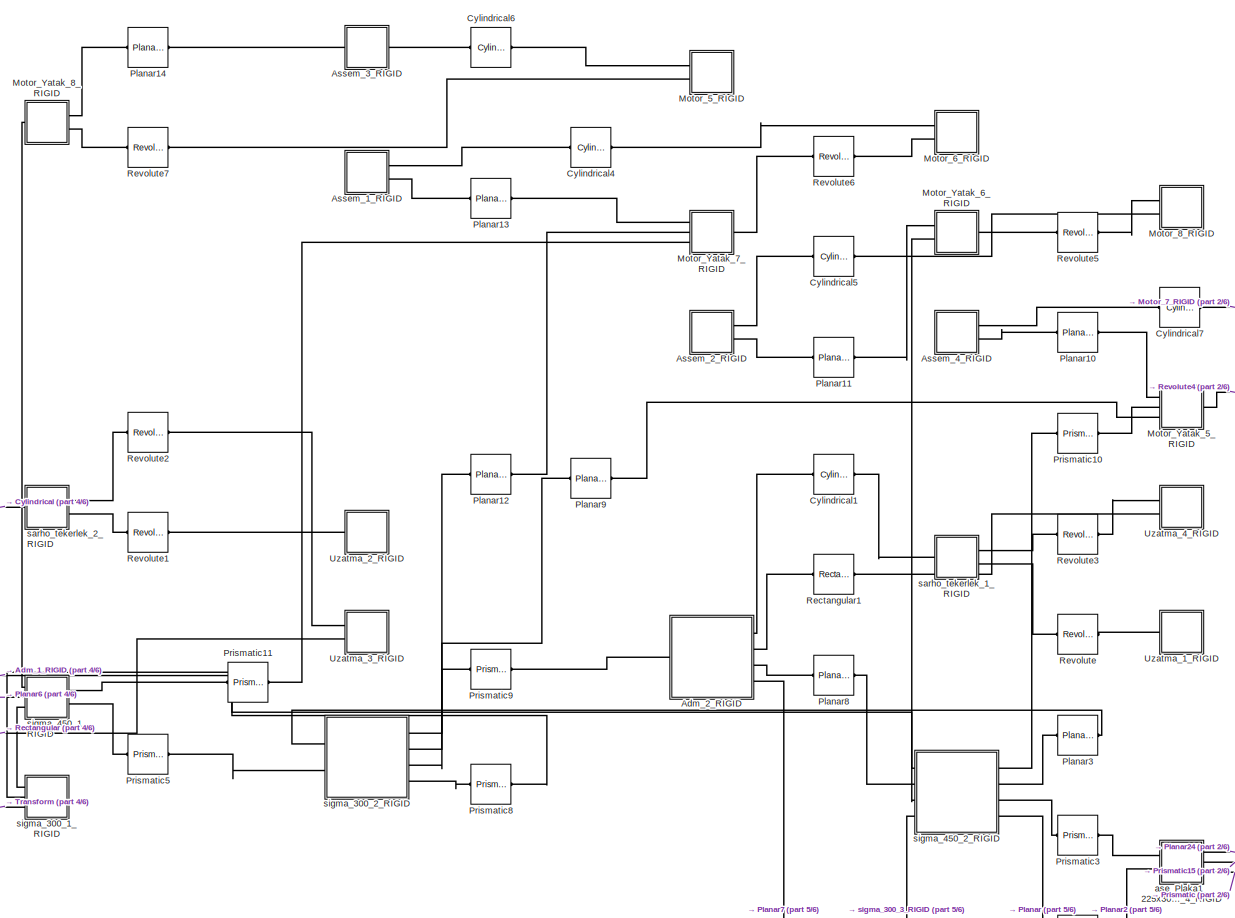
[diagram: root canvas - part 1/6, top left region]
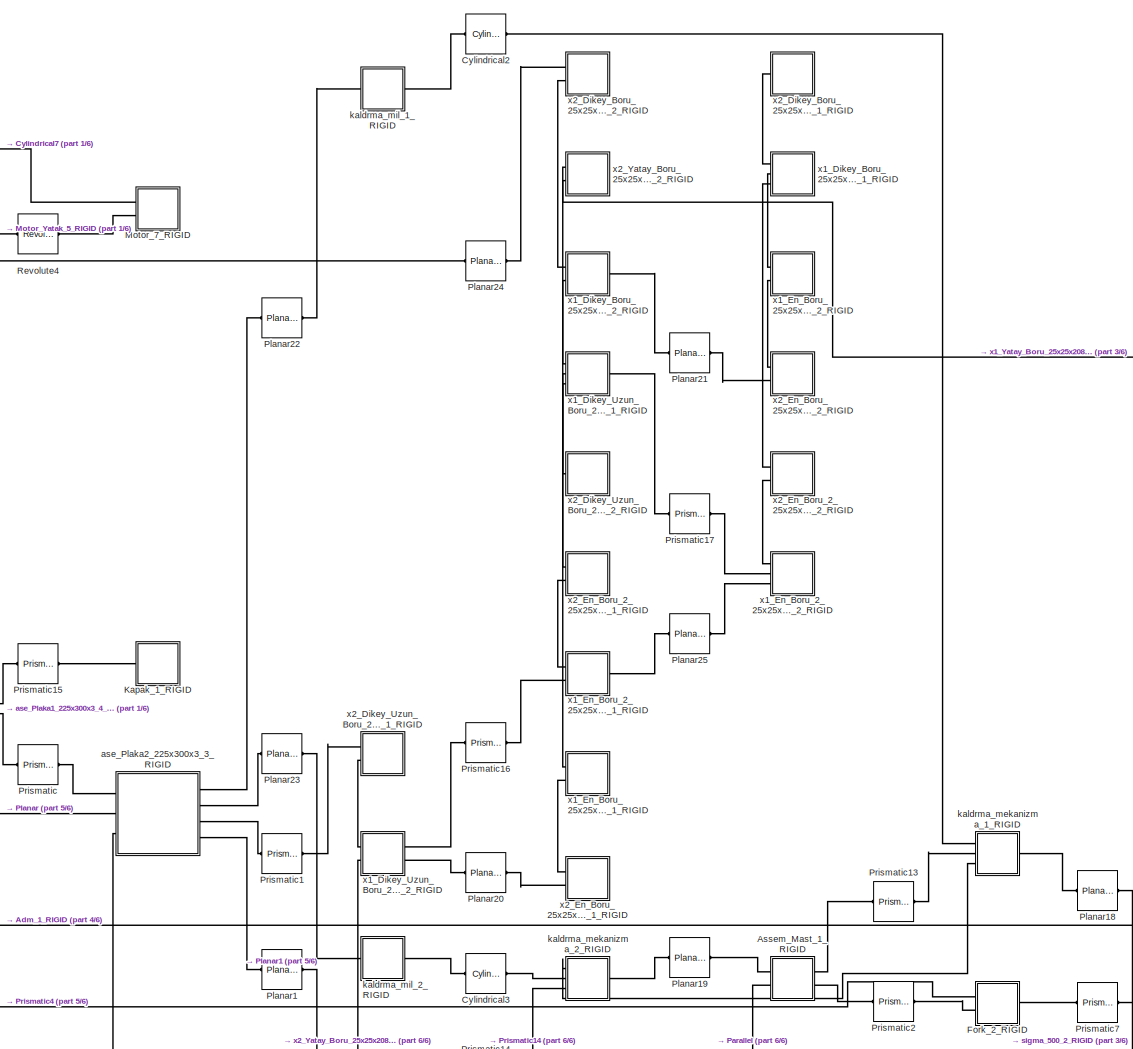
[diagram: root canvas - part 2/6, central region]
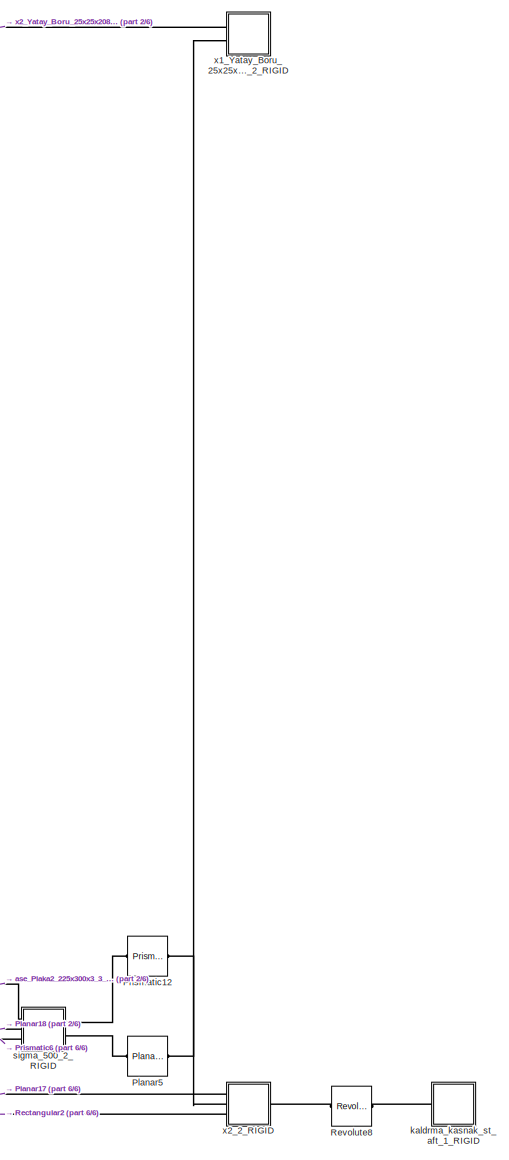
[diagram: root canvas - part 3/6, middle right region]
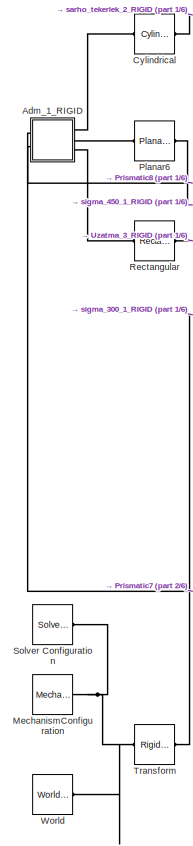
[diagram: root canvas - part 4/6, middle left region]
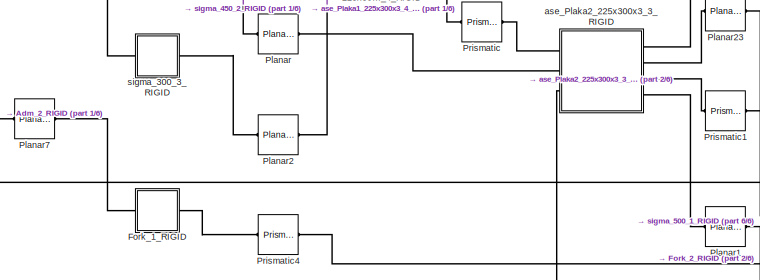
[diagram: root canvas - part 5/6, central region]
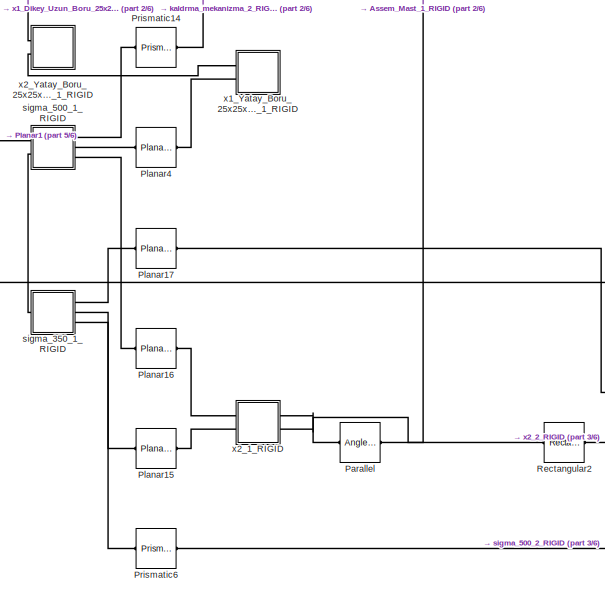
[diagram: root canvas - part 6/6, bottom right region]
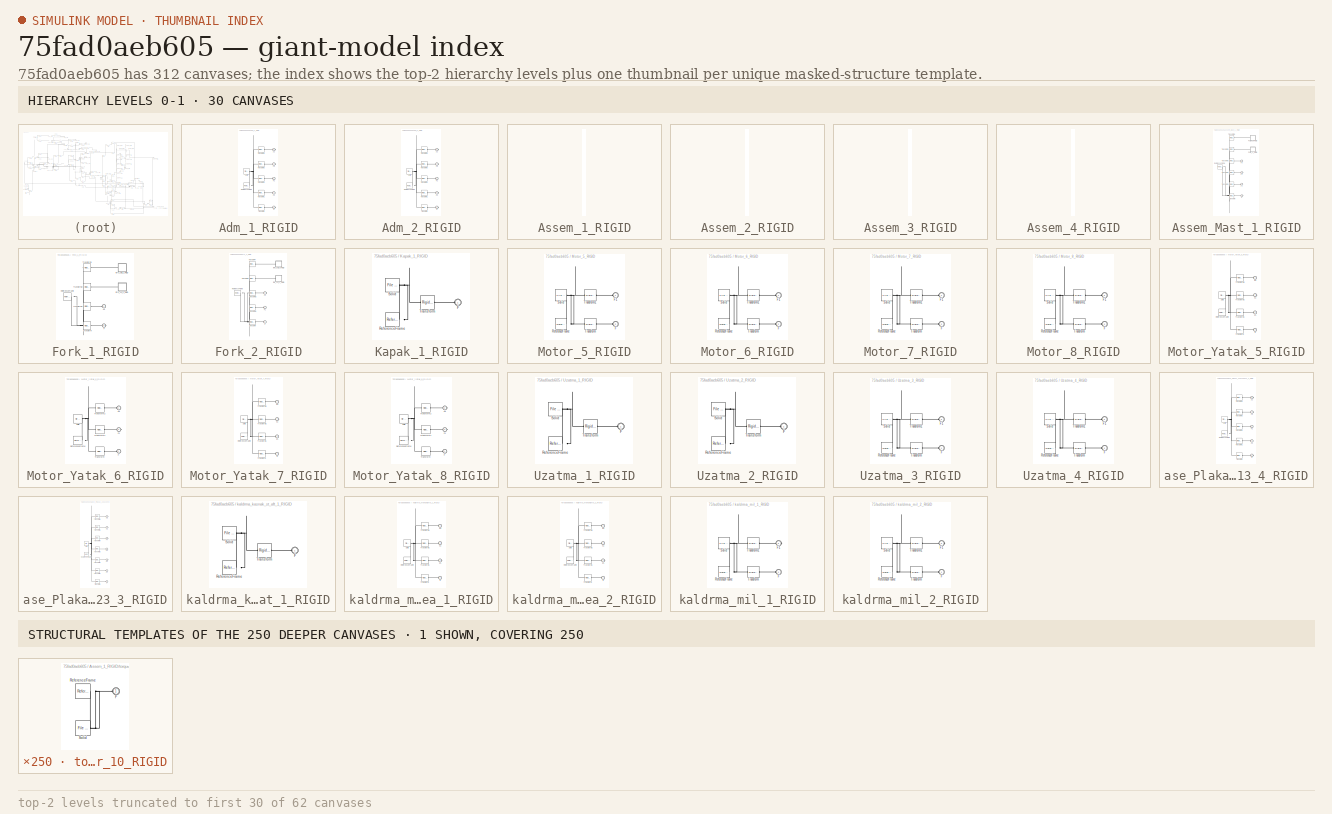
[diagram: thumbnail index - top-2 hierarchy levels (62 canvases (first 30 of 62 shown)) + 1 structural-template representatives of the remaining 250 canvases]
MODEL slx_75fad0aeb605
KIND model
CONFIG AbsTol = auto
CONFIG EnableMultiTasking = off
CONFIG FixedStep = auto
CONFIG MaxStep = auto
CONFIG MinStep = auto
CONFIG RelTol = 1e-3
CONFIG SampleTimeConstraint = Unconstrained
CONFIG Solver = VariableStepAuto
CONFIG SolverName = VariableStepAuto
CONFIG StartTime = 0.0
CONFIG StopTime = 10.0
WORKSPACE source: external: MAT-File  (data not in archive)
BLOCK [SubSystem] Adm_1_RIGID
  Ports = [0, 0, 0, 0, 0, 2, 3]
  RequestExecContextInheritance = off
BLOCK [PMIOPort] Adm_1_RIGID/F
  Port = 5
  Side = Right
BLOCK [PMIOPort] Adm_1_RIGID/F1
  Port = 2
  Side = Left
BLOCK [PMIOPort] Adm_1_RIGID/F2
  Side = Left
BLOCK [PMIOPort] Adm_1_RIGID/F3
  Port = 4
  Side = Right
BLOCK [PMIOPort] Adm_1_RIGID/F4
  Port = 3
  Side = Right
BLOCK [Reference] Adm_1_RIGID/ReferenceFrame  REF=sm_lib/Frames and
Transforms/Reference
Frame
  Ports = [0, 0, 0, 0, 0, 0, 1]
  SourceBlock = sm_lib/Frames and\nTransforms/Reference\nFrame
  SourceProductBaseCode = MS
  SourceProductName = Simscape Multibody
  SourceType = Reference\nFrame
BLOCK [Reference] Adm_1_RIGID/Solid  REF=sm_lib/Body Elements/File Solid
  Ports = [0, 0, 0, 0, 0, 0, 1]
  SourceBlock = sm_lib/Body Elements/File Solid
  SourceProductBaseCode = MS
  SourceProductName = Simscape Multibody
  SourceType = File Solid
BLOCK [Reference] Adm_1_RIGID/Transform  REF=sm_lib/Frames and
Transforms/Rigid
Transform
  Ports = [0, 0, 0, 0, 0, 1, 1]
  SourceBlock = sm_lib/Frames and\nTransforms/Rigid\nTransform
  SourceProductBaseCode = MS
  SourceProductName = Simscape Multibody
  SourceType = Rigid\nTransform
BLOCK [Reference] Adm_1_RIGID/Transform1  REF=sm_lib/Frames and
Transforms/Rigid
Transform
  Ports = [0, 0, 0, 0, 0, 1, 1]
  SourceBlock = sm_lib/Frames and\nTransforms/Rigid\nTransform
  SourceProductBaseCode = MS
  SourceProductName = Simscape Multibody
  SourceType = Rigid\nTransform
BLOCK [Reference] Adm_1_RIGID/Transform2  REF=sm_lib/Frames and
Transforms/Rigid
Transform
  Ports = [0, 0, 0, 0, 0, 1, 1]
  SourceBlock = sm_lib/Frames and\nTransforms/Rigid\nTransform
  SourceProductBaseCode = MS
  SourceProductName = Simscape Multibody
  SourceType = Rigid\nTransform
BLOCK [Reference] Adm_1_RIGID/Transform3  REF=sm_lib/Frames and
Transforms/Rigid
Transform
  Ports = [0, 0, 0, 0, 0, 1, 1]
  SourceBlock = sm_lib/Frames and\nTransforms/Rigid\nTransform
  SourceProductBaseCode = MS
  SourceProductName = Simscape Multibody
  SourceType = Rigid\nTransform
BLOCK [Reference] Adm_1_RIGID/Transform4  REF=sm_lib/Frames and
Transforms/Rigid
Transform
  Ports = [0, 0, 0, 0, 0, 1, 1]
  SourceBlock = sm_lib/Frames and\nTransforms/Rigid\nTransform
  SourceProductBaseCode = MS
  SourceProductName = Simscape Multibody
  SourceType = Rigid\nTransform
BLOCK [SubSystem] Adm_2_RIGID
  Ports = [0, 0, 0, 0, 0, 1, 4]
  RequestExecContextInheritance = off
BLOCK [PMIOPort] Adm_2_RIGID/F
  Port = 3
  Side = Right
BLOCK [PMIOPort] Adm_2_RIGID/F1
  Port = 5
  Side = Right
BLOCK [PMIOPort] Adm_2_RIGID/F2
  Side = Left
BLOCK [PMIOPort] Adm_2_RIGID/F3
  Port = 4
  Side = Right
BLOCK [PMIOPort] Adm_2_RIGID/F4
  Port = 2
  Side = Right
BLOCK [Reference] Adm_2_RIGID/ReferenceFrame  REF=sm_lib/Frames and
Transforms/Reference
Frame
  Ports = [0, 0, 0, 0, 0, 0, 1]
  SourceBlock = sm_lib/Frames and\nTransforms/Reference\nFrame
  SourceProductBaseCode = MS
  SourceProductName = Simscape Multibody
  SourceType = Reference\nFrame
BLOCK [Reference] Adm_2_RIGID/Solid  REF=sm_lib/Body Elements/File Solid
  Ports = [0, 0, 0, 0, 0, 0, 1]
  SourceBlock = sm_lib/Body Elements/File Solid
  SourceProductBaseCode = MS
  SourceProductName = Simscape Multibody
  SourceType = File Solid
BLOCK [Reference] Adm_2_RIGID/Transform  REF=sm_lib/Frames and
Transforms/Rigid
Transform
  Ports = [0, 0, 0, 0, 0, 1, 1]
  SourceBlock = sm_lib/Frames and\nTransforms/Rigid\nTransform
  SourceProductBaseCode = MS
  SourceProductName = Simscape Multibody
  SourceType = Rigid\nTransform
BLOCK [Reference] Adm_2_RIGID/Transform1  REF=sm_lib/Frames and
Transforms/Rigid
Transform
  Ports = [0, 0, 0, 0, 0, 1, 1]
  SourceBlock = sm_lib/Frames and\nTransforms/Rigid\nTransform
  SourceProductBaseCode = MS
  SourceProductName = Simscape Multibody
  SourceType = Rigid\nTransform
BLOCK [Reference] Adm_2_RIGID/Transform2  REF=sm_lib/Frames and
Transforms/Rigid
Transform
  Ports = [0, 0, 0, 0, 0, 1, 1]
  SourceBlock = sm_lib/Frames and\nTransforms/Rigid\nTransform
  SourceProductBaseCode = MS
  SourceProductName = Simscape Multibody
  SourceType = Rigid\nTransform
BLOCK [Reference] Adm_2_RIGID/Transform3  REF=sm_lib/Frames and
Transforms/Rigid
Transform
  Ports = [0, 0, 0, 0, 0, 1, 1]
  SourceBlock = sm_lib/Frames and\nTransforms/Rigid\nTransform
  SourceProductBaseCode = MS
  SourceProductName = Simscape Multibody
  SourceType = Rigid\nTransform
BLOCK [Reference] Adm_2_RIGID/Transform4  REF=sm_lib/Frames and
Transforms/Rigid
Transform
  Ports = [0, 0, 0, 0, 0, 1, 1]
  SourceBlock = sm_lib/Frames and\nTransforms/Rigid\nTransform
  SourceProductBaseCode = MS
  SourceProductName = Simscape Multibody
  SourceType = Rigid\nTransform
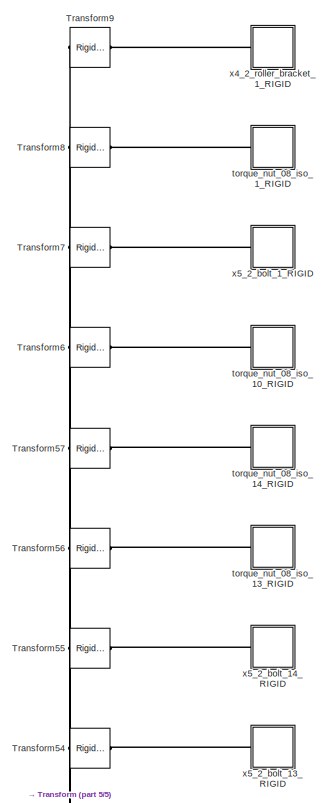
[diagram: Assem_1_RIGID - part 1/5, full width, top band]
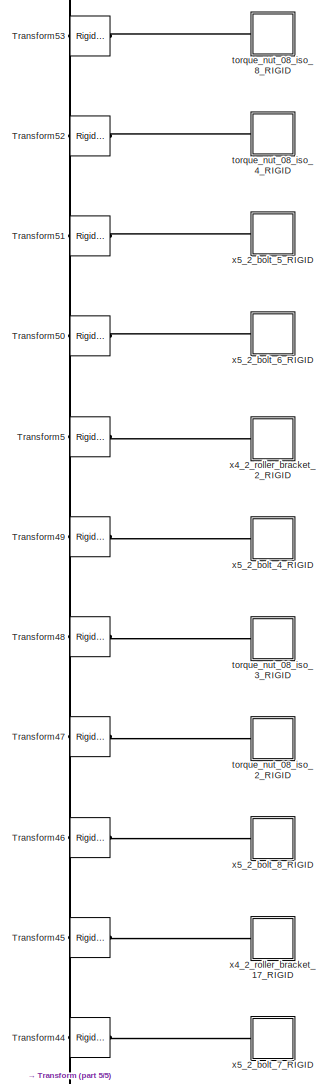
[diagram: Assem_1_RIGID - part 2/5, full width, top band]
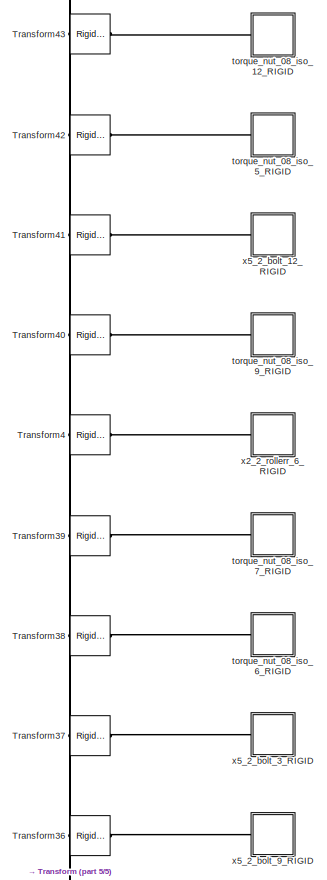
[diagram: Assem_1_RIGID - part 3/5, full width, top band]
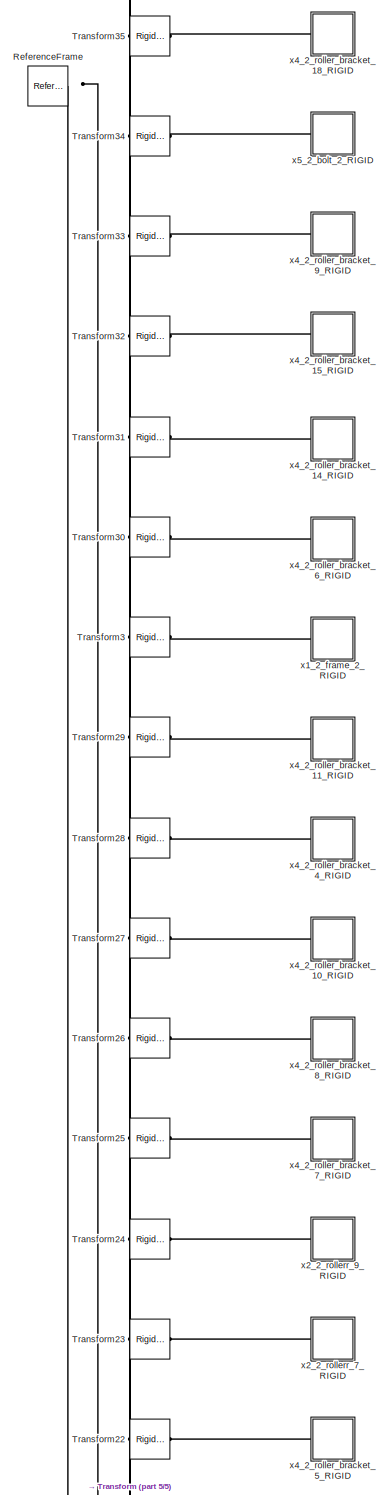
[diagram: Assem_1_RIGID - part 4/5, full width, middle band]
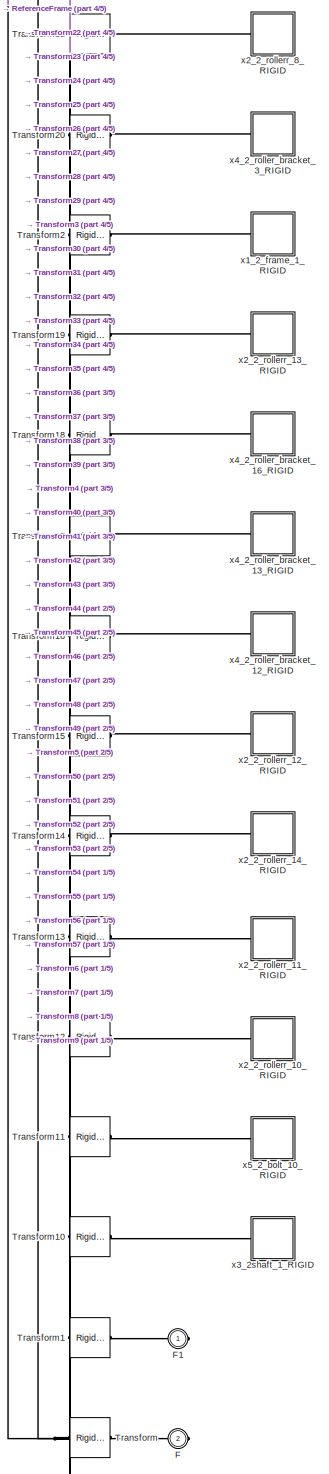
[diagram: Assem_1_RIGID - part 5/5, full width, middle band]
BLOCK [SubSystem] Assem_1_RIGID
  Ports = [0, 0, 0, 0, 0, 0, 2]
  RequestExecContextInheritance = off
BLOCK [PMIOPort] Assem_1_RIGID/F
  Port = 2
  Side = Right
BLOCK [PMIOPort] Assem_1_RIGID/F1
  Side = Right
BLOCK [Reference] Assem_1_RIGID/ReferenceFrame  REF=sm_lib/Frames and
Transforms/Reference
Frame
  Ports = [0, 0, 0, 0, 0, 0, 1]
  SourceBlock = sm_lib/Frames and\nTransforms/Reference\nFrame
  SourceProductBaseCode = MS
  SourceProductName = Simscape Multibody
  SourceType = Reference\nFrame
BLOCK [Reference] Assem_1_RIGID/Transform  REF=sm_lib/Frames and
Transforms/Rigid
Transform
  Ports = [0, 0, 0, 0, 0, 1, 1]
  SourceBlock = sm_lib/Frames and\nTransforms/Rigid\nTransform
  SourceProductBaseCode = MS
  SourceProductName = Simscape Multibody
  SourceType = Rigid\nTransform
BLOCK [Reference] Assem_1_RIGID/Transform1  REF=sm_lib/Frames and
Transforms/Rigid
Transform
  Ports = [0, 0, 0, 0, 0, 1, 1]
  SourceBlock = sm_lib/Frames and\nTransforms/Rigid\nTransform
  SourceProductBaseCode = MS
  SourceProductName = Simscape Multibody
  SourceType = Rigid\nTransform
BLOCK [Reference] Assem_1_RIGID/Transform10  REF=sm_lib/Frames and
Transforms/Rigid
Transform
  Ports = [0, 0, 0, 0, 0, 1, 1]
  SourceBlock = sm_lib/Frames and\nTransforms/Rigid\nTransform
  SourceProductBaseCode = MS
  SourceProductName = Simscape Multibody
  SourceType = Rigid\nTransform
BLOCK [Reference] Assem_1_RIGID/Transform11  REF=sm_lib/Frames and
Transforms/Rigid
Transform
  Ports = [0, 0, 0, 0, 0, 1, 1]
  SourceBlock = sm_lib/Frames and\nTransforms/Rigid\nTransform
  SourceProductBaseCode = MS
  SourceProductName = Simscape Multibody
  SourceType = Rigid\nTransform
BLOCK [Reference] Assem_1_RIGID/Transform12  REF=sm_lib/Frames and
Transforms/Rigid
Transform
  Ports = [0, 0, 0, 0, 0, 1, 1]
  SourceBlock = sm_lib/Frames and\nTransforms/Rigid\nTransform
  SourceProductBaseCode = MS
  SourceProductName = Simscape Multibody
  SourceType = Rigid\nTransform
BLOCK [Reference] Assem_1_RIGID/Transform13  REF=sm_lib/Frames and
Transforms/Rigid
Transform
  Ports = [0, 0, 0, 0, 0, 1, 1]
  SourceBlock = sm_lib/Frames and\nTransforms/Rigid\nTransform
  SourceProductBaseCode = MS
  SourceProductName = Simscape Multibody
  SourceType = Rigid\nTransform
BLOCK [Reference] Assem_1_RIGID/Transform14  REF=sm_lib/Frames and
Transforms/Rigid
Transform
  Ports = [0, 0, 0, 0, 0, 1, 1]
  SourceBlock = sm_lib/Frames and\nTransforms/Rigid\nTransform
  SourceProductBaseCode = MS
  SourceProductName = Simscape Multibody
  SourceType = Rigid\nTransform
BLOCK [Reference] Assem_1_RIGID/Transform15  REF=sm_lib/Frames and
Transforms/Rigid
Transform
  Ports = [0, 0, 0, 0, 0, 1, 1]
  SourceBlock = sm_lib/Frames and\nTransforms/Rigid\nTransform
  SourceProductBaseCode = MS
  SourceProductName = Simscape Multibody
  SourceType = Rigid\nTransform
BLOCK [Reference] Assem_1_RIGID/Transform16  REF=sm_lib/Frames and
Transforms/Rigid
Transform
  Ports = [0, 0, 0, 0, 0, 1, 1]
  SourceBlock = sm_lib/Frames and\nTransforms/Rigid\nTransform
  SourceProductBaseCode = MS
  SourceProductName = Simscape Multibody
  SourceType = Rigid\nTransform
BLOCK [Reference] Assem_1_RIGID/Transform17  REF=sm_lib/Frames and
Transforms/Rigid
Transform
  Ports = [0, 0, 0, 0, 0, 1, 1]
  SourceBlock = sm_lib/Frames and\nTransforms/Rigid\nTransform
  SourceProductBaseCode = MS
  SourceProductName = Simscape Multibody
  SourceType = Rigid\nTransform
BLOCK [Reference] Assem_1_RIGID/Transform18  REF=sm_lib/Frames and
Transforms/Rigid
Transform
  Ports = [0, 0, 0, 0, 0, 1, 1]
  SourceBlock = sm_lib/Frames and\nTransforms/Rigid\nTransform
  SourceProductBaseCode = MS
  SourceProductName = Simscape Multibody
  SourceType = Rigid\nTransform
BLOCK [Reference] Assem_1_RIGID/Transform19  REF=sm_lib/Frames and
Transforms/Rigid
Transform
  Ports = [0, 0, 0, 0, 0, 1, 1]
  SourceBlock = sm_lib/Frames and\nTransforms/Rigid\nTransform
  SourceProductBaseCode = MS
  SourceProductName = Simscape Multibody
  SourceType = Rigid\nTransform
BLOCK [Reference] Assem_1_RIGID/Transform2  REF=sm_lib/Frames and
Transforms/Rigid
Transform
  Ports = [0, 0, 0, 0, 0, 1, 1]
  SourceBlock = sm_lib/Frames and\nTransforms/Rigid\nTransform
  SourceProductBaseCode = MS
  SourceProductName = Simscape Multibody
  SourceType = Rigid\nTransform
BLOCK [Reference] Assem_1_RIGID/Transform20  REF=sm_lib/Frames and
Transforms/Rigid
Transform
  Ports = [0, 0, 0, 0, 0, 1, 1]
  SourceBlock = sm_lib/Frames and\nTransforms/Rigid\nTransform
  SourceProductBaseCode = MS
  SourceProductName = Simscape Multibody
  SourceType = Rigid\nTransform
BLOCK [Reference] Assem_1_RIGID/Transform21  REF=sm_lib/Frames and
Transforms/Rigid
Transform
  Ports = [0, 0, 0, 0, 0, 1, 1]
  SourceBlock = sm_lib/Frames and\nTransforms/Rigid\nTransform
  SourceProductBaseCode = MS
  SourceProductName = Simscape Multibody
  SourceType = Rigid\nTransform
BLOCK [Reference] Assem_1_RIGID/Transform22  REF=sm_lib/Frames and
Transforms/Rigid
Transform
  Ports = [0, 0, 0, 0, 0, 1, 1]
  SourceBlock = sm_lib/Frames and\nTransforms/Rigid\nTransform
  SourceProductBaseCode = MS
  SourceProductName = Simscape Multibody
  SourceType = Rigid\nTransform
BLOCK [Reference] Assem_1_RIGID/Transform23  REF=sm_lib/Frames and
Transforms/Rigid
Transform
  Ports = [0, 0, 0, 0, 0, 1, 1]
  SourceBlock = sm_lib/Frames and\nTransforms/Rigid\nTransform
  SourceProductBaseCode = MS
  SourceProductName = Simscape Multibody
  SourceType = Rigid\nTransform
BLOCK [Reference] Assem_1_RIGID/Transform24  REF=sm_lib/Frames and
Transforms/Rigid
Transform
  Ports = [0, 0, 0, 0, 0, 1, 1]
  SourceBlock = sm_lib/Frames and\nTransforms/Rigid\nTransform
  SourceProductBaseCode = MS
  SourceProductName = Simscape Multibody
  SourceType = Rigid\nTransform
BLOCK [Reference] Assem_1_RIGID/Transform25  REF=sm_lib/Frames and
Transforms/Rigid
Transform
  Ports = [0, 0, 0, 0, 0, 1, 1]
  SourceBlock = sm_lib/Frames and\nTransforms/Rigid\nTransform
  SourceProductBaseCode = MS
  SourceProductName = Simscape Multibody
  SourceType = Rigid\nTransform
BLOCK [Reference] Assem_1_RIGID/Transform26  REF=sm_lib/Frames and
Transforms/Rigid
Transform
  Ports = [0, 0, 0, 0, 0, 1, 1]
  SourceBlock = sm_lib/Frames and\nTransforms/Rigid\nTransform
  SourceProductBaseCode = MS
  SourceProductName = Simscape Multibody
  SourceType = Rigid\nTransform
BLOCK [Reference] Assem_1_RIGID/Transform27  REF=sm_lib/Frames and
Transforms/Rigid
Transform
  Ports = [0, 0, 0, 0, 0, 1, 1]
  SourceBlock = sm_lib/Frames and\nTransforms/Rigid\nTransform
  SourceProductBaseCode = MS
  SourceProductName = Simscape Multibody
  SourceType = Rigid\nTransform
BLOCK [Reference] Assem_1_RIGID/Transform28  REF=sm_lib/Frames and
Transforms/Rigid
Transform
  Ports = [0, 0, 0, 0, 0, 1, 1]
  SourceBlock = sm_lib/Frames and\nTransforms/Rigid\nTransform
  SourceProductBaseCode = MS
  SourceProductName = Simscape Multibody
  SourceType = Rigid\nTransform
BLOCK [Reference] Assem_1_RIGID/Transform29  REF=sm_lib/Frames and
Transforms/Rigid
Transform
  Ports = [0, 0, 0, 0, 0, 1, 1]
  SourceBlock = sm_lib/Frames and\nTransforms/Rigid\nTransform
  SourceProductBaseCode = MS
  SourceProductName = Simscape Multibody
  SourceType = Rigid\nTransform
BLOCK [Reference] Assem_1_RIGID/Transform3  REF=sm_lib/Frames and
Transforms/Rigid
Transform
  Ports = [0, 0, 0, 0, 0, 1, 1]
  SourceBlock = sm_lib/Frames and\nTransforms/Rigid\nTransform
  SourceProductBaseCode = MS
  SourceProductName = Simscape Multibody
  SourceType = Rigid\nTransform
BLOCK [Reference] Assem_1_RIGID/Transform30  REF=sm_lib/Frames and
Transforms/Rigid
Transform
  Ports = [0, 0, 0, 0, 0, 1, 1]
  SourceBlock = sm_lib/Frames and\nTransforms/Rigid\nTransform
  SourceProductBaseCode = MS
  SourceProductName = Simscape Multibody
  SourceType = Rigid\nTransform
BLOCK [Reference] Assem_1_RIGID/Transform31  REF=sm_lib/Frames and
Transforms/Rigid
Transform
  Ports = [0, 0, 0, 0, 0, 1, 1]
  SourceBlock = sm_lib/Frames and\nTransforms/Rigid\nTransform
  SourceProductBaseCode = MS
  SourceProductName = Simscape Multibody
  SourceType = Rigid\nTransform
BLOCK [Reference] Assem_1_RIGID/Transform32  REF=sm_lib/Frames and
Transforms/Rigid
Transform
  Ports = [0, 0, 0, 0, 0, 1, 1]
  SourceBlock = sm_lib/Frames and\nTransforms/Rigid\nTransform
  SourceProductBaseCode = MS
  SourceProductName = Simscape Multibody
  SourceType = Rigid\nTransform
BLOCK [Reference] Assem_1_RIGID/Transform33  REF=sm_lib/Frames and
Transforms/Rigid
Transform
  Ports = [0, 0, 0, 0, 0, 1, 1]
  SourceBlock = sm_lib/Frames and\nTransforms/Rigid\nTransform
  SourceProductBaseCode = MS
  SourceProductName = Simscape Multibody
  SourceType = Rigid\nTransform
BLOCK [Reference] Assem_1_RIGID/Transform34  REF=sm_lib/Frames and
Transforms/Rigid
Transform
  Ports = [0, 0, 0, 0, 0, 1, 1]
  SourceBlock = sm_lib/Frames and\nTransforms/Rigid\nTransform
  SourceProductBaseCode = MS
  SourceProductName = Simscape Multibody
  SourceType = Rigid\nTransform
BLOCK [Reference] Assem_1_RIGID/Transform35  REF=sm_lib/Frames and
Transforms/Rigid
Transform
  Ports = [0, 0, 0, 0, 0, 1, 1]
  SourceBlock = sm_lib/Frames and\nTransforms/Rigid\nTransform
  SourceProductBaseCode = MS
  SourceProductName = Simscape Multibody
  SourceType = Rigid\nTransform
BLOCK [Reference] Assem_1_RIGID/Transform36  REF=sm_lib/Frames and
Transforms/Rigid
Transform
  Ports = [0, 0, 0, 0, 0, 1, 1]
  SourceBlock = sm_lib/Frames and\nTransforms/Rigid\nTransform
  SourceProductBaseCode = MS
  SourceProductName = Simscape Multibody
  SourceType = Rigid\nTransform
BLOCK [Reference] Assem_1_RIGID/Transform37  REF=sm_lib/Frames and
Transforms/Rigid
Transform
  Ports = [0, 0, 0, 0, 0, 1, 1]
  SourceBlock = sm_lib/Frames and\nTransforms/Rigid\nTransform
  SourceProductBaseCode = MS
  SourceProductName = Simscape Multibody
  SourceType = Rigid\nTransform
BLOCK [Reference] Assem_1_RIGID/Transform38  REF=sm_lib/Frames and
Transforms/Rigid
Transform
  Ports = [0, 0, 0, 0, 0, 1, 1]
  SourceBlock = sm_lib/Frames and\nTransforms/Rigid\nTransform
  SourceProductBaseCode = MS
  SourceProductName = Simscape Multibody
  SourceType = Rigid\nTransform
BLOCK [Reference] Assem_1_RIGID/Transform39  REF=sm_lib/Frames and
Transforms/Rigid
Transform
  Ports = [0, 0, 0, 0, 0, 1, 1]
  SourceBlock = sm_lib/Frames and\nTransforms/Rigid\nTransform
  SourceProductBaseCode = MS
  SourceProductName = Simscape Multibody
  SourceType = Rigid\nTransform
BLOCK [Reference] Assem_1_RIGID/Transform4  REF=sm_lib/Frames and
Transforms/Rigid
Transform
  Ports = [0, 0, 0, 0, 0, 1, 1]
  SourceBlock = sm_lib/Frames and\nTransforms/Rigid\nTransform
  SourceProductBaseCode = MS
  SourceProductName = Simscape Multibody
  SourceType = Rigid\nTransform
BLOCK [Reference] Assem_1_RIGID/Transform40  REF=sm_lib/Frames and
Transforms/Rigid
Transform
  Ports = [0, 0, 0, 0, 0, 1, 1]
  SourceBlock = sm_lib/Frames and\nTransforms/Rigid\nTransform
  SourceProductBaseCode = MS
  SourceProductName = Simscape Multibody
  SourceType = Rigid\nTransform
BLOCK [Reference] Assem_1_RIGID/Transform41  REF=sm_lib/Frames and
Transforms/Rigid
Transform
  Ports = [0, 0, 0, 0, 0, 1, 1]
  SourceBlock = sm_lib/Frames and\nTransforms/Rigid\nTransform
  SourceProductBaseCode = MS
  SourceProductName = Simscape Multibody
  SourceType = Rigid\nTransform
BLOCK [Reference] Assem_1_RIGID/Transform42  REF=sm_lib/Frames and
Transforms/Rigid
Transform
  Ports = [0, 0, 0, 0, 0, 1, 1]
  SourceBlock = sm_lib/Frames and\nTransforms/Rigid\nTransform
  SourceProductBaseCode = MS
  SourceProductName = Simscape Multibody
  SourceType = Rigid\nTransform
BLOCK [Reference] Assem_1_RIGID/Transform43  REF=sm_lib/Frames and
Transforms/Rigid
Transform
  Ports = [0, 0, 0, 0, 0, 1, 1]
  SourceBlock = sm_lib/Frames and\nTransforms/Rigid\nTransform
  SourceProductBaseCode = MS
  SourceProductName = Simscape Multibody
  SourceType = Rigid\nTransform
BLOCK [Reference] Assem_1_RIGID/Transform44  REF=sm_lib/Frames and
Transforms/Rigid
Transform
  Ports = [0, 0, 0, 0, 0, 1, 1]
  SourceBlock = sm_lib/Frames and\nTransforms/Rigid\nTransform
  SourceProductBaseCode = MS
  SourceProductName = Simscape Multibody
  SourceType = Rigid\nTransform
BLOCK [Reference] Assem_1_RIGID/Transform45  REF=sm_lib/Frames and
Transforms/Rigid
Transform
  Ports = [0, 0, 0, 0, 0, 1, 1]
  SourceBlock = sm_lib/Frames and\nTransforms/Rigid\nTransform
  SourceProductBaseCode = MS
  SourceProductName = Simscape Multibody
  SourceType = Rigid\nTransform
BLOCK [Reference] Assem_1_RIGID/Transform46  REF=sm_lib/Frames and
Transforms/Rigid
Transform
  Ports = [0, 0, 0, 0, 0, 1, 1]
  SourceBlock = sm_lib/Frames and\nTransforms/Rigid\nTransform
  SourceProductBaseCode = MS
  SourceProductName = Simscape Multibody
  SourceType = Rigid\nTransform
BLOCK [Reference] Assem_1_RIGID/Transform47  REF=sm_lib/Frames and
Transforms/Rigid
Transform
  Ports = [0, 0, 0, 0, 0, 1, 1]
  SourceBlock = sm_lib/Frames and\nTransforms/Rigid\nTransform
  SourceProductBaseCode = MS
  SourceProductName = Simscape Multibody
  SourceType = Rigid\nTransform
BLOCK [Reference] Assem_1_RIGID/Transform48  REF=sm_lib/Frames and
Transforms/Rigid
Transform
  Ports = [0, 0, 0, 0, 0, 1, 1]
  SourceBlock = sm_lib/Frames and\nTransforms/Rigid\nTransform
  SourceProductBaseCode = MS
  SourceProductName = Simscape Multibody
  SourceType = Rigid\nTransform
BLOCK [Reference] Assem_1_RIGID/Transform49  REF=sm_lib/Frames and
Transforms/Rigid
Transform
  Ports = [0, 0, 0, 0, 0, 1, 1]
  SourceBlock = sm_lib/Frames and\nTransforms/Rigid\nTransform
  SourceProductBaseCode = MS
  SourceProductName = Simscape Multibody
  SourceType = Rigid\nTransform
BLOCK [Reference] Assem_1_RIGID/Transform5  REF=sm_lib/Frames and
Transforms/Rigid
Transform
  Ports = [0, 0, 0, 0, 0, 1, 1]
  SourceBlock = sm_lib/Frames and\nTransforms/Rigid\nTransform
  SourceProductBaseCode = MS
  SourceProductName = Simscape Multibody
  SourceType = Rigid\nTransform
BLOCK [Reference] Assem_1_RIGID/Transform50  REF=sm_lib/Frames and
Transforms/Rigid
Transform
  Ports = [0, 0, 0, 0, 0, 1, 1]
  SourceBlock = sm_lib/Frames and\nTransforms/Rigid\nTransform
  SourceProductBaseCode = MS
  SourceProductName = Simscape Multibody
  SourceType = Rigid\nTransform
BLOCK [Reference] Assem_1_RIGID/Transform51  REF=sm_lib/Frames and
Transforms/Rigid
Transform
  Ports = [0, 0, 0, 0, 0, 1, 1]
  SourceBlock = sm_lib/Frames and\nTransforms/Rigid\nTransform
  SourceProductBaseCode = MS
  SourceProductName = Simscape Multibody
  SourceType = Rigid\nTransform
BLOCK [Reference] Assem_1_RIGID/Transform52  REF=sm_lib/Frames and
Transforms/Rigid
Transform
  Ports = [0, 0, 0, 0, 0, 1, 1]
  SourceBlock = sm_lib/Frames and\nTransforms/Rigid\nTransform
  SourceProductBaseCode = MS
  SourceProductName = Simscape Multibody
  SourceType = Rigid\nTransform
BLOCK [Reference] Assem_1_RIGID/Transform53  REF=sm_lib/Frames and
Transforms/Rigid
Transform
  Ports = [0, 0, 0, 0, 0, 1, 1]
  SourceBlock = sm_lib/Frames and\nTransforms/Rigid\nTransform
  SourceProductBaseCode = MS
  SourceProductName = Simscape Multibody
  SourceType = Rigid\nTransform
BLOCK [Reference] Assem_1_RIGID/Transform54  REF=sm_lib/Frames and
Transforms/Rigid
Transform
  Ports = [0, 0, 0, 0, 0, 1, 1]
  SourceBlock = sm_lib/Frames and\nTransforms/Rigid\nTransform
  SourceProductBaseCode = MS
  SourceProductName = Simscape Multibody
  SourceType = Rigid\nTransform
BLOCK [Reference] Assem_1_RIGID/Transform55  REF=sm_lib/Frames and
Transforms/Rigid
Transform
  Ports = [0, 0, 0, 0, 0, 1, 1]
  SourceBlock = sm_lib/Frames and\nTransforms/Rigid\nTransform
  SourceProductBaseCode = MS
  SourceProductName = Simscape Multibody
  SourceType = Rigid\nTransform
BLOCK [Reference] Assem_1_RIGID/Transform56  REF=sm_lib/Frames and
Transforms/Rigid
Transform
  Ports = [0, 0, 0, 0, 0, 1, 1]
  SourceBlock = sm_lib/Frames and\nTransforms/Rigid\nTransform
  SourceProductBaseCode = MS
  SourceProductName = Simscape Multibody
  SourceType = Rigid\nTransform
BLOCK [Reference] Assem_1_RIGID/Transform57  REF=sm_lib/Frames and
Transforms/Rigid
Transform
  Ports = [0, 0, 0, 0, 0, 1, 1]
  SourceBlock = sm_lib/Frames and\nTransforms/Rigid\nTransform
  SourceProductBaseCode = MS
  SourceProductName = Simscape Multibody
  SourceType = Rigid\nTransform
BLOCK [Reference] Assem_1_RIGID/Transform6  REF=sm_lib/Frames and
Transforms/Rigid
Transform
  Ports = [0, 0, 0, 0, 0, 1, 1]
  SourceBlock = sm_lib/Frames and\nTransforms/Rigid\nTransform
  SourceProductBaseCode = MS
  SourceProductName = Simscape Multibody
  SourceType = Rigid\nTransform
BLOCK [Reference] Assem_1_RIGID/Transform7  REF=sm_lib/Frames and
Transforms/Rigid
Transform
  Ports = [0, 0, 0, 0, 0, 1, 1]
  SourceBlock = sm_lib/Frames and\nTransforms/Rigid\nTransform
  SourceProductBaseCode = MS
  SourceProductName = Simscape Multibody
  SourceType = Rigid\nTransform
BLOCK [Reference] Assem_1_RIGID/Transform8  REF=sm_lib/Frames and
Transforms/Rigid
Transform
  Ports = [0, 0, 0, 0, 0, 1, 1]
  SourceBlock = sm_lib/Frames and\nTransforms/Rigid\nTransform
  SourceProductBaseCode = MS
  SourceProductName = Simscape Multibody
  SourceType = Rigid\nTransform
BLOCK [Reference] Assem_1_RIGID/Transform9  REF=sm_lib/Frames and
Transforms/Rigid
Transform
  Ports = [0, 0, 0, 0, 0, 1, 1]
  SourceBlock = sm_lib/Frames and\nTransforms/Rigid\nTransform
  SourceProductBaseCode = MS
  SourceProductName = Simscape Multibody
  SourceType = Rigid\nTransform
BLOCK [SubSystem] Assem_1_RIGID/torque_nut_08_iso_10_RIGID
  Ports = [0, 0, 0, 0, 0, 1]
  RequestExecContextInheritance = off
BLOCK [PMIOPort] Assem_1_RIGID/torque_nut_08_iso_10_RIGID/F
  Side = Left
BLOCK [Reference] Assem_1_RIGID/torque_nut_08_iso_10_RIGID/ReferenceFrame  REF=sm_lib/Frames and
Transforms/Reference
Frame
  Ports = [0, 0, 0, 0, 0, 0, 1]
  SourceBlock = sm_lib/Frames and\nTransforms/Reference\nFrame
  SourceProductBaseCode = MS
  SourceProductName = Simscape Multibody
  SourceType = Reference\nFrame
BLOCK [Reference] Assem_1_RIGID/torque_nut_08_iso_10_RIGID/Solid  REF=sm_lib/Body Elements/File Solid
  Ports = [0, 0, 0, 0, 0, 0, 1]
  SourceBlock = sm_lib/Body Elements/File Solid
  SourceProductBaseCode = MS
  SourceProductName = Simscape Multibody
  SourceType = File Solid
BLOCK [SubSystem] Assem_1_RIGID/torque_nut_08_iso_12_RIGID
  Ports = [0, 0, 0, 0, 0, 1]
  RequestExecContextInheritance = off
BLOCK [PMIOPort] Assem_1_RIGID/torque_nut_08_iso_12_RIGID/F
  Side = Left
BLOCK [Reference] Assem_1_RIGID/torque_nut_08_iso_12_RIGID/ReferenceFrame  REF=sm_lib/Frames and
Transforms/Reference
Frame
  Ports = [0, 0, 0, 0, 0, 0, 1]
  SourceBlock = sm_lib/Frames and\nTransforms/Reference\nFrame
  SourceProductBaseCode = MS
  SourceProductName = Simscape Multibody
  SourceType = Reference\nFrame
BLOCK [Reference] Assem_1_RIGID/torque_nut_08_iso_12_RIGID/Solid  REF=sm_lib/Body Elements/File Solid
  Ports = [0, 0, 0, 0, 0, 0, 1]
  SourceBlock = sm_lib/Body Elements/File Solid
  SourceProductBaseCode = MS
  SourceProductName = Simscape Multibody
  SourceType = File Solid
BLOCK [SubSystem] Assem_1_RIGID/torque_nut_08_iso_13_RIGID
  Ports = [0, 0, 0, 0, 0, 1]
  RequestExecContextInheritance = off
BLOCK [PMIOPort] Assem_1_RIGID/torque_nut_08_iso_13_RIGID/F
  Side = Left
BLOCK [Reference] Assem_1_RIGID/torque_nut_08_iso_13_RIGID/ReferenceFrame  REF=sm_lib/Frames and
Transforms/Reference
Frame
  Ports = [0, 0, 0, 0, 0, 0, 1]
  SourceBlock = sm_lib/Frames and\nTransforms/Reference\nFrame
  SourceProductBaseCode = MS
  SourceProductName = Simscape Multibody
  SourceType = Reference\nFrame
BLOCK [Reference] Assem_1_RIGID/torque_nut_08_iso_13_RIGID/Solid  REF=sm_lib/Body Elements/File Solid
  Ports = [0, 0, 0, 0, 0, 0, 1]
  SourceBlock = sm_lib/Body Elements/File Solid
  SourceProductBaseCode = MS
  SourceProductName = Simscape Multibody
  SourceType = File Solid
BLOCK [SubSystem] Assem_1_RIGID/torque_nut_08_iso_14_RIGID
  Ports = [0, 0, 0, 0, 0, 1]
  RequestExecContextInheritance = off
BLOCK [PMIOPort] Assem_1_RIGID/torque_nut_08_iso_14_RIGID/F
  Side = Left
BLOCK [Reference] Assem_1_RIGID/torque_nut_08_iso_14_RIGID/ReferenceFrame  REF=sm_lib/Frames and
Transforms/Reference
Frame
  Ports = [0, 0, 0, 0, 0, 0, 1]
  SourceBlock = sm_lib/Frames and\nTransforms/Reference\nFrame
  SourceProductBaseCode = MS
  SourceProductName = Simscape Multibody
  SourceType = Reference\nFrame
BLOCK [Reference] Assem_1_RIGID/torque_nut_08_iso_14_RIGID/Solid  REF=sm_lib/Body Elements/File Solid
  Ports = [0, 0, 0, 0, 0, 0, 1]
  SourceBlock = sm_lib/Body Elements/File Solid
  SourceProductBaseCode = MS
  SourceProductName = Simscape Multibody
  SourceType = File Solid
BLOCK [SubSystem] Assem_1_RIGID/torque_nut_08_iso_1_RIGID
  Ports = [0, 0, 0, 0, 0, 1]
  RequestExecContextInheritance = off
BLOCK [PMIOPort] Assem_1_RIGID/torque_nut_08_iso_1_RIGID/F
  Side = Left
BLOCK [Reference] Assem_1_RIGID/torque_nut_08_iso_1_RIGID/ReferenceFrame  REF=sm_lib/Frames and
Transforms/Reference
Frame
  Ports = [0, 0, 0, 0, 0, 0, 1]
  SourceBlock = sm_lib/Frames and\nTransforms/Reference\nFrame
  SourceProductBaseCode = MS
  SourceProductName = Simscape Multibody
  SourceType = Reference\nFrame
BLOCK [Reference] Assem_1_RIGID/torque_nut_08_iso_1_RIGID/Solid  REF=sm_lib/Body Elements/File Solid
  Ports = [0, 0, 0, 0, 0, 0, 1]
  SourceBlock = sm_lib/Body Elements/File Solid
  SourceProductBaseCode = MS
  SourceProductName = Simscape Multibody
  SourceType = File Solid
BLOCK [SubSystem] Assem_1_RIGID/torque_nut_08_iso_2_RIGID
  Ports = [0, 0, 0, 0, 0, 1]
  RequestExecContextInheritance = off
BLOCK [PMIOPort] Assem_1_RIGID/torque_nut_08_iso_2_RIGID/F
  Side = Left
BLOCK [Reference] Assem_1_RIGID/torque_nut_08_iso_2_RIGID/ReferenceFrame  REF=sm_lib/Frames and
Transforms/Reference
Frame
  Ports = [0, 0, 0, 0, 0, 0, 1]
  SourceBlock = sm_lib/Frames and\nTransforms/Reference\nFrame
  SourceProductBaseCode = MS
  SourceProductName = Simscape Multibody
  SourceType = Reference\nFrame
BLOCK [Reference] Assem_1_RIGID/torque_nut_08_iso_2_RIGID/Solid  REF=sm_lib/Body Elements/File Solid
  Ports = [0, 0, 0, 0, 0, 0, 1]
  SourceBlock = sm_lib/Body Elements/File Solid
  SourceProductBaseCode = MS
  SourceProductName = Simscape Multibody
  SourceType = File Solid
BLOCK [SubSystem] Assem_1_RIGID/torque_nut_08_iso_3_RIGID
  Ports = [0, 0, 0, 0, 0, 1]
  RequestExecContextInheritance = off
BLOCK [PMIOPort] Assem_1_RIGID/torque_nut_08_iso_3_RIGID/F
  Side = Left
BLOCK [Reference] Assem_1_RIGID/torque_nut_08_iso_3_RIGID/ReferenceFrame  REF=sm_lib/Frames and
Transforms/Reference
Frame
  Ports = [0, 0, 0, 0, 0, 0, 1]
  SourceBlock = sm_lib/Frames and\nTransforms/Reference\nFrame
  SourceProductBaseCode = MS
  SourceProductName = Simscape Multibody
  SourceType = Reference\nFrame
BLOCK [Reference] Assem_1_RIGID/torque_nut_08_iso_3_RIGID/Solid  REF=sm_lib/Body Elements/File Solid
  Ports = [0, 0, 0, 0, 0, 0, 1]
  SourceBlock = sm_lib/Body Elements/File Solid
  SourceProductBaseCode = MS
  SourceProductName = Simscape Multibody
  SourceType = File Solid
BLOCK [SubSystem] Assem_1_RIGID/torque_nut_08_iso_4_RIGID
  Ports = [0, 0, 0, 0, 0, 1]
  RequestExecContextInheritance = off
BLOCK [PMIOPort] Assem_1_RIGID/torque_nut_08_iso_4_RIGID/F
  Side = Left
BLOCK [Reference] Assem_1_RIGID/torque_nut_08_iso_4_RIGID/ReferenceFrame  REF=sm_lib/Frames and
Transforms/Reference
Frame
  Ports = [0, 0, 0, 0, 0, 0, 1]
  SourceBlock = sm_lib/Frames and\nTransforms/Reference\nFrame
  SourceProductBaseCode = MS
  SourceProductName = Simscape Multibody
  SourceType = Reference\nFrame
BLOCK [Reference] Assem_1_RIGID/torque_nut_08_iso_4_RIGID/Solid  REF=sm_lib/Body Elements/File Solid
  Ports = [0, 0, 0, 0, 0, 0, 1]
  SourceBlock = sm_lib/Body Elements/File Solid
  SourceProductBaseCode = MS
  SourceProductName = Simscape Multibody
  SourceType = File Solid
BLOCK [SubSystem] Assem_1_RIGID/torque_nut_08_iso_5_RIGID
  Ports = [0, 0, 0, 0, 0, 1]
  RequestExecContextInheritance = off
BLOCK [PMIOPort] Assem_1_RIGID/torque_nut_08_iso_5_RIGID/F
  Side = Left
BLOCK [Reference] Assem_1_RIGID/torque_nut_08_iso_5_RIGID/ReferenceFrame  REF=sm_lib/Frames and
Transforms/Reference
Frame
  Ports = [0, 0, 0, 0, 0, 0, 1]
  SourceBlock = sm_lib/Frames and\nTransforms/Reference\nFrame
  SourceProductBaseCode = MS
  SourceProductName = Simscape Multibody
  SourceType = Reference\nFrame
BLOCK [Reference] Assem_1_RIGID/torque_nut_08_iso_5_RIGID/Solid  REF=sm_lib/Body Elements/File Solid
  Ports = [0, 0, 0, 0, 0, 0, 1]
  SourceBlock = sm_lib/Body Elements/File Solid
  SourceProductBaseCode = MS
  SourceProductName = Simscape Multibody
  SourceType = File Solid
BLOCK [SubSystem] Assem_1_RIGID/torque_nut_08_iso_6_RIGID
  Ports = [0, 0, 0, 0, 0, 1]
  RequestExecContextInheritance = off
BLOCK [PMIOPort] Assem_1_RIGID/torque_nut_08_iso_6_RIGID/F
  Side = Left
BLOCK [Reference] Assem_1_RIGID/torque_nut_08_iso_6_RIGID/ReferenceFrame  REF=sm_lib/Frames and
Transforms/Reference
Frame
  Ports = [0, 0, 0, 0, 0, 0, 1]
  SourceBlock = sm_lib/Frames and\nTransforms/Reference\nFrame
  SourceProductBaseCode = MS
  SourceProductName = Simscape Multibody
  SourceType = Reference\nFrame
BLOCK [Reference] Assem_1_RIGID/torque_nut_08_iso_6_RIGID/Solid  REF=sm_lib/Body Elements/File Solid
  Ports = [0, 0, 0, 0, 0, 0, 1]
  SourceBlock = sm_lib/Body Elements/File Solid
  SourceProductBaseCode = MS
  SourceProductName = Simscape Multibody
  SourceType = File Solid
BLOCK [SubSystem] Assem_1_RIGID/torque_nut_08_iso_7_RIGID
  Ports = [0, 0, 0, 0, 0, 1]
  RequestExecContextInheritance = off
BLOCK [PMIOPort] Assem_1_RIGID/torque_nut_08_iso_7_RIGID/F
  Side = Left
BLOCK [Reference] Assem_1_RIGID/torque_nut_08_iso_7_RIGID/ReferenceFrame  REF=sm_lib/Frames and
Transforms/Reference
Frame
  Ports = [0, 0, 0, 0, 0, 0, 1]
  SourceBlock = sm_lib/Frames and\nTransforms/Reference\nFrame
  SourceProductBaseCode = MS
  SourceProductName = Simscape Multibody
  SourceType = Reference\nFrame
BLOCK [Reference] Assem_1_RIGID/torque_nut_08_iso_7_RIGID/Solid  REF=sm_lib/Body Elements/File Solid
  Ports = [0, 0, 0, 0, 0, 0, 1]
  SourceBlock = sm_lib/Body Elements/File Solid
  SourceProductBaseCode = MS
  SourceProductName = Simscape Multibody
  SourceType = File Solid
BLOCK [SubSystem] Assem_1_RIGID/torque_nut_08_iso_8_RIGID
  Ports = [0, 0, 0, 0, 0, 1]
  RequestExecContextInheritance = off
BLOCK [PMIOPort] Assem_1_RIGID/torque_nut_08_iso_8_RIGID/F
  Side = Left
BLOCK [Reference] Assem_1_RIGID/torque_nut_08_iso_8_RIGID/ReferenceFrame  REF=sm_lib/Frames and
Transforms/Reference
Frame
  Ports = [0, 0, 0, 0, 0, 0, 1]
  SourceBlock = sm_lib/Frames and\nTransforms/Reference\nFrame
  SourceProductBaseCode = MS
  SourceProductName = Simscape Multibody
  SourceType = Reference\nFrame
BLOCK [Reference] Assem_1_RIGID/torque_nut_08_iso_8_RIGID/Solid  REF=sm_lib/Body Elements/File Solid
  Ports = [0, 0, 0, 0, 0, 0, 1]
  SourceBlock = sm_lib/Body Elements/File Solid
  SourceProductBaseCode = MS
  SourceProductName = Simscape Multibody
  SourceType = File Solid
BLOCK [SubSystem] Assem_1_RIGID/torque_nut_08_iso_9_RIGID
  Ports = [0, 0, 0, 0, 0, 1]
  RequestExecContextInheritance = off
BLOCK [PMIOPort] Assem_1_RIGID/torque_nut_08_iso_9_RIGID/F
  Side = Left
BLOCK [Reference] Assem_1_RIGID/torque_nut_08_iso_9_RIGID/ReferenceFrame  REF=sm_lib/Frames and
Transforms/Reference
Frame
  Ports = [0, 0, 0, 0, 0, 0, 1]
  SourceBlock = sm_lib/Frames and\nTransforms/Reference\nFrame
  SourceProductBaseCode = MS
  SourceProductName = Simscape Multibody
  SourceType = Reference\nFrame
BLOCK [Reference] Assem_1_RIGID/torque_nut_08_iso_9_RIGID/Solid  REF=sm_lib/Body Elements/File Solid
  Ports = [0, 0, 0, 0, 0, 0, 1]
  SourceBlock = sm_lib/Body Elements/File Solid
  SourceProductBaseCode = MS
  SourceProductName = Simscape Multibody
  SourceType = File Solid
BLOCK [SubSystem] Assem_1_RIGID/x1_2_frame_1_RIGID
  Ports = [0, 0, 0, 0, 0, 1]
  RequestExecContextInheritance = off
BLOCK [PMIOPort] Assem_1_RIGID/x1_2_frame_1_RIGID/F
  Side = Left
BLOCK [Reference] Assem_1_RIGID/x1_2_frame_1_RIGID/ReferenceFrame  REF=sm_lib/Frames and
Transforms/Reference
Frame
  Ports = [0, 0, 0, 0, 0, 0, 1]
  SourceBlock = sm_lib/Frames and\nTransforms/Reference\nFrame
  SourceProductBaseCode = MS
  SourceProductName = Simscape Multibody
  SourceType = Reference\nFrame
BLOCK [Reference] Assem_1_RIGID/x1_2_frame_1_RIGID/Solid  REF=sm_lib/Body Elements/File Solid
  Ports = [0, 0, 0, 0, 0, 0, 1]
  SourceBlock = sm_lib/Body Elements/File Solid
  SourceProductBaseCode = MS
  SourceProductName = Simscape Multibody
  SourceType = File Solid
BLOCK [SubSystem] Assem_1_RIGID/x1_2_frame_2_RIGID
  Ports = [0, 0, 0, 0, 0, 1]
  RequestExecContextInheritance = off
BLOCK [PMIOPort] Assem_1_RIGID/x1_2_frame_2_RIGID/F
  Side = Left
BLOCK [Reference] Assem_1_RIGID/x1_2_frame_2_RIGID/ReferenceFrame  REF=sm_lib/Frames and
Transforms/Reference
Frame
  Ports = [0, 0, 0, 0, 0, 0, 1]
  SourceBlock = sm_lib/Frames and\nTransforms/Reference\nFrame
  SourceProductBaseCode = MS
  SourceProductName = Simscape Multibody
  SourceType = Reference\nFrame
BLOCK [Reference] Assem_1_RIGID/x1_2_frame_2_RIGID/Solid  REF=sm_lib/Body Elements/File Solid
  Ports = [0, 0, 0, 0, 0, 0, 1]
  SourceBlock = sm_lib/Body Elements/File Solid
  SourceProductBaseCode = MS
  SourceProductName = Simscape Multibody
  SourceType = File Solid
BLOCK [SubSystem] Assem_1_RIGID/x2_2_rollerr_10_RIGID
  Ports = [0, 0, 0, 0, 0, 1]
  RequestExecContextInheritance = off
BLOCK [PMIOPort] Assem_1_RIGID/x2_2_rollerr_10_RIGID/F
  Side = Left
BLOCK [Reference] Assem_1_RIGID/x2_2_rollerr_10_RIGID/ReferenceFrame  REF=sm_lib/Frames and
Transforms/Reference
Frame
  Ports = [0, 0, 0, 0, 0, 0, 1]
  SourceBlock = sm_lib/Frames and\nTransforms/Reference\nFrame
  SourceProductBaseCode = MS
  SourceProductName = Simscape Multibody
  SourceType = Reference\nFrame
BLOCK [Reference] Assem_1_RIGID/x2_2_rollerr_10_RIGID/Solid  REF=sm_lib/Body Elements/File Solid
  Ports = [0, 0, 0, 0, 0, 0, 1]
  SourceBlock = sm_lib/Body Elements/File Solid
  SourceProductBaseCode = MS
  SourceProductName = Simscape Multibody
  SourceType = File Solid
BLOCK [SubSystem] Assem_1_RIGID/x2_2_rollerr_11_RIGID
  Ports = [0, 0, 0, 0, 0, 1]
  RequestExecContextInheritance = off
BLOCK [PMIOPort] Assem_1_RIGID/x2_2_rollerr_11_RIGID/F
  Side = Left
BLOCK [Reference] Assem_1_RIGID/x2_2_rollerr_11_RIGID/ReferenceFrame  REF=sm_lib/Frames and
Transforms/Reference
Frame
  Ports = [0, 0, 0, 0, 0, 0, 1]
  SourceBlock = sm_lib/Frames and\nTransforms/Reference\nFrame
  SourceProductBaseCode = MS
  SourceProductName = Simscape Multibody
  SourceType = Reference\nFrame
BLOCK [Reference] Assem_1_RIGID/x2_2_rollerr_11_RIGID/Solid  REF=sm_lib/Body Elements/File Solid
  Ports = [0, 0, 0, 0, 0, 0, 1]
  SourceBlock = sm_lib/Body Elements/File Solid
  SourceProductBaseCode = MS
  SourceProductName = Simscape Multibody
  SourceType = File Solid
BLOCK [SubSystem] Assem_1_RIGID/x2_2_rollerr_12_RIGID
  Ports = [0, 0, 0, 0, 0, 1]
  RequestExecContextInheritance = off
BLOCK [PMIOPort] Assem_1_RIGID/x2_2_rollerr_12_RIGID/F
  Side = Left
BLOCK [Reference] Assem_1_RIGID/x2_2_rollerr_12_RIGID/ReferenceFrame  REF=sm_lib/Frames and
Transforms/Reference
Frame
  Ports = [0, 0, 0, 0, 0, 0, 1]
  SourceBlock = sm_lib/Frames and\nTransforms/Reference\nFrame
  SourceProductBaseCode = MS
  SourceProductName = Simscape Multibody
  SourceType = Reference\nFrame
BLOCK [Reference] Assem_1_RIGID/x2_2_rollerr_12_RIGID/Solid  REF=sm_lib/Body Elements/File Solid
  Ports = [0, 0, 0, 0, 0, 0, 1]
  SourceBlock = sm_lib/Body Elements/File Solid
  SourceProductBaseCode = MS
  SourceProductName = Simscape Multibody
  SourceType = File Solid
BLOCK [SubSystem] Assem_1_RIGID/x2_2_rollerr_13_RIGID
  Ports = [0, 0, 0, 0, 0, 1]
  RequestExecContextInheritance = off
BLOCK [PMIOPort] Assem_1_RIGID/x2_2_rollerr_13_RIGID/F
  Side = Left
BLOCK [Reference] Assem_1_RIGID/x2_2_rollerr_13_RIGID/ReferenceFrame  REF=sm_lib/Frames and
Transforms/Reference
Frame
  Ports = [0, 0, 0, 0, 0, 0, 1]
  SourceBlock = sm_lib/Frames and\nTransforms/Reference\nFrame
  SourceProductBaseCode = MS
  SourceProductName = Simscape Multibody
  SourceType = Reference\nFrame
BLOCK [Reference] Assem_1_RIGID/x2_2_rollerr_13_RIGID/Solid  REF=sm_lib/Body Elements/File Solid
  Ports = [0, 0, 0, 0, 0, 0, 1]
  SourceBlock = sm_lib/Body Elements/File Solid
  SourceProductBaseCode = MS
  SourceProductName = Simscape Multibody
  SourceType = File Solid
BLOCK [SubSystem] Assem_1_RIGID/x2_2_rollerr_14_RIGID
  Ports = [0, 0, 0, 0, 0, 1]
  RequestExecContextInheritance = off
BLOCK [PMIOPort] Assem_1_RIGID/x2_2_rollerr_14_RIGID/F
  Side = Left
BLOCK [Reference] Assem_1_RIGID/x2_2_rollerr_14_RIGID/ReferenceFrame  REF=sm_lib/Frames and
Transforms/Reference
Frame
  Ports = [0, 0, 0, 0, 0, 0, 1]
  SourceBlock = sm_lib/Frames and\nTransforms/Reference\nFrame
  SourceProductBaseCode = MS
  SourceProductName = Simscape Multibody
  SourceType = Reference\nFrame
BLOCK [Reference] Assem_1_RIGID/x2_2_rollerr_14_RIGID/Solid  REF=sm_lib/Body Elements/File Solid
  Ports = [0, 0, 0, 0, 0, 0, 1]
  SourceBlock = sm_lib/Body Elements/File Solid
  SourceProductBaseCode = MS
  SourceProductName = Simscape Multibody
  SourceType = File Solid
BLOCK [SubSystem] Assem_1_RIGID/x2_2_rollerr_6_RIGID
  Ports = [0, 0, 0, 0, 0, 1]
  RequestExecContextInheritance = off
BLOCK [PMIOPort] Assem_1_RIGID/x2_2_rollerr_6_RIGID/F
  Side = Left
BLOCK [Reference] Assem_1_RIGID/x2_2_rollerr_6_RIGID/ReferenceFrame  REF=sm_lib/Frames and
Transforms/Reference
Frame
  Ports = [0, 0, 0, 0, 0, 0, 1]
  SourceBlock = sm_lib/Frames and\nTransforms/Reference\nFrame
  SourceProductBaseCode = MS
  SourceProductName = Simscape Multibody
  SourceType = Reference\nFrame
BLOCK [Reference] Assem_1_RIGID/x2_2_rollerr_6_RIGID/Solid  REF=sm_lib/Body Elements/File Solid
  Ports = [0, 0, 0, 0, 0, 0, 1]
  SourceBlock = sm_lib/Body Elements/File Solid
  SourceProductBaseCode = MS
  SourceProductName = Simscape Multibody
  SourceType = File Solid
BLOCK [SubSystem] Assem_1_RIGID/x2_2_rollerr_7_RIGID
  Ports = [0, 0, 0, 0, 0, 1]
  RequestExecContextInheritance = off
BLOCK [PMIOPort] Assem_1_RIGID/x2_2_rollerr_7_RIGID/F
  Side = Left
BLOCK [Reference] Assem_1_RIGID/x2_2_rollerr_7_RIGID/ReferenceFrame  REF=sm_lib/Frames and
Transforms/Reference
Frame
  Ports = [0, 0, 0, 0, 0, 0, 1]
  SourceBlock = sm_lib/Frames and\nTransforms/Reference\nFrame
  SourceProductBaseCode = MS
  SourceProductName = Simscape Multibody
  SourceType = Reference\nFrame
BLOCK [Reference] Assem_1_RIGID/x2_2_rollerr_7_RIGID/Solid  REF=sm_lib/Body Elements/File Solid
  Ports = [0, 0, 0, 0, 0, 0, 1]
  SourceBlock = sm_lib/Body Elements/File Solid
  SourceProductBaseCode = MS
  SourceProductName = Simscape Multibody
  SourceType = File Solid
BLOCK [SubSystem] Assem_1_RIGID/x2_2_rollerr_8_RIGID
  Ports = [0, 0, 0, 0, 0, 1]
  RequestExecContextInheritance = off
BLOCK [PMIOPort] Assem_1_RIGID/x2_2_rollerr_8_RIGID/F
  Side = Left
BLOCK [Reference] Assem_1_RIGID/x2_2_rollerr_8_RIGID/ReferenceFrame  REF=sm_lib/Frames and
Transforms/Reference
Frame
  Ports = [0, 0, 0, 0, 0, 0, 1]
  SourceBlock = sm_lib/Frames and\nTransforms/Reference\nFrame
  SourceProductBaseCode = MS
  SourceProductName = Simscape Multibody
  SourceType = Reference\nFrame
BLOCK [Reference] Assem_1_RIGID/x2_2_rollerr_8_RIGID/Solid  REF=sm_lib/Body Elements/File Solid
  Ports = [0, 0, 0, 0, 0, 0, 1]
  SourceBlock = sm_lib/Body Elements/File Solid
  SourceProductBaseCode = MS
  SourceProductName = Simscape Multibody
  SourceType = File Solid
BLOCK [SubSystem] Assem_1_RIGID/x2_2_rollerr_9_RIGID
  Ports = [0, 0, 0, 0, 0, 1]
  RequestExecContextInheritance = off
BLOCK [PMIOPort] Assem_1_RIGID/x2_2_rollerr_9_RIGID/F
  Side = Left
BLOCK [Reference] Assem_1_RIGID/x2_2_rollerr_9_RIGID/ReferenceFrame  REF=sm_lib/Frames and
Transforms/Reference
Frame
  Ports = [0, 0, 0, 0, 0, 0, 1]
  SourceBlock = sm_lib/Frames and\nTransforms/Reference\nFrame
  SourceProductBaseCode = MS
  SourceProductName = Simscape Multibody
  SourceType = Reference\nFrame
BLOCK [Reference] Assem_1_RIGID/x2_2_rollerr_9_RIGID/Solid  REF=sm_lib/Body Elements/File Solid
  Ports = [0, 0, 0, 0, 0, 0, 1]
  SourceBlock = sm_lib/Body Elements/File Solid
  SourceProductBaseCode = MS
  SourceProductName = Simscape Multibody
  SourceType = File Solid
BLOCK [SubSystem] Assem_1_RIGID/x3_2shaft_1_RIGID
  Ports = [0, 0, 0, 0, 0, 1]
  RequestExecContextInheritance = off
BLOCK [PMIOPort] Assem_1_RIGID/x3_2shaft_1_RIGID/F
  Side = Left
BLOCK [Reference] Assem_1_RIGID/x3_2shaft_1_RIGID/ReferenceFrame  REF=sm_lib/Frames and
Transforms/Reference
Frame
  Ports = [0, 0, 0, 0, 0, 0, 1]
  SourceBlock = sm_lib/Frames and\nTransforms/Reference\nFrame
  SourceProductBaseCode = MS
  SourceProductName = Simscape Multibody
  SourceType = Reference\nFrame
BLOCK [Reference] Assem_1_RIGID/x3_2shaft_1_RIGID/Solid  REF=sm_lib/Body Elements/File Solid
  Ports = [0, 0, 0, 0, 0, 0, 1]
  SourceBlock = sm_lib/Body Elements/File Solid
  SourceProductBaseCode = MS
  SourceProductName = Simscape Multibody
  SourceType = File Solid
BLOCK [SubSystem] Assem_1_RIGID/x4_2_roller_bracket_10_RIGID
  Ports = [0, 0, 0, 0, 0, 1]
  RequestExecContextInheritance = off
BLOCK [PMIOPort] Assem_1_RIGID/x4_2_roller_bracket_10_RIGID/F
  Side = Left
BLOCK [Reference] Assem_1_RIGID/x4_2_roller_bracket_10_RIGID/ReferenceFrame  REF=sm_lib/Frames and
Transforms/Reference
Frame
  Ports = [0, 0, 0, 0, 0, 0, 1]
  SourceBlock = sm_lib/Frames and\nTransforms/Reference\nFrame
  SourceProductBaseCode = MS
  SourceProductName = Simscape Multibody
  SourceType = Reference\nFrame
BLOCK [Reference] Assem_1_RIGID/x4_2_roller_bracket_10_RIGID/Solid  REF=sm_lib/Body Elements/File Solid
  Ports = [0, 0, 0, 0, 0, 0, 1]
  SourceBlock = sm_lib/Body Elements/File Solid
  SourceProductBaseCode = MS
  SourceProductName = Simscape Multibody
  SourceType = File Solid
BLOCK [SubSystem] Assem_1_RIGID/x4_2_roller_bracket_11_RIGID
  Ports = [0, 0, 0, 0, 0, 1]
  RequestExecContextInheritance = off
BLOCK [PMIOPort] Assem_1_RIGID/x4_2_roller_bracket_11_RIGID/F
  Side = Left
BLOCK [Reference] Assem_1_RIGID/x4_2_roller_bracket_11_RIGID/ReferenceFrame  REF=sm_lib/Frames and
Transforms/Reference
Frame
  Ports = [0, 0, 0, 0, 0, 0, 1]
  SourceBlock = sm_lib/Frames and\nTransforms/Reference\nFrame
  SourceProductBaseCode = MS
  SourceProductName = Simscape Multibody
  SourceType = Reference\nFrame
BLOCK [Reference] Assem_1_RIGID/x4_2_roller_bracket_11_RIGID/Solid  REF=sm_lib/Body Elements/File Solid
  Ports = [0, 0, 0, 0, 0, 0, 1]
  SourceBlock = sm_lib/Body Elements/File Solid
  SourceProductBaseCode = MS
  SourceProductName = Simscape Multibody
  SourceType = File Solid
BLOCK [SubSystem] Assem_1_RIGID/x4_2_roller_bracket_12_RIGID
  Ports = [0, 0, 0, 0, 0, 1]
  RequestExecContextInheritance = off
BLOCK [PMIOPort] Assem_1_RIGID/x4_2_roller_bracket_12_RIGID/F
  Side = Left
BLOCK [Reference] Assem_1_RIGID/x4_2_roller_bracket_12_RIGID/ReferenceFrame  REF=sm_lib/Frames and
Transforms/Reference
Frame
  Ports = [0, 0, 0, 0, 0, 0, 1]
  SourceBlock = sm_lib/Frames and\nTransforms/Reference\nFrame
  SourceProductBaseCode = MS
  SourceProductName = Simscape Multibody
  SourceType = Reference\nFrame
BLOCK [Reference] Assem_1_RIGID/x4_2_roller_bracket_12_RIGID/Solid  REF=sm_lib/Body Elements/File Solid
  Ports = [0, 0, 0, 0, 0, 0, 1]
  SourceBlock = sm_lib/Body Elements/File Solid
  SourceProductBaseCode = MS
  SourceProductName = Simscape Multibody
  SourceType = File Solid
BLOCK [SubSystem] Assem_1_RIGID/x4_2_roller_bracket_13_RIGID
  Ports = [0, 0, 0, 0, 0, 1]
  RequestExecContextInheritance = off
BLOCK [PMIOPort] Assem_1_RIGID/x4_2_roller_bracket_13_RIGID/F
  Side = Left
BLOCK [Reference] Assem_1_RIGID/x4_2_roller_bracket_13_RIGID/ReferenceFrame  REF=sm_lib/Frames and
Transforms/Reference
Frame
  Ports = [0, 0, 0, 0, 0, 0, 1]
  SourceBlock = sm_lib/Frames and\nTransforms/Reference\nFrame
  SourceProductBaseCode = MS
  SourceProductName = Simscape Multibody
  SourceType = Reference\nFrame
BLOCK [Reference] Assem_1_RIGID/x4_2_roller_bracket_13_RIGID/Solid  REF=sm_lib/Body Elements/File Solid
  Ports = [0, 0, 0, 0, 0, 0, 1]
  SourceBlock = sm_lib/Body Elements/File Solid
  SourceProductBaseCode = MS
  SourceProductName = Simscape Multibody
  SourceType = File Solid
BLOCK [SubSystem] Assem_1_RIGID/x4_2_roller_bracket_14_RIGID
  Ports = [0, 0, 0, 0, 0, 1]
  RequestExecContextInheritance = off
BLOCK [PMIOPort] Assem_1_RIGID/x4_2_roller_bracket_14_RIGID/F
  Side = Left
BLOCK [Reference] Assem_1_RIGID/x4_2_roller_bracket_14_RIGID/ReferenceFrame  REF=sm_lib/Frames and
Transforms/Reference
Frame
  Ports = [0, 0, 0, 0, 0, 0, 1]
  SourceBlock = sm_lib/Frames and\nTransforms/Reference\nFrame
  SourceProductBaseCode = MS
  SourceProductName = Simscape Multibody
  SourceType = Reference\nFrame
BLOCK [Reference] Assem_1_RIGID/x4_2_roller_bracket_14_RIGID/Solid  REF=sm_lib/Body Elements/File Solid
  Ports = [0, 0, 0, 0, 0, 0, 1]
  SourceBlock = sm_lib/Body Elements/File Solid
  SourceProductBaseCode = MS
  SourceProductName = Simscape Multibody
  SourceType = File Solid
BLOCK [SubSystem] Assem_1_RIGID/x4_2_roller_bracket_15_RIGID
  Ports = [0, 0, 0, 0, 0, 1]
  RequestExecContextInheritance = off
BLOCK [PMIOPort] Assem_1_RIGID/x4_2_roller_bracket_15_RIGID/F
  Side = Left
BLOCK [Reference] Assem_1_RIGID/x4_2_roller_bracket_15_RIGID/ReferenceFrame  REF=sm_lib/Frames and
Transforms/Reference
Frame
  Ports = [0, 0, 0, 0, 0, 0, 1]
  SourceBlock = sm_lib/Frames and\nTransforms/Reference\nFrame
  SourceProductBaseCode = MS
  SourceProductName = Simscape Multibody
  SourceType = Reference\nFrame
BLOCK [Reference] Assem_1_RIGID/x4_2_roller_bracket_15_RIGID/Solid  REF=sm_lib/Body Elements/File Solid
  Ports = [0, 0, 0, 0, 0, 0, 1]
  SourceBlock = sm_lib/Body Elements/File Solid
  SourceProductBaseCode = MS
  SourceProductName = Simscape Multibody
  SourceType = File Solid
BLOCK [SubSystem] Assem_1_RIGID/x4_2_roller_bracket_16_RIGID
  Ports = [0, 0, 0, 0, 0, 1]
  RequestExecContextInheritance = off
BLOCK [PMIOPort] Assem_1_RIGID/x4_2_roller_bracket_16_RIGID/F
  Side = Left
BLOCK [Reference] Assem_1_RIGID/x4_2_roller_bracket_16_RIGID/ReferenceFrame  REF=sm_lib/Frames and
Transforms/Reference
Frame
  Ports = [0, 0, 0, 0, 0, 0, 1]
  SourceBlock = sm_lib/Frames and\nTransforms/Reference\nFrame
  SourceProductBaseCode = MS
  SourceProductName = Simscape Multibody
  SourceType = Reference\nFrame
BLOCK [Reference] Assem_1_RIGID/x4_2_roller_bracket_16_RIGID/Solid  REF=sm_lib/Body Elements/File Solid
  Ports = [0, 0, 0, 0, 0, 0, 1]
  SourceBlock = sm_lib/Body Elements/File Solid
  SourceProductBaseCode = MS
  SourceProductName = Simscape Multibody
  SourceType = File Solid
BLOCK [SubSystem] Assem_1_RIGID/x4_2_roller_bracket_17_RIGID
  Ports = [0, 0, 0, 0, 0, 1]
  RequestExecContextInheritance = off
BLOCK [PMIOPort] Assem_1_RIGID/x4_2_roller_bracket_17_RIGID/F
  Side = Left
BLOCK [Reference] Assem_1_RIGID/x4_2_roller_bracket_17_RIGID/ReferenceFrame  REF=sm_lib/Frames and
Transforms/Reference
Frame
  Ports = [0, 0, 0, 0, 0, 0, 1]
  SourceBlock = sm_lib/Frames and\nTransforms/Reference\nFrame
  SourceProductBaseCode = MS
  SourceProductName = Simscape Multibody
  SourceType = Reference\nFrame
BLOCK [Reference] Assem_1_RIGID/x4_2_roller_bracket_17_RIGID/Solid  REF=sm_lib/Body Elements/File Solid
  Ports = [0, 0, 0, 0, 0, 0, 1]
  SourceBlock = sm_lib/Body Elements/File Solid
  SourceProductBaseCode = MS
  SourceProductName = Simscape Multibody
  SourceType = File Solid
BLOCK [SubSystem] Assem_1_RIGID/x4_2_roller_bracket_18_RIGID
  Ports = [0, 0, 0, 0, 0, 1]
  RequestExecContextInheritance = off
BLOCK [PMIOPort] Assem_1_RIGID/x4_2_roller_bracket_18_RIGID/F
  Side = Left
BLOCK [Reference] Assem_1_RIGID/x4_2_roller_bracket_18_RIGID/ReferenceFrame  REF=sm_lib/Frames and
Transforms/Reference
Frame
  Ports = [0, 0, 0, 0, 0, 0, 1]
  SourceBlock = sm_lib/Frames and\nTransforms/Reference\nFrame
  SourceProductBaseCode = MS
  SourceProductName = Simscape Multibody
  SourceType = Reference\nFrame
BLOCK [Reference] Assem_1_RIGID/x4_2_roller_bracket_18_RIGID/Solid  REF=sm_lib/Body Elements/File Solid
  Ports = [0, 0, 0, 0, 0, 0, 1]
  SourceBlock = sm_lib/Body Elements/File Solid
  SourceProductBaseCode = MS
  SourceProductName = Simscape Multibody
  SourceType = File Solid
BLOCK [SubSystem] Assem_1_RIGID/x4_2_roller_bracket_1_RIGID
  Ports = [0, 0, 0, 0, 0, 1]
  RequestExecContextInheritance = off
BLOCK [PMIOPort] Assem_1_RIGID/x4_2_roller_bracket_1_RIGID/F
  Side = Left
BLOCK [Reference] Assem_1_RIGID/x4_2_roller_bracket_1_RIGID/ReferenceFrame  REF=sm_lib/Frames and
Transforms/Reference
Frame
  Ports = [0, 0, 0, 0, 0, 0, 1]
  SourceBlock = sm_lib/Frames and\nTransforms/Reference\nFrame
  SourceProductBaseCode = MS
  SourceProductName = Simscape Multibody
  SourceType = Reference\nFrame
BLOCK [Reference] Assem_1_RIGID/x4_2_roller_bracket_1_RIGID/Solid  REF=sm_lib/Body Elements/File Solid
  Ports = [0, 0, 0, 0, 0, 0, 1]
  SourceBlock = sm_lib/Body Elements/File Solid
  SourceProductBaseCode = MS
  SourceProductName = Simscape Multibody
  SourceType = File Solid
BLOCK [SubSystem] Assem_1_RIGID/x4_2_roller_bracket_2_RIGID
  Ports = [0, 0, 0, 0, 0, 1]
  RequestExecContextInheritance = off
BLOCK [PMIOPort] Assem_1_RIGID/x4_2_roller_bracket_2_RIGID/F
  Side = Left
BLOCK [Reference] Assem_1_RIGID/x4_2_roller_bracket_2_RIGID/ReferenceFrame  REF=sm_lib/Frames and
Transforms/Reference
Frame
  Ports = [0, 0, 0, 0, 0, 0, 1]
  SourceBlock = sm_lib/Frames and\nTransforms/Reference\nFrame
  SourceProductBaseCode = MS
  SourceProductName = Simscape Multibody
  SourceType = Reference\nFrame
BLOCK [Reference] Assem_1_RIGID/x4_2_roller_bracket_2_RIGID/Solid  REF=sm_lib/Body Elements/File Solid
  Ports = [0, 0, 0, 0, 0, 0, 1]
  SourceBlock = sm_lib/Body Elements/File Solid
  SourceProductBaseCode = MS
  SourceProductName = Simscape Multibody
  SourceType = File Solid
BLOCK [SubSystem] Assem_1_RIGID/x4_2_roller_bracket_3_RIGID
  Ports = [0, 0, 0, 0, 0, 1]
  RequestExecContextInheritance = off
BLOCK [PMIOPort] Assem_1_RIGID/x4_2_roller_bracket_3_RIGID/F
  Side = Left
BLOCK [Reference] Assem_1_RIGID/x4_2_roller_bracket_3_RIGID/ReferenceFrame  REF=sm_lib/Frames and
Transforms/Reference
Frame
  Ports = [0, 0, 0, 0, 0, 0, 1]
  SourceBlock = sm_lib/Frames and\nTransforms/Reference\nFrame
  SourceProductBaseCode = MS
  SourceProductName = Simscape Multibody
  SourceType = Reference\nFrame
BLOCK [Reference] Assem_1_RIGID/x4_2_roller_bracket_3_RIGID/Solid  REF=sm_lib/Body Elements/File Solid
  Ports = [0, 0, 0, 0, 0, 0, 1]
  SourceBlock = sm_lib/Body Elements/File Solid
  SourceProductBaseCode = MS
  SourceProductName = Simscape Multibody
  SourceType = File Solid
BLOCK [SubSystem] Assem_1_RIGID/x4_2_roller_bracket_4_RIGID
  Ports = [0, 0, 0, 0, 0, 1]
  RequestExecContextInheritance = off
BLOCK [PMIOPort] Assem_1_RIGID/x4_2_roller_bracket_4_RIGID/F
  Side = Left
BLOCK [Reference] Assem_1_RIGID/x4_2_roller_bracket_4_RIGID/ReferenceFrame  REF=sm_lib/Frames and
Transforms/Reference
Frame
  Ports = [0, 0, 0, 0, 0, 0, 1]
  SourceBlock = sm_lib/Frames and\nTransforms/Reference\nFrame
  SourceProductBaseCode = MS
  SourceProductName = Simscape Multibody
  SourceType = Reference\nFrame
BLOCK [Reference] Assem_1_RIGID/x4_2_roller_bracket_4_RIGID/Solid  REF=sm_lib/Body Elements/File Solid
  Ports = [0, 0, 0, 0, 0, 0, 1]
  SourceBlock = sm_lib/Body Elements/File Solid
  SourceProductBaseCode = MS
  SourceProductName = Simscape Multibody
  SourceType = File Solid
BLOCK [SubSystem] Assem_1_RIGID/x4_2_roller_bracket_5_RIGID
  Ports = [0, 0, 0, 0, 0, 1]
  RequestExecContextInheritance = off
BLOCK [PMIOPort] Assem_1_RIGID/x4_2_roller_bracket_5_RIGID/F
  Side = Left
BLOCK [Reference] Assem_1_RIGID/x4_2_roller_bracket_5_RIGID/ReferenceFrame  REF=sm_lib/Frames and
Transforms/Reference
Frame
  Ports = [0, 0, 0, 0, 0, 0, 1]
  SourceBlock = sm_lib/Frames and\nTransforms/Reference\nFrame
  SourceProductBaseCode = MS
  SourceProductName = Simscape Multibody
  SourceType = Reference\nFrame
BLOCK [Reference] Assem_1_RIGID/x4_2_roller_bracket_5_RIGID/Solid  REF=sm_lib/Body Elements/File Solid
  Ports = [0, 0, 0, 0, 0, 0, 1]
  SourceBlock = sm_lib/Body Elements/File Solid
  SourceProductBaseCode = MS
  SourceProductName = Simscape Multibody
  SourceType = File Solid
BLOCK [SubSystem] Assem_1_RIGID/x4_2_roller_bracket_6_RIGID
  Ports = [0, 0, 0, 0, 0, 1]
  RequestExecContextInheritance = off
BLOCK [PMIOPort] Assem_1_RIGID/x4_2_roller_bracket_6_RIGID/F
  Side = Left
BLOCK [Reference] Assem_1_RIGID/x4_2_roller_bracket_6_RIGID/ReferenceFrame  REF=sm_lib/Frames and
Transforms/Reference
Frame
  Ports = [0, 0, 0, 0, 0, 0, 1]
  SourceBlock = sm_lib/Frames and\nTransforms/Reference\nFrame
  SourceProductBaseCode = MS
  SourceProductName = Simscape Multibody
  SourceType = Reference\nFrame
BLOCK [Reference] Assem_1_RIGID/x4_2_roller_bracket_6_RIGID/Solid  REF=sm_lib/Body Elements/File Solid
  Ports = [0, 0, 0, 0, 0, 0, 1]
  SourceBlock = sm_lib/Body Elements/File Solid
  SourceProductBaseCode = MS
  SourceProductName = Simscape Multibody
  SourceType = File Solid
BLOCK [SubSystem] Assem_1_RIGID/x4_2_roller_bracket_7_RIGID
  Ports = [0, 0, 0, 0, 0, 1]
  RequestExecContextInheritance = off
BLOCK [PMIOPort] Assem_1_RIGID/x4_2_roller_bracket_7_RIGID/F
  Side = Left
BLOCK [Reference] Assem_1_RIGID/x4_2_roller_bracket_7_RIGID/ReferenceFrame  REF=sm_lib/Frames and
Transforms/Reference
Frame
  Ports = [0, 0, 0, 0, 0, 0, 1]
  SourceBlock = sm_lib/Frames and\nTransforms/Reference\nFrame
  SourceProductBaseCode = MS
  SourceProductName = Simscape Multibody
  SourceType = Reference\nFrame
BLOCK [Reference] Assem_1_RIGID/x4_2_roller_bracket_7_RIGID/Solid  REF=sm_lib/Body Elements/File Solid
  Ports = [0, 0, 0, 0, 0, 0, 1]
  SourceBlock = sm_lib/Body Elements/File Solid
  SourceProductBaseCode = MS
  SourceProductName = Simscape Multibody
  SourceType = File Solid
BLOCK [SubSystem] Assem_1_RIGID/x4_2_roller_bracket_8_RIGID
  Ports = [0, 0, 0, 0, 0, 1]
  RequestExecContextInheritance = off
BLOCK [PMIOPort] Assem_1_RIGID/x4_2_roller_bracket_8_RIGID/F
  Side = Left
BLOCK [Reference] Assem_1_RIGID/x4_2_roller_bracket_8_RIGID/ReferenceFrame  REF=sm_lib/Frames and
Transforms/Reference
Frame
  Ports = [0, 0, 0, 0, 0, 0, 1]
  SourceBlock = sm_lib/Frames and\nTransforms/Reference\nFrame
  SourceProductBaseCode = MS
  SourceProductName = Simscape Multibody
  SourceType = Reference\nFrame
BLOCK [Reference] Assem_1_RIGID/x4_2_roller_bracket_8_RIGID/Solid  REF=sm_lib/Body Elements/File Solid
  Ports = [0, 0, 0, 0, 0, 0, 1]
  SourceBlock = sm_lib/Body Elements/File Solid
  SourceProductBaseCode = MS
  SourceProductName = Simscape Multibody
  SourceType = File Solid
BLOCK [SubSystem] Assem_1_RIGID/x4_2_roller_bracket_9_RIGID
  Ports = [0, 0, 0, 0, 0, 1]
  RequestExecContextInheritance = off
BLOCK [PMIOPort] Assem_1_RIGID/x4_2_roller_bracket_9_RIGID/F
  Side = Left
BLOCK [Reference] Assem_1_RIGID/x4_2_roller_bracket_9_RIGID/ReferenceFrame  REF=sm_lib/Frames and
Transforms/Reference
Frame
  Ports = [0, 0, 0, 0, 0, 0, 1]
  SourceBlock = sm_lib/Frames and\nTransforms/Reference\nFrame
  SourceProductBaseCode = MS
  SourceProductName = Simscape Multibody
  SourceType = Reference\nFrame
BLOCK [Reference] Assem_1_RIGID/x4_2_roller_bracket_9_RIGID/Solid  REF=sm_lib/Body Elements/File Solid
  Ports = [0, 0, 0, 0, 0, 0, 1]
  SourceBlock = sm_lib/Body Elements/File Solid
  SourceProductBaseCode = MS
  SourceProductName = Simscape Multibody
  SourceType = File Solid
BLOCK [SubSystem] Assem_1_RIGID/x5_2_bolt_10_RIGID
  Ports = [0, 0, 0, 0, 0, 1]
  RequestExecContextInheritance = off
BLOCK [PMIOPort] Assem_1_RIGID/x5_2_bolt_10_RIGID/F
  Side = Left
BLOCK [Reference] Assem_1_RIGID/x5_2_bolt_10_RIGID/ReferenceFrame  REF=sm_lib/Frames and
Transforms/Reference
Frame
  Ports = [0, 0, 0, 0, 0, 0, 1]
  SourceBlock = sm_lib/Frames and\nTransforms/Reference\nFrame
  SourceProductBaseCode = MS
  SourceProductName = Simscape Multibody
  SourceType = Reference\nFrame
BLOCK [Reference] Assem_1_RIGID/x5_2_bolt_10_RIGID/Solid  REF=sm_lib/Body Elements/File Solid
  Ports = [0, 0, 0, 0, 0, 0, 1]
  SourceBlock = sm_lib/Body Elements/File Solid
  SourceProductBaseCode = MS
  SourceProductName = Simscape Multibody
  SourceType = File Solid
BLOCK [SubSystem] Assem_1_RIGID/x5_2_bolt_12_RIGID
  Ports = [0, 0, 0, 0, 0, 1]
  RequestExecContextInheritance = off
BLOCK [PMIOPort] Assem_1_RIGID/x5_2_bolt_12_RIGID/F
  Side = Left
BLOCK [Reference] Assem_1_RIGID/x5_2_bolt_12_RIGID/ReferenceFrame  REF=sm_lib/Frames and
Transforms/Reference
Frame
  Ports = [0, 0, 0, 0, 0, 0, 1]
  SourceBlock = sm_lib/Frames and\nTransforms/Reference\nFrame
  SourceProductBaseCode = MS
  SourceProductName = Simscape Multibody
  SourceType = Reference\nFrame
BLOCK [Reference] Assem_1_RIGID/x5_2_bolt_12_RIGID/Solid  REF=sm_lib/Body Elements/File Solid
  Ports = [0, 0, 0, 0, 0, 0, 1]
  SourceBlock = sm_lib/Body Elements/File Solid
  SourceProductBaseCode = MS
  SourceProductName = Simscape Multibody
  SourceType = File Solid
BLOCK [SubSystem] Assem_1_RIGID/x5_2_bolt_13_RIGID
  Ports = [0, 0, 0, 0, 0, 1]
  RequestExecContextInheritance = off
BLOCK [PMIOPort] Assem_1_RIGID/x5_2_bolt_13_RIGID/F
  Side = Left
BLOCK [Reference] Assem_1_RIGID/x5_2_bolt_13_RIGID/ReferenceFrame  REF=sm_lib/Frames and
Transforms/Reference
Frame
  Ports = [0, 0, 0, 0, 0, 0, 1]
  SourceBlock = sm_lib/Frames and\nTransforms/Reference\nFrame
  SourceProductBaseCode = MS
  SourceProductName = Simscape Multibody
  SourceType = Reference\nFrame
BLOCK [Reference] Assem_1_RIGID/x5_2_bolt_13_RIGID/Solid  REF=sm_lib/Body Elements/File Solid
  Ports = [0, 0, 0, 0, 0, 0, 1]
  SourceBlock = sm_lib/Body Elements/File Solid
  SourceProductBaseCode = MS
  SourceProductName = Simscape Multibody
  SourceType = File Solid
BLOCK [SubSystem] Assem_1_RIGID/x5_2_bolt_14_RIGID
  Ports = [0, 0, 0, 0, 0, 1]
  RequestExecContextInheritance = off
BLOCK [PMIOPort] Assem_1_RIGID/x5_2_bolt_14_RIGID/F
  Side = Left
BLOCK [Reference] Assem_1_RIGID/x5_2_bolt_14_RIGID/ReferenceFrame  REF=sm_lib/Frames and
Transforms/Reference
Frame
  Ports = [0, 0, 0, 0, 0, 0, 1]
  SourceBlock = sm_lib/Frames and\nTransforms/Reference\nFrame
  SourceProductBaseCode = MS
  SourceProductName = Simscape Multibody
  SourceType = Reference\nFrame
BLOCK [Reference] Assem_1_RIGID/x5_2_bolt_14_RIGID/Solid  REF=sm_lib/Body Elements/File Solid
  Ports = [0, 0, 0, 0, 0, 0, 1]
  SourceBlock = sm_lib/Body Elements/File Solid
  SourceProductBaseCode = MS
  SourceProductName = Simscape Multibody
  SourceType = File Solid
BLOCK [SubSystem] Assem_1_RIGID/x5_2_bolt_1_RIGID
  Ports = [0, 0, 0, 0, 0, 1]
  RequestExecContextInheritance = off
BLOCK [PMIOPort] Assem_1_RIGID/x5_2_bolt_1_RIGID/F
  Side = Left
BLOCK [Reference] Assem_1_RIGID/x5_2_bolt_1_RIGID/ReferenceFrame  REF=sm_lib/Frames and
Transforms/Reference
Frame
  Ports = [0, 0, 0, 0, 0, 0, 1]
  SourceBlock = sm_lib/Frames and\nTransforms/Reference\nFrame
  SourceProductBaseCode = MS
  SourceProductName = Simscape Multibody
  SourceType = Reference\nFrame
BLOCK [Reference] Assem_1_RIGID/x5_2_bolt_1_RIGID/Solid  REF=sm_lib/Body Elements/File Solid
  Ports = [0, 0, 0, 0, 0, 0, 1]
  SourceBlock = sm_lib/Body Elements/File Solid
  SourceProductBaseCode = MS
  SourceProductName = Simscape Multibody
  SourceType = File Solid
BLOCK [SubSystem] Assem_1_RIGID/x5_2_bolt_2_RIGID
  Ports = [0, 0, 0, 0, 0, 1]
  RequestExecContextInheritance = off
BLOCK [PMIOPort] Assem_1_RIGID/x5_2_bolt_2_RIGID/F
  Side = Left
BLOCK [Reference] Assem_1_RIGID/x5_2_bolt_2_RIGID/ReferenceFrame  REF=sm_lib/Frames and
Transforms/Reference
Frame
  Ports = [0, 0, 0, 0, 0, 0, 1]
  SourceBlock = sm_lib/Frames and\nTransforms/Reference\nFrame
  SourceProductBaseCode = MS
  SourceProductName = Simscape Multibody
  SourceType = Reference\nFrame
BLOCK [Reference] Assem_1_RIGID/x5_2_bolt_2_RIGID/Solid  REF=sm_lib/Body Elements/File Solid
  Ports = [0, 0, 0, 0, 0, 0, 1]
  SourceBlock = sm_lib/Body Elements/File Solid
  SourceProductBaseCode = MS
  SourceProductName = Simscape Multibody
  SourceType = File Solid
BLOCK [SubSystem] Assem_1_RIGID/x5_2_bolt_3_RIGID
  Ports = [0, 0, 0, 0, 0, 1]
  RequestExecContextInheritance = off
BLOCK [PMIOPort] Assem_1_RIGID/x5_2_bolt_3_RIGID/F
  Side = Left
BLOCK [Reference] Assem_1_RIGID/x5_2_bolt_3_RIGID/ReferenceFrame  REF=sm_lib/Frames and
Transforms/Reference
Frame
  Ports = [0, 0, 0, 0, 0, 0, 1]
  SourceBlock = sm_lib/Frames and\nTransforms/Reference\nFrame
  SourceProductBaseCode = MS
  SourceProductName = Simscape Multibody
  SourceType = Reference\nFrame
BLOCK [Reference] Assem_1_RIGID/x5_2_bolt_3_RIGID/Solid  REF=sm_lib/Body Elements/File Solid
  Ports = [0, 0, 0, 0, 0, 0, 1]
  SourceBlock = sm_lib/Body Elements/File Solid
  SourceProductBaseCode = MS
  SourceProductName = Simscape Multibody
  SourceType = File Solid
BLOCK [SubSystem] Assem_1_RIGID/x5_2_bolt_4_RIGID
  Ports = [0, 0, 0, 0, 0, 1]
  RequestExecContextInheritance = off
BLOCK [PMIOPort] Assem_1_RIGID/x5_2_bolt_4_RIGID/F
  Side = Left
BLOCK [Reference] Assem_1_RIGID/x5_2_bolt_4_RIGID/ReferenceFrame  REF=sm_lib/Frames and
Transforms/Reference
Frame
  Ports = [0, 0, 0, 0, 0, 0, 1]
  SourceBlock = sm_lib/Frames and\nTransforms/Reference\nFrame
  SourceProductBaseCode = MS
  SourceProductName = Simscape Multibody
  SourceType = Reference\nFrame
BLOCK [Reference] Assem_1_RIGID/x5_2_bolt_4_RIGID/Solid  REF=sm_lib/Body Elements/File Solid
  Ports = [0, 0, 0, 0, 0, 0, 1]
  SourceBlock = sm_lib/Body Elements/File Solid
  SourceProductBaseCode = MS
  SourceProductName = Simscape Multibody
  SourceType = File Solid
BLOCK [SubSystem] Assem_1_RIGID/x5_2_bolt_5_RIGID
  Ports = [0, 0, 0, 0, 0, 1]
  RequestExecContextInheritance = off
BLOCK [PMIOPort] Assem_1_RIGID/x5_2_bolt_5_RIGID/F
  Side = Left
BLOCK [Reference] Assem_1_RIGID/x5_2_bolt_5_RIGID/ReferenceFrame  REF=sm_lib/Frames and
Transforms/Reference
Frame
  Ports = [0, 0, 0, 0, 0, 0, 1]
  SourceBlock = sm_lib/Frames and\nTransforms/Reference\nFrame
  SourceProductBaseCode = MS
  SourceProductName = Simscape Multibody
  SourceType = Reference\nFrame
BLOCK [Reference] Assem_1_RIGID/x5_2_bolt_5_RIGID/Solid  REF=sm_lib/Body Elements/File Solid
  Ports = [0, 0, 0, 0, 0, 0, 1]
  SourceBlock = sm_lib/Body Elements/File Solid
  SourceProductBaseCode = MS
  SourceProductName = Simscape Multibody
  SourceType = File Solid
BLOCK [SubSystem] Assem_1_RIGID/x5_2_bolt_6_RIGID
  Ports = [0, 0, 0, 0, 0, 1]
  RequestExecContextInheritance = off
BLOCK [PMIOPort] Assem_1_RIGID/x5_2_bolt_6_RIGID/F
  Side = Left
BLOCK [Reference] Assem_1_RIGID/x5_2_bolt_6_RIGID/ReferenceFrame  REF=sm_lib/Frames and
Transforms/Reference
Frame
  Ports = [0, 0, 0, 0, 0, 0, 1]
  SourceBlock = sm_lib/Frames and\nTransforms/Reference\nFrame
  SourceProductBaseCode = MS
  SourceProductName = Simscape Multibody
  SourceType = Reference\nFrame
BLOCK [Reference] Assem_1_RIGID/x5_2_bolt_6_RIGID/Solid  REF=sm_lib/Body Elements/File Solid
  Ports = [0, 0, 0, 0, 0, 0, 1]
  SourceBlock = sm_lib/Body Elements/File Solid
  SourceProductBaseCode = MS
  SourceProductName = Simscape Multibody
  SourceType = File Solid
BLOCK [SubSystem] Assem_1_RIGID/x5_2_bolt_7_RIGID
  Ports = [0, 0, 0, 0, 0, 1]
  RequestExecContextInheritance = off
BLOCK [PMIOPort] Assem_1_RIGID/x5_2_bolt_7_RIGID/F
  Side = Left
BLOCK [Reference] Assem_1_RIGID/x5_2_bolt_7_RIGID/ReferenceFrame  REF=sm_lib/Frames and
Transforms/Reference
Frame
  Ports = [0, 0, 0, 0, 0, 0, 1]
  SourceBlock = sm_lib/Frames and\nTransforms/Reference\nFrame
  SourceProductBaseCode = MS
  SourceProductName = Simscape Multibody
  SourceType = Reference\nFrame
BLOCK [Reference] Assem_1_RIGID/x5_2_bolt_7_RIGID/Solid  REF=sm_lib/Body Elements/File Solid
  Ports = [0, 0, 0, 0, 0, 0, 1]
  SourceBlock = sm_lib/Body Elements/File Solid
  SourceProductBaseCode = MS
  SourceProductName = Simscape Multibody
  SourceType = File Solid
BLOCK [SubSystem] Assem_1_RIGID/x5_2_bolt_8_RIGID
  Ports = [0, 0, 0, 0, 0, 1]
  RequestExecContextInheritance = off
BLOCK [PMIOPort] Assem_1_RIGID/x5_2_bolt_8_RIGID/F
  Side = Left
BLOCK [Reference] Assem_1_RIGID/x5_2_bolt_8_RIGID/ReferenceFrame  REF=sm_lib/Frames and
Transforms/Reference
Frame
  Ports = [0, 0, 0, 0, 0, 0, 1]
  SourceBlock = sm_lib/Frames and\nTransforms/Reference\nFrame
  SourceProductBaseCode = MS
  SourceProductName = Simscape Multibody
  SourceType = Reference\nFrame
BLOCK [Reference] Assem_1_RIGID/x5_2_bolt_8_RIGID/Solid  REF=sm_lib/Body Elements/File Solid
  Ports = [0, 0, 0, 0, 0, 0, 1]
  SourceBlock = sm_lib/Body Elements/File Solid
  SourceProductBaseCode = MS
  SourceProductName = Simscape Multibody
  SourceType = File Solid
BLOCK [SubSystem] Assem_1_RIGID/x5_2_bolt_9_RIGID
  Ports = [0, 0, 0, 0, 0, 1]
  RequestExecContextInheritance = off
BLOCK [PMIOPort] Assem_1_RIGID/x5_2_bolt_9_RIGID/F
  Side = Left
BLOCK [Reference] Assem_1_RIGID/x5_2_bolt_9_RIGID/ReferenceFrame  REF=sm_lib/Frames and
Transforms/Reference
Frame
  Ports = [0, 0, 0, 0, 0, 0, 1]
  SourceBlock = sm_lib/Frames and\nTransforms/Reference\nFrame
  SourceProductBaseCode = MS
  SourceProductName = Simscape Multibody
  SourceType = Reference\nFrame
BLOCK [Reference] Assem_1_RIGID/x5_2_bolt_9_RIGID/Solid  REF=sm_lib/Body Elements/File Solid
  Ports = [0, 0, 0, 0, 0, 0, 1]
  SourceBlock = sm_lib/Body Elements/File Solid
  SourceProductBaseCode = MS
  SourceProductName = Simscape Multibody
  SourceType = File Solid
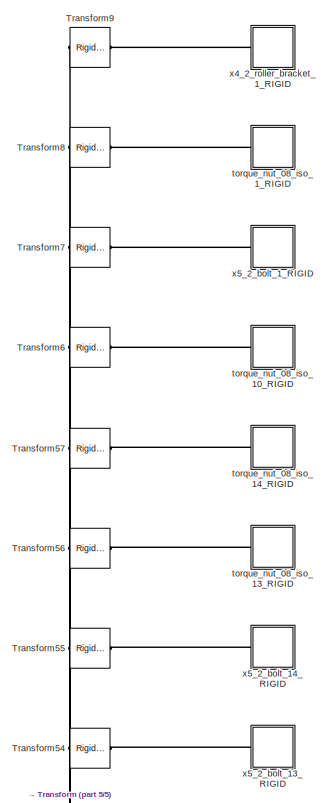
[diagram: Assem_2_RIGID - part 1/5, full width, top band]
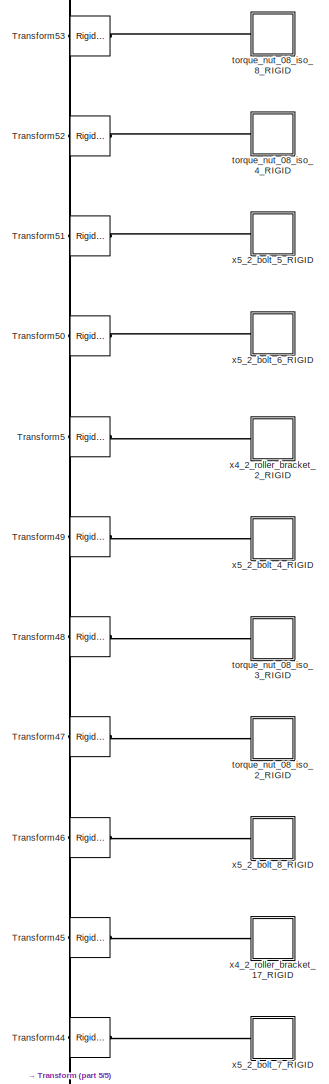
[diagram: Assem_2_RIGID - part 2/5, full width, top band]
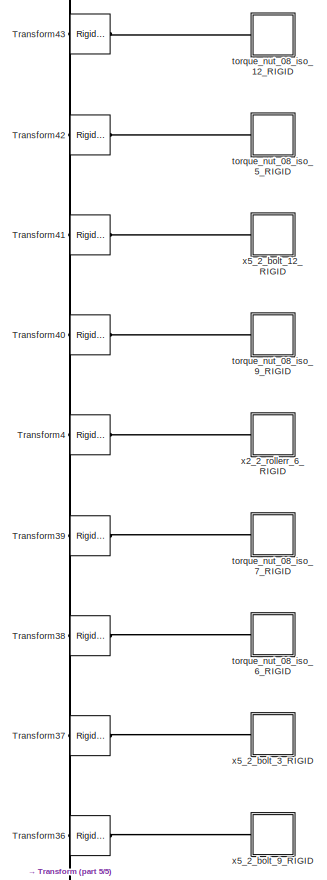
[diagram: Assem_2_RIGID - part 3/5, full width, top band]
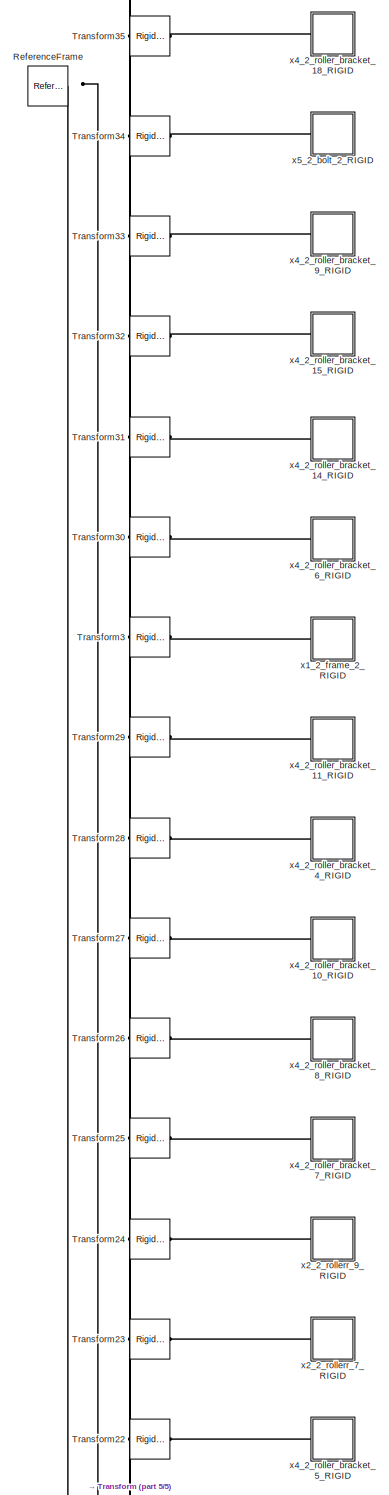
[diagram: Assem_2_RIGID - part 4/5, full width, middle band]
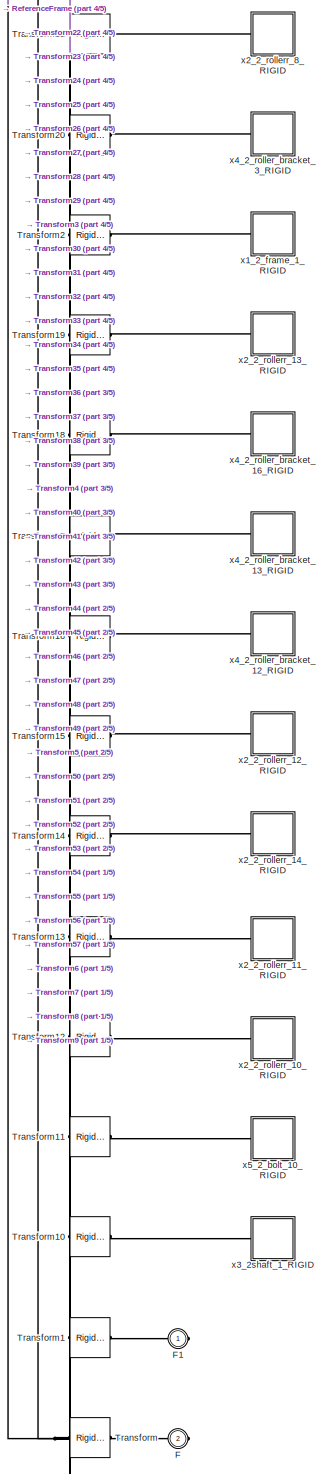
[diagram: Assem_2_RIGID - part 5/5, full width, middle band]
BLOCK [SubSystem] Assem_2_RIGID
  Ports = [0, 0, 0, 0, 0, 0, 2]
  RequestExecContextInheritance = off
BLOCK [PMIOPort] Assem_2_RIGID/F
  Port = 2
  Side = Right
BLOCK [PMIOPort] Assem_2_RIGID/F1
  Side = Right
BLOCK [Reference] Assem_2_RIGID/ReferenceFrame  REF=sm_lib/Frames and
Transforms/Reference
Frame
  Ports = [0, 0, 0, 0, 0, 0, 1]
  SourceBlock = sm_lib/Frames and\nTransforms/Reference\nFrame
  SourceProductBaseCode = MS
  SourceProductName = Simscape Multibody
  SourceType = Reference\nFrame
BLOCK [Reference] Assem_2_RIGID/Transform  REF=sm_lib/Frames and
Transforms/Rigid
Transform
  Ports = [0, 0, 0, 0, 0, 1, 1]
  SourceBlock = sm_lib/Frames and\nTransforms/Rigid\nTransform
  SourceProductBaseCode = MS
  SourceProductName = Simscape Multibody
  SourceType = Rigid\nTransform
BLOCK [Reference] Assem_2_RIGID/Transform1  REF=sm_lib/Frames and
Transforms/Rigid
Transform
  Ports = [0, 0, 0, 0, 0, 1, 1]
  SourceBlock = sm_lib/Frames and\nTransforms/Rigid\nTransform
  SourceProductBaseCode = MS
  SourceProductName = Simscape Multibody
  SourceType = Rigid\nTransform
BLOCK [Reference] Assem_2_RIGID/Transform10  REF=sm_lib/Frames and
Transforms/Rigid
Transform
  Ports = [0, 0, 0, 0, 0, 1, 1]
  SourceBlock = sm_lib/Frames and\nTransforms/Rigid\nTransform
  SourceProductBaseCode = MS
  SourceProductName = Simscape Multibody
  SourceType = Rigid\nTransform
BLOCK [Reference] Assem_2_RIGID/Transform11  REF=sm_lib/Frames and
Transforms/Rigid
Transform
  Ports = [0, 0, 0, 0, 0, 1, 1]
  SourceBlock = sm_lib/Frames and\nTransforms/Rigid\nTransform
  SourceProductBaseCode = MS
  SourceProductName = Simscape Multibody
  SourceType = Rigid\nTransform
BLOCK [Reference] Assem_2_RIGID/Transform12  REF=sm_lib/Frames and
Transforms/Rigid
Transform
  Ports = [0, 0, 0, 0, 0, 1, 1]
  SourceBlock = sm_lib/Frames and\nTransforms/Rigid\nTransform
  SourceProductBaseCode = MS
  SourceProductName = Simscape Multibody
  SourceType = Rigid\nTransform
BLOCK [Reference] Assem_2_RIGID/Transform13  REF=sm_lib/Frames and
Transforms/Rigid
Transform
  Ports = [0, 0, 0, 0, 0, 1, 1]
  SourceBlock = sm_lib/Frames and\nTransforms/Rigid\nTransform
  SourceProductBaseCode = MS
  SourceProductName = Simscape Multibody
  SourceType = Rigid\nTransform
BLOCK [Reference] Assem_2_RIGID/Transform14  REF=sm_lib/Frames and
Transforms/Rigid
Transform
  Ports = [0, 0, 0, 0, 0, 1, 1]
  SourceBlock = sm_lib/Frames and\nTransforms/Rigid\nTransform
  SourceProductBaseCode = MS
  SourceProductName = Simscape Multibody
  SourceType = Rigid\nTransform
BLOCK [Reference] Assem_2_RIGID/Transform15  REF=sm_lib/Frames and
Transforms/Rigid
Transform
  Ports = [0, 0, 0, 0, 0, 1, 1]
  SourceBlock = sm_lib/Frames and\nTransforms/Rigid\nTransform
  SourceProductBaseCode = MS
  SourceProductName = Simscape Multibody
  SourceType = Rigid\nTransform
BLOCK [Reference] Assem_2_RIGID/Transform16  REF=sm_lib/Frames and
Transforms/Rigid
Transform
  Ports = [0, 0, 0, 0, 0, 1, 1]
  SourceBlock = sm_lib/Frames and\nTransforms/Rigid\nTransform
  SourceProductBaseCode = MS
  SourceProductName = Simscape Multibody
  SourceType = Rigid\nTransform
BLOCK [Reference] Assem_2_RIGID/Transform17  REF=sm_lib/Frames and
Transforms/Rigid
Transform
  Ports = [0, 0, 0, 0, 0, 1, 1]
  SourceBlock = sm_lib/Frames and\nTransforms/Rigid\nTransform
  SourceProductBaseCode = MS
  SourceProductName = Simscape Multibody
  SourceType = Rigid\nTransform
BLOCK [Reference] Assem_2_RIGID/Transform18  REF=sm_lib/Frames and
Transforms/Rigid
Transform
  Ports = [0, 0, 0, 0, 0, 1, 1]
  SourceBlock = sm_lib/Frames and\nTransforms/Rigid\nTransform
  SourceProductBaseCode = MS
  SourceProductName = Simscape Multibody
  SourceType = Rigid\nTransform
BLOCK [Reference] Assem_2_RIGID/Transform19  REF=sm_lib/Frames and
Transforms/Rigid
Transform
  Ports = [0, 0, 0, 0, 0, 1, 1]
  SourceBlock = sm_lib/Frames and\nTransforms/Rigid\nTransform
  SourceProductBaseCode = MS
  SourceProductName = Simscape Multibody
  SourceType = Rigid\nTransform
BLOCK [Reference] Assem_2_RIGID/Transform2  REF=sm_lib/Frames and
Transforms/Rigid
Transform
  Ports = [0, 0, 0, 0, 0, 1, 1]
  SourceBlock = sm_lib/Frames and\nTransforms/Rigid\nTransform
  SourceProductBaseCode = MS
  SourceProductName = Simscape Multibody
  SourceType = Rigid\nTransform
BLOCK [Reference] Assem_2_RIGID/Transform20  REF=sm_lib/Frames and
Transforms/Rigid
Transform
  Ports = [0, 0, 0, 0, 0, 1, 1]
  SourceBlock = sm_lib/Frames and\nTransforms/Rigid\nTransform
  SourceProductBaseCode = MS
  SourceProductName = Simscape Multibody
  SourceType = Rigid\nTransform
BLOCK [Reference] Assem_2_RIGID/Transform21  REF=sm_lib/Frames and
Transforms/Rigid
Transform
  Ports = [0, 0, 0, 0, 0, 1, 1]
  SourceBlock = sm_lib/Frames and\nTransforms/Rigid\nTransform
  SourceProductBaseCode = MS
  SourceProductName = Simscape Multibody
  SourceType = Rigid\nTransform
BLOCK [Reference] Assem_2_RIGID/Transform22  REF=sm_lib/Frames and
Transforms/Rigid
Transform
  Ports = [0, 0, 0, 0, 0, 1, 1]
  SourceBlock = sm_lib/Frames and\nTransforms/Rigid\nTransform
  SourceProductBaseCode = MS
  SourceProductName = Simscape Multibody
  SourceType = Rigid\nTransform
BLOCK [Reference] Assem_2_RIGID/Transform23  REF=sm_lib/Frames and
Transforms/Rigid
Transform
  Ports = [0, 0, 0, 0, 0, 1, 1]
  SourceBlock = sm_lib/Frames and\nTransforms/Rigid\nTransform
  SourceProductBaseCode = MS
  SourceProductName = Simscape Multibody
  SourceType = Rigid\nTransform
BLOCK [Reference] Assem_2_RIGID/Transform24  REF=sm_lib/Frames and
Transforms/Rigid
Transform
  Ports = [0, 0, 0, 0, 0, 1, 1]
  SourceBlock = sm_lib/Frames and\nTransforms/Rigid\nTransform
  SourceProductBaseCode = MS
  SourceProductName = Simscape Multibody
  SourceType = Rigid\nTransform
BLOCK [Reference] Assem_2_RIGID/Transform25  REF=sm_lib/Frames and
Transforms/Rigid
Transform
  Ports = [0, 0, 0, 0, 0, 1, 1]
  SourceBlock = sm_lib/Frames and\nTransforms/Rigid\nTransform
  SourceProductBaseCode = MS
  SourceProductName = Simscape Multibody
  SourceType = Rigid\nTransform
BLOCK [Reference] Assem_2_RIGID/Transform26  REF=sm_lib/Frames and
Transforms/Rigid
Transform
  Ports = [0, 0, 0, 0, 0, 1, 1]
  SourceBlock = sm_lib/Frames and\nTransforms/Rigid\nTransform
  SourceProductBaseCode = MS
  SourceProductName = Simscape Multibody
  SourceType = Rigid\nTransform
BLOCK [Reference] Assem_2_RIGID/Transform27  REF=sm_lib/Frames and
Transforms/Rigid
Transform
  Ports = [0, 0, 0, 0, 0, 1, 1]
  SourceBlock = sm_lib/Frames and\nTransforms/Rigid\nTransform
  SourceProductBaseCode = MS
  SourceProductName = Simscape Multibody
  SourceType = Rigid\nTransform
BLOCK [Reference] Assem_2_RIGID/Transform28  REF=sm_lib/Frames and
Transforms/Rigid
Transform
  Ports = [0, 0, 0, 0, 0, 1, 1]
  SourceBlock = sm_lib/Frames and\nTransforms/Rigid\nTransform
  SourceProductBaseCode = MS
  SourceProductName = Simscape Multibody
  SourceType = Rigid\nTransform
BLOCK [Reference] Assem_2_RIGID/Transform29  REF=sm_lib/Frames and
Transforms/Rigid
Transform
  Ports = [0, 0, 0, 0, 0, 1, 1]
  SourceBlock = sm_lib/Frames and\nTransforms/Rigid\nTransform
  SourceProductBaseCode = MS
  SourceProductName = Simscape Multibody
  SourceType = Rigid\nTransform
BLOCK [Reference] Assem_2_RIGID/Transform3  REF=sm_lib/Frames and
Transforms/Rigid
Transform
  Ports = [0, 0, 0, 0, 0, 1, 1]
  SourceBlock = sm_lib/Frames and\nTransforms/Rigid\nTransform
  SourceProductBaseCode = MS
  SourceProductName = Simscape Multibody
  SourceType = Rigid\nTransform
BLOCK [Reference] Assem_2_RIGID/Transform30  REF=sm_lib/Frames and
Transforms/Rigid
Transform
  Ports = [0, 0, 0, 0, 0, 1, 1]
  SourceBlock = sm_lib/Frames and\nTransforms/Rigid\nTransform
  SourceProductBaseCode = MS
  SourceProductName = Simscape Multibody
  SourceType = Rigid\nTransform
BLOCK [Reference] Assem_2_RIGID/Transform31  REF=sm_lib/Frames and
Transforms/Rigid
Transform
  Ports = [0, 0, 0, 0, 0, 1, 1]
  SourceBlock = sm_lib/Frames and\nTransforms/Rigid\nTransform
  SourceProductBaseCode = MS
  SourceProductName = Simscape Multibody
  SourceType = Rigid\nTransform
BLOCK [Reference] Assem_2_RIGID/Transform32  REF=sm_lib/Frames and
Transforms/Rigid
Transform
  Ports = [0, 0, 0, 0, 0, 1, 1]
  SourceBlock = sm_lib/Frames and\nTransforms/Rigid\nTransform
  SourceProductBaseCode = MS
  SourceProductName = Simscape Multibody
  SourceType = Rigid\nTransform
BLOCK [Reference] Assem_2_RIGID/Transform33  REF=sm_lib/Frames and
Transforms/Rigid
Transform
  Ports = [0, 0, 0, 0, 0, 1, 1]
  SourceBlock = sm_lib/Frames and\nTransforms/Rigid\nTransform
  SourceProductBaseCode = MS
  SourceProductName = Simscape Multibody
  SourceType = Rigid\nTransform
BLOCK [Reference] Assem_2_RIGID/Transform34  REF=sm_lib/Frames and
Transforms/Rigid
Transform
  Ports = [0, 0, 0, 0, 0, 1, 1]
  SourceBlock = sm_lib/Frames and\nTransforms/Rigid\nTransform
  SourceProductBaseCode = MS
  SourceProductName = Simscape Multibody
  SourceType = Rigid\nTransform
BLOCK [Reference] Assem_2_RIGID/Transform35  REF=sm_lib/Frames and
Transforms/Rigid
Transform
  Ports = [0, 0, 0, 0, 0, 1, 1]
  SourceBlock = sm_lib/Frames and\nTransforms/Rigid\nTransform
  SourceProductBaseCode = MS
  SourceProductName = Simscape Multibody
  SourceType = Rigid\nTransform
BLOCK [Reference] Assem_2_RIGID/Transform36  REF=sm_lib/Frames and
Transforms/Rigid
Transform
  Ports = [0, 0, 0, 0, 0, 1, 1]
  SourceBlock = sm_lib/Frames and\nTransforms/Rigid\nTransform
  SourceProductBaseCode = MS
  SourceProductName = Simscape Multibody
  SourceType = Rigid\nTransform
BLOCK [Reference] Assem_2_RIGID/Transform37  REF=sm_lib/Frames and
Transforms/Rigid
Transform
  Ports = [0, 0, 0, 0, 0, 1, 1]
  SourceBlock = sm_lib/Frames and\nTransforms/Rigid\nTransform
  SourceProductBaseCode = MS
  SourceProductName = Simscape Multibody
  SourceType = Rigid\nTransform
BLOCK [Reference] Assem_2_RIGID/Transform38  REF=sm_lib/Frames and
Transforms/Rigid
Transform
  Ports = [0, 0, 0, 0, 0, 1, 1]
  SourceBlock = sm_lib/Frames and\nTransforms/Rigid\nTransform
  SourceProductBaseCode = MS
  SourceProductName = Simscape Multibody
  SourceType = Rigid\nTransform
BLOCK [Reference] Assem_2_RIGID/Transform39  REF=sm_lib/Frames and
Transforms/Rigid
Transform
  Ports = [0, 0, 0, 0, 0, 1, 1]
  SourceBlock = sm_lib/Frames and\nTransforms/Rigid\nTransform
  SourceProductBaseCode = MS
  SourceProductName = Simscape Multibody
  SourceType = Rigid\nTransform
BLOCK [Reference] Assem_2_RIGID/Transform4  REF=sm_lib/Frames and
Transforms/Rigid
Transform
  Ports = [0, 0, 0, 0, 0, 1, 1]
  SourceBlock = sm_lib/Frames and\nTransforms/Rigid\nTransform
  SourceProductBaseCode = MS
  SourceProductName = Simscape Multibody
  SourceType = Rigid\nTransform
BLOCK [Reference] Assem_2_RIGID/Transform40  REF=sm_lib/Frames and
Transforms/Rigid
Transform
  Ports = [0, 0, 0, 0, 0, 1, 1]
  SourceBlock = sm_lib/Frames and\nTransforms/Rigid\nTransform
  SourceProductBaseCode = MS
  SourceProductName = Simscape Multibody
  SourceType = Rigid\nTransform
BLOCK [Reference] Assem_2_RIGID/Transform41  REF=sm_lib/Frames and
Transforms/Rigid
Transform
  Ports = [0, 0, 0, 0, 0, 1, 1]
  SourceBlock = sm_lib/Frames and\nTransforms/Rigid\nTransform
  SourceProductBaseCode = MS
  SourceProductName = Simscape Multibody
  SourceType = Rigid\nTransform
BLOCK [Reference] Assem_2_RIGID/Transform42  REF=sm_lib/Frames and
Transforms/Rigid
Transform
  Ports = [0, 0, 0, 0, 0, 1, 1]
  SourceBlock = sm_lib/Frames and\nTransforms/Rigid\nTransform
  SourceProductBaseCode = MS
  SourceProductName = Simscape Multibody
  SourceType = Rigid\nTransform
BLOCK [Reference] Assem_2_RIGID/Transform43  REF=sm_lib/Frames and
Transforms/Rigid
Transform
  Ports = [0, 0, 0, 0, 0, 1, 1]
  SourceBlock = sm_lib/Frames and\nTransforms/Rigid\nTransform
  SourceProductBaseCode = MS
  SourceProductName = Simscape Multibody
  SourceType = Rigid\nTransform
BLOCK [Reference] Assem_2_RIGID/Transform44  REF=sm_lib/Frames and
Transforms/Rigid
Transform
  Ports = [0, 0, 0, 0, 0, 1, 1]
  SourceBlock = sm_lib/Frames and\nTransforms/Rigid\nTransform
  SourceProductBaseCode = MS
  SourceProductName = Simscape Multibody
  SourceType = Rigid\nTransform
BLOCK [Reference] Assem_2_RIGID/Transform45  REF=sm_lib/Frames and
Transforms/Rigid
Transform
  Ports = [0, 0, 0, 0, 0, 1, 1]
  SourceBlock = sm_lib/Frames and\nTransforms/Rigid\nTransform
  SourceProductBaseCode = MS
  SourceProductName = Simscape Multibody
  SourceType = Rigid\nTransform
BLOCK [Reference] Assem_2_RIGID/Transform46  REF=sm_lib/Frames and
Transforms/Rigid
Transform
  Ports = [0, 0, 0, 0, 0, 1, 1]
  SourceBlock = sm_lib/Frames and\nTransforms/Rigid\nTransform
  SourceProductBaseCode = MS
  SourceProductName = Simscape Multibody
  SourceType = Rigid\nTransform
BLOCK [Reference] Assem_2_RIGID/Transform47  REF=sm_lib/Frames and
Transforms/Rigid
Transform
  Ports = [0, 0, 0, 0, 0, 1, 1]
  SourceBlock = sm_lib/Frames and\nTransforms/Rigid\nTransform
  SourceProductBaseCode = MS
  SourceProductName = Simscape Multibody
  SourceType = Rigid\nTransform
BLOCK [Reference] Assem_2_RIGID/Transform48  REF=sm_lib/Frames and
Transforms/Rigid
Transform
  Ports = [0, 0, 0, 0, 0, 1, 1]
  SourceBlock = sm_lib/Frames and\nTransforms/Rigid\nTransform
  SourceProductBaseCode = MS
  SourceProductName = Simscape Multibody
  SourceType = Rigid\nTransform
BLOCK [Reference] Assem_2_RIGID/Transform49  REF=sm_lib/Frames and
Transforms/Rigid
Transform
  Ports = [0, 0, 0, 0, 0, 1, 1]
  SourceBlock = sm_lib/Frames and\nTransforms/Rigid\nTransform
  SourceProductBaseCode = MS
  SourceProductName = Simscape Multibody
  SourceType = Rigid\nTransform
BLOCK [Reference] Assem_2_RIGID/Transform5  REF=sm_lib/Frames and
Transforms/Rigid
Transform
  Ports = [0, 0, 0, 0, 0, 1, 1]
  SourceBlock = sm_lib/Frames and\nTransforms/Rigid\nTransform
  SourceProductBaseCode = MS
  SourceProductName = Simscape Multibody
  SourceType = Rigid\nTransform
BLOCK [Reference] Assem_2_RIGID/Transform50  REF=sm_lib/Frames and
Transforms/Rigid
Transform
  Ports = [0, 0, 0, 0, 0, 1, 1]
  SourceBlock = sm_lib/Frames and\nTransforms/Rigid\nTransform
  SourceProductBaseCode = MS
  SourceProductName = Simscape Multibody
  SourceType = Rigid\nTransform
BLOCK [Reference] Assem_2_RIGID/Transform51  REF=sm_lib/Frames and
Transforms/Rigid
Transform
  Ports = [0, 0, 0, 0, 0, 1, 1]
  SourceBlock = sm_lib/Frames and\nTransforms/Rigid\nTransform
  SourceProductBaseCode = MS
  SourceProductName = Simscape Multibody
  SourceType = Rigid\nTransform
BLOCK [Reference] Assem_2_RIGID/Transform52  REF=sm_lib/Frames and
Transforms/Rigid
Transform
  Ports = [0, 0, 0, 0, 0, 1, 1]
  SourceBlock = sm_lib/Frames and\nTransforms/Rigid\nTransform
  SourceProductBaseCode = MS
  SourceProductName = Simscape Multibody
  SourceType = Rigid\nTransform
BLOCK [Reference] Assem_2_RIGID/Transform53  REF=sm_lib/Frames and
Transforms/Rigid
Transform
  Ports = [0, 0, 0, 0, 0, 1, 1]
  SourceBlock = sm_lib/Frames and\nTransforms/Rigid\nTransform
  SourceProductBaseCode = MS
  SourceProductName = Simscape Multibody
  SourceType = Rigid\nTransform
BLOCK [Reference] Assem_2_RIGID/Transform54  REF=sm_lib/Frames and
Transforms/Rigid
Transform
  Ports = [0, 0, 0, 0, 0, 1, 1]
  SourceBlock = sm_lib/Frames and\nTransforms/Rigid\nTransform
  SourceProductBaseCode = MS
  SourceProductName = Simscape Multibody
  SourceType = Rigid\nTransform
BLOCK [Reference] Assem_2_RIGID/Transform55  REF=sm_lib/Frames and
Transforms/Rigid
Transform
  Ports = [0, 0, 0, 0, 0, 1, 1]
  SourceBlock = sm_lib/Frames and\nTransforms/Rigid\nTransform
  SourceProductBaseCode = MS
  SourceProductName = Simscape Multibody
  SourceType = Rigid\nTransform
BLOCK [Reference] Assem_2_RIGID/Transform56  REF=sm_lib/Frames and
Transforms/Rigid
Transform
  Ports = [0, 0, 0, 0, 0, 1, 1]
  SourceBlock = sm_lib/Frames and\nTransforms/Rigid\nTransform
  SourceProductBaseCode = MS
  SourceProductName = Simscape Multibody
  SourceType = Rigid\nTransform
BLOCK [Reference] Assem_2_RIGID/Transform57  REF=sm_lib/Frames and
Transforms/Rigid
Transform
  Ports = [0, 0, 0, 0, 0, 1, 1]
  SourceBlock = sm_lib/Frames and\nTransforms/Rigid\nTransform
  SourceProductBaseCode = MS
  SourceProductName = Simscape Multibody
  SourceType = Rigid\nTransform
BLOCK [Reference] Assem_2_RIGID/Transform6  REF=sm_lib/Frames and
Transforms/Rigid
Transform
  Ports = [0, 0, 0, 0, 0, 1, 1]
  SourceBlock = sm_lib/Frames and\nTransforms/Rigid\nTransform
  SourceProductBaseCode = MS
  SourceProductName = Simscape Multibody
  SourceType = Rigid\nTransform
BLOCK [Reference] Assem_2_RIGID/Transform7  REF=sm_lib/Frames and
Transforms/Rigid
Transform
  Ports = [0, 0, 0, 0, 0, 1, 1]
  SourceBlock = sm_lib/Frames and\nTransforms/Rigid\nTransform
  SourceProductBaseCode = MS
  SourceProductName = Simscape Multibody
  SourceType = Rigid\nTransform
BLOCK [Reference] Assem_2_RIGID/Transform8  REF=sm_lib/Frames and
Transforms/Rigid
Transform
  Ports = [0, 0, 0, 0, 0, 1, 1]
  SourceBlock = sm_lib/Frames and\nTransforms/Rigid\nTransform
  SourceProductBaseCode = MS
  SourceProductName = Simscape Multibody
  SourceType = Rigid\nTransform
BLOCK [Reference] Assem_2_RIGID/Transform9  REF=sm_lib/Frames and
Transforms/Rigid
Transform
  Ports = [0, 0, 0, 0, 0, 1, 1]
  SourceBlock = sm_lib/Frames and\nTransforms/Rigid\nTransform
  SourceProductBaseCode = MS
  SourceProductName = Simscape Multibody
  SourceType = Rigid\nTransform
BLOCK [SubSystem] Assem_2_RIGID/torque_nut_08_iso_10_RIGID
  Ports = [0, 0, 0, 0, 0, 1]
  RequestExecContextInheritance = off
BLOCK [PMIOPort] Assem_2_RIGID/torque_nut_08_iso_10_RIGID/F
  Side = Left
BLOCK [Reference] Assem_2_RIGID/torque_nut_08_iso_10_RIGID/ReferenceFrame  REF=sm_lib/Frames and
Transforms/Reference
Frame
  Ports = [0, 0, 0, 0, 0, 0, 1]
  SourceBlock = sm_lib/Frames and\nTransforms/Reference\nFrame
  SourceProductBaseCode = MS
  SourceProductName = Simscape Multibody
  SourceType = Reference\nFrame
BLOCK [Reference] Assem_2_RIGID/torque_nut_08_iso_10_RIGID/Solid  REF=sm_lib/Body Elements/File Solid
  Ports = [0, 0, 0, 0, 0, 0, 1]
  SourceBlock = sm_lib/Body Elements/File Solid
  SourceProductBaseCode = MS
  SourceProductName = Simscape Multibody
  SourceType = File Solid
BLOCK [SubSystem] Assem_2_RIGID/torque_nut_08_iso_12_RIGID
  Ports = [0, 0, 0, 0, 0, 1]
  RequestExecContextInheritance = off
BLOCK [PMIOPort] Assem_2_RIGID/torque_nut_08_iso_12_RIGID/F
  Side = Left
BLOCK [Reference] Assem_2_RIGID/torque_nut_08_iso_12_RIGID/ReferenceFrame  REF=sm_lib/Frames and
Transforms/Reference
Frame
  Ports = [0, 0, 0, 0, 0, 0, 1]
  SourceBlock = sm_lib/Frames and\nTransforms/Reference\nFrame
  SourceProductBaseCode = MS
  SourceProductName = Simscape Multibody
  SourceType = Reference\nFrame
BLOCK [Reference] Assem_2_RIGID/torque_nut_08_iso_12_RIGID/Solid  REF=sm_lib/Body Elements/File Solid
  Ports = [0, 0, 0, 0, 0, 0, 1]
  SourceBlock = sm_lib/Body Elements/File Solid
  SourceProductBaseCode = MS
  SourceProductName = Simscape Multibody
  SourceType = File Solid
BLOCK [SubSystem] Assem_2_RIGID/torque_nut_08_iso_13_RIGID
  Ports = [0, 0, 0, 0, 0, 1]
  RequestExecContextInheritance = off
BLOCK [PMIOPort] Assem_2_RIGID/torque_nut_08_iso_13_RIGID/F
  Side = Left
BLOCK [Reference] Assem_2_RIGID/torque_nut_08_iso_13_RIGID/ReferenceFrame  REF=sm_lib/Frames and
Transforms/Reference
Frame
  Ports = [0, 0, 0, 0, 0, 0, 1]
  SourceBlock = sm_lib/Frames and\nTransforms/Reference\nFrame
  SourceProductBaseCode = MS
  SourceProductName = Simscape Multibody
  SourceType = Reference\nFrame
BLOCK [Reference] Assem_2_RIGID/torque_nut_08_iso_13_RIGID/Solid  REF=sm_lib/Body Elements/File Solid
  Ports = [0, 0, 0, 0, 0, 0, 1]
  SourceBlock = sm_lib/Body Elements/File Solid
  SourceProductBaseCode = MS
  SourceProductName = Simscape Multibody
  SourceType = File Solid
BLOCK [SubSystem] Assem_2_RIGID/torque_nut_08_iso_14_RIGID
  Ports = [0, 0, 0, 0, 0, 1]
  RequestExecContextInheritance = off
BLOCK [PMIOPort] Assem_2_RIGID/torque_nut_08_iso_14_RIGID/F
  Side = Left
BLOCK [Reference] Assem_2_RIGID/torque_nut_08_iso_14_RIGID/ReferenceFrame  REF=sm_lib/Frames and
Transforms/Reference
Frame
  Ports = [0, 0, 0, 0, 0, 0, 1]
  SourceBlock = sm_lib/Frames and\nTransforms/Reference\nFrame
  SourceProductBaseCode = MS
  SourceProductName = Simscape Multibody
  SourceType = Reference\nFrame
BLOCK [Reference] Assem_2_RIGID/torque_nut_08_iso_14_RIGID/Solid  REF=sm_lib/Body Elements/File Solid
  Ports = [0, 0, 0, 0, 0, 0, 1]
  SourceBlock = sm_lib/Body Elements/File Solid
  SourceProductBaseCode = MS
  SourceProductName = Simscape Multibody
  SourceType = File Solid
BLOCK [SubSystem] Assem_2_RIGID/torque_nut_08_iso_1_RIGID
  Ports = [0, 0, 0, 0, 0, 1]
  RequestExecContextInheritance = off
BLOCK [PMIOPort] Assem_2_RIGID/torque_nut_08_iso_1_RIGID/F
  Side = Left
BLOCK [Reference] Assem_2_RIGID/torque_nut_08_iso_1_RIGID/ReferenceFrame  REF=sm_lib/Frames and
Transforms/Reference
Frame
  Ports = [0, 0, 0, 0, 0, 0, 1]
  SourceBlock = sm_lib/Frames and\nTransforms/Reference\nFrame
  SourceProductBaseCode = MS
  SourceProductName = Simscape Multibody
  SourceType = Reference\nFrame
BLOCK [Reference] Assem_2_RIGID/torque_nut_08_iso_1_RIGID/Solid  REF=sm_lib/Body Elements/File Solid
  Ports = [0, 0, 0, 0, 0, 0, 1]
  SourceBlock = sm_lib/Body Elements/File Solid
  SourceProductBaseCode = MS
  SourceProductName = Simscape Multibody
  SourceType = File Solid
BLOCK [SubSystem] Assem_2_RIGID/torque_nut_08_iso_2_RIGID
  Ports = [0, 0, 0, 0, 0, 1]
  RequestExecContextInheritance = off
BLOCK [PMIOPort] Assem_2_RIGID/torque_nut_08_iso_2_RIGID/F
  Side = Left
BLOCK [Reference] Assem_2_RIGID/torque_nut_08_iso_2_RIGID/ReferenceFrame  REF=sm_lib/Frames and
Transforms/Reference
Frame
  Ports = [0, 0, 0, 0, 0, 0, 1]
  SourceBlock = sm_lib/Frames and\nTransforms/Reference\nFrame
  SourceProductBaseCode = MS
  SourceProductName = Simscape Multibody
  SourceType = Reference\nFrame
BLOCK [Reference] Assem_2_RIGID/torque_nut_08_iso_2_RIGID/Solid  REF=sm_lib/Body Elements/File Solid
  Ports = [0, 0, 0, 0, 0, 0, 1]
  SourceBlock = sm_lib/Body Elements/File Solid
  SourceProductBaseCode = MS
  SourceProductName = Simscape Multibody
  SourceType = File Solid
BLOCK [SubSystem] Assem_2_RIGID/torque_nut_08_iso_3_RIGID
  Ports = [0, 0, 0, 0, 0, 1]
  RequestExecContextInheritance = off
BLOCK [PMIOPort] Assem_2_RIGID/torque_nut_08_iso_3_RIGID/F
  Side = Left
BLOCK [Reference] Assem_2_RIGID/torque_nut_08_iso_3_RIGID/ReferenceFrame  REF=sm_lib/Frames and
Transforms/Reference
Frame
  Ports = [0, 0, 0, 0, 0, 0, 1]
  SourceBlock = sm_lib/Frames and\nTransforms/Reference\nFrame
  SourceProductBaseCode = MS
  SourceProductName = Simscape Multibody
  SourceType = Reference\nFrame
BLOCK [Reference] Assem_2_RIGID/torque_nut_08_iso_3_RIGID/Solid  REF=sm_lib/Body Elements/File Solid
  Ports = [0, 0, 0, 0, 0, 0, 1]
  SourceBlock = sm_lib/Body Elements/File Solid
  SourceProductBaseCode = MS
  SourceProductName = Simscape Multibody
  SourceType = File Solid
BLOCK [SubSystem] Assem_2_RIGID/torque_nut_08_iso_4_RIGID
  Ports = [0, 0, 0, 0, 0, 1]
  RequestExecContextInheritance = off
BLOCK [PMIOPort] Assem_2_RIGID/torque_nut_08_iso_4_RIGID/F
  Side = Left
BLOCK [Reference] Assem_2_RIGID/torque_nut_08_iso_4_RIGID/ReferenceFrame  REF=sm_lib/Frames and
Transforms/Reference
Frame
  Ports = [0, 0, 0, 0, 0, 0, 1]
  SourceBlock = sm_lib/Frames and\nTransforms/Reference\nFrame
  SourceProductBaseCode = MS
  SourceProductName = Simscape Multibody
  SourceType = Reference\nFrame
BLOCK [Reference] Assem_2_RIGID/torque_nut_08_iso_4_RIGID/Solid  REF=sm_lib/Body Elements/File Solid
  Ports = [0, 0, 0, 0, 0, 0, 1]
  SourceBlock = sm_lib/Body Elements/File Solid
  SourceProductBaseCode = MS
  SourceProductName = Simscape Multibody
  SourceType = File Solid
BLOCK [SubSystem] Assem_2_RIGID/torque_nut_08_iso_5_RIGID
  Ports = [0, 0, 0, 0, 0, 1]
  RequestExecContextInheritance = off
BLOCK [PMIOPort] Assem_2_RIGID/torque_nut_08_iso_5_RIGID/F
  Side = Left
BLOCK [Reference] Assem_2_RIGID/torque_nut_08_iso_5_RIGID/ReferenceFrame  REF=sm_lib/Frames and
Transforms/Reference
Frame
  Ports = [0, 0, 0, 0, 0, 0, 1]
  SourceBlock = sm_lib/Frames and\nTransforms/Reference\nFrame
  SourceProductBaseCode = MS
  SourceProductName = Simscape Multibody
  SourceType = Reference\nFrame
BLOCK [Reference] Assem_2_RIGID/torque_nut_08_iso_5_RIGID/Solid  REF=sm_lib/Body Elements/File Solid
  Ports = [0, 0, 0, 0, 0, 0, 1]
  SourceBlock = sm_lib/Body Elements/File Solid
  SourceProductBaseCode = MS
  SourceProductName = Simscape Multibody
  SourceType = File Solid
BLOCK [SubSystem] Assem_2_RIGID/torque_nut_08_iso_6_RIGID
  Ports = [0, 0, 0, 0, 0, 1]
  RequestExecContextInheritance = off
BLOCK [PMIOPort] Assem_2_RIGID/torque_nut_08_iso_6_RIGID/F
  Side = Left
BLOCK [Reference] Assem_2_RIGID/torque_nut_08_iso_6_RIGID/ReferenceFrame  REF=sm_lib/Frames and
Transforms/Reference
Frame
  Ports = [0, 0, 0, 0, 0, 0, 1]
  SourceBlock = sm_lib/Frames and\nTransforms/Reference\nFrame
  SourceProductBaseCode = MS
  SourceProductName = Simscape Multibody
  SourceType = Reference\nFrame
BLOCK [Reference] Assem_2_RIGID/torque_nut_08_iso_6_RIGID/Solid  REF=sm_lib/Body Elements/File Solid
  Ports = [0, 0, 0, 0, 0, 0, 1]
  SourceBlock = sm_lib/Body Elements/File Solid
  SourceProductBaseCode = MS
  SourceProductName = Simscape Multibody
  SourceType = File Solid
BLOCK [SubSystem] Assem_2_RIGID/torque_nut_08_iso_7_RIGID
  Ports = [0, 0, 0, 0, 0, 1]
  RequestExecContextInheritance = off
BLOCK [PMIOPort] Assem_2_RIGID/torque_nut_08_iso_7_RIGID/F
  Side = Left
BLOCK [Reference] Assem_2_RIGID/torque_nut_08_iso_7_RIGID/ReferenceFrame  REF=sm_lib/Frames and
Transforms/Reference
Frame
  Ports = [0, 0, 0, 0, 0, 0, 1]
  SourceBlock = sm_lib/Frames and\nTransforms/Reference\nFrame
  SourceProductBaseCode = MS
  SourceProductName = Simscape Multibody
  SourceType = Reference\nFrame
BLOCK [Reference] Assem_2_RIGID/torque_nut_08_iso_7_RIGID/Solid  REF=sm_lib/Body Elements/File Solid
  Ports = [0, 0, 0, 0, 0, 0, 1]
  SourceBlock = sm_lib/Body Elements/File Solid
  SourceProductBaseCode = MS
  SourceProductName = Simscape Multibody
  SourceType = File Solid
BLOCK [SubSystem] Assem_2_RIGID/torque_nut_08_iso_8_RIGID
  Ports = [0, 0, 0, 0, 0, 1]
  RequestExecContextInheritance = off
BLOCK [PMIOPort] Assem_2_RIGID/torque_nut_08_iso_8_RIGID/F
  Side = Left
BLOCK [Reference] Assem_2_RIGID/torque_nut_08_iso_8_RIGID/ReferenceFrame  REF=sm_lib/Frames and
Transforms/Reference
Frame
  Ports = [0, 0, 0, 0, 0, 0, 1]
  SourceBlock = sm_lib/Frames and\nTransforms/Reference\nFrame
  SourceProductBaseCode = MS
  SourceProductName = Simscape Multibody
  SourceType = Reference\nFrame
BLOCK [Reference] Assem_2_RIGID/torque_nut_08_iso_8_RIGID/Solid  REF=sm_lib/Body Elements/File Solid
  Ports = [0, 0, 0, 0, 0, 0, 1]
  SourceBlock = sm_lib/Body Elements/File Solid
  SourceProductBaseCode = MS
  SourceProductName = Simscape Multibody
  SourceType = File Solid
BLOCK [SubSystem] Assem_2_RIGID/torque_nut_08_iso_9_RIGID
  Ports = [0, 0, 0, 0, 0, 1]
  RequestExecContextInheritance = off
BLOCK [PMIOPort] Assem_2_RIGID/torque_nut_08_iso_9_RIGID/F
  Side = Left
BLOCK [Reference] Assem_2_RIGID/torque_nut_08_iso_9_RIGID/ReferenceFrame  REF=sm_lib/Frames and
Transforms/Reference
Frame
  Ports = [0, 0, 0, 0, 0, 0, 1]
  SourceBlock = sm_lib/Frames and\nTransforms/Reference\nFrame
  SourceProductBaseCode = MS
  SourceProductName = Simscape Multibody
  SourceType = Reference\nFrame
BLOCK [Reference] Assem_2_RIGID/torque_nut_08_iso_9_RIGID/Solid  REF=sm_lib/Body Elements/File Solid
  Ports = [0, 0, 0, 0, 0, 0, 1]
  SourceBlock = sm_lib/Body Elements/File Solid
  SourceProductBaseCode = MS
  SourceProductName = Simscape Multibody
  SourceType = File Solid
BLOCK [SubSystem] Assem_2_RIGID/x1_2_frame_1_RIGID
  Ports = [0, 0, 0, 0, 0, 1]
  RequestExecContextInheritance = off
BLOCK [PMIOPort] Assem_2_RIGID/x1_2_frame_1_RIGID/F
  Side = Left
BLOCK [Reference] Assem_2_RIGID/x1_2_frame_1_RIGID/ReferenceFrame  REF=sm_lib/Frames and
Transforms/Reference
Frame
  Ports = [0, 0, 0, 0, 0, 0, 1]
  SourceBlock = sm_lib/Frames and\nTransforms/Reference\nFrame
  SourceProductBaseCode = MS
  SourceProductName = Simscape Multibody
  SourceType = Reference\nFrame
BLOCK [Reference] Assem_2_RIGID/x1_2_frame_1_RIGID/Solid  REF=sm_lib/Body Elements/File Solid
  Ports = [0, 0, 0, 0, 0, 0, 1]
  SourceBlock = sm_lib/Body Elements/File Solid
  SourceProductBaseCode = MS
  SourceProductName = Simscape Multibody
  SourceType = File Solid
BLOCK [SubSystem] Assem_2_RIGID/x1_2_frame_2_RIGID
  Ports = [0, 0, 0, 0, 0, 1]
  RequestExecContextInheritance = off
BLOCK [PMIOPort] Assem_2_RIGID/x1_2_frame_2_RIGID/F
  Side = Left
BLOCK [Reference] Assem_2_RIGID/x1_2_frame_2_RIGID/ReferenceFrame  REF=sm_lib/Frames and
Transforms/Reference
Frame
  Ports = [0, 0, 0, 0, 0, 0, 1]
  SourceBlock = sm_lib/Frames and\nTransforms/Reference\nFrame
  SourceProductBaseCode = MS
  SourceProductName = Simscape Multibody
  SourceType = Reference\nFrame
BLOCK [Reference] Assem_2_RIGID/x1_2_frame_2_RIGID/Solid  REF=sm_lib/Body Elements/File Solid
  Ports = [0, 0, 0, 0, 0, 0, 1]
  SourceBlock = sm_lib/Body Elements/File Solid
  SourceProductBaseCode = MS
  SourceProductName = Simscape Multibody
  SourceType = File Solid
BLOCK [SubSystem] Assem_2_RIGID/x2_2_rollerr_10_RIGID
  Ports = [0, 0, 0, 0, 0, 1]
  RequestExecContextInheritance = off
BLOCK [PMIOPort] Assem_2_RIGID/x2_2_rollerr_10_RIGID/F
  Side = Left
BLOCK [Reference] Assem_2_RIGID/x2_2_rollerr_10_RIGID/ReferenceFrame  REF=sm_lib/Frames and
Transforms/Reference
Frame
  Ports = [0, 0, 0, 0, 0, 0, 1]
  SourceBlock = sm_lib/Frames and\nTransforms/Reference\nFrame
  SourceProductBaseCode = MS
  SourceProductName = Simscape Multibody
  SourceType = Reference\nFrame
BLOCK [Reference] Assem_2_RIGID/x2_2_rollerr_10_RIGID/Solid  REF=sm_lib/Body Elements/File Solid
  Ports = [0, 0, 0, 0, 0, 0, 1]
  SourceBlock = sm_lib/Body Elements/File Solid
  SourceProductBaseCode = MS
  SourceProductName = Simscape Multibody
  SourceType = File Solid
BLOCK [SubSystem] Assem_2_RIGID/x2_2_rollerr_11_RIGID
  Ports = [0, 0, 0, 0, 0, 1]
  RequestExecContextInheritance = off
BLOCK [PMIOPort] Assem_2_RIGID/x2_2_rollerr_11_RIGID/F
  Side = Left
BLOCK [Reference] Assem_2_RIGID/x2_2_rollerr_11_RIGID/ReferenceFrame  REF=sm_lib/Frames and
Transforms/Reference
Frame
  Ports = [0, 0, 0, 0, 0, 0, 1]
  SourceBlock = sm_lib/Frames and\nTransforms/Reference\nFrame
  SourceProductBaseCode = MS
  SourceProductName = Simscape Multibody
  SourceType = Reference\nFrame
BLOCK [Reference] Assem_2_RIGID/x2_2_rollerr_11_RIGID/Solid  REF=sm_lib/Body Elements/File Solid
  Ports = [0, 0, 0, 0, 0, 0, 1]
  SourceBlock = sm_lib/Body Elements/File Solid
  SourceProductBaseCode = MS
  SourceProductName = Simscape Multibody
  SourceType = File Solid
BLOCK [SubSystem] Assem_2_RIGID/x2_2_rollerr_12_RIGID
  Ports = [0, 0, 0, 0, 0, 1]
  RequestExecContextInheritance = off
BLOCK [PMIOPort] Assem_2_RIGID/x2_2_rollerr_12_RIGID/F
  Side = Left
BLOCK [Reference] Assem_2_RIGID/x2_2_rollerr_12_RIGID/ReferenceFrame  REF=sm_lib/Frames and
Transforms/Reference
Frame
  Ports = [0, 0, 0, 0, 0, 0, 1]
  SourceBlock = sm_lib/Frames and\nTransforms/Reference\nFrame
  SourceProductBaseCode = MS
  SourceProductName = Simscape Multibody
  SourceType = Reference\nFrame
BLOCK [Reference] Assem_2_RIGID/x2_2_rollerr_12_RIGID/Solid  REF=sm_lib/Body Elements/File Solid
  Ports = [0, 0, 0, 0, 0, 0, 1]
  SourceBlock = sm_lib/Body Elements/File Solid
  SourceProductBaseCode = MS
  SourceProductName = Simscape Multibody
  SourceType = File Solid
BLOCK [SubSystem] Assem_2_RIGID/x2_2_rollerr_13_RIGID
  Ports = [0, 0, 0, 0, 0, 1]
  RequestExecContextInheritance = off
BLOCK [PMIOPort] Assem_2_RIGID/x2_2_rollerr_13_RIGID/F
  Side = Left
BLOCK [Reference] Assem_2_RIGID/x2_2_rollerr_13_RIGID/ReferenceFrame  REF=sm_lib/Frames and
Transforms/Reference
Frame
  Ports = [0, 0, 0, 0, 0, 0, 1]
  SourceBlock = sm_lib/Frames and\nTransforms/Reference\nFrame
  SourceProductBaseCode = MS
  SourceProductName = Simscape Multibody
  SourceType = Reference\nFrame
BLOCK [Reference] Assem_2_RIGID/x2_2_rollerr_13_RIGID/Solid  REF=sm_lib/Body Elements/File Solid
  Ports = [0, 0, 0, 0, 0, 0, 1]
  SourceBlock = sm_lib/Body Elements/File Solid
  SourceProductBaseCode = MS
  SourceProductName = Simscape Multibody
  SourceType = File Solid
BLOCK [SubSystem] Assem_2_RIGID/x2_2_rollerr_14_RIGID
  Ports = [0, 0, 0, 0, 0, 1]
  RequestExecContextInheritance = off
BLOCK [PMIOPort] Assem_2_RIGID/x2_2_rollerr_14_RIGID/F
  Side = Left
BLOCK [Reference] Assem_2_RIGID/x2_2_rollerr_14_RIGID/ReferenceFrame  REF=sm_lib/Frames and
Transforms/Reference
Frame
  Ports = [0, 0, 0, 0, 0, 0, 1]
  SourceBlock = sm_lib/Frames and\nTransforms/Reference\nFrame
  SourceProductBaseCode = MS
  SourceProductName = Simscape Multibody
  SourceType = Reference\nFrame
BLOCK [Reference] Assem_2_RIGID/x2_2_rollerr_14_RIGID/Solid  REF=sm_lib/Body Elements/File Solid
  Ports = [0, 0, 0, 0, 0, 0, 1]
  SourceBlock = sm_lib/Body Elements/File Solid
  SourceProductBaseCode = MS
  SourceProductName = Simscape Multibody
  SourceType = File Solid
BLOCK [SubSystem] Assem_2_RIGID/x2_2_rollerr_6_RIGID
  Ports = [0, 0, 0, 0, 0, 1]
  RequestExecContextInheritance = off
BLOCK [PMIOPort] Assem_2_RIGID/x2_2_rollerr_6_RIGID/F
  Side = Left
BLOCK [Reference] Assem_2_RIGID/x2_2_rollerr_6_RIGID/ReferenceFrame  REF=sm_lib/Frames and
Transforms/Reference
Frame
  Ports = [0, 0, 0, 0, 0, 0, 1]
  SourceBlock = sm_lib/Frames and\nTransforms/Reference\nFrame
  SourceProductBaseCode = MS
  SourceProductName = Simscape Multibody
  SourceType = Reference\nFrame
BLOCK [Reference] Assem_2_RIGID/x2_2_rollerr_6_RIGID/Solid  REF=sm_lib/Body Elements/File Solid
  Ports = [0, 0, 0, 0, 0, 0, 1]
  SourceBlock = sm_lib/Body Elements/File Solid
  SourceProductBaseCode = MS
  SourceProductName = Simscape Multibody
  SourceType = File Solid
BLOCK [SubSystem] Assem_2_RIGID/x2_2_rollerr_7_RIGID
  Ports = [0, 0, 0, 0, 0, 1]
  RequestExecContextInheritance = off
BLOCK [PMIOPort] Assem_2_RIGID/x2_2_rollerr_7_RIGID/F
  Side = Left
BLOCK [Reference] Assem_2_RIGID/x2_2_rollerr_7_RIGID/ReferenceFrame  REF=sm_lib/Frames and
Transforms/Reference
Frame
  Ports = [0, 0, 0, 0, 0, 0, 1]
  SourceBlock = sm_lib/Frames and\nTransforms/Reference\nFrame
  SourceProductBaseCode = MS
  SourceProductName = Simscape Multibody
  SourceType = Reference\nFrame
BLOCK [Reference] Assem_2_RIGID/x2_2_rollerr_7_RIGID/Solid  REF=sm_lib/Body Elements/File Solid
  Ports = [0, 0, 0, 0, 0, 0, 1]
  SourceBlock = sm_lib/Body Elements/File Solid
  SourceProductBaseCode = MS
  SourceProductName = Simscape Multibody
  SourceType = File Solid
BLOCK [SubSystem] Assem_2_RIGID/x2_2_rollerr_8_RIGID
  Ports = [0, 0, 0, 0, 0, 1]
  RequestExecContextInheritance = off
BLOCK [PMIOPort] Assem_2_RIGID/x2_2_rollerr_8_RIGID/F
  Side = Left
BLOCK [Reference] Assem_2_RIGID/x2_2_rollerr_8_RIGID/ReferenceFrame  REF=sm_lib/Frames and
Transforms/Reference
Frame
  Ports = [0, 0, 0, 0, 0, 0, 1]
  SourceBlock = sm_lib/Frames and\nTransforms/Reference\nFrame
  SourceProductBaseCode = MS
  SourceProductName = Simscape Multibody
  SourceType = Reference\nFrame
BLOCK [Reference] Assem_2_RIGID/x2_2_rollerr_8_RIGID/Solid  REF=sm_lib/Body Elements/File Solid
  Ports = [0, 0, 0, 0, 0, 0, 1]
  SourceBlock = sm_lib/Body Elements/File Solid
  SourceProductBaseCode = MS
  SourceProductName = Simscape Multibody
  SourceType = File Solid
BLOCK [SubSystem] Assem_2_RIGID/x2_2_rollerr_9_RIGID
  Ports = [0, 0, 0, 0, 0, 1]
  RequestExecContextInheritance = off
BLOCK [PMIOPort] Assem_2_RIGID/x2_2_rollerr_9_RIGID/F
  Side = Left
BLOCK [Reference] Assem_2_RIGID/x2_2_rollerr_9_RIGID/ReferenceFrame  REF=sm_lib/Frames and
Transforms/Reference
Frame
  Ports = [0, 0, 0, 0, 0, 0, 1]
  SourceBlock = sm_lib/Frames and\nTransforms/Reference\nFrame
  SourceProductBaseCode = MS
  SourceProductName = Simscape Multibody
  SourceType = Reference\nFrame
BLOCK [Reference] Assem_2_RIGID/x2_2_rollerr_9_RIGID/Solid  REF=sm_lib/Body Elements/File Solid
  Ports = [0, 0, 0, 0, 0, 0, 1]
  SourceBlock = sm_lib/Body Elements/File Solid
  SourceProductBaseCode = MS
  SourceProductName = Simscape Multibody
  SourceType = File Solid
BLOCK [SubSystem] Assem_2_RIGID/x3_2shaft_1_RIGID
  Ports = [0, 0, 0, 0, 0, 1]
  RequestExecContextInheritance = off
BLOCK [PMIOPort] Assem_2_RIGID/x3_2shaft_1_RIGID/F
  Side = Left
BLOCK [Reference] Assem_2_RIGID/x3_2shaft_1_RIGID/ReferenceFrame  REF=sm_lib/Frames and
Transforms/Reference
Frame
  Ports = [0, 0, 0, 0, 0, 0, 1]
  SourceBlock = sm_lib/Frames and\nTransforms/Reference\nFrame
  SourceProductBaseCode = MS
  SourceProductName = Simscape Multibody
  SourceType = Reference\nFrame
BLOCK [Reference] Assem_2_RIGID/x3_2shaft_1_RIGID/Solid  REF=sm_lib/Body Elements/File Solid
  Ports = [0, 0, 0, 0, 0, 0, 1]
  SourceBlock = sm_lib/Body Elements/File Solid
  SourceProductBaseCode = MS
  SourceProductName = Simscape Multibody
  SourceType = File Solid
BLOCK [SubSystem] Assem_2_RIGID/x4_2_roller_bracket_10_RIGID
  Ports = [0, 0, 0, 0, 0, 1]
  RequestExecContextInheritance = off
BLOCK [PMIOPort] Assem_2_RIGID/x4_2_roller_bracket_10_RIGID/F
  Side = Left
BLOCK [Reference] Assem_2_RIGID/x4_2_roller_bracket_10_RIGID/ReferenceFrame  REF=sm_lib/Frames and
Transforms/Reference
Frame
  Ports = [0, 0, 0, 0, 0, 0, 1]
  SourceBlock = sm_lib/Frames and\nTransforms/Reference\nFrame
  SourceProductBaseCode = MS
  SourceProductName = Simscape Multibody
  SourceType = Reference\nFrame
BLOCK [Reference] Assem_2_RIGID/x4_2_roller_bracket_10_RIGID/Solid  REF=sm_lib/Body Elements/File Solid
  Ports = [0, 0, 0, 0, 0, 0, 1]
  SourceBlock = sm_lib/Body Elements/File Solid
  SourceProductBaseCode = MS
  SourceProductName = Simscape Multibody
  SourceType = File Solid
BLOCK [SubSystem] Assem_2_RIGID/x4_2_roller_bracket_11_RIGID
  Ports = [0, 0, 0, 0, 0, 1]
  RequestExecContextInheritance = off
BLOCK [PMIOPort] Assem_2_RIGID/x4_2_roller_bracket_11_RIGID/F
  Side = Left
BLOCK [Reference] Assem_2_RIGID/x4_2_roller_bracket_11_RIGID/ReferenceFrame  REF=sm_lib/Frames and
Transforms/Reference
Frame
  Ports = [0, 0, 0, 0, 0, 0, 1]
  SourceBlock = sm_lib/Frames and\nTransforms/Reference\nFrame
  SourceProductBaseCode = MS
  SourceProductName = Simscape Multibody
  SourceType = Reference\nFrame
BLOCK [Reference] Assem_2_RIGID/x4_2_roller_bracket_11_RIGID/Solid  REF=sm_lib/Body Elements/File Solid
  Ports = [0, 0, 0, 0, 0, 0, 1]
  SourceBlock = sm_lib/Body Elements/File Solid
  SourceProductBaseCode = MS
  SourceProductName = Simscape Multibody
  SourceType = File Solid
BLOCK [SubSystem] Assem_2_RIGID/x4_2_roller_bracket_12_RIGID
  Ports = [0, 0, 0, 0, 0, 1]
  RequestExecContextInheritance = off
BLOCK [PMIOPort] Assem_2_RIGID/x4_2_roller_bracket_12_RIGID/F
  Side = Left
BLOCK [Reference] Assem_2_RIGID/x4_2_roller_bracket_12_RIGID/ReferenceFrame  REF=sm_lib/Frames and
Transforms/Reference
Frame
  Ports = [0, 0, 0, 0, 0, 0, 1]
  SourceBlock = sm_lib/Frames and\nTransforms/Reference\nFrame
  SourceProductBaseCode = MS
  SourceProductName = Simscape Multibody
  SourceType = Reference\nFrame
BLOCK [Reference] Assem_2_RIGID/x4_2_roller_bracket_12_RIGID/Solid  REF=sm_lib/Body Elements/File Solid
  Ports = [0, 0, 0, 0, 0, 0, 1]
  SourceBlock = sm_lib/Body Elements/File Solid
  SourceProductBaseCode = MS
  SourceProductName = Simscape Multibody
  SourceType = File Solid
BLOCK [SubSystem] Assem_2_RIGID/x4_2_roller_bracket_13_RIGID
  Ports = [0, 0, 0, 0, 0, 1]
  RequestExecContextInheritance = off
BLOCK [PMIOPort] Assem_2_RIGID/x4_2_roller_bracket_13_RIGID/F
  Side = Left
BLOCK [Reference] Assem_2_RIGID/x4_2_roller_bracket_13_RIGID/ReferenceFrame  REF=sm_lib/Frames and
Transforms/Reference
Frame
  Ports = [0, 0, 0, 0, 0, 0, 1]
  SourceBlock = sm_lib/Frames and\nTransforms/Reference\nFrame
  SourceProductBaseCode = MS
  SourceProductName = Simscape Multibody
  SourceType = Reference\nFrame
BLOCK [Reference] Assem_2_RIGID/x4_2_roller_bracket_13_RIGID/Solid  REF=sm_lib/Body Elements/File Solid
  Ports = [0, 0, 0, 0, 0, 0, 1]
  SourceBlock = sm_lib/Body Elements/File Solid
  SourceProductBaseCode = MS
  SourceProductName = Simscape Multibody
  SourceType = File Solid
BLOCK [SubSystem] Assem_2_RIGID/x4_2_roller_bracket_14_RIGID
  Ports = [0, 0, 0, 0, 0, 1]
  RequestExecContextInheritance = off
BLOCK [PMIOPort] Assem_2_RIGID/x4_2_roller_bracket_14_RIGID/F
  Side = Left
BLOCK [Reference] Assem_2_RIGID/x4_2_roller_bracket_14_RIGID/ReferenceFrame  REF=sm_lib/Frames and
Transforms/Reference
Frame
  Ports = [0, 0, 0, 0, 0, 0, 1]
  SourceBlock = sm_lib/Frames and\nTransforms/Reference\nFrame
  SourceProductBaseCode = MS
  SourceProductName = Simscape Multibody
  SourceType = Reference\nFrame
BLOCK [Reference] Assem_2_RIGID/x4_2_roller_bracket_14_RIGID/Solid  REF=sm_lib/Body Elements/File Solid
  Ports = [0, 0, 0, 0, 0, 0, 1]
  SourceBlock = sm_lib/Body Elements/File Solid
  SourceProductBaseCode = MS
  SourceProductName = Simscape Multibody
  SourceType = File Solid
BLOCK [SubSystem] Assem_2_RIGID/x4_2_roller_bracket_15_RIGID
  Ports = [0, 0, 0, 0, 0, 1]
  RequestExecContextInheritance = off
BLOCK [PMIOPort] Assem_2_RIGID/x4_2_roller_bracket_15_RIGID/F
  Side = Left
BLOCK [Reference] Assem_2_RIGID/x4_2_roller_bracket_15_RIGID/ReferenceFrame  REF=sm_lib/Frames and
Transforms/Reference
Frame
  Ports = [0, 0, 0, 0, 0, 0, 1]
  SourceBlock = sm_lib/Frames and\nTransforms/Reference\nFrame
  SourceProductBaseCode = MS
  SourceProductName = Simscape Multibody
  SourceType = Reference\nFrame
BLOCK [Reference] Assem_2_RIGID/x4_2_roller_bracket_15_RIGID/Solid  REF=sm_lib/Body Elements/File Solid
  Ports = [0, 0, 0, 0, 0, 0, 1]
  SourceBlock = sm_lib/Body Elements/File Solid
  SourceProductBaseCode = MS
  SourceProductName = Simscape Multibody
  SourceType = File Solid
BLOCK [SubSystem] Assem_2_RIGID/x4_2_roller_bracket_16_RIGID
  Ports = [0, 0, 0, 0, 0, 1]
  RequestExecContextInheritance = off
BLOCK [PMIOPort] Assem_2_RIGID/x4_2_roller_bracket_16_RIGID/F
  Side = Left
BLOCK [Reference] Assem_2_RIGID/x4_2_roller_bracket_16_RIGID/ReferenceFrame  REF=sm_lib/Frames and
Transforms/Reference
Frame
  Ports = [0, 0, 0, 0, 0, 0, 1]
  SourceBlock = sm_lib/Frames and\nTransforms/Reference\nFrame
  SourceProductBaseCode = MS
  SourceProductName = Simscape Multibody
  SourceType = Reference\nFrame
BLOCK [Reference] Assem_2_RIGID/x4_2_roller_bracket_16_RIGID/Solid  REF=sm_lib/Body Elements/File Solid
  Ports = [0, 0, 0, 0, 0, 0, 1]
  SourceBlock = sm_lib/Body Elements/File Solid
  SourceProductBaseCode = MS
  SourceProductName = Simscape Multibody
  SourceType = File Solid
BLOCK [SubSystem] Assem_2_RIGID/x4_2_roller_bracket_17_RIGID
  Ports = [0, 0, 0, 0, 0, 1]
  RequestExecContextInheritance = off
BLOCK [PMIOPort] Assem_2_RIGID/x4_2_roller_bracket_17_RIGID/F
  Side = Left
BLOCK [Reference] Assem_2_RIGID/x4_2_roller_bracket_17_RIGID/ReferenceFrame  REF=sm_lib/Frames and
Transforms/Reference
Frame
  Ports = [0, 0, 0, 0, 0, 0, 1]
  SourceBlock = sm_lib/Frames and\nTransforms/Reference\nFrame
  SourceProductBaseCode = MS
  SourceProductName = Simscape Multibody
  SourceType = Reference\nFrame
BLOCK [Reference] Assem_2_RIGID/x4_2_roller_bracket_17_RIGID/Solid  REF=sm_lib/Body Elements/File Solid
  Ports = [0, 0, 0, 0, 0, 0, 1]
  SourceBlock = sm_lib/Body Elements/File Solid
  SourceProductBaseCode = MS
  SourceProductName = Simscape Multibody
  SourceType = File Solid
BLOCK [SubSystem] Assem_2_RIGID/x4_2_roller_bracket_18_RIGID
  Ports = [0, 0, 0, 0, 0, 1]
  RequestExecContextInheritance = off
BLOCK [PMIOPort] Assem_2_RIGID/x4_2_roller_bracket_18_RIGID/F
  Side = Left
BLOCK [Reference] Assem_2_RIGID/x4_2_roller_bracket_18_RIGID/ReferenceFrame  REF=sm_lib/Frames and
Transforms/Reference
Frame
  Ports = [0, 0, 0, 0, 0, 0, 1]
  SourceBlock = sm_lib/Frames and\nTransforms/Reference\nFrame
  SourceProductBaseCode = MS
  SourceProductName = Simscape Multibody
  SourceType = Reference\nFrame
BLOCK [Reference] Assem_2_RIGID/x4_2_roller_bracket_18_RIGID/Solid  REF=sm_lib/Body Elements/File Solid
  Ports = [0, 0, 0, 0, 0, 0, 1]
  SourceBlock = sm_lib/Body Elements/File Solid
  SourceProductBaseCode = MS
  SourceProductName = Simscape Multibody
  SourceType = File Solid
BLOCK [SubSystem] Assem_2_RIGID/x4_2_roller_bracket_1_RIGID
  Ports = [0, 0, 0, 0, 0, 1]
  RequestExecContextInheritance = off
BLOCK [PMIOPort] Assem_2_RIGID/x4_2_roller_bracket_1_RIGID/F
  Side = Left
BLOCK [Reference] Assem_2_RIGID/x4_2_roller_bracket_1_RIGID/ReferenceFrame  REF=sm_lib/Frames and
Transforms/Reference
Frame
  Ports = [0, 0, 0, 0, 0, 0, 1]
  SourceBlock = sm_lib/Frames and\nTransforms/Reference\nFrame
  SourceProductBaseCode = MS
  SourceProductName = Simscape Multibody
  SourceType = Reference\nFrame
BLOCK [Reference] Assem_2_RIGID/x4_2_roller_bracket_1_RIGID/Solid  REF=sm_lib/Body Elements/File Solid
  Ports = [0, 0, 0, 0, 0, 0, 1]
  SourceBlock = sm_lib/Body Elements/File Solid
  SourceProductBaseCode = MS
  SourceProductName = Simscape Multibody
  SourceType = File Solid
BLOCK [SubSystem] Assem_2_RIGID/x4_2_roller_bracket_2_RIGID
  Ports = [0, 0, 0, 0, 0, 1]
  RequestExecContextInheritance = off
BLOCK [PMIOPort] Assem_2_RIGID/x4_2_roller_bracket_2_RIGID/F
  Side = Left
BLOCK [Reference] Assem_2_RIGID/x4_2_roller_bracket_2_RIGID/ReferenceFrame  REF=sm_lib/Frames and
Transforms/Reference
Frame
  Ports = [0, 0, 0, 0, 0, 0, 1]
  SourceBlock = sm_lib/Frames and\nTransforms/Reference\nFrame
  SourceProductBaseCode = MS
  SourceProductName = Simscape Multibody
  SourceType = Reference\nFrame
BLOCK [Reference] Assem_2_RIGID/x4_2_roller_bracket_2_RIGID/Solid  REF=sm_lib/Body Elements/File Solid
  Ports = [0, 0, 0, 0, 0, 0, 1]
  SourceBlock = sm_lib/Body Elements/File Solid
  SourceProductBaseCode = MS
  SourceProductName = Simscape Multibody
  SourceType = File Solid
BLOCK [SubSystem] Assem_2_RIGID/x4_2_roller_bracket_3_RIGID
  Ports = [0, 0, 0, 0, 0, 1]
  RequestExecContextInheritance = off
BLOCK [PMIOPort] Assem_2_RIGID/x4_2_roller_bracket_3_RIGID/F
  Side = Left
BLOCK [Reference] Assem_2_RIGID/x4_2_roller_bracket_3_RIGID/ReferenceFrame  REF=sm_lib/Frames and
Transforms/Reference
Frame
  Ports = [0, 0, 0, 0, 0, 0, 1]
  SourceBlock = sm_lib/Frames and\nTransforms/Reference\nFrame
  SourceProductBaseCode = MS
  SourceProductName = Simscape Multibody
  SourceType = Reference\nFrame
BLOCK [Reference] Assem_2_RIGID/x4_2_roller_bracket_3_RIGID/Solid  REF=sm_lib/Body Elements/File Solid
  Ports = [0, 0, 0, 0, 0, 0, 1]
  SourceBlock = sm_lib/Body Elements/File Solid
  SourceProductBaseCode = MS
  SourceProductName = Simscape Multibody
  SourceType = File Solid
BLOCK [SubSystem] Assem_2_RIGID/x4_2_roller_bracket_4_RIGID
  Ports = [0, 0, 0, 0, 0, 1]
  RequestExecContextInheritance = off
BLOCK [PMIOPort] Assem_2_RIGID/x4_2_roller_bracket_4_RIGID/F
  Side = Left
BLOCK [Reference] Assem_2_RIGID/x4_2_roller_bracket_4_RIGID/ReferenceFrame  REF=sm_lib/Frames and
Transforms/Reference
Frame
  Ports = [0, 0, 0, 0, 0, 0, 1]
  SourceBlock = sm_lib/Frames and\nTransforms/Reference\nFrame
  SourceProductBaseCode = MS
  SourceProductName = Simscape Multibody
  SourceType = Reference\nFrame
BLOCK [Reference] Assem_2_RIGID/x4_2_roller_bracket_4_RIGID/Solid  REF=sm_lib/Body Elements/File Solid
  Ports = [0, 0, 0, 0, 0, 0, 1]
  SourceBlock = sm_lib/Body Elements/File Solid
  SourceProductBaseCode = MS
  SourceProductName = Simscape Multibody
  SourceType = File Solid
BLOCK [SubSystem] Assem_2_RIGID/x4_2_roller_bracket_5_RIGID
  Ports = [0, 0, 0, 0, 0, 1]
  RequestExecContextInheritance = off
BLOCK [PMIOPort] Assem_2_RIGID/x4_2_roller_bracket_5_RIGID/F
  Side = Left
BLOCK [Reference] Assem_2_RIGID/x4_2_roller_bracket_5_RIGID/ReferenceFrame  REF=sm_lib/Frames and
Transforms/Reference
Frame
  Ports = [0, 0, 0, 0, 0, 0, 1]
  SourceBlock = sm_lib/Frames and\nTransforms/Reference\nFrame
  SourceProductBaseCode = MS
  SourceProductName = Simscape Multibody
  SourceType = Reference\nFrame
BLOCK [Reference] Assem_2_RIGID/x4_2_roller_bracket_5_RIGID/Solid  REF=sm_lib/Body Elements/File Solid
  Ports = [0, 0, 0, 0, 0, 0, 1]
  SourceBlock = sm_lib/Body Elements/File Solid
  SourceProductBaseCode = MS
  SourceProductName = Simscape Multibody
  SourceType = File Solid
BLOCK [SubSystem] Assem_2_RIGID/x4_2_roller_bracket_6_RIGID
  Ports = [0, 0, 0, 0, 0, 1]
  RequestExecContextInheritance = off
BLOCK [PMIOPort] Assem_2_RIGID/x4_2_roller_bracket_6_RIGID/F
  Side = Left
BLOCK [Reference] Assem_2_RIGID/x4_2_roller_bracket_6_RIGID/ReferenceFrame  REF=sm_lib/Frames and
Transforms/Reference
Frame
  Ports = [0, 0, 0, 0, 0, 0, 1]
  SourceBlock = sm_lib/Frames and\nTransforms/Reference\nFrame
  SourceProductBaseCode = MS
  SourceProductName = Simscape Multibody
  SourceType = Reference\nFrame
BLOCK [Reference] Assem_2_RIGID/x4_2_roller_bracket_6_RIGID/Solid  REF=sm_lib/Body Elements/File Solid
  Ports = [0, 0, 0, 0, 0, 0, 1]
  SourceBlock = sm_lib/Body Elements/File Solid
  SourceProductBaseCode = MS
  SourceProductName = Simscape Multibody
  SourceType = File Solid
BLOCK [SubSystem] Assem_2_RIGID/x4_2_roller_bracket_7_RIGID
  Ports = [0, 0, 0, 0, 0, 1]
  RequestExecContextInheritance = off
BLOCK [PMIOPort] Assem_2_RIGID/x4_2_roller_bracket_7_RIGID/F
  Side = Left
BLOCK [Reference] Assem_2_RIGID/x4_2_roller_bracket_7_RIGID/ReferenceFrame  REF=sm_lib/Frames and
Transforms/Reference
Frame
  Ports = [0, 0, 0, 0, 0, 0, 1]
  SourceBlock = sm_lib/Frames and\nTransforms/Reference\nFrame
  SourceProductBaseCode = MS
  SourceProductName = Simscape Multibody
  SourceType = Reference\nFrame
BLOCK [Reference] Assem_2_RIGID/x4_2_roller_bracket_7_RIGID/Solid  REF=sm_lib/Body Elements/File Solid
  Ports = [0, 0, 0, 0, 0, 0, 1]
  SourceBlock = sm_lib/Body Elements/File Solid
  SourceProductBaseCode = MS
  SourceProductName = Simscape Multibody
  SourceType = File Solid
BLOCK [SubSystem] Assem_2_RIGID/x4_2_roller_bracket_8_RIGID
  Ports = [0, 0, 0, 0, 0, 1]
  RequestExecContextInheritance = off
BLOCK [PMIOPort] Assem_2_RIGID/x4_2_roller_bracket_8_RIGID/F
  Side = Left
BLOCK [Reference] Assem_2_RIGID/x4_2_roller_bracket_8_RIGID/ReferenceFrame  REF=sm_lib/Frames and
Transforms/Reference
Frame
  Ports = [0, 0, 0, 0, 0, 0, 1]
  SourceBlock = sm_lib/Frames and\nTransforms/Reference\nFrame
  SourceProductBaseCode = MS
  SourceProductName = Simscape Multibody
  SourceType = Reference\nFrame
BLOCK [Reference] Assem_2_RIGID/x4_2_roller_bracket_8_RIGID/Solid  REF=sm_lib/Body Elements/File Solid
  Ports = [0, 0, 0, 0, 0, 0, 1]
  SourceBlock = sm_lib/Body Elements/File Solid
  SourceProductBaseCode = MS
  SourceProductName = Simscape Multibody
  SourceType = File Solid
BLOCK [SubSystem] Assem_2_RIGID/x4_2_roller_bracket_9_RIGID
  Ports = [0, 0, 0, 0, 0, 1]
  RequestExecContextInheritance = off
BLOCK [PMIOPort] Assem_2_RIGID/x4_2_roller_bracket_9_RIGID/F
  Side = Left
BLOCK [Reference] Assem_2_RIGID/x4_2_roller_bracket_9_RIGID/ReferenceFrame  REF=sm_lib/Frames and
Transforms/Reference
Frame
  Ports = [0, 0, 0, 0, 0, 0, 1]
  SourceBlock = sm_lib/Frames and\nTransforms/Reference\nFrame
  SourceProductBaseCode = MS
  SourceProductName = Simscape Multibody
  SourceType = Reference\nFrame
BLOCK [Reference] Assem_2_RIGID/x4_2_roller_bracket_9_RIGID/Solid  REF=sm_lib/Body Elements/File Solid
  Ports = [0, 0, 0, 0, 0, 0, 1]
  SourceBlock = sm_lib/Body Elements/File Solid
  SourceProductBaseCode = MS
  SourceProductName = Simscape Multibody
  SourceType = File Solid
BLOCK [SubSystem] Assem_2_RIGID/x5_2_bolt_10_RIGID
  Ports = [0, 0, 0, 0, 0, 1]
  RequestExecContextInheritance = off
BLOCK [PMIOPort] Assem_2_RIGID/x5_2_bolt_10_RIGID/F
  Side = Left
BLOCK [Reference] Assem_2_RIGID/x5_2_bolt_10_RIGID/ReferenceFrame  REF=sm_lib/Frames and
Transforms/Reference
Frame
  Ports = [0, 0, 0, 0, 0, 0, 1]
  SourceBlock = sm_lib/Frames and\nTransforms/Reference\nFrame
  SourceProductBaseCode = MS
  SourceProductName = Simscape Multibody
  SourceType = Reference\nFrame
BLOCK [Reference] Assem_2_RIGID/x5_2_bolt_10_RIGID/Solid  REF=sm_lib/Body Elements/File Solid
  Ports = [0, 0, 0, 0, 0, 0, 1]
  SourceBlock = sm_lib/Body Elements/File Solid
  SourceProductBaseCode = MS
  SourceProductName = Simscape Multibody
  SourceType = File Solid
BLOCK [SubSystem] Assem_2_RIGID/x5_2_bolt_12_RIGID
  Ports = [0, 0, 0, 0, 0, 1]
  RequestExecContextInheritance = off
BLOCK [PMIOPort] Assem_2_RIGID/x5_2_bolt_12_RIGID/F
  Side = Left
BLOCK [Reference] Assem_2_RIGID/x5_2_bolt_12_RIGID/ReferenceFrame  REF=sm_lib/Frames and
Transforms/Reference
Frame
  Ports = [0, 0, 0, 0, 0, 0, 1]
  SourceBlock = sm_lib/Frames and\nTransforms/Reference\nFrame
  SourceProductBaseCode = MS
  SourceProductName = Simscape Multibody
  SourceType = Reference\nFrame
BLOCK [Reference] Assem_2_RIGID/x5_2_bolt_12_RIGID/Solid  REF=sm_lib/Body Elements/File Solid
  Ports = [0, 0, 0, 0, 0, 0, 1]
  SourceBlock = sm_lib/Body Elements/File Solid
  SourceProductBaseCode = MS
  SourceProductName = Simscape Multibody
  SourceType = File Solid
BLOCK [SubSystem] Assem_2_RIGID/x5_2_bolt_13_RIGID
  Ports = [0, 0, 0, 0, 0, 1]
  RequestExecContextInheritance = off
BLOCK [PMIOPort] Assem_2_RIGID/x5_2_bolt_13_RIGID/F
  Side = Left
BLOCK [Reference] Assem_2_RIGID/x5_2_bolt_13_RIGID/ReferenceFrame  REF=sm_lib/Frames and
Transforms/Reference
Frame
  Ports = [0, 0, 0, 0, 0, 0, 1]
  SourceBlock = sm_lib/Frames and\nTransforms/Reference\nFrame
  SourceProductBaseCode = MS
  SourceProductName = Simscape Multibody
  SourceType = Reference\nFrame
BLOCK [Reference] Assem_2_RIGID/x5_2_bolt_13_RIGID/Solid  REF=sm_lib/Body Elements/File Solid
  Ports = [0, 0, 0, 0, 0, 0, 1]
  SourceBlock = sm_lib/Body Elements/File Solid
  SourceProductBaseCode = MS
  SourceProductName = Simscape Multibody
  SourceType = File Solid
BLOCK [SubSystem] Assem_2_RIGID/x5_2_bolt_14_RIGID
  Ports = [0, 0, 0, 0, 0, 1]
  RequestExecContextInheritance = off
BLOCK [PMIOPort] Assem_2_RIGID/x5_2_bolt_14_RIGID/F
  Side = Left
BLOCK [Reference] Assem_2_RIGID/x5_2_bolt_14_RIGID/ReferenceFrame  REF=sm_lib/Frames and
Transforms/Reference
Frame
  Ports = [0, 0, 0, 0, 0, 0, 1]
  SourceBlock = sm_lib/Frames and\nTransforms/Reference\nFrame
  SourceProductBaseCode = MS
  SourceProductName = Simscape Multibody
  SourceType = Reference\nFrame
BLOCK [Reference] Assem_2_RIGID/x5_2_bolt_14_RIGID/Solid  REF=sm_lib/Body Elements/File Solid
  Ports = [0, 0, 0, 0, 0, 0, 1]
  SourceBlock = sm_lib/Body Elements/File Solid
  SourceProductBaseCode = MS
  SourceProductName = Simscape Multibody
  SourceType = File Solid
BLOCK [SubSystem] Assem_2_RIGID/x5_2_bolt_1_RIGID
  Ports = [0, 0, 0, 0, 0, 1]
  RequestExecContextInheritance = off
BLOCK [PMIOPort] Assem_2_RIGID/x5_2_bolt_1_RIGID/F
  Side = Left
BLOCK [Reference] Assem_2_RIGID/x5_2_bolt_1_RIGID/ReferenceFrame  REF=sm_lib/Frames and
Transforms/Reference
Frame
  Ports = [0, 0, 0, 0, 0, 0, 1]
  SourceBlock = sm_lib/Frames and\nTransforms/Reference\nFrame
  SourceProductBaseCode = MS
  SourceProductName = Simscape Multibody
  SourceType = Reference\nFrame
BLOCK [Reference] Assem_2_RIGID/x5_2_bolt_1_RIGID/Solid  REF=sm_lib/Body Elements/File Solid
  Ports = [0, 0, 0, 0, 0, 0, 1]
  SourceBlock = sm_lib/Body Elements/File Solid
  SourceProductBaseCode = MS
  SourceProductName = Simscape Multibody
  SourceType = File Solid
BLOCK [SubSystem] Assem_2_RIGID/x5_2_bolt_2_RIGID
  Ports = [0, 0, 0, 0, 0, 1]
  RequestExecContextInheritance = off
BLOCK [PMIOPort] Assem_2_RIGID/x5_2_bolt_2_RIGID/F
  Side = Left
BLOCK [Reference] Assem_2_RIGID/x5_2_bolt_2_RIGID/ReferenceFrame  REF=sm_lib/Frames and
Transforms/Reference
Frame
  Ports = [0, 0, 0, 0, 0, 0, 1]
  SourceBlock = sm_lib/Frames and\nTransforms/Reference\nFrame
  SourceProductBaseCode = MS
  SourceProductName = Simscape Multibody
  SourceType = Reference\nFrame
BLOCK [Reference] Assem_2_RIGID/x5_2_bolt_2_RIGID/Solid  REF=sm_lib/Body Elements/File Solid
  Ports = [0, 0, 0, 0, 0, 0, 1]
  SourceBlock = sm_lib/Body Elements/File Solid
  SourceProductBaseCode = MS
  SourceProductName = Simscape Multibody
  SourceType = File Solid
BLOCK [SubSystem] Assem_2_RIGID/x5_2_bolt_3_RIGID
  Ports = [0, 0, 0, 0, 0, 1]
  RequestExecContextInheritance = off
BLOCK [PMIOPort] Assem_2_RIGID/x5_2_bolt_3_RIGID/F
  Side = Left
BLOCK [Reference] Assem_2_RIGID/x5_2_bolt_3_RIGID/ReferenceFrame  REF=sm_lib/Frames and
Transforms/Reference
Frame
  Ports = [0, 0, 0, 0, 0, 0, 1]
  SourceBlock = sm_lib/Frames and\nTransforms/Reference\nFrame
  SourceProductBaseCode = MS
  SourceProductName = Simscape Multibody
  SourceType = Reference\nFrame
BLOCK [Reference] Assem_2_RIGID/x5_2_bolt_3_RIGID/Solid  REF=sm_lib/Body Elements/File Solid
  Ports = [0, 0, 0, 0, 0, 0, 1]
  SourceBlock = sm_lib/Body Elements/File Solid
  SourceProductBaseCode = MS
  SourceProductName = Simscape Multibody
  SourceType = File Solid
BLOCK [SubSystem] Assem_2_RIGID/x5_2_bolt_4_RIGID
  Ports = [0, 0, 0, 0, 0, 1]
  RequestExecContextInheritance = off
BLOCK [PMIOPort] Assem_2_RIGID/x5_2_bolt_4_RIGID/F
  Side = Left
BLOCK [Reference] Assem_2_RIGID/x5_2_bolt_4_RIGID/ReferenceFrame  REF=sm_lib/Frames and
Transforms/Reference
Frame
  Ports = [0, 0, 0, 0, 0, 0, 1]
  SourceBlock = sm_lib/Frames and\nTransforms/Reference\nFrame
  SourceProductBaseCode = MS
  SourceProductName = Simscape Multibody
  SourceType = Reference\nFrame
BLOCK [Reference] Assem_2_RIGID/x5_2_bolt_4_RIGID/Solid  REF=sm_lib/Body Elements/File Solid
  Ports = [0, 0, 0, 0, 0, 0, 1]
  SourceBlock = sm_lib/Body Elements/File Solid
  SourceProductBaseCode = MS
  SourceProductName = Simscape Multibody
  SourceType = File Solid
BLOCK [SubSystem] Assem_2_RIGID/x5_2_bolt_5_RIGID
  Ports = [0, 0, 0, 0, 0, 1]
  RequestExecContextInheritance = off
BLOCK [PMIOPort] Assem_2_RIGID/x5_2_bolt_5_RIGID/F
  Side = Left
BLOCK [Reference] Assem_2_RIGID/x5_2_bolt_5_RIGID/ReferenceFrame  REF=sm_lib/Frames and
Transforms/Reference
Frame
  Ports = [0, 0, 0, 0, 0, 0, 1]
  SourceBlock = sm_lib/Frames and\nTransforms/Reference\nFrame
  SourceProductBaseCode = MS
  SourceProductName = Simscape Multibody
  SourceType = Reference\nFrame
BLOCK [Reference] Assem_2_RIGID/x5_2_bolt_5_RIGID/Solid  REF=sm_lib/Body Elements/File Solid
  Ports = [0, 0, 0, 0, 0, 0, 1]
  SourceBlock = sm_lib/Body Elements/File Solid
  SourceProductBaseCode = MS
  SourceProductName = Simscape Multibody
  SourceType = File Solid
BLOCK [SubSystem] Assem_2_RIGID/x5_2_bolt_6_RIGID
  Ports = [0, 0, 0, 0, 0, 1]
  RequestExecContextInheritance = off
BLOCK [PMIOPort] Assem_2_RIGID/x5_2_bolt_6_RIGID/F
  Side = Left
BLOCK [Reference] Assem_2_RIGID/x5_2_bolt_6_RIGID/ReferenceFrame  REF=sm_lib/Frames and
Transforms/Reference
Frame
  Ports = [0, 0, 0, 0, 0, 0, 1]
  SourceBlock = sm_lib/Frames and\nTransforms/Reference\nFrame
  SourceProductBaseCode = MS
  SourceProductName = Simscape Multibody
  SourceType = Reference\nFrame
BLOCK [Reference] Assem_2_RIGID/x5_2_bolt_6_RIGID/Solid  REF=sm_lib/Body Elements/File Solid
  Ports = [0, 0, 0, 0, 0, 0, 1]
  SourceBlock = sm_lib/Body Elements/File Solid
  SourceProductBaseCode = MS
  SourceProductName = Simscape Multibody
  SourceType = File Solid
BLOCK [SubSystem] Assem_2_RIGID/x5_2_bolt_7_RIGID
  Ports = [0, 0, 0, 0, 0, 1]
  RequestExecContextInheritance = off
BLOCK [PMIOPort] Assem_2_RIGID/x5_2_bolt_7_RIGID/F
  Side = Left
BLOCK [Reference] Assem_2_RIGID/x5_2_bolt_7_RIGID/ReferenceFrame  REF=sm_lib/Frames and
Transforms/Reference
Frame
  Ports = [0, 0, 0, 0, 0, 0, 1]
  SourceBlock = sm_lib/Frames and\nTransforms/Reference\nFrame
  SourceProductBaseCode = MS
  SourceProductName = Simscape Multibody
  SourceType = Reference\nFrame
BLOCK [Reference] Assem_2_RIGID/x5_2_bolt_7_RIGID/Solid  REF=sm_lib/Body Elements/File Solid
  Ports = [0, 0, 0, 0, 0, 0, 1]
  SourceBlock = sm_lib/Body Elements/File Solid
  SourceProductBaseCode = MS
  SourceProductName = Simscape Multibody
  SourceType = File Solid
BLOCK [SubSystem] Assem_2_RIGID/x5_2_bolt_8_RIGID
  Ports = [0, 0, 0, 0, 0, 1]
  RequestExecContextInheritance = off
BLOCK [PMIOPort] Assem_2_RIGID/x5_2_bolt_8_RIGID/F
  Side = Left
BLOCK [Reference] Assem_2_RIGID/x5_2_bolt_8_RIGID/ReferenceFrame  REF=sm_lib/Frames and
Transforms/Reference
Frame
  Ports = [0, 0, 0, 0, 0, 0, 1]
  SourceBlock = sm_lib/Frames and\nTransforms/Reference\nFrame
  SourceProductBaseCode = MS
  SourceProductName = Simscape Multibody
  SourceType = Reference\nFrame
BLOCK [Reference] Assem_2_RIGID/x5_2_bolt_8_RIGID/Solid  REF=sm_lib/Body Elements/File Solid
  Ports = [0, 0, 0, 0, 0, 0, 1]
  SourceBlock = sm_lib/Body Elements/File Solid
  SourceProductBaseCode = MS
  SourceProductName = Simscape Multibody
  SourceType = File Solid
BLOCK [SubSystem] Assem_2_RIGID/x5_2_bolt_9_RIGID
  Ports = [0, 0, 0, 0, 0, 1]
  RequestExecContextInheritance = off
BLOCK [PMIOPort] Assem_2_RIGID/x5_2_bolt_9_RIGID/F
  Side = Left
BLOCK [Reference] Assem_2_RIGID/x5_2_bolt_9_RIGID/ReferenceFrame  REF=sm_lib/Frames and
Transforms/Reference
Frame
  Ports = [0, 0, 0, 0, 0, 0, 1]
  SourceBlock = sm_lib/Frames and\nTransforms/Reference\nFrame
  SourceProductBaseCode = MS
  SourceProductName = Simscape Multibody
  SourceType = Reference\nFrame
BLOCK [Reference] Assem_2_RIGID/x5_2_bolt_9_RIGID/Solid  REF=sm_lib/Body Elements/File Solid
  Ports = [0, 0, 0, 0, 0, 0, 1]
  SourceBlock = sm_lib/Body Elements/File Solid
  SourceProductBaseCode = MS
  SourceProductName = Simscape Multibody
  SourceType = File Solid
BLOCK [SubSystem] Assem_3_RIGID
  Ports = [0, 0, 0, 0, 0, 1, 1]
  RequestExecContextInheritance = off
BLOCK [PMIOPort] Assem_3_RIGID/F
  Side = Left
BLOCK [PMIOPort] Assem_3_RIGID/F1
  Port = 2
  Side = Right
BLOCK [Reference] Assem_3_RIGID/ReferenceFrame  REF=sm_lib/Frames and
Transforms/Reference
Frame
  Ports = [0, 0, 0, 0, 0, 0, 1]
  SourceBlock = sm_lib/Frames and\nTransforms/Reference\nFrame
  SourceProductBaseCode = MS
  SourceProductName = Simscape Multibody
  SourceType = Reference\nFrame
BLOCK [Reference] Assem_3_RIGID/Transform  REF=sm_lib/Frames and
Transforms/Rigid
Transform
  Ports = [0, 0, 0, 0, 0, 1, 1]
  SourceBlock = sm_lib/Frames and\nTransforms/Rigid\nTransform
  SourceProductBaseCode = MS
  SourceProductName = Simscape Multibody
  SourceType = Rigid\nTransform
BLOCK [Reference] Assem_3_RIGID/Transform1  REF=sm_lib/Frames and
Transforms/Rigid
Transform
  Ports = [0, 0, 0, 0, 0, 1, 1]
  SourceBlock = sm_lib/Frames and\nTransforms/Rigid\nTransform
  SourceProductBaseCode = MS
  SourceProductName = Simscape Multibody
  SourceType = Rigid\nTransform
BLOCK [Reference] Assem_3_RIGID/Transform10  REF=sm_lib/Frames and
Transforms/Rigid
Transform
  Ports = [0, 0, 0, 0, 0, 1, 1]
  SourceBlock = sm_lib/Frames and\nTransforms/Rigid\nTransform
  SourceProductBaseCode = MS
  SourceProductName = Simscape Multibody
  SourceType = Rigid\nTransform
BLOCK [Reference] Assem_3_RIGID/Transform11  REF=sm_lib/Frames and
Transforms/Rigid
Transform
  Ports = [0, 0, 0, 0, 0, 1, 1]
  SourceBlock = sm_lib/Frames and\nTransforms/Rigid\nTransform
  SourceProductBaseCode = MS
  SourceProductName = Simscape Multibody
  SourceType = Rigid\nTransform
BLOCK [Reference] Assem_3_RIGID/Transform12  REF=sm_lib/Frames and
Transforms/Rigid
Transform
  Ports = [0, 0, 0, 0, 0, 1, 1]
  SourceBlock = sm_lib/Frames and\nTransforms/Rigid\nTransform
  SourceProductBaseCode = MS
  SourceProductName = Simscape Multibody
  SourceType = Rigid\nTransform
BLOCK [Reference] Assem_3_RIGID/Transform13  REF=sm_lib/Frames and
Transforms/Rigid
Transform
  Ports = [0, 0, 0, 0, 0, 1, 1]
  SourceBlock = sm_lib/Frames and\nTransforms/Rigid\nTransform
  SourceProductBaseCode = MS
  SourceProductName = Simscape Multibody
  SourceType = Rigid\nTransform
BLOCK [Reference] Assem_3_RIGID/Transform14  REF=sm_lib/Frames and
Transforms/Rigid
Transform
  Ports = [0, 0, 0, 0, 0, 1, 1]
  SourceBlock = sm_lib/Frames and\nTransforms/Rigid\nTransform
  SourceProductBaseCode = MS
  SourceProductName = Simscape Multibody
  SourceType = Rigid\nTransform
BLOCK [Reference] Assem_3_RIGID/Transform15  REF=sm_lib/Frames and
Transforms/Rigid
Transform
  Ports = [0, 0, 0, 0, 0, 1, 1]
  SourceBlock = sm_lib/Frames and\nTransforms/Rigid\nTransform
  SourceProductBaseCode = MS
  SourceProductName = Simscape Multibody
  SourceType = Rigid\nTransform
BLOCK [Reference] Assem_3_RIGID/Transform16  REF=sm_lib/Frames and
Transforms/Rigid
Transform
  Ports = [0, 0, 0, 0, 0, 1, 1]
  SourceBlock = sm_lib/Frames and\nTransforms/Rigid\nTransform
  SourceProductBaseCode = MS
  SourceProductName = Simscape Multibody
  SourceType = Rigid\nTransform
BLOCK [Reference] Assem_3_RIGID/Transform17  REF=sm_lib/Frames and
Transforms/Rigid
Transform
  Ports = [0, 0, 0, 0, 0, 1, 1]
  SourceBlock = sm_lib/Frames and\nTransforms/Rigid\nTransform
  SourceProductBaseCode = MS
  SourceProductName = Simscape Multibody
  SourceType = Rigid\nTransform
BLOCK [Reference] Assem_3_RIGID/Transform18  REF=sm_lib/Frames and
Transforms/Rigid
Transform
  Ports = [0, 0, 0, 0, 0, 1, 1]
  SourceBlock = sm_lib/Frames and\nTransforms/Rigid\nTransform
  SourceProductBaseCode = MS
  SourceProductName = Simscape Multibody
  SourceType = Rigid\nTransform
BLOCK [Reference] Assem_3_RIGID/Transform19  REF=sm_lib/Frames and
Transforms/Rigid
Transform
  Ports = [0, 0, 0, 0, 0, 1, 1]
  SourceBlock = sm_lib/Frames and\nTransforms/Rigid\nTransform
  SourceProductBaseCode = MS
  SourceProductName = Simscape Multibody
  SourceType = Rigid\nTransform
BLOCK [Reference] Assem_3_RIGID/Transform2  REF=sm_lib/Frames and
Transforms/Rigid
Transform
  Ports = [0, 0, 0, 0, 0, 1, 1]
  SourceBlock = sm_lib/Frames and\nTransforms/Rigid\nTransform
  SourceProductBaseCode = MS
  SourceProductName = Simscape Multibody
  SourceType = Rigid\nTransform
BLOCK [Reference] Assem_3_RIGID/Transform20  REF=sm_lib/Frames and
Transforms/Rigid
Transform
  Ports = [0, 0, 0, 0, 0, 1, 1]
  SourceBlock = sm_lib/Frames and\nTransforms/Rigid\nTransform
  SourceProductBaseCode = MS
  SourceProductName = Simscape Multibody
  SourceType = Rigid\nTransform
BLOCK [Reference] Assem_3_RIGID/Transform21  REF=sm_lib/Frames and
Transforms/Rigid
Transform
  Ports = [0, 0, 0, 0, 0, 1, 1]
  SourceBlock = sm_lib/Frames and\nTransforms/Rigid\nTransform
  SourceProductBaseCode = MS
  SourceProductName = Simscape Multibody
  SourceType = Rigid\nTransform
BLOCK [Reference] Assem_3_RIGID/Transform22  REF=sm_lib/Frames and
Transforms/Rigid
Transform
  Ports = [0, 0, 0, 0, 0, 1, 1]
  SourceBlock = sm_lib/Frames and\nTransforms/Rigid\nTransform
  SourceProductBaseCode = MS
  SourceProductName = Simscape Multibody
  SourceType = Rigid\nTransform
BLOCK [Reference] Assem_3_RIGID/Transform23  REF=sm_lib/Frames and
Transforms/Rigid
Transform
  Ports = [0, 0, 0, 0, 0, 1, 1]
  SourceBlock = sm_lib/Frames and\nTransforms/Rigid\nTransform
  SourceProductBaseCode = MS
  SourceProductName = Simscape Multibody
  SourceType = Rigid\nTransform
BLOCK [Reference] Assem_3_RIGID/Transform24  REF=sm_lib/Frames and
Transforms/Rigid
Transform
  Ports = [0, 0, 0, 0, 0, 1, 1]
  SourceBlock = sm_lib/Frames and\nTransforms/Rigid\nTransform
  SourceProductBaseCode = MS
  SourceProductName = Simscape Multibody
  SourceType = Rigid\nTransform
BLOCK [Reference] Assem_3_RIGID/Transform25  REF=sm_lib/Frames and
Transforms/Rigid
Transform
  Ports = [0, 0, 0, 0, 0, 1, 1]
  SourceBlock = sm_lib/Frames and\nTransforms/Rigid\nTransform
  SourceProductBaseCode = MS
  SourceProductName = Simscape Multibody
  SourceType = Rigid\nTransform
BLOCK [Reference] Assem_3_RIGID/Transform26  REF=sm_lib/Frames and
Transforms/Rigid
Transform
  Ports = [0, 0, 0, 0, 0, 1, 1]
  SourceBlock = sm_lib/Frames and\nTransforms/Rigid\nTransform
  SourceProductBaseCode = MS
  SourceProductName = Simscape Multibody
  SourceType = Rigid\nTransform
BLOCK [Reference] Assem_3_RIGID/Transform27  REF=sm_lib/Frames and
Transforms/Rigid
Transform
  Ports = [0, 0, 0, 0, 0, 1, 1]
  SourceBlock = sm_lib/Frames and\nTransforms/Rigid\nTransform
  SourceProductBaseCode = MS
  SourceProductName = Simscape Multibody
  SourceType = Rigid\nTransform
BLOCK [Reference] Assem_3_RIGID/Transform28  REF=sm_lib/Frames and
Transforms/Rigid
Transform
  Ports = [0, 0, 0, 0, 0, 1, 1]
  SourceBlock = sm_lib/Frames and\nTransforms/Rigid\nTransform
  SourceProductBaseCode = MS
  SourceProductName = Simscape Multibody
  SourceType = Rigid\nTransform
BLOCK [Reference] Assem_3_RIGID/Transform29  REF=sm_lib/Frames and
Transforms/Rigid
Transform
  Ports = [0, 0, 0, 0, 0, 1, 1]
  SourceBlock = sm_lib/Frames and\nTransforms/Rigid\nTransform
  SourceProductBaseCode = MS
  SourceProductName = Simscape Multibody
  SourceType = Rigid\nTransform
BLOCK [Reference] Assem_3_RIGID/Transform3  REF=sm_lib/Frames and
Transforms/Rigid
Transform
  Ports = [0, 0, 0, 0, 0, 1, 1]
  SourceBlock = sm_lib/Frames and\nTransforms/Rigid\nTransform
  SourceProductBaseCode = MS
  SourceProductName = Simscape Multibody
  SourceType = Rigid\nTransform
BLOCK [Reference] Assem_3_RIGID/Transform30  REF=sm_lib/Frames and
Transforms/Rigid
Transform
  Ports = [0, 0, 0, 0, 0, 1, 1]
  SourceBlock = sm_lib/Frames and\nTransforms/Rigid\nTransform
  SourceProductBaseCode = MS
  SourceProductName = Simscape Multibody
  SourceType = Rigid\nTransform
BLOCK [Reference] Assem_3_RIGID/Transform31  REF=sm_lib/Frames and
Transforms/Rigid
Transform
  Ports = [0, 0, 0, 0, 0, 1, 1]
  SourceBlock = sm_lib/Frames and\nTransforms/Rigid\nTransform
  SourceProductBaseCode = MS
  SourceProductName = Simscape Multibody
  SourceType = Rigid\nTransform
BLOCK [Reference] Assem_3_RIGID/Transform32  REF=sm_lib/Frames and
Transforms/Rigid
Transform
  Ports = [0, 0, 0, 0, 0, 1, 1]
  SourceBlock = sm_lib/Frames and\nTransforms/Rigid\nTransform
  SourceProductBaseCode = MS
  SourceProductName = Simscape Multibody
  SourceType = Rigid\nTransform
BLOCK [Reference] Assem_3_RIGID/Transform33  REF=sm_lib/Frames and
Transforms/Rigid
Transform
  Ports = [0, 0, 0, 0, 0, 1, 1]
  SourceBlock = sm_lib/Frames and\nTransforms/Rigid\nTransform
  SourceProductBaseCode = MS
  SourceProductName = Simscape Multibody
  SourceType = Rigid\nTransform
BLOCK [Reference] Assem_3_RIGID/Transform34  REF=sm_lib/Frames and
Transforms/Rigid
Transform
  Ports = [0, 0, 0, 0, 0, 1, 1]
  SourceBlock = sm_lib/Frames and\nTransforms/Rigid\nTransform
  SourceProductBaseCode = MS
  SourceProductName = Simscape Multibody
  SourceType = Rigid\nTransform
BLOCK [Reference] Assem_3_RIGID/Transform35  REF=sm_lib/Frames and
Transforms/Rigid
Transform
  Ports = [0, 0, 0, 0, 0, 1, 1]
  SourceBlock = sm_lib/Frames and\nTransforms/Rigid\nTransform
  SourceProductBaseCode = MS
  SourceProductName = Simscape Multibody
  SourceType = Rigid\nTransform
BLOCK [Reference] Assem_3_RIGID/Transform36  REF=sm_lib/Frames and
Transforms/Rigid
Transform
  Ports = [0, 0, 0, 0, 0, 1, 1]
  SourceBlock = sm_lib/Frames and\nTransforms/Rigid\nTransform
  SourceProductBaseCode = MS
  SourceProductName = Simscape Multibody
  SourceType = Rigid\nTransform
BLOCK [Reference] Assem_3_RIGID/Transform37  REF=sm_lib/Frames and
Transforms/Rigid
Transform
  Ports = [0, 0, 0, 0, 0, 1, 1]
  SourceBlock = sm_lib/Frames and\nTransforms/Rigid\nTransform
  SourceProductBaseCode = MS
  SourceProductName = Simscape Multibody
  SourceType = Rigid\nTransform
BLOCK [Reference] Assem_3_RIGID/Transform38  REF=sm_lib/Frames and
Transforms/Rigid
Transform
  Ports = [0, 0, 0, 0, 0, 1, 1]
  SourceBlock = sm_lib/Frames and\nTransforms/Rigid\nTransform
  SourceProductBaseCode = MS
  SourceProductName = Simscape Multibody
  SourceType = Rigid\nTransform
BLOCK [Reference] Assem_3_RIGID/Transform39  REF=sm_lib/Frames and
Transforms/Rigid
Transform
  Ports = [0, 0, 0, 0, 0, 1, 1]
  SourceBlock = sm_lib/Frames and\nTransforms/Rigid\nTransform
  SourceProductBaseCode = MS
  SourceProductName = Simscape Multibody
  SourceType = Rigid\nTransform
BLOCK [Reference] Assem_3_RIGID/Transform4  REF=sm_lib/Frames and
Transforms/Rigid
Transform
  Ports = [0, 0, 0, 0, 0, 1, 1]
  SourceBlock = sm_lib/Frames and\nTransforms/Rigid\nTransform
  SourceProductBaseCode = MS
  SourceProductName = Simscape Multibody
  SourceType = Rigid\nTransform
BLOCK [Reference] Assem_3_RIGID/Transform40  REF=sm_lib/Frames and
Transforms/Rigid
Transform
  Ports = [0, 0, 0, 0, 0, 1, 1]
  SourceBlock = sm_lib/Frames and\nTransforms/Rigid\nTransform
  SourceProductBaseCode = MS
  SourceProductName = Simscape Multibody
  SourceType = Rigid\nTransform
BLOCK [Reference] Assem_3_RIGID/Transform41  REF=sm_lib/Frames and
Transforms/Rigid
Transform
  Ports = [0, 0, 0, 0, 0, 1, 1]
  SourceBlock = sm_lib/Frames and\nTransforms/Rigid\nTransform
  SourceProductBaseCode = MS
  SourceProductName = Simscape Multibody
  SourceType = Rigid\nTransform
BLOCK [Reference] Assem_3_RIGID/Transform42  REF=sm_lib/Frames and
Transforms/Rigid
Transform
  Ports = [0, 0, 0, 0, 0, 1, 1]
  SourceBlock = sm_lib/Frames and\nTransforms/Rigid\nTransform
  SourceProductBaseCode = MS
  SourceProductName = Simscape Multibody
  SourceType = Rigid\nTransform
BLOCK [Reference] Assem_3_RIGID/Transform43  REF=sm_lib/Frames and
Transforms/Rigid
Transform
  Ports = [0, 0, 0, 0, 0, 1, 1]
  SourceBlock = sm_lib/Frames and\nTransforms/Rigid\nTransform
  SourceProductBaseCode = MS
  SourceProductName = Simscape Multibody
  SourceType = Rigid\nTransform
BLOCK [Reference] Assem_3_RIGID/Transform44  REF=sm_lib/Frames and
Transforms/Rigid
Transform
  Ports = [0, 0, 0, 0, 0, 1, 1]
  SourceBlock = sm_lib/Frames and\nTransforms/Rigid\nTransform
  SourceProductBaseCode = MS
  SourceProductName = Simscape Multibody
  SourceType = Rigid\nTransform
BLOCK [Reference] Assem_3_RIGID/Transform45  REF=sm_lib/Frames and
Transforms/Rigid
Transform
  Ports = [0, 0, 0, 0, 0, 1, 1]
  SourceBlock = sm_lib/Frames and\nTransforms/Rigid\nTransform
  SourceProductBaseCode = MS
  SourceProductName = Simscape Multibody
  SourceType = Rigid\nTransform
BLOCK [Reference] Assem_3_RIGID/Transform46  REF=sm_lib/Frames and
Transforms/Rigid
Transform
  Ports = [0, 0, 0, 0, 0, 1, 1]
  SourceBlock = sm_lib/Frames and\nTransforms/Rigid\nTransform
  SourceProductBaseCode = MS
  SourceProductName = Simscape Multibody
  SourceType = Rigid\nTransform
BLOCK [Reference] Assem_3_RIGID/Transform47  REF=sm_lib/Frames and
Transforms/Rigid
Transform
  Ports = [0, 0, 0, 0, 0, 1, 1]
  SourceBlock = sm_lib/Frames and\nTransforms/Rigid\nTransform
  SourceProductBaseCode = MS
  SourceProductName = Simscape Multibody
  SourceType = Rigid\nTransform
BLOCK [Reference] Assem_3_RIGID/Transform48  REF=sm_lib/Frames and
Transforms/Rigid
Transform
  Ports = [0, 0, 0, 0, 0, 1, 1]
  SourceBlock = sm_lib/Frames and\nTransforms/Rigid\nTransform
  SourceProductBaseCode = MS
  SourceProductName = Simscape Multibody
  SourceType = Rigid\nTransform
BLOCK [Reference] Assem_3_RIGID/Transform49  REF=sm_lib/Frames and
Transforms/Rigid
Transform
  Ports = [0, 0, 0, 0, 0, 1, 1]
  SourceBlock = sm_lib/Frames and\nTransforms/Rigid\nTransform
  SourceProductBaseCode = MS
  SourceProductName = Simscape Multibody
  SourceType = Rigid\nTransform
BLOCK [Reference] Assem_3_RIGID/Transform5  REF=sm_lib/Frames and
Transforms/Rigid
Transform
  Ports = [0, 0, 0, 0, 0, 1, 1]
  SourceBlock = sm_lib/Frames and\nTransforms/Rigid\nTransform
  SourceProductBaseCode = MS
  SourceProductName = Simscape Multibody
  SourceType = Rigid\nTransform
BLOCK [Reference] Assem_3_RIGID/Transform50  REF=sm_lib/Frames and
Transforms/Rigid
Transform
  Ports = [0, 0, 0, 0, 0, 1, 1]
  SourceBlock = sm_lib/Frames and\nTransforms/Rigid\nTransform
  SourceProductBaseCode = MS
  SourceProductName = Simscape Multibody
  SourceType = Rigid\nTransform
BLOCK [Reference] Assem_3_RIGID/Transform51  REF=sm_lib/Frames and
Transforms/Rigid
Transform
  Ports = [0, 0, 0, 0, 0, 1, 1]
  SourceBlock = sm_lib/Frames and\nTransforms/Rigid\nTransform
  SourceProductBaseCode = MS
  SourceProductName = Simscape Multibody
  SourceType = Rigid\nTransform
BLOCK [Reference] Assem_3_RIGID/Transform52  REF=sm_lib/Frames and
Transforms/Rigid
Transform
  Ports = [0, 0, 0, 0, 0, 1, 1]
  SourceBlock = sm_lib/Frames and\nTransforms/Rigid\nTransform
  SourceProductBaseCode = MS
  SourceProductName = Simscape Multibody
  SourceType = Rigid\nTransform
BLOCK [Reference] Assem_3_RIGID/Transform53  REF=sm_lib/Frames and
Transforms/Rigid
Transform
  Ports = [0, 0, 0, 0, 0, 1, 1]
  SourceBlock = sm_lib/Frames and\nTransforms/Rigid\nTransform
  SourceProductBaseCode = MS
  SourceProductName = Simscape Multibody
  SourceType = Rigid\nTransform
BLOCK [Reference] Assem_3_RIGID/Transform54  REF=sm_lib/Frames and
Transforms/Rigid
Transform
  Ports = [0, 0, 0, 0, 0, 1, 1]
  SourceBlock = sm_lib/Frames and\nTransforms/Rigid\nTransform
  SourceProductBaseCode = MS
  SourceProductName = Simscape Multibody
  SourceType = Rigid\nTransform
BLOCK [Reference] Assem_3_RIGID/Transform55  REF=sm_lib/Frames and
Transforms/Rigid
Transform
  Ports = [0, 0, 0, 0, 0, 1, 1]
  SourceBlock = sm_lib/Frames and\nTransforms/Rigid\nTransform
  SourceProductBaseCode = MS
  SourceProductName = Simscape Multibody
  SourceType = Rigid\nTransform
BLOCK [Reference] Assem_3_RIGID/Transform56  REF=sm_lib/Frames and
Transforms/Rigid
Transform
  Ports = [0, 0, 0, 0, 0, 1, 1]
  SourceBlock = sm_lib/Frames and\nTransforms/Rigid\nTransform
  SourceProductBaseCode = MS
  SourceProductName = Simscape Multibody
  SourceType = Rigid\nTransform
BLOCK [Reference] Assem_3_RIGID/Transform57  REF=sm_lib/Frames and
Transforms/Rigid
Transform
  Ports = [0, 0, 0, 0, 0, 1, 1]
  SourceBlock = sm_lib/Frames and\nTransforms/Rigid\nTransform
  SourceProductBaseCode = MS
  SourceProductName = Simscape Multibody
  SourceType = Rigid\nTransform
BLOCK [Reference] Assem_3_RIGID/Transform6  REF=sm_lib/Frames and
Transforms/Rigid
Transform
  Ports = [0, 0, 0, 0, 0, 1, 1]
  SourceBlock = sm_lib/Frames and\nTransforms/Rigid\nTransform
  SourceProductBaseCode = MS
  SourceProductName = Simscape Multibody
  SourceType = Rigid\nTransform
BLOCK [Reference] Assem_3_RIGID/Transform7  REF=sm_lib/Frames and
Transforms/Rigid
Transform
  Ports = [0, 0, 0, 0, 0, 1, 1]
  SourceBlock = sm_lib/Frames and\nTransforms/Rigid\nTransform
  SourceProductBaseCode = MS
  SourceProductName = Simscape Multibody
  SourceType = Rigid\nTransform
BLOCK [Reference] Assem_3_RIGID/Transform8  REF=sm_lib/Frames and
Transforms/Rigid
Transform
  Ports = [0, 0, 0, 0, 0, 1, 1]
  SourceBlock = sm_lib/Frames and\nTransforms/Rigid\nTransform
  SourceProductBaseCode = MS
  SourceProductName = Simscape Multibody
  SourceType = Rigid\nTransform
BLOCK [Reference] Assem_3_RIGID/Transform9  REF=sm_lib/Frames and
Transforms/Rigid
Transform
  Ports = [0, 0, 0, 0, 0, 1, 1]
  SourceBlock = sm_lib/Frames and\nTransforms/Rigid\nTransform
  SourceProductBaseCode = MS
  SourceProductName = Simscape Multibody
  SourceType = Rigid\nTransform
BLOCK [SubSystem] Assem_3_RIGID/torque_nut_08_iso_10_RIGID
  Ports = [0, 0, 0, 0, 0, 1]
  RequestExecContextInheritance = off
BLOCK [PMIOPort] Assem_3_RIGID/torque_nut_08_iso_10_RIGID/F
  Side = Left
BLOCK [Reference] Assem_3_RIGID/torque_nut_08_iso_10_RIGID/ReferenceFrame  REF=sm_lib/Frames and
Transforms/Reference
Frame
  Ports = [0, 0, 0, 0, 0, 0, 1]
  SourceBlock = sm_lib/Frames and\nTransforms/Reference\nFrame
  SourceProductBaseCode = MS
  SourceProductName = Simscape Multibody
  SourceType = Reference\nFrame
BLOCK [Reference] Assem_3_RIGID/torque_nut_08_iso_10_RIGID/Solid  REF=sm_lib/Body Elements/File Solid
  Ports = [0, 0, 0, 0, 0, 0, 1]
  SourceBlock = sm_lib/Body Elements/File Solid
  SourceProductBaseCode = MS
  SourceProductName = Simscape Multibody
  SourceType = File Solid
BLOCK [SubSystem] Assem_3_RIGID/torque_nut_08_iso_12_RIGID
  Ports = [0, 0, 0, 0, 0, 1]
  RequestExecContextInheritance = off
BLOCK [PMIOPort] Assem_3_RIGID/torque_nut_08_iso_12_RIGID/F
  Side = Left
BLOCK [Reference] Assem_3_RIGID/torque_nut_08_iso_12_RIGID/ReferenceFrame  REF=sm_lib/Frames and
Transforms/Reference
Frame
  Ports = [0, 0, 0, 0, 0, 0, 1]
  SourceBlock = sm_lib/Frames and\nTransforms/Reference\nFrame
  SourceProductBaseCode = MS
  SourceProductName = Simscape Multibody
  SourceType = Reference\nFrame
BLOCK [Reference] Assem_3_RIGID/torque_nut_08_iso_12_RIGID/Solid  REF=sm_lib/Body Elements/File Solid
  Ports = [0, 0, 0, 0, 0, 0, 1]
  SourceBlock = sm_lib/Body Elements/File Solid
  SourceProductBaseCode = MS
  SourceProductName = Simscape Multibody
  SourceType = File Solid
BLOCK [SubSystem] Assem_3_RIGID/torque_nut_08_iso_13_RIGID
  Ports = [0, 0, 0, 0, 0, 1]
  RequestExecContextInheritance = off
BLOCK [PMIOPort] Assem_3_RIGID/torque_nut_08_iso_13_RIGID/F
  Side = Left
BLOCK [Reference] Assem_3_RIGID/torque_nut_08_iso_13_RIGID/ReferenceFrame  REF=sm_lib/Frames and
Transforms/Reference
Frame
  Ports = [0, 0, 0, 0, 0, 0, 1]
  SourceBlock = sm_lib/Frames and\nTransforms/Reference\nFrame
  SourceProductBaseCode = MS
  SourceProductName = Simscape Multibody
  SourceType = Reference\nFrame
BLOCK [Reference] Assem_3_RIGID/torque_nut_08_iso_13_RIGID/Solid  REF=sm_lib/Body Elements/File Solid
  Ports = [0, 0, 0, 0, 0, 0, 1]
  SourceBlock = sm_lib/Body Elements/File Solid
  SourceProductBaseCode = MS
  SourceProductName = Simscape Multibody
  SourceType = File Solid
BLOCK [SubSystem] Assem_3_RIGID/torque_nut_08_iso_14_RIGID
  Ports = [0, 0, 0, 0, 0, 1]
  RequestExecContextInheritance = off
BLOCK [PMIOPort] Assem_3_RIGID/torque_nut_08_iso_14_RIGID/F
  Side = Left
BLOCK [Reference] Assem_3_RIGID/torque_nut_08_iso_14_RIGID/ReferenceFrame  REF=sm_lib/Frames and
Transforms/Reference
Frame
  Ports = [0, 0, 0, 0, 0, 0, 1]
  SourceBlock = sm_lib/Frames and\nTransforms/Reference\nFrame
  SourceProductBaseCode = MS
  SourceProductName = Simscape Multibody
  SourceType = Reference\nFrame
BLOCK [Reference] Assem_3_RIGID/torque_nut_08_iso_14_RIGID/Solid  REF=sm_lib/Body Elements/File Solid
  Ports = [0, 0, 0, 0, 0, 0, 1]
  SourceBlock = sm_lib/Body Elements/File Solid
  SourceProductBaseCode = MS
  SourceProductName = Simscape Multibody
  SourceType = File Solid
BLOCK [SubSystem] Assem_3_RIGID/torque_nut_08_iso_1_RIGID
  Ports = [0, 0, 0, 0, 0, 1]
  RequestExecContextInheritance = off
BLOCK [PMIOPort] Assem_3_RIGID/torque_nut_08_iso_1_RIGID/F
  Side = Left
BLOCK [Reference] Assem_3_RIGID/torque_nut_08_iso_1_RIGID/ReferenceFrame  REF=sm_lib/Frames and
Transforms/Reference
Frame
  Ports = [0, 0, 0, 0, 0, 0, 1]
  SourceBlock = sm_lib/Frames and\nTransforms/Reference\nFrame
  SourceProductBaseCode = MS
  SourceProductName = Simscape Multibody
  SourceType = Reference\nFrame
BLOCK [Reference] Assem_3_RIGID/torque_nut_08_iso_1_RIGID/Solid  REF=sm_lib/Body Elements/File Solid
  Ports = [0, 0, 0, 0, 0, 0, 1]
  SourceBlock = sm_lib/Body Elements/File Solid
  SourceProductBaseCode = MS
  SourceProductName = Simscape Multibody
  SourceType = File Solid
BLOCK [SubSystem] Assem_3_RIGID/torque_nut_08_iso_2_RIGID
  Ports = [0, 0, 0, 0, 0, 1]
  RequestExecContextInheritance = off
BLOCK [PMIOPort] Assem_3_RIGID/torque_nut_08_iso_2_RIGID/F
  Side = Left
BLOCK [Reference] Assem_3_RIGID/torque_nut_08_iso_2_RIGID/ReferenceFrame  REF=sm_lib/Frames and
Transforms/Reference
Frame
  Ports = [0, 0, 0, 0, 0, 0, 1]
  SourceBlock = sm_lib/Frames and\nTransforms/Reference\nFrame
  SourceProductBaseCode = MS
  SourceProductName = Simscape Multibody
  SourceType = Reference\nFrame
BLOCK [Reference] Assem_3_RIGID/torque_nut_08_iso_2_RIGID/Solid  REF=sm_lib/Body Elements/File Solid
  Ports = [0, 0, 0, 0, 0, 0, 1]
  SourceBlock = sm_lib/Body Elements/File Solid
  SourceProductBaseCode = MS
  SourceProductName = Simscape Multibody
  SourceType = File Solid
BLOCK [SubSystem] Assem_3_RIGID/torque_nut_08_iso_3_RIGID
  Ports = [0, 0, 0, 0, 0, 1]
  RequestExecContextInheritance = off
BLOCK [PMIOPort] Assem_3_RIGID/torque_nut_08_iso_3_RIGID/F
  Side = Left
BLOCK [Reference] Assem_3_RIGID/torque_nut_08_iso_3_RIGID/ReferenceFrame  REF=sm_lib/Frames and
Transforms/Reference
Frame
  Ports = [0, 0, 0, 0, 0, 0, 1]
  SourceBlock = sm_lib/Frames and\nTransforms/Reference\nFrame
  SourceProductBaseCode = MS
  SourceProductName = Simscape Multibody
  SourceType = Reference\nFrame
BLOCK [Reference] Assem_3_RIGID/torque_nut_08_iso_3_RIGID/Solid  REF=sm_lib/Body Elements/File Solid
  Ports = [0, 0, 0, 0, 0, 0, 1]
  SourceBlock = sm_lib/Body Elements/File Solid
  SourceProductBaseCode = MS
  SourceProductName = Simscape Multibody
  SourceType = File Solid
BLOCK [SubSystem] Assem_3_RIGID/torque_nut_08_iso_4_RIGID
  Ports = [0, 0, 0, 0, 0, 1]
  RequestExecContextInheritance = off
BLOCK [PMIOPort] Assem_3_RIGID/torque_nut_08_iso_4_RIGID/F
  Side = Left
BLOCK [Reference] Assem_3_RIGID/torque_nut_08_iso_4_RIGID/ReferenceFrame  REF=sm_lib/Frames and
Transforms/Reference
Frame
  Ports = [0, 0, 0, 0, 0, 0, 1]
  SourceBlock = sm_lib/Frames and\nTransforms/Reference\nFrame
  SourceProductBaseCode = MS
  SourceProductName = Simscape Multibody
  SourceType = Reference\nFrame
BLOCK [Reference] Assem_3_RIGID/torque_nut_08_iso_4_RIGID/Solid  REF=sm_lib/Body Elements/File Solid
  Ports = [0, 0, 0, 0, 0, 0, 1]
  SourceBlock = sm_lib/Body Elements/File Solid
  SourceProductBaseCode = MS
  SourceProductName = Simscape Multibody
  SourceType = File Solid
BLOCK [SubSystem] Assem_3_RIGID/torque_nut_08_iso_5_RIGID
  Ports = [0, 0, 0, 0, 0, 1]
  RequestExecContextInheritance = off
BLOCK [PMIOPort] Assem_3_RIGID/torque_nut_08_iso_5_RIGID/F
  Side = Left
BLOCK [Reference] Assem_3_RIGID/torque_nut_08_iso_5_RIGID/ReferenceFrame  REF=sm_lib/Frames and
Transforms/Reference
Frame
  Ports = [0, 0, 0, 0, 0, 0, 1]
  SourceBlock = sm_lib/Frames and\nTransforms/Reference\nFrame
  SourceProductBaseCode = MS
  SourceProductName = Simscape Multibody
  SourceType = Reference\nFrame
BLOCK [Reference] Assem_3_RIGID/torque_nut_08_iso_5_RIGID/Solid  REF=sm_lib/Body Elements/File Solid
  Ports = [0, 0, 0, 0, 0, 0, 1]
  SourceBlock = sm_lib/Body Elements/File Solid
  SourceProductBaseCode = MS
  SourceProductName = Simscape Multibody
  SourceType = File Solid
BLOCK [SubSystem] Assem_3_RIGID/torque_nut_08_iso_6_RIGID
  Ports = [0, 0, 0, 0, 0, 1]
  RequestExecContextInheritance = off
BLOCK [PMIOPort] Assem_3_RIGID/torque_nut_08_iso_6_RIGID/F
  Side = Left
BLOCK [Reference] Assem_3_RIGID/torque_nut_08_iso_6_RIGID/ReferenceFrame  REF=sm_lib/Frames and
Transforms/Reference
Frame
  Ports = [0, 0, 0, 0, 0, 0, 1]
  SourceBlock = sm_lib/Frames and\nTransforms/Reference\nFrame
  SourceProductBaseCode = MS
  SourceProductName = Simscape Multibody
  SourceType = Reference\nFrame
BLOCK [Reference] Assem_3_RIGID/torque_nut_08_iso_6_RIGID/Solid  REF=sm_lib/Body Elements/File Solid
  Ports = [0, 0, 0, 0, 0, 0, 1]
  SourceBlock = sm_lib/Body Elements/File Solid
  SourceProductBaseCode = MS
  SourceProductName = Simscape Multibody
  SourceType = File Solid
BLOCK [SubSystem] Assem_3_RIGID/torque_nut_08_iso_7_RIGID
  Ports = [0, 0, 0, 0, 0, 1]
  RequestExecContextInheritance = off
BLOCK [PMIOPort] Assem_3_RIGID/torque_nut_08_iso_7_RIGID/F
  Side = Left
BLOCK [Reference] Assem_3_RIGID/torque_nut_08_iso_7_RIGID/ReferenceFrame  REF=sm_lib/Frames and
Transforms/Reference
Frame
  Ports = [0, 0, 0, 0, 0, 0, 1]
  SourceBlock = sm_lib/Frames and\nTransforms/Reference\nFrame
  SourceProductBaseCode = MS
  SourceProductName = Simscape Multibody
  SourceType = Reference\nFrame
BLOCK [Reference] Assem_3_RIGID/torque_nut_08_iso_7_RIGID/Solid  REF=sm_lib/Body Elements/File Solid
  Ports = [0, 0, 0, 0, 0, 0, 1]
  SourceBlock = sm_lib/Body Elements/File Solid
  SourceProductBaseCode = MS
  SourceProductName = Simscape Multibody
  SourceType = File Solid
BLOCK [SubSystem] Assem_3_RIGID/torque_nut_08_iso_8_RIGID
  Ports = [0, 0, 0, 0, 0, 1]
  RequestExecContextInheritance = off
BLOCK [PMIOPort] Assem_3_RIGID/torque_nut_08_iso_8_RIGID/F
  Side = Left
BLOCK [Reference] Assem_3_RIGID/torque_nut_08_iso_8_RIGID/ReferenceFrame  REF=sm_lib/Frames and
Transforms/Reference
Frame
  Ports = [0, 0, 0, 0, 0, 0, 1]
  SourceBlock = sm_lib/Frames and\nTransforms/Reference\nFrame
  SourceProductBaseCode = MS
  SourceProductName = Simscape Multibody
  SourceType = Reference\nFrame
BLOCK [Reference] Assem_3_RIGID/torque_nut_08_iso_8_RIGID/Solid  REF=sm_lib/Body Elements/File Solid
  Ports = [0, 0, 0, 0, 0, 0, 1]
  SourceBlock = sm_lib/Body Elements/File Solid
  SourceProductBaseCode = MS
  SourceProductName = Simscape Multibody
  SourceType = File Solid
BLOCK [SubSystem] Assem_3_RIGID/torque_nut_08_iso_9_RIGID
  Ports = [0, 0, 0, 0, 0, 1]
  RequestExecContextInheritance = off
BLOCK [PMIOPort] Assem_3_RIGID/torque_nut_08_iso_9_RIGID/F
  Side = Left
BLOCK [Reference] Assem_3_RIGID/torque_nut_08_iso_9_RIGID/ReferenceFrame  REF=sm_lib/Frames and
Transforms/Reference
Frame
  Ports = [0, 0, 0, 0, 0, 0, 1]
  SourceBlock = sm_lib/Frames and\nTransforms/Reference\nFrame
  SourceProductBaseCode = MS
  SourceProductName = Simscape Multibody
  SourceType = Reference\nFrame
BLOCK [Reference] Assem_3_RIGID/torque_nut_08_iso_9_RIGID/Solid  REF=sm_lib/Body Elements/File Solid
  Ports = [0, 0, 0, 0, 0, 0, 1]
  SourceBlock = sm_lib/Body Elements/File Solid
  SourceProductBaseCode = MS
  SourceProductName = Simscape Multibody
  SourceType = File Solid
BLOCK [SubSystem] Assem_3_RIGID/x1_2_frame_1_RIGID
  Ports = [0, 0, 0, 0, 0, 1]
  RequestExecContextInheritance = off
BLOCK [PMIOPort] Assem_3_RIGID/x1_2_frame_1_RIGID/F
  Side = Left
BLOCK [Reference] Assem_3_RIGID/x1_2_frame_1_RIGID/ReferenceFrame  REF=sm_lib/Frames and
Transforms/Reference
Frame
  Ports = [0, 0, 0, 0, 0, 0, 1]
  SourceBlock = sm_lib/Frames and\nTransforms/Reference\nFrame
  SourceProductBaseCode = MS
  SourceProductName = Simscape Multibody
  SourceType = Reference\nFrame
BLOCK [Reference] Assem_3_RIGID/x1_2_frame_1_RIGID/Solid  REF=sm_lib/Body Elements/File Solid
  Ports = [0, 0, 0, 0, 0, 0, 1]
  SourceBlock = sm_lib/Body Elements/File Solid
  SourceProductBaseCode = MS
  SourceProductName = Simscape Multibody
  SourceType = File Solid
BLOCK [SubSystem] Assem_3_RIGID/x1_2_frame_2_RIGID
  Ports = [0, 0, 0, 0, 0, 1]
  RequestExecContextInheritance = off
BLOCK [PMIOPort] Assem_3_RIGID/x1_2_frame_2_RIGID/F
  Side = Left
BLOCK [Reference] Assem_3_RIGID/x1_2_frame_2_RIGID/ReferenceFrame  REF=sm_lib/Frames and
Transforms/Reference
Frame
  Ports = [0, 0, 0, 0, 0, 0, 1]
  SourceBlock = sm_lib/Frames and\nTransforms/Reference\nFrame
  SourceProductBaseCode = MS
  SourceProductName = Simscape Multibody
  SourceType = Reference\nFrame
BLOCK [Reference] Assem_3_RIGID/x1_2_frame_2_RIGID/Solid  REF=sm_lib/Body Elements/File Solid
  Ports = [0, 0, 0, 0, 0, 0, 1]
  SourceBlock = sm_lib/Body Elements/File Solid
  SourceProductBaseCode = MS
  SourceProductName = Simscape Multibody
  SourceType = File Solid
BLOCK [SubSystem] Assem_3_RIGID/x2_2_rollerr_10_RIGID
  Ports = [0, 0, 0, 0, 0, 1]
  RequestExecContextInheritance = off
BLOCK [PMIOPort] Assem_3_RIGID/x2_2_rollerr_10_RIGID/F
  Side = Left
BLOCK [Reference] Assem_3_RIGID/x2_2_rollerr_10_RIGID/ReferenceFrame  REF=sm_lib/Frames and
Transforms/Reference
Frame
  Ports = [0, 0, 0, 0, 0, 0, 1]
  SourceBlock = sm_lib/Frames and\nTransforms/Reference\nFrame
  SourceProductBaseCode = MS
  SourceProductName = Simscape Multibody
  SourceType = Reference\nFrame
BLOCK [Reference] Assem_3_RIGID/x2_2_rollerr_10_RIGID/Solid  REF=sm_lib/Body Elements/File Solid
  Ports = [0, 0, 0, 0, 0, 0, 1]
  SourceBlock = sm_lib/Body Elements/File Solid
  SourceProductBaseCode = MS
  SourceProductName = Simscape Multibody
  SourceType = File Solid
BLOCK [SubSystem] Assem_3_RIGID/x2_2_rollerr_11_RIGID
  Ports = [0, 0, 0, 0, 0, 1]
  RequestExecContextInheritance = off
BLOCK [PMIOPort] Assem_3_RIGID/x2_2_rollerr_11_RIGID/F
  Side = Left
BLOCK [Reference] Assem_3_RIGID/x2_2_rollerr_11_RIGID/ReferenceFrame  REF=sm_lib/Frames and
Transforms/Reference
Frame
  Ports = [0, 0, 0, 0, 0, 0, 1]
  SourceBlock = sm_lib/Frames and\nTransforms/Reference\nFrame
  SourceProductBaseCode = MS
  SourceProductName = Simscape Multibody
  SourceType = Reference\nFrame
BLOCK [Reference] Assem_3_RIGID/x2_2_rollerr_11_RIGID/Solid  REF=sm_lib/Body Elements/File Solid
  Ports = [0, 0, 0, 0, 0, 0, 1]
  SourceBlock = sm_lib/Body Elements/File Solid
  SourceProductBaseCode = MS
  SourceProductName = Simscape Multibody
  SourceType = File Solid
BLOCK [SubSystem] Assem_3_RIGID/x2_2_rollerr_12_RIGID
  Ports = [0, 0, 0, 0, 0, 1]
  RequestExecContextInheritance = off
BLOCK [PMIOPort] Assem_3_RIGID/x2_2_rollerr_12_RIGID/F
  Side = Left
BLOCK [Reference] Assem_3_RIGID/x2_2_rollerr_12_RIGID/ReferenceFrame  REF=sm_lib/Frames and
Transforms/Reference
Frame
  Ports = [0, 0, 0, 0, 0, 0, 1]
  SourceBlock = sm_lib/Frames and\nTransforms/Reference\nFrame
  SourceProductBaseCode = MS
  SourceProductName = Simscape Multibody
  SourceType = Reference\nFrame
BLOCK [Reference] Assem_3_RIGID/x2_2_rollerr_12_RIGID/Solid  REF=sm_lib/Body Elements/File Solid
  Ports = [0, 0, 0, 0, 0, 0, 1]
  SourceBlock = sm_lib/Body Elements/File Solid
  SourceProductBaseCode = MS
  SourceProductName = Simscape Multibody
  SourceType = File Solid
BLOCK [SubSystem] Assem_3_RIGID/x2_2_rollerr_13_RIGID
  Ports = [0, 0, 0, 0, 0, 1]
  RequestExecContextInheritance = off
BLOCK [PMIOPort] Assem_3_RIGID/x2_2_rollerr_13_RIGID/F
  Side = Left
BLOCK [Reference] Assem_3_RIGID/x2_2_rollerr_13_RIGID/ReferenceFrame  REF=sm_lib/Frames and
Transforms/Reference
Frame
  Ports = [0, 0, 0, 0, 0, 0, 1]
  SourceBlock = sm_lib/Frames and\nTransforms/Reference\nFrame
  SourceProductBaseCode = MS
  SourceProductName = Simscape Multibody
  SourceType = Reference\nFrame
BLOCK [Reference] Assem_3_RIGID/x2_2_rollerr_13_RIGID/Solid  REF=sm_lib/Body Elements/File Solid
  Ports = [0, 0, 0, 0, 0, 0, 1]
  SourceBlock = sm_lib/Body Elements/File Solid
  SourceProductBaseCode = MS
  SourceProductName = Simscape Multibody
  SourceType = File Solid
BLOCK [SubSystem] Assem_3_RIGID/x2_2_rollerr_14_RIGID
  Ports = [0, 0, 0, 0, 0, 1]
  RequestExecContextInheritance = off
BLOCK [PMIOPort] Assem_3_RIGID/x2_2_rollerr_14_RIGID/F
  Side = Left
BLOCK [Reference] Assem_3_RIGID/x2_2_rollerr_14_RIGID/ReferenceFrame  REF=sm_lib/Frames and
Transforms/Reference
Frame
  Ports = [0, 0, 0, 0, 0, 0, 1]
  SourceBlock = sm_lib/Frames and\nTransforms/Reference\nFrame
  SourceProductBaseCode = MS
  SourceProductName = Simscape Multibody
  SourceType = Reference\nFrame
BLOCK [Reference] Assem_3_RIGID/x2_2_rollerr_14_RIGID/Solid  REF=sm_lib/Body Elements/File Solid
  Ports = [0, 0, 0, 0, 0, 0, 1]
  SourceBlock = sm_lib/Body Elements/File Solid
  SourceProductBaseCode = MS
  SourceProductName = Simscape Multibody
  SourceType = File Solid
BLOCK [SubSystem] Assem_3_RIGID/x2_2_rollerr_6_RIGID
  Ports = [0, 0, 0, 0, 0, 1]
  RequestExecContextInheritance = off
BLOCK [PMIOPort] Assem_3_RIGID/x2_2_rollerr_6_RIGID/F
  Side = Left
BLOCK [Reference] Assem_3_RIGID/x2_2_rollerr_6_RIGID/ReferenceFrame  REF=sm_lib/Frames and
Transforms/Reference
Frame
  Ports = [0, 0, 0, 0, 0, 0, 1]
  SourceBlock = sm_lib/Frames and\nTransforms/Reference\nFrame
  SourceProductBaseCode = MS
  SourceProductName = Simscape Multibody
  SourceType = Reference\nFrame
BLOCK [Reference] Assem_3_RIGID/x2_2_rollerr_6_RIGID/Solid  REF=sm_lib/Body Elements/File Solid
  Ports = [0, 0, 0, 0, 0, 0, 1]
  SourceBlock = sm_lib/Body Elements/File Solid
  SourceProductBaseCode = MS
  SourceProductName = Simscape Multibody
  SourceType = File Solid
BLOCK [SubSystem] Assem_3_RIGID/x2_2_rollerr_7_RIGID
  Ports = [0, 0, 0, 0, 0, 1]
  RequestExecContextInheritance = off
BLOCK [PMIOPort] Assem_3_RIGID/x2_2_rollerr_7_RIGID/F
  Side = Left
BLOCK [Reference] Assem_3_RIGID/x2_2_rollerr_7_RIGID/ReferenceFrame  REF=sm_lib/Frames and
Transforms/Reference
Frame
  Ports = [0, 0, 0, 0, 0, 0, 1]
  SourceBlock = sm_lib/Frames and\nTransforms/Reference\nFrame
  SourceProductBaseCode = MS
  SourceProductName = Simscape Multibody
  SourceType = Reference\nFrame
BLOCK [Reference] Assem_3_RIGID/x2_2_rollerr_7_RIGID/Solid  REF=sm_lib/Body Elements/File Solid
  Ports = [0, 0, 0, 0, 0, 0, 1]
  SourceBlock = sm_lib/Body Elements/File Solid
  SourceProductBaseCode = MS
  SourceProductName = Simscape Multibody
  SourceType = File Solid
BLOCK [SubSystem] Assem_3_RIGID/x2_2_rollerr_8_RIGID
  Ports = [0, 0, 0, 0, 0, 1]
  RequestExecContextInheritance = off
BLOCK [PMIOPort] Assem_3_RIGID/x2_2_rollerr_8_RIGID/F
  Side = Left
BLOCK [Reference] Assem_3_RIGID/x2_2_rollerr_8_RIGID/ReferenceFrame  REF=sm_lib/Frames and
Transforms/Reference
Frame
  Ports = [0, 0, 0, 0, 0, 0, 1]
  SourceBlock = sm_lib/Frames and\nTransforms/Reference\nFrame
  SourceProductBaseCode = MS
  SourceProductName = Simscape Multibody
  SourceType = Reference\nFrame
BLOCK [Reference] Assem_3_RIGID/x2_2_rollerr_8_RIGID/Solid  REF=sm_lib/Body Elements/File Solid
  Ports = [0, 0, 0, 0, 0, 0, 1]
  SourceBlock = sm_lib/Body Elements/File Solid
  SourceProductBaseCode = MS
  SourceProductName = Simscape Multibody
  SourceType = File Solid
BLOCK [SubSystem] Assem_3_RIGID/x2_2_rollerr_9_RIGID
  Ports = [0, 0, 0, 0, 0, 1]
  RequestExecContextInheritance = off
BLOCK [PMIOPort] Assem_3_RIGID/x2_2_rollerr_9_RIGID/F
  Side = Left
BLOCK [Reference] Assem_3_RIGID/x2_2_rollerr_9_RIGID/ReferenceFrame  REF=sm_lib/Frames and
Transforms/Reference
Frame
  Ports = [0, 0, 0, 0, 0, 0, 1]
  SourceBlock = sm_lib/Frames and\nTransforms/Reference\nFrame
  SourceProductBaseCode = MS
  SourceProductName = Simscape Multibody
  SourceType = Reference\nFrame
BLOCK [Reference] Assem_3_RIGID/x2_2_rollerr_9_RIGID/Solid  REF=sm_lib/Body Elements/File Solid
  Ports = [0, 0, 0, 0, 0, 0, 1]
  SourceBlock = sm_lib/Body Elements/File Solid
  SourceProductBaseCode = MS
  SourceProductName = Simscape Multibody
  SourceType = File Solid
BLOCK [SubSystem] Assem_3_RIGID/x3_2shaft_1_RIGID
  Ports = [0, 0, 0, 0, 0, 1]
  RequestExecContextInheritance = off
BLOCK [PMIOPort] Assem_3_RIGID/x3_2shaft_1_RIGID/F
  Side = Left
BLOCK [Reference] Assem_3_RIGID/x3_2shaft_1_RIGID/ReferenceFrame  REF=sm_lib/Frames and
Transforms/Reference
Frame
  Ports = [0, 0, 0, 0, 0, 0, 1]
  SourceBlock = sm_lib/Frames and\nTransforms/Reference\nFrame
  SourceProductBaseCode = MS
  SourceProductName = Simscape Multibody
  SourceType = Reference\nFrame
BLOCK [Reference] Assem_3_RIGID/x3_2shaft_1_RIGID/Solid  REF=sm_lib/Body Elements/File Solid
  Ports = [0, 0, 0, 0, 0, 0, 1]
  SourceBlock = sm_lib/Body Elements/File Solid
  SourceProductBaseCode = MS
  SourceProductName = Simscape Multibody
  SourceType = File Solid
BLOCK [SubSystem] Assem_3_RIGID/x4_2_roller_bracket_10_RIGID
  Ports = [0, 0, 0, 0, 0, 1]
  RequestExecContextInheritance = off
BLOCK [PMIOPort] Assem_3_RIGID/x4_2_roller_bracket_10_RIGID/F
  Side = Left
BLOCK [Reference] Assem_3_RIGID/x4_2_roller_bracket_10_RIGID/ReferenceFrame  REF=sm_lib/Frames and
Transforms/Reference
Frame
  Ports = [0, 0, 0, 0, 0, 0, 1]
  SourceBlock = sm_lib/Frames and\nTransforms/Reference\nFrame
  SourceProductBaseCode = MS
  SourceProductName = Simscape Multibody
  SourceType = Reference\nFrame
BLOCK [Reference] Assem_3_RIGID/x4_2_roller_bracket_10_RIGID/Solid  REF=sm_lib/Body Elements/File Solid
  Ports = [0, 0, 0, 0, 0, 0, 1]
  SourceBlock = sm_lib/Body Elements/File Solid
  SourceProductBaseCode = MS
  SourceProductName = Simscape Multibody
  SourceType = File Solid
BLOCK [SubSystem] Assem_3_RIGID/x4_2_roller_bracket_11_RIGID
  Ports = [0, 0, 0, 0, 0, 1]
  RequestExecContextInheritance = off
BLOCK [PMIOPort] Assem_3_RIGID/x4_2_roller_bracket_11_RIGID/F
  Side = Left
BLOCK [Reference] Assem_3_RIGID/x4_2_roller_bracket_11_RIGID/ReferenceFrame  REF=sm_lib/Frames and
Transforms/Reference
Frame
  Ports = [0, 0, 0, 0, 0, 0, 1]
  SourceBlock = sm_lib/Frames and\nTransforms/Reference\nFrame
  SourceProductBaseCode = MS
  SourceProductName = Simscape Multibody
  SourceType = Reference\nFrame
BLOCK [Reference] Assem_3_RIGID/x4_2_roller_bracket_11_RIGID/Solid  REF=sm_lib/Body Elements/File Solid
  Ports = [0, 0, 0, 0, 0, 0, 1]
  SourceBlock = sm_lib/Body Elements/File Solid
  SourceProductBaseCode = MS
  SourceProductName = Simscape Multibody
  SourceType = File Solid
BLOCK [SubSystem] Assem_3_RIGID/x4_2_roller_bracket_12_RIGID
  Ports = [0, 0, 0, 0, 0, 1]
  RequestExecContextInheritance = off
BLOCK [PMIOPort] Assem_3_RIGID/x4_2_roller_bracket_12_RIGID/F
  Side = Left
BLOCK [Reference] Assem_3_RIGID/x4_2_roller_bracket_12_RIGID/ReferenceFrame  REF=sm_lib/Frames and
Transforms/Reference
Frame
  Ports = [0, 0, 0, 0, 0, 0, 1]
  SourceBlock = sm_lib/Frames and\nTransforms/Reference\nFrame
  SourceProductBaseCode = MS
  SourceProductName = Simscape Multibody
  SourceType = Reference\nFrame
BLOCK [Reference] Assem_3_RIGID/x4_2_roller_bracket_12_RIGID/Solid  REF=sm_lib/Body Elements/File Solid
  Ports = [0, 0, 0, 0, 0, 0, 1]
  SourceBlock = sm_lib/Body Elements/File Solid
  SourceProductBaseCode = MS
  SourceProductName = Simscape Multibody
  SourceType = File Solid
BLOCK [SubSystem] Assem_3_RIGID/x4_2_roller_bracket_13_RIGID
  Ports = [0, 0, 0, 0, 0, 1]
  RequestExecContextInheritance = off
BLOCK [PMIOPort] Assem_3_RIGID/x4_2_roller_bracket_13_RIGID/F
  Side = Left
BLOCK [Reference] Assem_3_RIGID/x4_2_roller_bracket_13_RIGID/ReferenceFrame  REF=sm_lib/Frames and
Transforms/Reference
Frame
  Ports = [0, 0, 0, 0, 0, 0, 1]
  SourceBlock = sm_lib/Frames and\nTransforms/Reference\nFrame
  SourceProductBaseCode = MS
  SourceProductName = Simscape Multibody
  SourceType = Reference\nFrame
BLOCK [Reference] Assem_3_RIGID/x4_2_roller_bracket_13_RIGID/Solid  REF=sm_lib/Body Elements/File Solid
  Ports = [0, 0, 0, 0, 0, 0, 1]
  SourceBlock = sm_lib/Body Elements/File Solid
  SourceProductBaseCode = MS
  SourceProductName = Simscape Multibody
  SourceType = File Solid
BLOCK [SubSystem] Assem_3_RIGID/x4_2_roller_bracket_14_RIGID
  Ports = [0, 0, 0, 0, 0, 1]
  RequestExecContextInheritance = off
BLOCK [PMIOPort] Assem_3_RIGID/x4_2_roller_bracket_14_RIGID/F
  Side = Left
BLOCK [Reference] Assem_3_RIGID/x4_2_roller_bracket_14_RIGID/ReferenceFrame  REF=sm_lib/Frames and
Transforms/Reference
Frame
  Ports = [0, 0, 0, 0, 0, 0, 1]
  SourceBlock = sm_lib/Frames and\nTransforms/Reference\nFrame
  SourceProductBaseCode = MS
  SourceProductName = Simscape Multibody
  SourceType = Reference\nFrame
BLOCK [Reference] Assem_3_RIGID/x4_2_roller_bracket_14_RIGID/Solid  REF=sm_lib/Body Elements/File Solid
  Ports = [0, 0, 0, 0, 0, 0, 1]
  SourceBlock = sm_lib/Body Elements/File Solid
  SourceProductBaseCode = MS
  SourceProductName = Simscape Multibody
  SourceType = File Solid
BLOCK [SubSystem] Assem_3_RIGID/x4_2_roller_bracket_15_RIGID
  Ports = [0, 0, 0, 0, 0, 1]
  RequestExecContextInheritance = off
BLOCK [PMIOPort] Assem_3_RIGID/x4_2_roller_bracket_15_RIGID/F
  Side = Left
BLOCK [Reference] Assem_3_RIGID/x4_2_roller_bracket_15_RIGID/ReferenceFrame  REF=sm_lib/Frames and
Transforms/Reference
Frame
  Ports = [0, 0, 0, 0, 0, 0, 1]
  SourceBlock = sm_lib/Frames and\nTransforms/Reference\nFrame
  SourceProductBaseCode = MS
  SourceProductName = Simscape Multibody
  SourceType = Reference\nFrame
BLOCK [Reference] Assem_3_RIGID/x4_2_roller_bracket_15_RIGID/Solid  REF=sm_lib/Body Elements/File Solid
  Ports = [0, 0, 0, 0, 0, 0, 1]
  SourceBlock = sm_lib/Body Elements/File Solid
  SourceProductBaseCode = MS
  SourceProductName = Simscape Multibody
  SourceType = File Solid
BLOCK [SubSystem] Assem_3_RIGID/x4_2_roller_bracket_16_RIGID
  Ports = [0, 0, 0, 0, 0, 1]
  RequestExecContextInheritance = off
BLOCK [PMIOPort] Assem_3_RIGID/x4_2_roller_bracket_16_RIGID/F
  Side = Left
BLOCK [Reference] Assem_3_RIGID/x4_2_roller_bracket_16_RIGID/ReferenceFrame  REF=sm_lib/Frames and
Transforms/Reference
Frame
  Ports = [0, 0, 0, 0, 0, 0, 1]
  SourceBlock = sm_lib/Frames and\nTransforms/Reference\nFrame
  SourceProductBaseCode = MS
  SourceProductName = Simscape Multibody
  SourceType = Reference\nFrame
BLOCK [Reference] Assem_3_RIGID/x4_2_roller_bracket_16_RIGID/Solid  REF=sm_lib/Body Elements/File Solid
  Ports = [0, 0, 0, 0, 0, 0, 1]
  SourceBlock = sm_lib/Body Elements/File Solid
  SourceProductBaseCode = MS
  SourceProductName = Simscape Multibody
  SourceType = File Solid
BLOCK [SubSystem] Assem_3_RIGID/x4_2_roller_bracket_17_RIGID
  Ports = [0, 0, 0, 0, 0, 1]
  RequestExecContextInheritance = off
BLOCK [PMIOPort] Assem_3_RIGID/x4_2_roller_bracket_17_RIGID/F
  Side = Left
BLOCK [Reference] Assem_3_RIGID/x4_2_roller_bracket_17_RIGID/ReferenceFrame  REF=sm_lib/Frames and
Transforms/Reference
Frame
  Ports = [0, 0, 0, 0, 0, 0, 1]
  SourceBlock = sm_lib/Frames and\nTransforms/Reference\nFrame
  SourceProductBaseCode = MS
  SourceProductName = Simscape Multibody
  SourceType = Reference\nFrame
BLOCK [Reference] Assem_3_RIGID/x4_2_roller_bracket_17_RIGID/Solid  REF=sm_lib/Body Elements/File Solid
  Ports = [0, 0, 0, 0, 0, 0, 1]
  SourceBlock = sm_lib/Body Elements/File Solid
  SourceProductBaseCode = MS
  SourceProductName = Simscape Multibody
  SourceType = File Solid
BLOCK [SubSystem] Assem_3_RIGID/x4_2_roller_bracket_18_RIGID
  Ports = [0, 0, 0, 0, 0, 1]
  RequestExecContextInheritance = off
BLOCK [PMIOPort] Assem_3_RIGID/x4_2_roller_bracket_18_RIGID/F
  Side = Left
BLOCK [Reference] Assem_3_RIGID/x4_2_roller_bracket_18_RIGID/ReferenceFrame  REF=sm_lib/Frames and
Transforms/Reference
Frame
  Ports = [0, 0, 0, 0, 0, 0, 1]
  SourceBlock = sm_lib/Frames and\nTransforms/Reference\nFrame
  SourceProductBaseCode = MS
  SourceProductName = Simscape Multibody
  SourceType = Reference\nFrame
BLOCK [Reference] Assem_3_RIGID/x4_2_roller_bracket_18_RIGID/Solid  REF=sm_lib/Body Elements/File Solid
  Ports = [0, 0, 0, 0, 0, 0, 1]
  SourceBlock = sm_lib/Body Elements/File Solid
  SourceProductBaseCode = MS
  SourceProductName = Simscape Multibody
  SourceType = File Solid
BLOCK [SubSystem] Assem_3_RIGID/x4_2_roller_bracket_1_RIGID
  Ports = [0, 0, 0, 0, 0, 1]
  RequestExecContextInheritance = off
BLOCK [PMIOPort] Assem_3_RIGID/x4_2_roller_bracket_1_RIGID/F
  Side = Left
BLOCK [Reference] Assem_3_RIGID/x4_2_roller_bracket_1_RIGID/ReferenceFrame  REF=sm_lib/Frames and
Transforms/Reference
Frame
  Ports = [0, 0, 0, 0, 0, 0, 1]
  SourceBlock = sm_lib/Frames and\nTransforms/Reference\nFrame
  SourceProductBaseCode = MS
  SourceProductName = Simscape Multibody
  SourceType = Reference\nFrame
BLOCK [Reference] Assem_3_RIGID/x4_2_roller_bracket_1_RIGID/Solid  REF=sm_lib/Body Elements/File Solid
  Ports = [0, 0, 0, 0, 0, 0, 1]
  SourceBlock = sm_lib/Body Elements/File Solid
  SourceProductBaseCode = MS
  SourceProductName = Simscape Multibody
  SourceType = File Solid
BLOCK [SubSystem] Assem_3_RIGID/x4_2_roller_bracket_2_RIGID
  Ports = [0, 0, 0, 0, 0, 1]
  RequestExecContextInheritance = off
BLOCK [PMIOPort] Assem_3_RIGID/x4_2_roller_bracket_2_RIGID/F
  Side = Left
BLOCK [Reference] Assem_3_RIGID/x4_2_roller_bracket_2_RIGID/ReferenceFrame  REF=sm_lib/Frames and
Transforms/Reference
Frame
  Ports = [0, 0, 0, 0, 0, 0, 1]
  SourceBlock = sm_lib/Frames and\nTransforms/Reference\nFrame
  SourceProductBaseCode = MS
  SourceProductName = Simscape Multibody
  SourceType = Reference\nFrame
BLOCK [Reference] Assem_3_RIGID/x4_2_roller_bracket_2_RIGID/Solid  REF=sm_lib/Body Elements/File Solid
  Ports = [0, 0, 0, 0, 0, 0, 1]
  SourceBlock = sm_lib/Body Elements/File Solid
  SourceProductBaseCode = MS
  SourceProductName = Simscape Multibody
  SourceType = File Solid
BLOCK [SubSystem] Assem_3_RIGID/x4_2_roller_bracket_3_RIGID
  Ports = [0, 0, 0, 0, 0, 1]
  RequestExecContextInheritance = off
BLOCK [PMIOPort] Assem_3_RIGID/x4_2_roller_bracket_3_RIGID/F
  Side = Left
BLOCK [Reference] Assem_3_RIGID/x4_2_roller_bracket_3_RIGID/ReferenceFrame  REF=sm_lib/Frames and
Transforms/Reference
Frame
  Ports = [0, 0, 0, 0, 0, 0, 1]
  SourceBlock = sm_lib/Frames and\nTransforms/Reference\nFrame
  SourceProductBaseCode = MS
  SourceProductName = Simscape Multibody
  SourceType = Reference\nFrame
BLOCK [Reference] Assem_3_RIGID/x4_2_roller_bracket_3_RIGID/Solid  REF=sm_lib/Body Elements/File Solid
  Ports = [0, 0, 0, 0, 0, 0, 1]
  SourceBlock = sm_lib/Body Elements/File Solid
  SourceProductBaseCode = MS
  SourceProductName = Simscape Multibody
  SourceType = File Solid
BLOCK [SubSystem] Assem_3_RIGID/x4_2_roller_bracket_4_RIGID
  Ports = [0, 0, 0, 0, 0, 1]
  RequestExecContextInheritance = off
BLOCK [PMIOPort] Assem_3_RIGID/x4_2_roller_bracket_4_RIGID/F
  Side = Left
BLOCK [Reference] Assem_3_RIGID/x4_2_roller_bracket_4_RIGID/ReferenceFrame  REF=sm_lib/Frames and
Transforms/Reference
Frame
  Ports = [0, 0, 0, 0, 0, 0, 1]
  SourceBlock = sm_lib/Frames and\nTransforms/Reference\nFrame
  SourceProductBaseCode = MS
  SourceProductName = Simscape Multibody
  SourceType = Reference\nFrame
BLOCK [Reference] Assem_3_RIGID/x4_2_roller_bracket_4_RIGID/Solid  REF=sm_lib/Body Elements/File Solid
  Ports = [0, 0, 0, 0, 0, 0, 1]
  SourceBlock = sm_lib/Body Elements/File Solid
  SourceProductBaseCode = MS
  SourceProductName = Simscape Multibody
  SourceType = File Solid
BLOCK [SubSystem] Assem_3_RIGID/x4_2_roller_bracket_5_RIGID
  Ports = [0, 0, 0, 0, 0, 1]
  RequestExecContextInheritance = off
BLOCK [PMIOPort] Assem_3_RIGID/x4_2_roller_bracket_5_RIGID/F
  Side = Left
BLOCK [Reference] Assem_3_RIGID/x4_2_roller_bracket_5_RIGID/ReferenceFrame  REF=sm_lib/Frames and
Transforms/Reference
Frame
  Ports = [0, 0, 0, 0, 0, 0, 1]
  SourceBlock = sm_lib/Frames and\nTransforms/Reference\nFrame
  SourceProductBaseCode = MS
  SourceProductName = Simscape Multibody
  SourceType = Reference\nFrame
BLOCK [Reference] Assem_3_RIGID/x4_2_roller_bracket_5_RIGID/Solid  REF=sm_lib/Body Elements/File Solid
  Ports = [0, 0, 0, 0, 0, 0, 1]
  SourceBlock = sm_lib/Body Elements/File Solid
  SourceProductBaseCode = MS
  SourceProductName = Simscape Multibody
  SourceType = File Solid
BLOCK [SubSystem] Assem_3_RIGID/x4_2_roller_bracket_6_RIGID
  Ports = [0, 0, 0, 0, 0, 1]
  RequestExecContextInheritance = off
BLOCK [PMIOPort] Assem_3_RIGID/x4_2_roller_bracket_6_RIGID/F
  Side = Left
BLOCK [Reference] Assem_3_RIGID/x4_2_roller_bracket_6_RIGID/ReferenceFrame  REF=sm_lib/Frames and
Transforms/Reference
Frame
  Ports = [0, 0, 0, 0, 0, 0, 1]
  SourceBlock = sm_lib/Frames and\nTransforms/Reference\nFrame
  SourceProductBaseCode = MS
  SourceProductName = Simscape Multibody
  SourceType = Reference\nFrame
BLOCK [Reference] Assem_3_RIGID/x4_2_roller_bracket_6_RIGID/Solid  REF=sm_lib/Body Elements/File Solid
  Ports = [0, 0, 0, 0, 0, 0, 1]
  SourceBlock = sm_lib/Body Elements/File Solid
  SourceProductBaseCode = MS
  SourceProductName = Simscape Multibody
  SourceType = File Solid
BLOCK [SubSystem] Assem_3_RIGID/x4_2_roller_bracket_7_RIGID
  Ports = [0, 0, 0, 0, 0, 1]
  RequestExecContextInheritance = off
BLOCK [PMIOPort] Assem_3_RIGID/x4_2_roller_bracket_7_RIGID/F
  Side = Left
BLOCK [Reference] Assem_3_RIGID/x4_2_roller_bracket_7_RIGID/ReferenceFrame  REF=sm_lib/Frames and
Transforms/Reference
Frame
  Ports = [0, 0, 0, 0, 0, 0, 1]
  SourceBlock = sm_lib/Frames and\nTransforms/Reference\nFrame
  SourceProductBaseCode = MS
  SourceProductName = Simscape Multibody
  SourceType = Reference\nFrame
BLOCK [Reference] Assem_3_RIGID/x4_2_roller_bracket_7_RIGID/Solid  REF=sm_lib/Body Elements/File Solid
  Ports = [0, 0, 0, 0, 0, 0, 1]
  SourceBlock = sm_lib/Body Elements/File Solid
  SourceProductBaseCode = MS
  SourceProductName = Simscape Multibody
  SourceType = File Solid
BLOCK [SubSystem] Assem_3_RIGID/x4_2_roller_bracket_8_RIGID
  Ports = [0, 0, 0, 0, 0, 1]
  RequestExecContextInheritance = off
BLOCK [PMIOPort] Assem_3_RIGID/x4_2_roller_bracket_8_RIGID/F
  Side = Left
BLOCK [Reference] Assem_3_RIGID/x4_2_roller_bracket_8_RIGID/ReferenceFrame  REF=sm_lib/Frames and
Transforms/Reference
Frame
  Ports = [0, 0, 0, 0, 0, 0, 1]
  SourceBlock = sm_lib/Frames and\nTransforms/Reference\nFrame
  SourceProductBaseCode = MS
  SourceProductName = Simscape Multibody
  SourceType = Reference\nFrame
BLOCK [Reference] Assem_3_RIGID/x4_2_roller_bracket_8_RIGID/Solid  REF=sm_lib/Body Elements/File Solid
  Ports = [0, 0, 0, 0, 0, 0, 1]
  SourceBlock = sm_lib/Body Elements/File Solid
  SourceProductBaseCode = MS
  SourceProductName = Simscape Multibody
  SourceType = File Solid
BLOCK [SubSystem] Assem_3_RIGID/x4_2_roller_bracket_9_RIGID
  Ports = [0, 0, 0, 0, 0, 1]
  RequestExecContextInheritance = off
BLOCK [PMIOPort] Assem_3_RIGID/x4_2_roller_bracket_9_RIGID/F
  Side = Left
BLOCK [Reference] Assem_3_RIGID/x4_2_roller_bracket_9_RIGID/ReferenceFrame  REF=sm_lib/Frames and
Transforms/Reference
Frame
  Ports = [0, 0, 0, 0, 0, 0, 1]
  SourceBlock = sm_lib/Frames and\nTransforms/Reference\nFrame
  SourceProductBaseCode = MS
  SourceProductName = Simscape Multibody
  SourceType = Reference\nFrame
BLOCK [Reference] Assem_3_RIGID/x4_2_roller_bracket_9_RIGID/Solid  REF=sm_lib/Body Elements/File Solid
  Ports = [0, 0, 0, 0, 0, 0, 1]
  SourceBlock = sm_lib/Body Elements/File Solid
  SourceProductBaseCode = MS
  SourceProductName = Simscape Multibody
  SourceType = File Solid
BLOCK [SubSystem] Assem_3_RIGID/x5_2_bolt_10_RIGID
  Ports = [0, 0, 0, 0, 0, 1]
  RequestExecContextInheritance = off
BLOCK [PMIOPort] Assem_3_RIGID/x5_2_bolt_10_RIGID/F
  Side = Left
BLOCK [Reference] Assem_3_RIGID/x5_2_bolt_10_RIGID/ReferenceFrame  REF=sm_lib/Frames and
Transforms/Reference
Frame
  Ports = [0, 0, 0, 0, 0, 0, 1]
  SourceBlock = sm_lib/Frames and\nTransforms/Reference\nFrame
  SourceProductBaseCode = MS
  SourceProductName = Simscape Multibody
  SourceType = Reference\nFrame
BLOCK [Reference] Assem_3_RIGID/x5_2_bolt_10_RIGID/Solid  REF=sm_lib/Body Elements/File Solid
  Ports = [0, 0, 0, 0, 0, 0, 1]
  SourceBlock = sm_lib/Body Elements/File Solid
  SourceProductBaseCode = MS
  SourceProductName = Simscape Multibody
  SourceType = File Solid
BLOCK [SubSystem] Assem_3_RIGID/x5_2_bolt_12_RIGID
  Ports = [0, 0, 0, 0, 0, 1]
  RequestExecContextInheritance = off
BLOCK [PMIOPort] Assem_3_RIGID/x5_2_bolt_12_RIGID/F
  Side = Left
BLOCK [Reference] Assem_3_RIGID/x5_2_bolt_12_RIGID/ReferenceFrame  REF=sm_lib/Frames and
Transforms/Reference
Frame
  Ports = [0, 0, 0, 0, 0, 0, 1]
  SourceBlock = sm_lib/Frames and\nTransforms/Reference\nFrame
  SourceProductBaseCode = MS
  SourceProductName = Simscape Multibody
  SourceType = Reference\nFrame
BLOCK [Reference] Assem_3_RIGID/x5_2_bolt_12_RIGID/Solid  REF=sm_lib/Body Elements/File Solid
  Ports = [0, 0, 0, 0, 0, 0, 1]
  SourceBlock = sm_lib/Body Elements/File Solid
  SourceProductBaseCode = MS
  SourceProductName = Simscape Multibody
  SourceType = File Solid
BLOCK [SubSystem] Assem_3_RIGID/x5_2_bolt_13_RIGID
  Ports = [0, 0, 0, 0, 0, 1]
  RequestExecContextInheritance = off
BLOCK [PMIOPort] Assem_3_RIGID/x5_2_bolt_13_RIGID/F
  Side = Left
BLOCK [Reference] Assem_3_RIGID/x5_2_bolt_13_RIGID/ReferenceFrame  REF=sm_lib/Frames and
Transforms/Reference
Frame
  Ports = [0, 0, 0, 0, 0, 0, 1]
  SourceBlock = sm_lib/Frames and\nTransforms/Reference\nFrame
  SourceProductBaseCode = MS
  SourceProductName = Simscape Multibody
  SourceType = Reference\nFrame
BLOCK [Reference] Assem_3_RIGID/x5_2_bolt_13_RIGID/Solid  REF=sm_lib/Body Elements/File Solid
  Ports = [0, 0, 0, 0, 0, 0, 1]
  SourceBlock = sm_lib/Body Elements/File Solid
  SourceProductBaseCode = MS
  SourceProductName = Simscape Multibody
  SourceType = File Solid
BLOCK [SubSystem] Assem_3_RIGID/x5_2_bolt_14_RIGID
  Ports = [0, 0, 0, 0, 0, 1]
  RequestExecContextInheritance = off
BLOCK [PMIOPort] Assem_3_RIGID/x5_2_bolt_14_RIGID/F
  Side = Left
BLOCK [Reference] Assem_3_RIGID/x5_2_bolt_14_RIGID/ReferenceFrame  REF=sm_lib/Frames and
Transforms/Reference
Frame
  Ports = [0, 0, 0, 0, 0, 0, 1]
  SourceBlock = sm_lib/Frames and\nTransforms/Reference\nFrame
  SourceProductBaseCode = MS
  SourceProductName = Simscape Multibody
  SourceType = Reference\nFrame
BLOCK [Reference] Assem_3_RIGID/x5_2_bolt_14_RIGID/Solid  REF=sm_lib/Body Elements/File Solid
  Ports = [0, 0, 0, 0, 0, 0, 1]
  SourceBlock = sm_lib/Body Elements/File Solid
  SourceProductBaseCode = MS
  SourceProductName = Simscape Multibody
  SourceType = File Solid
BLOCK [SubSystem] Assem_3_RIGID/x5_2_bolt_1_RIGID
  Ports = [0, 0, 0, 0, 0, 1]
  RequestExecContextInheritance = off
BLOCK [PMIOPort] Assem_3_RIGID/x5_2_bolt_1_RIGID/F
  Side = Left
BLOCK [Reference] Assem_3_RIGID/x5_2_bolt_1_RIGID/ReferenceFrame  REF=sm_lib/Frames and
Transforms/Reference
Frame
  Ports = [0, 0, 0, 0, 0, 0, 1]
  SourceBlock = sm_lib/Frames and\nTransforms/Reference\nFrame
  SourceProductBaseCode = MS
  SourceProductName = Simscape Multibody
  SourceType = Reference\nFrame
BLOCK [Reference] Assem_3_RIGID/x5_2_bolt_1_RIGID/Solid  REF=sm_lib/Body Elements/File Solid
  Ports = [0, 0, 0, 0, 0, 0, 1]
  SourceBlock = sm_lib/Body Elements/File Solid
  SourceProductBaseCode = MS
  SourceProductName = Simscape Multibody
  SourceType = File Solid
BLOCK [SubSystem] Assem_3_RIGID/x5_2_bolt_2_RIGID
  Ports = [0, 0, 0, 0, 0, 1]
  RequestExecContextInheritance = off
BLOCK [PMIOPort] Assem_3_RIGID/x5_2_bolt_2_RIGID/F
  Side = Left
BLOCK [Reference] Assem_3_RIGID/x5_2_bolt_2_RIGID/ReferenceFrame  REF=sm_lib/Frames and
Transforms/Reference
Frame
  Ports = [0, 0, 0, 0, 0, 0, 1]
  SourceBlock = sm_lib/Frames and\nTransforms/Reference\nFrame
  SourceProductBaseCode = MS
  SourceProductName = Simscape Multibody
  SourceType = Reference\nFrame
BLOCK [Reference] Assem_3_RIGID/x5_2_bolt_2_RIGID/Solid  REF=sm_lib/Body Elements/File Solid
  Ports = [0, 0, 0, 0, 0, 0, 1]
  SourceBlock = sm_lib/Body Elements/File Solid
  SourceProductBaseCode = MS
  SourceProductName = Simscape Multibody
  SourceType = File Solid
BLOCK [SubSystem] Assem_3_RIGID/x5_2_bolt_3_RIGID
  Ports = [0, 0, 0, 0, 0, 1]
  RequestExecContextInheritance = off
BLOCK [PMIOPort] Assem_3_RIGID/x5_2_bolt_3_RIGID/F
  Side = Left
BLOCK [Reference] Assem_3_RIGID/x5_2_bolt_3_RIGID/ReferenceFrame  REF=sm_lib/Frames and
Transforms/Reference
Frame
  Ports = [0, 0, 0, 0, 0, 0, 1]
  SourceBlock = sm_lib/Frames and\nTransforms/Reference\nFrame
  SourceProductBaseCode = MS
  SourceProductName = Simscape Multibody
  SourceType = Reference\nFrame
BLOCK [Reference] Assem_3_RIGID/x5_2_bolt_3_RIGID/Solid  REF=sm_lib/Body Elements/File Solid
  Ports = [0, 0, 0, 0, 0, 0, 1]
  SourceBlock = sm_lib/Body Elements/File Solid
  SourceProductBaseCode = MS
  SourceProductName = Simscape Multibody
  SourceType = File Solid
BLOCK [SubSystem] Assem_3_RIGID/x5_2_bolt_4_RIGID
  Ports = [0, 0, 0, 0, 0, 1]
  RequestExecContextInheritance = off
BLOCK [PMIOPort] Assem_3_RIGID/x5_2_bolt_4_RIGID/F
  Side = Left
BLOCK [Reference] Assem_3_RIGID/x5_2_bolt_4_RIGID/ReferenceFrame  REF=sm_lib/Frames and
Transforms/Reference
Frame
  Ports = [0, 0, 0, 0, 0, 0, 1]
  SourceBlock = sm_lib/Frames and\nTransforms/Reference\nFrame
  SourceProductBaseCode = MS
  SourceProductName = Simscape Multibody
  SourceType = Reference\nFrame
BLOCK [Reference] Assem_3_RIGID/x5_2_bolt_4_RIGID/Solid  REF=sm_lib/Body Elements/File Solid
  Ports = [0, 0, 0, 0, 0, 0, 1]
  SourceBlock = sm_lib/Body Elements/File Solid
  SourceProductBaseCode = MS
  SourceProductName = Simscape Multibody
  SourceType = File Solid
BLOCK [SubSystem] Assem_3_RIGID/x5_2_bolt_5_RIGID
  Ports = [0, 0, 0, 0, 0, 1]
  RequestExecContextInheritance = off
BLOCK [PMIOPort] Assem_3_RIGID/x5_2_bolt_5_RIGID/F
  Side = Left
BLOCK [Reference] Assem_3_RIGID/x5_2_bolt_5_RIGID/ReferenceFrame  REF=sm_lib/Frames and
Transforms/Reference
Frame
  Ports = [0, 0, 0, 0, 0, 0, 1]
  SourceBlock = sm_lib/Frames and\nTransforms/Reference\nFrame
  SourceProductBaseCode = MS
  SourceProductName = Simscape Multibody
  SourceType = Reference\nFrame
BLOCK [Reference] Assem_3_RIGID/x5_2_bolt_5_RIGID/Solid  REF=sm_lib/Body Elements/File Solid
  Ports = [0, 0, 0, 0, 0, 0, 1]
  SourceBlock = sm_lib/Body Elements/File Solid
  SourceProductBaseCode = MS
  SourceProductName = Simscape Multibody
  SourceType = File Solid
BLOCK [SubSystem] Assem_3_RIGID/x5_2_bolt_6_RIGID
  Ports = [0, 0, 0, 0, 0, 1]
  RequestExecContextInheritance = off
BLOCK [PMIOPort] Assem_3_RIGID/x5_2_bolt_6_RIGID/F
  Side = Left
BLOCK [Reference] Assem_3_RIGID/x5_2_bolt_6_RIGID/ReferenceFrame  REF=sm_lib/Frames and
Transforms/Reference
Frame
  Ports = [0, 0, 0, 0, 0, 0, 1]
  SourceBlock = sm_lib/Frames and\nTransforms/Reference\nFrame
  SourceProductBaseCode = MS
  SourceProductName = Simscape Multibody
  SourceType = Reference\nFrame
BLOCK [Reference] Assem_3_RIGID/x5_2_bolt_6_RIGID/Solid  REF=sm_lib/Body Elements/File Solid
  Ports = [0, 0, 0, 0, 0, 0, 1]
  SourceBlock = sm_lib/Body Elements/File Solid
  SourceProductBaseCode = MS
  SourceProductName = Simscape Multibody
  SourceType = File Solid
BLOCK [SubSystem] Assem_3_RIGID/x5_2_bolt_7_RIGID
  Ports = [0, 0, 0, 0, 0, 1]
  RequestExecContextInheritance = off
BLOCK [PMIOPort] Assem_3_RIGID/x5_2_bolt_7_RIGID/F
  Side = Left
BLOCK [Reference] Assem_3_RIGID/x5_2_bolt_7_RIGID/ReferenceFrame  REF=sm_lib/Frames and
Transforms/Reference
Frame
  Ports = [0, 0, 0, 0, 0, 0, 1]
  SourceBlock = sm_lib/Frames and\nTransforms/Reference\nFrame
  SourceProductBaseCode = MS
  SourceProductName = Simscape Multibody
  SourceType = Reference\nFrame
BLOCK [Reference] Assem_3_RIGID/x5_2_bolt_7_RIGID/Solid  REF=sm_lib/Body Elements/File Solid
  Ports = [0, 0, 0, 0, 0, 0, 1]
  SourceBlock = sm_lib/Body Elements/File Solid
  SourceProductBaseCode = MS
  SourceProductName = Simscape Multibody
  SourceType = File Solid
BLOCK [SubSystem] Assem_3_RIGID/x5_2_bolt_8_RIGID
  Ports = [0, 0, 0, 0, 0, 1]
  RequestExecContextInheritance = off
BLOCK [PMIOPort] Assem_3_RIGID/x5_2_bolt_8_RIGID/F
  Side = Left
BLOCK [Reference] Assem_3_RIGID/x5_2_bolt_8_RIGID/ReferenceFrame  REF=sm_lib/Frames and
Transforms/Reference
Frame
  Ports = [0, 0, 0, 0, 0, 0, 1]
  SourceBlock = sm_lib/Frames and\nTransforms/Reference\nFrame
  SourceProductBaseCode = MS
  SourceProductName = Simscape Multibody
  SourceType = Reference\nFrame
BLOCK [Reference] Assem_3_RIGID/x5_2_bolt_8_RIGID/Solid  REF=sm_lib/Body Elements/File Solid
  Ports = [0, 0, 0, 0, 0, 0, 1]
  SourceBlock = sm_lib/Body Elements/File Solid
  SourceProductBaseCode = MS
  SourceProductName = Simscape Multibody
  SourceType = File Solid
BLOCK [SubSystem] Assem_3_RIGID/x5_2_bolt_9_RIGID
  Ports = [0, 0, 0, 0, 0, 1]
  RequestExecContextInheritance = off
BLOCK [PMIOPort] Assem_3_RIGID/x5_2_bolt_9_RIGID/F
  Side = Left
BLOCK [Reference] Assem_3_RIGID/x5_2_bolt_9_RIGID/ReferenceFrame  REF=sm_lib/Frames and
Transforms/Reference
Frame
  Ports = [0, 0, 0, 0, 0, 0, 1]
  SourceBlock = sm_lib/Frames and\nTransforms/Reference\nFrame
  SourceProductBaseCode = MS
  SourceProductName = Simscape Multibody
  SourceType = Reference\nFrame
BLOCK [Reference] Assem_3_RIGID/x5_2_bolt_9_RIGID/Solid  REF=sm_lib/Body Elements/File Solid
  Ports = [0, 0, 0, 0, 0, 0, 1]
  SourceBlock = sm_lib/Body Elements/File Solid
  SourceProductBaseCode = MS
  SourceProductName = Simscape Multibody
  SourceType = File Solid
BLOCK [SubSystem] Assem_4_RIGID
  Ports = [0, 0, 0, 0, 0, 0, 2]
  RequestExecContextInheritance = off
BLOCK [PMIOPort] Assem_4_RIGID/F
  Port = 2
  Side = Right
BLOCK [PMIOPort] Assem_4_RIGID/F1
  Side = Right
BLOCK [Reference] Assem_4_RIGID/ReferenceFrame  REF=sm_lib/Frames and
Transforms/Reference
Frame
  Ports = [0, 0, 0, 0, 0, 0, 1]
  SourceBlock = sm_lib/Frames and\nTransforms/Reference\nFrame
  SourceProductBaseCode = MS
  SourceProductName = Simscape Multibody
  SourceType = Reference\nFrame
BLOCK [Reference] Assem_4_RIGID/Transform  REF=sm_lib/Frames and
Transforms/Rigid
Transform
  Ports = [0, 0, 0, 0, 0, 1, 1]
  SourceBlock = sm_lib/Frames and\nTransforms/Rigid\nTransform
  SourceProductBaseCode = MS
  SourceProductName = Simscape Multibody
  SourceType = Rigid\nTransform
BLOCK [Reference] Assem_4_RIGID/Transform1  REF=sm_lib/Frames and
Transforms/Rigid
Transform
  Ports = [0, 0, 0, 0, 0, 1, 1]
  SourceBlock = sm_lib/Frames and\nTransforms/Rigid\nTransform
  SourceProductBaseCode = MS
  SourceProductName = Simscape Multibody
  SourceType = Rigid\nTransform
BLOCK [Reference] Assem_4_RIGID/Transform10  REF=sm_lib/Frames and
Transforms/Rigid
Transform
  Ports = [0, 0, 0, 0, 0, 1, 1]
  SourceBlock = sm_lib/Frames and\nTransforms/Rigid\nTransform
  SourceProductBaseCode = MS
  SourceProductName = Simscape Multibody
  SourceType = Rigid\nTransform
BLOCK [Reference] Assem_4_RIGID/Transform11  REF=sm_lib/Frames and
Transforms/Rigid
Transform
  Ports = [0, 0, 0, 0, 0, 1, 1]
  SourceBlock = sm_lib/Frames and\nTransforms/Rigid\nTransform
  SourceProductBaseCode = MS
  SourceProductName = Simscape Multibody
  SourceType = Rigid\nTransform
BLOCK [Reference] Assem_4_RIGID/Transform12  REF=sm_lib/Frames and
Transforms/Rigid
Transform
  Ports = [0, 0, 0, 0, 0, 1, 1]
  SourceBlock = sm_lib/Frames and\nTransforms/Rigid\nTransform
  SourceProductBaseCode = MS
  SourceProductName = Simscape Multibody
  SourceType = Rigid\nTransform
BLOCK [Reference] Assem_4_RIGID/Transform13  REF=sm_lib/Frames and
Transforms/Rigid
Transform
  Ports = [0, 0, 0, 0, 0, 1, 1]
  SourceBlock = sm_lib/Frames and\nTransforms/Rigid\nTransform
  SourceProductBaseCode = MS
  SourceProductName = Simscape Multibody
  SourceType = Rigid\nTransform
BLOCK [Reference] Assem_4_RIGID/Transform14  REF=sm_lib/Frames and
Transforms/Rigid
Transform
  Ports = [0, 0, 0, 0, 0, 1, 1]
  SourceBlock = sm_lib/Frames and\nTransforms/Rigid\nTransform
  SourceProductBaseCode = MS
  SourceProductName = Simscape Multibody
  SourceType = Rigid\nTransform
BLOCK [Reference] Assem_4_RIGID/Transform15  REF=sm_lib/Frames and
Transforms/Rigid
Transform
  Ports = [0, 0, 0, 0, 0, 1, 1]
  SourceBlock = sm_lib/Frames and\nTransforms/Rigid\nTransform
  SourceProductBaseCode = MS
  SourceProductName = Simscape Multibody
  SourceType = Rigid\nTransform
BLOCK [Reference] Assem_4_RIGID/Transform16  REF=sm_lib/Frames and
Transforms/Rigid
Transform
  Ports = [0, 0, 0, 0, 0, 1, 1]
  SourceBlock = sm_lib/Frames and\nTransforms/Rigid\nTransform
  SourceProductBaseCode = MS
  SourceProductName = Simscape Multibody
  SourceType = Rigid\nTransform
BLOCK [Reference] Assem_4_RIGID/Transform17  REF=sm_lib/Frames and
Transforms/Rigid
Transform
  Ports = [0, 0, 0, 0, 0, 1, 1]
  SourceBlock = sm_lib/Frames and\nTransforms/Rigid\nTransform
  SourceProductBaseCode = MS
  SourceProductName = Simscape Multibody
  SourceType = Rigid\nTransform
BLOCK [Reference] Assem_4_RIGID/Transform18  REF=sm_lib/Frames and
Transforms/Rigid
Transform
  Ports = [0, 0, 0, 0, 0, 1, 1]
  SourceBlock = sm_lib/Frames and\nTransforms/Rigid\nTransform
  SourceProductBaseCode = MS
  SourceProductName = Simscape Multibody
  SourceType = Rigid\nTransform
BLOCK [Reference] Assem_4_RIGID/Transform19  REF=sm_lib/Frames and
Transforms/Rigid
Transform
  Ports = [0, 0, 0, 0, 0, 1, 1]
  SourceBlock = sm_lib/Frames and\nTransforms/Rigid\nTransform
  SourceProductBaseCode = MS
  SourceProductName = Simscape Multibody
  SourceType = Rigid\nTransform
BLOCK [Reference] Assem_4_RIGID/Transform2  REF=sm_lib/Frames and
Transforms/Rigid
Transform
  Ports = [0, 0, 0, 0, 0, 1, 1]
  SourceBlock = sm_lib/Frames and\nTransforms/Rigid\nTransform
  SourceProductBaseCode = MS
  SourceProductName = Simscape Multibody
  SourceType = Rigid\nTransform
BLOCK [Reference] Assem_4_RIGID/Transform20  REF=sm_lib/Frames and
Transforms/Rigid
Transform
  Ports = [0, 0, 0, 0, 0, 1, 1]
  SourceBlock = sm_lib/Frames and\nTransforms/Rigid\nTransform
  SourceProductBaseCode = MS
  SourceProductName = Simscape Multibody
  SourceType = Rigid\nTransform
BLOCK [Reference] Assem_4_RIGID/Transform21  REF=sm_lib/Frames and
Transforms/Rigid
Transform
  Ports = [0, 0, 0, 0, 0, 1, 1]
  SourceBlock = sm_lib/Frames and\nTransforms/Rigid\nTransform
  SourceProductBaseCode = MS
  SourceProductName = Simscape Multibody
  SourceType = Rigid\nTransform
BLOCK [Reference] Assem_4_RIGID/Transform22  REF=sm_lib/Frames and
Transforms/Rigid
Transform
  Ports = [0, 0, 0, 0, 0, 1, 1]
  SourceBlock = sm_lib/Frames and\nTransforms/Rigid\nTransform
  SourceProductBaseCode = MS
  SourceProductName = Simscape Multibody
  SourceType = Rigid\nTransform
BLOCK [Reference] Assem_4_RIGID/Transform23  REF=sm_lib/Frames and
Transforms/Rigid
Transform
  Ports = [0, 0, 0, 0, 0, 1, 1]
  SourceBlock = sm_lib/Frames and\nTransforms/Rigid\nTransform
  SourceProductBaseCode = MS
  SourceProductName = Simscape Multibody
  SourceType = Rigid\nTransform
BLOCK [Reference] Assem_4_RIGID/Transform24  REF=sm_lib/Frames and
Transforms/Rigid
Transform
  Ports = [0, 0, 0, 0, 0, 1, 1]
  SourceBlock = sm_lib/Frames and\nTransforms/Rigid\nTransform
  SourceProductBaseCode = MS
  SourceProductName = Simscape Multibody
  SourceType = Rigid\nTransform
BLOCK [Reference] Assem_4_RIGID/Transform25  REF=sm_lib/Frames and
Transforms/Rigid
Transform
  Ports = [0, 0, 0, 0, 0, 1, 1]
  SourceBlock = sm_lib/Frames and\nTransforms/Rigid\nTransform
  SourceProductBaseCode = MS
  SourceProductName = Simscape Multibody
  SourceType = Rigid\nTransform
BLOCK [Reference] Assem_4_RIGID/Transform26  REF=sm_lib/Frames and
Transforms/Rigid
Transform
  Ports = [0, 0, 0, 0, 0, 1, 1]
  SourceBlock = sm_lib/Frames and\nTransforms/Rigid\nTransform
  SourceProductBaseCode = MS
  SourceProductName = Simscape Multibody
  SourceType = Rigid\nTransform
BLOCK [Reference] Assem_4_RIGID/Transform27  REF=sm_lib/Frames and
Transforms/Rigid
Transform
  Ports = [0, 0, 0, 0, 0, 1, 1]
  SourceBlock = sm_lib/Frames and\nTransforms/Rigid\nTransform
  SourceProductBaseCode = MS
  SourceProductName = Simscape Multibody
  SourceType = Rigid\nTransform
BLOCK [Reference] Assem_4_RIGID/Transform28  REF=sm_lib/Frames and
Transforms/Rigid
Transform
  Ports = [0, 0, 0, 0, 0, 1, 1]
  SourceBlock = sm_lib/Frames and\nTransforms/Rigid\nTransform
  SourceProductBaseCode = MS
  SourceProductName = Simscape Multibody
  SourceType = Rigid\nTransform
BLOCK [Reference] Assem_4_RIGID/Transform29  REF=sm_lib/Frames and
Transforms/Rigid
Transform
  Ports = [0, 0, 0, 0, 0, 1, 1]
  SourceBlock = sm_lib/Frames and\nTransforms/Rigid\nTransform
  SourceProductBaseCode = MS
  SourceProductName = Simscape Multibody
  SourceType = Rigid\nTransform
BLOCK [Reference] Assem_4_RIGID/Transform3  REF=sm_lib/Frames and
Transforms/Rigid
Transform
  Ports = [0, 0, 0, 0, 0, 1, 1]
  SourceBlock = sm_lib/Frames and\nTransforms/Rigid\nTransform
  SourceProductBaseCode = MS
  SourceProductName = Simscape Multibody
  SourceType = Rigid\nTransform
BLOCK [Reference] Assem_4_RIGID/Transform30  REF=sm_lib/Frames and
Transforms/Rigid
Transform
  Ports = [0, 0, 0, 0, 0, 1, 1]
  SourceBlock = sm_lib/Frames and\nTransforms/Rigid\nTransform
  SourceProductBaseCode = MS
  SourceProductName = Simscape Multibody
  SourceType = Rigid\nTransform
BLOCK [Reference] Assem_4_RIGID/Transform31  REF=sm_lib/Frames and
Transforms/Rigid
Transform
  Ports = [0, 0, 0, 0, 0, 1, 1]
  SourceBlock = sm_lib/Frames and\nTransforms/Rigid\nTransform
  SourceProductBaseCode = MS
  SourceProductName = Simscape Multibody
  SourceType = Rigid\nTransform
BLOCK [Reference] Assem_4_RIGID/Transform32  REF=sm_lib/Frames and
Transforms/Rigid
Transform
  Ports = [0, 0, 0, 0, 0, 1, 1]
  SourceBlock = sm_lib/Frames and\nTransforms/Rigid\nTransform
  SourceProductBaseCode = MS
  SourceProductName = Simscape Multibody
  SourceType = Rigid\nTransform
BLOCK [Reference] Assem_4_RIGID/Transform33  REF=sm_lib/Frames and
Transforms/Rigid
Transform
  Ports = [0, 0, 0, 0, 0, 1, 1]
  SourceBlock = sm_lib/Frames and\nTransforms/Rigid\nTransform
  SourceProductBaseCode = MS
  SourceProductName = Simscape Multibody
  SourceType = Rigid\nTransform
BLOCK [Reference] Assem_4_RIGID/Transform34  REF=sm_lib/Frames and
Transforms/Rigid
Transform
  Ports = [0, 0, 0, 0, 0, 1, 1]
  SourceBlock = sm_lib/Frames and\nTransforms/Rigid\nTransform
  SourceProductBaseCode = MS
  SourceProductName = Simscape Multibody
  SourceType = Rigid\nTransform
BLOCK [Reference] Assem_4_RIGID/Transform35  REF=sm_lib/Frames and
Transforms/Rigid
Transform
  Ports = [0, 0, 0, 0, 0, 1, 1]
  SourceBlock = sm_lib/Frames and\nTransforms/Rigid\nTransform
  SourceProductBaseCode = MS
  SourceProductName = Simscape Multibody
  SourceType = Rigid\nTransform
BLOCK [Reference] Assem_4_RIGID/Transform36  REF=sm_lib/Frames and
Transforms/Rigid
Transform
  Ports = [0, 0, 0, 0, 0, 1, 1]
  SourceBlock = sm_lib/Frames and\nTransforms/Rigid\nTransform
  SourceProductBaseCode = MS
  SourceProductName = Simscape Multibody
  SourceType = Rigid\nTransform
BLOCK [Reference] Assem_4_RIGID/Transform37  REF=sm_lib/Frames and
Transforms/Rigid
Transform
  Ports = [0, 0, 0, 0, 0, 1, 1]
  SourceBlock = sm_lib/Frames and\nTransforms/Rigid\nTransform
  SourceProductBaseCode = MS
  SourceProductName = Simscape Multibody
  SourceType = Rigid\nTransform
BLOCK [Reference] Assem_4_RIGID/Transform38  REF=sm_lib/Frames and
Transforms/Rigid
Transform
  Ports = [0, 0, 0, 0, 0, 1, 1]
  SourceBlock = sm_lib/Frames and\nTransforms/Rigid\nTransform
  SourceProductBaseCode = MS
  SourceProductName = Simscape Multibody
  SourceType = Rigid\nTransform
BLOCK [Reference] Assem_4_RIGID/Transform39  REF=sm_lib/Frames and
Transforms/Rigid
Transform
  Ports = [0, 0, 0, 0, 0, 1, 1]
  SourceBlock = sm_lib/Frames and\nTransforms/Rigid\nTransform
  SourceProductBaseCode = MS
  SourceProductName = Simscape Multibody
  SourceType = Rigid\nTransform
BLOCK [Reference] Assem_4_RIGID/Transform4  REF=sm_lib/Frames and
Transforms/Rigid
Transform
  Ports = [0, 0, 0, 0, 0, 1, 1]
  SourceBlock = sm_lib/Frames and\nTransforms/Rigid\nTransform
  SourceProductBaseCode = MS
  SourceProductName = Simscape Multibody
  SourceType = Rigid\nTransform
BLOCK [Reference] Assem_4_RIGID/Transform40  REF=sm_lib/Frames and
Transforms/Rigid
Transform
  Ports = [0, 0, 0, 0, 0, 1, 1]
  SourceBlock = sm_lib/Frames and\nTransforms/Rigid\nTransform
  SourceProductBaseCode = MS
  SourceProductName = Simscape Multibody
  SourceType = Rigid\nTransform
BLOCK [Reference] Assem_4_RIGID/Transform41  REF=sm_lib/Frames and
Transforms/Rigid
Transform
  Ports = [0, 0, 0, 0, 0, 1, 1]
  SourceBlock = sm_lib/Frames and\nTransforms/Rigid\nTransform
  SourceProductBaseCode = MS
  SourceProductName = Simscape Multibody
  SourceType = Rigid\nTransform
BLOCK [Reference] Assem_4_RIGID/Transform42  REF=sm_lib/Frames and
Transforms/Rigid
Transform
  Ports = [0, 0, 0, 0, 0, 1, 1]
  SourceBlock = sm_lib/Frames and\nTransforms/Rigid\nTransform
  SourceProductBaseCode = MS
  SourceProductName = Simscape Multibody
  SourceType = Rigid\nTransform
BLOCK [Reference] Assem_4_RIGID/Transform43  REF=sm_lib/Frames and
Transforms/Rigid
Transform
  Ports = [0, 0, 0, 0, 0, 1, 1]
  SourceBlock = sm_lib/Frames and\nTransforms/Rigid\nTransform
  SourceProductBaseCode = MS
  SourceProductName = Simscape Multibody
  SourceType = Rigid\nTransform
BLOCK [Reference] Assem_4_RIGID/Transform44  REF=sm_lib/Frames and
Transforms/Rigid
Transform
  Ports = [0, 0, 0, 0, 0, 1, 1]
  SourceBlock = sm_lib/Frames and\nTransforms/Rigid\nTransform
  SourceProductBaseCode = MS
  SourceProductName = Simscape Multibody
  SourceType = Rigid\nTransform
BLOCK [Reference] Assem_4_RIGID/Transform45  REF=sm_lib/Frames and
Transforms/Rigid
Transform
  Ports = [0, 0, 0, 0, 0, 1, 1]
  SourceBlock = sm_lib/Frames and\nTransforms/Rigid\nTransform
  SourceProductBaseCode = MS
  SourceProductName = Simscape Multibody
  SourceType = Rigid\nTransform
BLOCK [Reference] Assem_4_RIGID/Transform46  REF=sm_lib/Frames and
Transforms/Rigid
Transform
  Ports = [0, 0, 0, 0, 0, 1, 1]
  SourceBlock = sm_lib/Frames and\nTransforms/Rigid\nTransform
  SourceProductBaseCode = MS
  SourceProductName = Simscape Multibody
  SourceType = Rigid\nTransform
BLOCK [Reference] Assem_4_RIGID/Transform47  REF=sm_lib/Frames and
Transforms/Rigid
Transform
  Ports = [0, 0, 0, 0, 0, 1, 1]
  SourceBlock = sm_lib/Frames and\nTransforms/Rigid\nTransform
  SourceProductBaseCode = MS
  SourceProductName = Simscape Multibody
  SourceType = Rigid\nTransform
BLOCK [Reference] Assem_4_RIGID/Transform48  REF=sm_lib/Frames and
Transforms/Rigid
Transform
  Ports = [0, 0, 0, 0, 0, 1, 1]
  SourceBlock = sm_lib/Frames and\nTransforms/Rigid\nTransform
  SourceProductBaseCode = MS
  SourceProductName = Simscape Multibody
  SourceType = Rigid\nTransform
BLOCK [Reference] Assem_4_RIGID/Transform49  REF=sm_lib/Frames and
Transforms/Rigid
Transform
  Ports = [0, 0, 0, 0, 0, 1, 1]
  SourceBlock = sm_lib/Frames and\nTransforms/Rigid\nTransform
  SourceProductBaseCode = MS
  SourceProductName = Simscape Multibody
  SourceType = Rigid\nTransform
BLOCK [Reference] Assem_4_RIGID/Transform5  REF=sm_lib/Frames and
Transforms/Rigid
Transform
  Ports = [0, 0, 0, 0, 0, 1, 1]
  SourceBlock = sm_lib/Frames and\nTransforms/Rigid\nTransform
  SourceProductBaseCode = MS
  SourceProductName = Simscape Multibody
  SourceType = Rigid\nTransform
BLOCK [Reference] Assem_4_RIGID/Transform50  REF=sm_lib/Frames and
Transforms/Rigid
Transform
  Ports = [0, 0, 0, 0, 0, 1, 1]
  SourceBlock = sm_lib/Frames and\nTransforms/Rigid\nTransform
  SourceProductBaseCode = MS
  SourceProductName = Simscape Multibody
  SourceType = Rigid\nTransform
BLOCK [Reference] Assem_4_RIGID/Transform51  REF=sm_lib/Frames and
Transforms/Rigid
Transform
  Ports = [0, 0, 0, 0, 0, 1, 1]
  SourceBlock = sm_lib/Frames and\nTransforms/Rigid\nTransform
  SourceProductBaseCode = MS
  SourceProductName = Simscape Multibody
  SourceType = Rigid\nTransform
BLOCK [Reference] Assem_4_RIGID/Transform52  REF=sm_lib/Frames and
Transforms/Rigid
Transform
  Ports = [0, 0, 0, 0, 0, 1, 1]
  SourceBlock = sm_lib/Frames and\nTransforms/Rigid\nTransform
  SourceProductBaseCode = MS
  SourceProductName = Simscape Multibody
  SourceType = Rigid\nTransform
BLOCK [Reference] Assem_4_RIGID/Transform53  REF=sm_lib/Frames and
Transforms/Rigid
Transform
  Ports = [0, 0, 0, 0, 0, 1, 1]
  SourceBlock = sm_lib/Frames and\nTransforms/Rigid\nTransform
  SourceProductBaseCode = MS
  SourceProductName = Simscape Multibody
  SourceType = Rigid\nTransform
BLOCK [Reference] Assem_4_RIGID/Transform54  REF=sm_lib/Frames and
Transforms/Rigid
Transform
  Ports = [0, 0, 0, 0, 0, 1, 1]
  SourceBlock = sm_lib/Frames and\nTransforms/Rigid\nTransform
  SourceProductBaseCode = MS
  SourceProductName = Simscape Multibody
  SourceType = Rigid\nTransform
BLOCK [Reference] Assem_4_RIGID/Transform55  REF=sm_lib/Frames and
Transforms/Rigid
Transform
  Ports = [0, 0, 0, 0, 0, 1, 1]
  SourceBlock = sm_lib/Frames and\nTransforms/Rigid\nTransform
  SourceProductBaseCode = MS
  SourceProductName = Simscape Multibody
  SourceType = Rigid\nTransform
BLOCK [Reference] Assem_4_RIGID/Transform56  REF=sm_lib/Frames and
Transforms/Rigid
Transform
  Ports = [0, 0, 0, 0, 0, 1, 1]
  SourceBlock = sm_lib/Frames and\nTransforms/Rigid\nTransform
  SourceProductBaseCode = MS
  SourceProductName = Simscape Multibody
  SourceType = Rigid\nTransform
BLOCK [Reference] Assem_4_RIGID/Transform57  REF=sm_lib/Frames and
Transforms/Rigid
Transform
  Ports = [0, 0, 0, 0, 0, 1, 1]
  SourceBlock = sm_lib/Frames and\nTransforms/Rigid\nTransform
  SourceProductBaseCode = MS
  SourceProductName = Simscape Multibody
  SourceType = Rigid\nTransform
BLOCK [Reference] Assem_4_RIGID/Transform6  REF=sm_lib/Frames and
Transforms/Rigid
Transform
  Ports = [0, 0, 0, 0, 0, 1, 1]
  SourceBlock = sm_lib/Frames and\nTransforms/Rigid\nTransform
  SourceProductBaseCode = MS
  SourceProductName = Simscape Multibody
  SourceType = Rigid\nTransform
BLOCK [Reference] Assem_4_RIGID/Transform7  REF=sm_lib/Frames and
Transforms/Rigid
Transform
  Ports = [0, 0, 0, 0, 0, 1, 1]
  SourceBlock = sm_lib/Frames and\nTransforms/Rigid\nTransform
  SourceProductBaseCode = MS
  SourceProductName = Simscape Multibody
  SourceType = Rigid\nTransform
BLOCK [Reference] Assem_4_RIGID/Transform8  REF=sm_lib/Frames and
Transforms/Rigid
Transform
  Ports = [0, 0, 0, 0, 0, 1, 1]
  SourceBlock = sm_lib/Frames and\nTransforms/Rigid\nTransform
  SourceProductBaseCode = MS
  SourceProductName = Simscape Multibody
  SourceType = Rigid\nTransform
BLOCK [Reference] Assem_4_RIGID/Transform9  REF=sm_lib/Frames and
Transforms/Rigid
Transform
  Ports = [0, 0, 0, 0, 0, 1, 1]
  SourceBlock = sm_lib/Frames and\nTransforms/Rigid\nTransform
  SourceProductBaseCode = MS
  SourceProductName = Simscape Multibody
  SourceType = Rigid\nTransform
BLOCK [SubSystem] Assem_4_RIGID/torque_nut_08_iso_10_RIGID
  Ports = [0, 0, 0, 0, 0, 1]
  RequestExecContextInheritance = off
BLOCK [PMIOPort] Assem_4_RIGID/torque_nut_08_iso_10_RIGID/F
  Side = Left
BLOCK [Reference] Assem_4_RIGID/torque_nut_08_iso_10_RIGID/ReferenceFrame  REF=sm_lib/Frames and
Transforms/Reference
Frame
  Ports = [0, 0, 0, 0, 0, 0, 1]
  SourceBlock = sm_lib/Frames and\nTransforms/Reference\nFrame
  SourceProductBaseCode = MS
  SourceProductName = Simscape Multibody
  SourceType = Reference\nFrame
BLOCK [Reference] Assem_4_RIGID/torque_nut_08_iso_10_RIGID/Solid  REF=sm_lib/Body Elements/File Solid
  Ports = [0, 0, 0, 0, 0, 0, 1]
  SourceBlock = sm_lib/Body Elements/File Solid
  SourceProductBaseCode = MS
  SourceProductName = Simscape Multibody
  SourceType = File Solid
BLOCK [SubSystem] Assem_4_RIGID/torque_nut_08_iso_12_RIGID
  Ports = [0, 0, 0, 0, 0, 1]
  RequestExecContextInheritance = off
BLOCK [PMIOPort] Assem_4_RIGID/torque_nut_08_iso_12_RIGID/F
  Side = Left
BLOCK [Reference] Assem_4_RIGID/torque_nut_08_iso_12_RIGID/ReferenceFrame  REF=sm_lib/Frames and
Transforms/Reference
Frame
  Ports = [0, 0, 0, 0, 0, 0, 1]
  SourceBlock = sm_lib/Frames and\nTransforms/Reference\nFrame
  SourceProductBaseCode = MS
  SourceProductName = Simscape Multibody
  SourceType = Reference\nFrame
BLOCK [Reference] Assem_4_RIGID/torque_nut_08_iso_12_RIGID/Solid  REF=sm_lib/Body Elements/File Solid
  Ports = [0, 0, 0, 0, 0, 0, 1]
  SourceBlock = sm_lib/Body Elements/File Solid
  SourceProductBaseCode = MS
  SourceProductName = Simscape Multibody
  SourceType = File Solid
BLOCK [SubSystem] Assem_4_RIGID/torque_nut_08_iso_13_RIGID
  Ports = [0, 0, 0, 0, 0, 1]
  RequestExecContextInheritance = off
BLOCK [PMIOPort] Assem_4_RIGID/torque_nut_08_iso_13_RIGID/F
  Side = Left
BLOCK [Reference] Assem_4_RIGID/torque_nut_08_iso_13_RIGID/ReferenceFrame  REF=sm_lib/Frames and
Transforms/Reference
Frame
  Ports = [0, 0, 0, 0, 0, 0, 1]
  SourceBlock = sm_lib/Frames and\nTransforms/Reference\nFrame
  SourceProductBaseCode = MS
  SourceProductName = Simscape Multibody
  SourceType = Reference\nFrame
BLOCK [Reference] Assem_4_RIGID/torque_nut_08_iso_13_RIGID/Solid  REF=sm_lib/Body Elements/File Solid
  Ports = [0, 0, 0, 0, 0, 0, 1]
  SourceBlock = sm_lib/Body Elements/File Solid
  SourceProductBaseCode = MS
  SourceProductName = Simscape Multibody
  SourceType = File Solid
BLOCK [SubSystem] Assem_4_RIGID/torque_nut_08_iso_14_RIGID
  Ports = [0, 0, 0, 0, 0, 1]
  RequestExecContextInheritance = off
BLOCK [PMIOPort] Assem_4_RIGID/torque_nut_08_iso_14_RIGID/F
  Side = Left
BLOCK [Reference] Assem_4_RIGID/torque_nut_08_iso_14_RIGID/ReferenceFrame  REF=sm_lib/Frames and
Transforms/Reference
Frame
  Ports = [0, 0, 0, 0, 0, 0, 1]
  SourceBlock = sm_lib/Frames and\nTransforms/Reference\nFrame
  SourceProductBaseCode = MS
  SourceProductName = Simscape Multibody
  SourceType = Reference\nFrame
BLOCK [Reference] Assem_4_RIGID/torque_nut_08_iso_14_RIGID/Solid  REF=sm_lib/Body Elements/File Solid
  Ports = [0, 0, 0, 0, 0, 0, 1]
  SourceBlock = sm_lib/Body Elements/File Solid
  SourceProductBaseCode = MS
  SourceProductName = Simscape Multibody
  SourceType = File Solid
BLOCK [SubSystem] Assem_4_RIGID/torque_nut_08_iso_1_RIGID
  Ports = [0, 0, 0, 0, 0, 1]
  RequestExecContextInheritance = off
BLOCK [PMIOPort] Assem_4_RIGID/torque_nut_08_iso_1_RIGID/F
  Side = Left
BLOCK [Reference] Assem_4_RIGID/torque_nut_08_iso_1_RIGID/ReferenceFrame  REF=sm_lib/Frames and
Transforms/Reference
Frame
  Ports = [0, 0, 0, 0, 0, 0, 1]
  SourceBlock = sm_lib/Frames and\nTransforms/Reference\nFrame
  SourceProductBaseCode = MS
  SourceProductName = Simscape Multibody
  SourceType = Reference\nFrame
BLOCK [Reference] Assem_4_RIGID/torque_nut_08_iso_1_RIGID/Solid  REF=sm_lib/Body Elements/File Solid
  Ports = [0, 0, 0, 0, 0, 0, 1]
  SourceBlock = sm_lib/Body Elements/File Solid
  SourceProductBaseCode = MS
  SourceProductName = Simscape Multibody
  SourceType = File Solid
BLOCK [SubSystem] Assem_4_RIGID/torque_nut_08_iso_2_RIGID
  Ports = [0, 0, 0, 0, 0, 1]
  RequestExecContextInheritance = off
BLOCK [PMIOPort] Assem_4_RIGID/torque_nut_08_iso_2_RIGID/F
  Side = Left
BLOCK [Reference] Assem_4_RIGID/torque_nut_08_iso_2_RIGID/ReferenceFrame  REF=sm_lib/Frames and
Transforms/Reference
Frame
  Ports = [0, 0, 0, 0, 0, 0, 1]
  SourceBlock = sm_lib/Frames and\nTransforms/Reference\nFrame
  SourceProductBaseCode = MS
  SourceProductName = Simscape Multibody
  SourceType = Reference\nFrame
BLOCK [Reference] Assem_4_RIGID/torque_nut_08_iso_2_RIGID/Solid  REF=sm_lib/Body Elements/File Solid
  Ports = [0, 0, 0, 0, 0, 0, 1]
  SourceBlock = sm_lib/Body Elements/File Solid
  SourceProductBaseCode = MS
  SourceProductName = Simscape Multibody
  SourceType = File Solid
BLOCK [SubSystem] Assem_4_RIGID/torque_nut_08_iso_3_RIGID
  Ports = [0, 0, 0, 0, 0, 1]
  RequestExecContextInheritance = off
BLOCK [PMIOPort] Assem_4_RIGID/torque_nut_08_iso_3_RIGID/F
  Side = Left
BLOCK [Reference] Assem_4_RIGID/torque_nut_08_iso_3_RIGID/ReferenceFrame  REF=sm_lib/Frames and
Transforms/Reference
Frame
  Ports = [0, 0, 0, 0, 0, 0, 1]
  SourceBlock = sm_lib/Frames and\nTransforms/Reference\nFrame
  SourceProductBaseCode = MS
  SourceProductName = Simscape Multibody
  SourceType = Reference\nFrame
BLOCK [Reference] Assem_4_RIGID/torque_nut_08_iso_3_RIGID/Solid  REF=sm_lib/Body Elements/File Solid
  Ports = [0, 0, 0, 0, 0, 0, 1]
  SourceBlock = sm_lib/Body Elements/File Solid
  SourceProductBaseCode = MS
  SourceProductName = Simscape Multibody
  SourceType = File Solid
BLOCK [SubSystem] Assem_4_RIGID/torque_nut_08_iso_4_RIGID
  Ports = [0, 0, 0, 0, 0, 1]
  RequestExecContextInheritance = off
BLOCK [PMIOPort] Assem_4_RIGID/torque_nut_08_iso_4_RIGID/F
  Side = Left
BLOCK [Reference] Assem_4_RIGID/torque_nut_08_iso_4_RIGID/ReferenceFrame  REF=sm_lib/Frames and
Transforms/Reference
Frame
  Ports = [0, 0, 0, 0, 0, 0, 1]
  SourceBlock = sm_lib/Frames and\nTransforms/Reference\nFrame
  SourceProductBaseCode = MS
  SourceProductName = Simscape Multibody
  SourceType = Reference\nFrame
BLOCK [Reference] Assem_4_RIGID/torque_nut_08_iso_4_RIGID/Solid  REF=sm_lib/Body Elements/File Solid
  Ports = [0, 0, 0, 0, 0, 0, 1]
  SourceBlock = sm_lib/Body Elements/File Solid
  SourceProductBaseCode = MS
  SourceProductName = Simscape Multibody
  SourceType = File Solid
BLOCK [SubSystem] Assem_4_RIGID/torque_nut_08_iso_5_RIGID
  Ports = [0, 0, 0, 0, 0, 1]
  RequestExecContextInheritance = off
BLOCK [PMIOPort] Assem_4_RIGID/torque_nut_08_iso_5_RIGID/F
  Side = Left
BLOCK [Reference] Assem_4_RIGID/torque_nut_08_iso_5_RIGID/ReferenceFrame  REF=sm_lib/Frames and
Transforms/Reference
Frame
  Ports = [0, 0, 0, 0, 0, 0, 1]
  SourceBlock = sm_lib/Frames and\nTransforms/Reference\nFrame
  SourceProductBaseCode = MS
  SourceProductName = Simscape Multibody
  SourceType = Reference\nFrame
BLOCK [Reference] Assem_4_RIGID/torque_nut_08_iso_5_RIGID/Solid  REF=sm_lib/Body Elements/File Solid
  Ports = [0, 0, 0, 0, 0, 0, 1]
  SourceBlock = sm_lib/Body Elements/File Solid
  SourceProductBaseCode = MS
  SourceProductName = Simscape Multibody
  SourceType = File Solid
BLOCK [SubSystem] Assem_4_RIGID/torque_nut_08_iso_6_RIGID
  Ports = [0, 0, 0, 0, 0, 1]
  RequestExecContextInheritance = off
BLOCK [PMIOPort] Assem_4_RIGID/torque_nut_08_iso_6_RIGID/F
  Side = Left
BLOCK [Reference] Assem_4_RIGID/torque_nut_08_iso_6_RIGID/ReferenceFrame  REF=sm_lib/Frames and
Transforms/Reference
Frame
  Ports = [0, 0, 0, 0, 0, 0, 1]
  SourceBlock = sm_lib/Frames and\nTransforms/Reference\nFrame
  SourceProductBaseCode = MS
  SourceProductName = Simscape Multibody
  SourceType = Reference\nFrame
BLOCK [Reference] Assem_4_RIGID/torque_nut_08_iso_6_RIGID/Solid  REF=sm_lib/Body Elements/File Solid
  Ports = [0, 0, 0, 0, 0, 0, 1]
  SourceBlock = sm_lib/Body Elements/File Solid
  SourceProductBaseCode = MS
  SourceProductName = Simscape Multibody
  SourceType = File Solid
BLOCK [SubSystem] Assem_4_RIGID/torque_nut_08_iso_7_RIGID
  Ports = [0, 0, 0, 0, 0, 1]
  RequestExecContextInheritance = off
BLOCK [PMIOPort] Assem_4_RIGID/torque_nut_08_iso_7_RIGID/F
  Side = Left
BLOCK [Reference] Assem_4_RIGID/torque_nut_08_iso_7_RIGID/ReferenceFrame  REF=sm_lib/Frames and
Transforms/Reference
Frame
  Ports = [0, 0, 0, 0, 0, 0, 1]
  SourceBlock = sm_lib/Frames and\nTransforms/Reference\nFrame
  SourceProductBaseCode = MS
  SourceProductName = Simscape Multibody
  SourceType = Reference\nFrame
BLOCK [Reference] Assem_4_RIGID/torque_nut_08_iso_7_RIGID/Solid  REF=sm_lib/Body Elements/File Solid
  Ports = [0, 0, 0, 0, 0, 0, 1]
  SourceBlock = sm_lib/Body Elements/File Solid
  SourceProductBaseCode = MS
  SourceProductName = Simscape Multibody
  SourceType = File Solid
BLOCK [SubSystem] Assem_4_RIGID/torque_nut_08_iso_8_RIGID
  Ports = [0, 0, 0, 0, 0, 1]
  RequestExecContextInheritance = off
BLOCK [PMIOPort] Assem_4_RIGID/torque_nut_08_iso_8_RIGID/F
  Side = Left
BLOCK [Reference] Assem_4_RIGID/torque_nut_08_iso_8_RIGID/ReferenceFrame  REF=sm_lib/Frames and
Transforms/Reference
Frame
  Ports = [0, 0, 0, 0, 0, 0, 1]
  SourceBlock = sm_lib/Frames and\nTransforms/Reference\nFrame
  SourceProductBaseCode = MS
  SourceProductName = Simscape Multibody
  SourceType = Reference\nFrame
BLOCK [Reference] Assem_4_RIGID/torque_nut_08_iso_8_RIGID/Solid  REF=sm_lib/Body Elements/File Solid
  Ports = [0, 0, 0, 0, 0, 0, 1]
  SourceBlock = sm_lib/Body Elements/File Solid
  SourceProductBaseCode = MS
  SourceProductName = Simscape Multibody
  SourceType = File Solid
BLOCK [SubSystem] Assem_4_RIGID/torque_nut_08_iso_9_RIGID
  Ports = [0, 0, 0, 0, 0, 1]
  RequestExecContextInheritance = off
BLOCK [PMIOPort] Assem_4_RIGID/torque_nut_08_iso_9_RIGID/F
  Side = Left
BLOCK [Reference] Assem_4_RIGID/torque_nut_08_iso_9_RIGID/ReferenceFrame  REF=sm_lib/Frames and
Transforms/Reference
Frame
  Ports = [0, 0, 0, 0, 0, 0, 1]
  SourceBlock = sm_lib/Frames and\nTransforms/Reference\nFrame
  SourceProductBaseCode = MS
  SourceProductName = Simscape Multibody
  SourceType = Reference\nFrame
BLOCK [Reference] Assem_4_RIGID/torque_nut_08_iso_9_RIGID/Solid  REF=sm_lib/Body Elements/File Solid
  Ports = [0, 0, 0, 0, 0, 0, 1]
  SourceBlock = sm_lib/Body Elements/File Solid
  SourceProductBaseCode = MS
  SourceProductName = Simscape Multibody
  SourceType = File Solid
BLOCK [SubSystem] Assem_4_RIGID/x1_2_frame_1_RIGID
  Ports = [0, 0, 0, 0, 0, 1]
  RequestExecContextInheritance = off
BLOCK [PMIOPort] Assem_4_RIGID/x1_2_frame_1_RIGID/F
  Side = Left
BLOCK [Reference] Assem_4_RIGID/x1_2_frame_1_RIGID/ReferenceFrame  REF=sm_lib/Frames and
Transforms/Reference
Frame
  Ports = [0, 0, 0, 0, 0, 0, 1]
  SourceBlock = sm_lib/Frames and\nTransforms/Reference\nFrame
  SourceProductBaseCode = MS
  SourceProductName = Simscape Multibody
  SourceType = Reference\nFrame
BLOCK [Reference] Assem_4_RIGID/x1_2_frame_1_RIGID/Solid  REF=sm_lib/Body Elements/File Solid
  Ports = [0, 0, 0, 0, 0, 0, 1]
  SourceBlock = sm_lib/Body Elements/File Solid
  SourceProductBaseCode = MS
  SourceProductName = Simscape Multibody
  SourceType = File Solid
BLOCK [SubSystem] Assem_4_RIGID/x1_2_frame_2_RIGID
  Ports = [0, 0, 0, 0, 0, 1]
  RequestExecContextInheritance = off
BLOCK [PMIOPort] Assem_4_RIGID/x1_2_frame_2_RIGID/F
  Side = Left
BLOCK [Reference] Assem_4_RIGID/x1_2_frame_2_RIGID/ReferenceFrame  REF=sm_lib/Frames and
Transforms/Reference
Frame
  Ports = [0, 0, 0, 0, 0, 0, 1]
  SourceBlock = sm_lib/Frames and\nTransforms/Reference\nFrame
  SourceProductBaseCode = MS
  SourceProductName = Simscape Multibody
  SourceType = Reference\nFrame
BLOCK [Reference] Assem_4_RIGID/x1_2_frame_2_RIGID/Solid  REF=sm_lib/Body Elements/File Solid
  Ports = [0, 0, 0, 0, 0, 0, 1]
  SourceBlock = sm_lib/Body Elements/File Solid
  SourceProductBaseCode = MS
  SourceProductName = Simscape Multibody
  SourceType = File Solid
BLOCK [SubSystem] Assem_4_RIGID/x2_2_rollerr_10_RIGID
  Ports = [0, 0, 0, 0, 0, 1]
  RequestExecContextInheritance = off
BLOCK [PMIOPort] Assem_4_RIGID/x2_2_rollerr_10_RIGID/F
  Side = Left
BLOCK [Reference] Assem_4_RIGID/x2_2_rollerr_10_RIGID/ReferenceFrame  REF=sm_lib/Frames and
Transforms/Reference
Frame
  Ports = [0, 0, 0, 0, 0, 0, 1]
  SourceBlock = sm_lib/Frames and\nTransforms/Reference\nFrame
  SourceProductBaseCode = MS
  SourceProductName = Simscape Multibody
  SourceType = Reference\nFrame
BLOCK [Reference] Assem_4_RIGID/x2_2_rollerr_10_RIGID/Solid  REF=sm_lib/Body Elements/File Solid
  Ports = [0, 0, 0, 0, 0, 0, 1]
  SourceBlock = sm_lib/Body Elements/File Solid
  SourceProductBaseCode = MS
  SourceProductName = Simscape Multibody
  SourceType = File Solid
BLOCK [SubSystem] Assem_4_RIGID/x2_2_rollerr_11_RIGID
  Ports = [0, 0, 0, 0, 0, 1]
  RequestExecContextInheritance = off
BLOCK [PMIOPort] Assem_4_RIGID/x2_2_rollerr_11_RIGID/F
  Side = Left
BLOCK [Reference] Assem_4_RIGID/x2_2_rollerr_11_RIGID/ReferenceFrame  REF=sm_lib/Frames and
Transforms/Reference
Frame
  Ports = [0, 0, 0, 0, 0, 0, 1]
  SourceBlock = sm_lib/Frames and\nTransforms/Reference\nFrame
  SourceProductBaseCode = MS
  SourceProductName = Simscape Multibody
  SourceType = Reference\nFrame
BLOCK [Reference] Assem_4_RIGID/x2_2_rollerr_11_RIGID/Solid  REF=sm_lib/Body Elements/File Solid
  Ports = [0, 0, 0, 0, 0, 0, 1]
  SourceBlock = sm_lib/Body Elements/File Solid
  SourceProductBaseCode = MS
  SourceProductName = Simscape Multibody
  SourceType = File Solid
BLOCK [SubSystem] Assem_4_RIGID/x2_2_rollerr_12_RIGID
  Ports = [0, 0, 0, 0, 0, 1]
  RequestExecContextInheritance = off
BLOCK [PMIOPort] Assem_4_RIGID/x2_2_rollerr_12_RIGID/F
  Side = Left
BLOCK [Reference] Assem_4_RIGID/x2_2_rollerr_12_RIGID/ReferenceFrame  REF=sm_lib/Frames and
Transforms/Reference
Frame
  Ports = [0, 0, 0, 0, 0, 0, 1]
  SourceBlock = sm_lib/Frames and\nTransforms/Reference\nFrame
  SourceProductBaseCode = MS
  SourceProductName = Simscape Multibody
  SourceType = Reference\nFrame
BLOCK [Reference] Assem_4_RIGID/x2_2_rollerr_12_RIGID/Solid  REF=sm_lib/Body Elements/File Solid
  Ports = [0, 0, 0, 0, 0, 0, 1]
  SourceBlock = sm_lib/Body Elements/File Solid
  SourceProductBaseCode = MS
  SourceProductName = Simscape Multibody
  SourceType = File Solid
BLOCK [SubSystem] Assem_4_RIGID/x2_2_rollerr_13_RIGID
  Ports = [0, 0, 0, 0, 0, 1]
  RequestExecContextInheritance = off
BLOCK [PMIOPort] Assem_4_RIGID/x2_2_rollerr_13_RIGID/F
  Side = Left
BLOCK [Reference] Assem_4_RIGID/x2_2_rollerr_13_RIGID/ReferenceFrame  REF=sm_lib/Frames and
Transforms/Reference
Frame
  Ports = [0, 0, 0, 0, 0, 0, 1]
  SourceBlock = sm_lib/Frames and\nTransforms/Reference\nFrame
  SourceProductBaseCode = MS
  SourceProductName = Simscape Multibody
  SourceType = Reference\nFrame
BLOCK [Reference] Assem_4_RIGID/x2_2_rollerr_13_RIGID/Solid  REF=sm_lib/Body Elements/File Solid
  Ports = [0, 0, 0, 0, 0, 0, 1]
  SourceBlock = sm_lib/Body Elements/File Solid
  SourceProductBaseCode = MS
  SourceProductName = Simscape Multibody
  SourceType = File Solid
BLOCK [SubSystem] Assem_4_RIGID/x2_2_rollerr_14_RIGID
  Ports = [0, 0, 0, 0, 0, 1]
  RequestExecContextInheritance = off
BLOCK [PMIOPort] Assem_4_RIGID/x2_2_rollerr_14_RIGID/F
  Side = Left
BLOCK [Reference] Assem_4_RIGID/x2_2_rollerr_14_RIGID/ReferenceFrame  REF=sm_lib/Frames and
Transforms/Reference
Frame
  Ports = [0, 0, 0, 0, 0, 0, 1]
  SourceBlock = sm_lib/Frames and\nTransforms/Reference\nFrame
  SourceProductBaseCode = MS
  SourceProductName = Simscape Multibody
  SourceType = Reference\nFrame
BLOCK [Reference] Assem_4_RIGID/x2_2_rollerr_14_RIGID/Solid  REF=sm_lib/Body Elements/File Solid
  Ports = [0, 0, 0, 0, 0, 0, 1]
  SourceBlock = sm_lib/Body Elements/File Solid
  SourceProductBaseCode = MS
  SourceProductName = Simscape Multibody
  SourceType = File Solid
BLOCK [SubSystem] Assem_4_RIGID/x2_2_rollerr_6_RIGID
  Ports = [0, 0, 0, 0, 0, 1]
  RequestExecContextInheritance = off
BLOCK [PMIOPort] Assem_4_RIGID/x2_2_rollerr_6_RIGID/F
  Side = Left
BLOCK [Reference] Assem_4_RIGID/x2_2_rollerr_6_RIGID/ReferenceFrame  REF=sm_lib/Frames and
Transforms/Reference
Frame
  Ports = [0, 0, 0, 0, 0, 0, 1]
  SourceBlock = sm_lib/Frames and\nTransforms/Reference\nFrame
  SourceProductBaseCode = MS
  SourceProductName = Simscape Multibody
  SourceType = Reference\nFrame
BLOCK [Reference] Assem_4_RIGID/x2_2_rollerr_6_RIGID/Solid  REF=sm_lib/Body Elements/File Solid
  Ports = [0, 0, 0, 0, 0, 0, 1]
  SourceBlock = sm_lib/Body Elements/File Solid
  SourceProductBaseCode = MS
  SourceProductName = Simscape Multibody
  SourceType = File Solid
BLOCK [SubSystem] Assem_4_RIGID/x2_2_rollerr_7_RIGID
  Ports = [0, 0, 0, 0, 0, 1]
  RequestExecContextInheritance = off
BLOCK [PMIOPort] Assem_4_RIGID/x2_2_rollerr_7_RIGID/F
  Side = Left
BLOCK [Reference] Assem_4_RIGID/x2_2_rollerr_7_RIGID/ReferenceFrame  REF=sm_lib/Frames and
Transforms/Reference
Frame
  Ports = [0, 0, 0, 0, 0, 0, 1]
  SourceBlock = sm_lib/Frames and\nTransforms/Reference\nFrame
  SourceProductBaseCode = MS
  SourceProductName = Simscape Multibody
  SourceType = Reference\nFrame
BLOCK [Reference] Assem_4_RIGID/x2_2_rollerr_7_RIGID/Solid  REF=sm_lib/Body Elements/File Solid
  Ports = [0, 0, 0, 0, 0, 0, 1]
  SourceBlock = sm_lib/Body Elements/File Solid
  SourceProductBaseCode = MS
  SourceProductName = Simscape Multibody
  SourceType = File Solid
BLOCK [SubSystem] Assem_4_RIGID/x2_2_rollerr_8_RIGID
  Ports = [0, 0, 0, 0, 0, 1]
  RequestExecContextInheritance = off
BLOCK [PMIOPort] Assem_4_RIGID/x2_2_rollerr_8_RIGID/F
  Side = Left
BLOCK [Reference] Assem_4_RIGID/x2_2_rollerr_8_RIGID/ReferenceFrame  REF=sm_lib/Frames and
Transforms/Reference
Frame
  Ports = [0, 0, 0, 0, 0, 0, 1]
  SourceBlock = sm_lib/Frames and\nTransforms/Reference\nFrame
  SourceProductBaseCode = MS
  SourceProductName = Simscape Multibody
  SourceType = Reference\nFrame
BLOCK [Reference] Assem_4_RIGID/x2_2_rollerr_8_RIGID/Solid  REF=sm_lib/Body Elements/File Solid
  Ports = [0, 0, 0, 0, 0, 0, 1]
  SourceBlock = sm_lib/Body Elements/File Solid
  SourceProductBaseCode = MS
  SourceProductName = Simscape Multibody
  SourceType = File Solid
BLOCK [SubSystem] Assem_4_RIGID/x2_2_rollerr_9_RIGID
  Ports = [0, 0, 0, 0, 0, 1]
  RequestExecContextInheritance = off
BLOCK [PMIOPort] Assem_4_RIGID/x2_2_rollerr_9_RIGID/F
  Side = Left
BLOCK [Reference] Assem_4_RIGID/x2_2_rollerr_9_RIGID/ReferenceFrame  REF=sm_lib/Frames and
Transforms/Reference
Frame
  Ports = [0, 0, 0, 0, 0, 0, 1]
  SourceBlock = sm_lib/Frames and\nTransforms/Reference\nFrame
  SourceProductBaseCode = MS
  SourceProductName = Simscape Multibody
  SourceType = Reference\nFrame
BLOCK [Reference] Assem_4_RIGID/x2_2_rollerr_9_RIGID/Solid  REF=sm_lib/Body Elements/File Solid
  Ports = [0, 0, 0, 0, 0, 0, 1]
  SourceBlock = sm_lib/Body Elements/File Solid
  SourceProductBaseCode = MS
  SourceProductName = Simscape Multibody
  SourceType = File Solid
BLOCK [SubSystem] Assem_4_RIGID/x3_2shaft_1_RIGID
  Ports = [0, 0, 0, 0, 0, 1]
  RequestExecContextInheritance = off
BLOCK [PMIOPort] Assem_4_RIGID/x3_2shaft_1_RIGID/F
  Side = Left
BLOCK [Reference] Assem_4_RIGID/x3_2shaft_1_RIGID/ReferenceFrame  REF=sm_lib/Frames and
Transforms/Reference
Frame
  Ports = [0, 0, 0, 0, 0, 0, 1]
  SourceBlock = sm_lib/Frames and\nTransforms/Reference\nFrame
  SourceProductBaseCode = MS
  SourceProductName = Simscape Multibody
  SourceType = Reference\nFrame
BLOCK [Reference] Assem_4_RIGID/x3_2shaft_1_RIGID/Solid  REF=sm_lib/Body Elements/File Solid
  Ports = [0, 0, 0, 0, 0, 0, 1]
  SourceBlock = sm_lib/Body Elements/File Solid
  SourceProductBaseCode = MS
  SourceProductName = Simscape Multibody
  SourceType = File Solid
BLOCK [SubSystem] Assem_4_RIGID/x4_2_roller_bracket_10_RIGID
  Ports = [0, 0, 0, 0, 0, 1]
  RequestExecContextInheritance = off
BLOCK [PMIOPort] Assem_4_RIGID/x4_2_roller_bracket_10_RIGID/F
  Side = Left
BLOCK [Reference] Assem_4_RIGID/x4_2_roller_bracket_10_RIGID/ReferenceFrame  REF=sm_lib/Frames and
Transforms/Reference
Frame
  Ports = [0, 0, 0, 0, 0, 0, 1]
  SourceBlock = sm_lib/Frames and\nTransforms/Reference\nFrame
  SourceProductBaseCode = MS
  SourceProductName = Simscape Multibody
  SourceType = Reference\nFrame
BLOCK [Reference] Assem_4_RIGID/x4_2_roller_bracket_10_RIGID/Solid  REF=sm_lib/Body Elements/File Solid
  Ports = [0, 0, 0, 0, 0, 0, 1]
  SourceBlock = sm_lib/Body Elements/File Solid
  SourceProductBaseCode = MS
  SourceProductName = Simscape Multibody
  SourceType = File Solid
BLOCK [SubSystem] Assem_4_RIGID/x4_2_roller_bracket_11_RIGID
  Ports = [0, 0, 0, 0, 0, 1]
  RequestExecContextInheritance = off
BLOCK [PMIOPort] Assem_4_RIGID/x4_2_roller_bracket_11_RIGID/F
  Side = Left
BLOCK [Reference] Assem_4_RIGID/x4_2_roller_bracket_11_RIGID/ReferenceFrame  REF=sm_lib/Frames and
Transforms/Reference
Frame
  Ports = [0, 0, 0, 0, 0, 0, 1]
  SourceBlock = sm_lib/Frames and\nTransforms/Reference\nFrame
  SourceProductBaseCode = MS
  SourceProductName = Simscape Multibody
  SourceType = Reference\nFrame
BLOCK [Reference] Assem_4_RIGID/x4_2_roller_bracket_11_RIGID/Solid  REF=sm_lib/Body Elements/File Solid
  Ports = [0, 0, 0, 0, 0, 0, 1]
  SourceBlock = sm_lib/Body Elements/File Solid
  SourceProductBaseCode = MS
  SourceProductName = Simscape Multibody
  SourceType = File Solid
BLOCK [SubSystem] Assem_4_RIGID/x4_2_roller_bracket_12_RIGID
  Ports = [0, 0, 0, 0, 0, 1]
  RequestExecContextInheritance = off
BLOCK [PMIOPort] Assem_4_RIGID/x4_2_roller_bracket_12_RIGID/F
  Side = Left
BLOCK [Reference] Assem_4_RIGID/x4_2_roller_bracket_12_RIGID/ReferenceFrame  REF=sm_lib/Frames and
Transforms/Reference
Frame
  Ports = [0, 0, 0, 0, 0, 0, 1]
  SourceBlock = sm_lib/Frames and\nTransforms/Reference\nFrame
  SourceProductBaseCode = MS
  SourceProductName = Simscape Multibody
  SourceType = Reference\nFrame
BLOCK [Reference] Assem_4_RIGID/x4_2_roller_bracket_12_RIGID/Solid  REF=sm_lib/Body Elements/File Solid
  Ports = [0, 0, 0, 0, 0, 0, 1]
  SourceBlock = sm_lib/Body Elements/File Solid
  SourceProductBaseCode = MS
  SourceProductName = Simscape Multibody
  SourceType = File Solid
BLOCK [SubSystem] Assem_4_RIGID/x4_2_roller_bracket_13_RIGID
  Ports = [0, 0, 0, 0, 0, 1]
  RequestExecContextInheritance = off
BLOCK [PMIOPort] Assem_4_RIGID/x4_2_roller_bracket_13_RIGID/F
  Side = Left
BLOCK [Reference] Assem_4_RIGID/x4_2_roller_bracket_13_RIGID/ReferenceFrame  REF=sm_lib/Frames and
Transforms/Reference
Frame
  Ports = [0, 0, 0, 0, 0, 0, 1]
  SourceBlock = sm_lib/Frames and\nTransforms/Reference\nFrame
  SourceProductBaseCode = MS
  SourceProductName = Simscape Multibody
  SourceType = Reference\nFrame
BLOCK [Reference] Assem_4_RIGID/x4_2_roller_bracket_13_RIGID/Solid  REF=sm_lib/Body Elements/File Solid
  Ports = [0, 0, 0, 0, 0, 0, 1]
  SourceBlock = sm_lib/Body Elements/File Solid
  SourceProductBaseCode = MS
  SourceProductName = Simscape Multibody
  SourceType = File Solid
BLOCK [SubSystem] Assem_4_RIGID/x4_2_roller_bracket_14_RIGID
  Ports = [0, 0, 0, 0, 0, 1]
  RequestExecContextInheritance = off
BLOCK [PMIOPort] Assem_4_RIGID/x4_2_roller_bracket_14_RIGID/F
  Side = Left
BLOCK [Reference] Assem_4_RIGID/x4_2_roller_bracket_14_RIGID/ReferenceFrame  REF=sm_lib/Frames and
Transforms/Reference
Frame
  Ports = [0, 0, 0, 0, 0, 0, 1]
  SourceBlock = sm_lib/Frames and\nTransforms/Reference\nFrame
  SourceProductBaseCode = MS
  SourceProductName = Simscape Multibody
  SourceType = Reference\nFrame
BLOCK [Reference] Assem_4_RIGID/x4_2_roller_bracket_14_RIGID/Solid  REF=sm_lib/Body Elements/File Solid
  Ports = [0, 0, 0, 0, 0, 0, 1]
  SourceBlock = sm_lib/Body Elements/File Solid
  SourceProductBaseCode = MS
  SourceProductName = Simscape Multibody
  SourceType = File Solid
BLOCK [SubSystem] Assem_4_RIGID/x4_2_roller_bracket_15_RIGID
  Ports = [0, 0, 0, 0, 0, 1]
  RequestExecContextInheritance = off
BLOCK [PMIOPort] Assem_4_RIGID/x4_2_roller_bracket_15_RIGID/F
  Side = Left
BLOCK [Reference] Assem_4_RIGID/x4_2_roller_bracket_15_RIGID/ReferenceFrame  REF=sm_lib/Frames and
Transforms/Reference
Frame
  Ports = [0, 0, 0, 0, 0, 0, 1]
  SourceBlock = sm_lib/Frames and\nTransforms/Reference\nFrame
  SourceProductBaseCode = MS
  SourceProductName = Simscape Multibody
  SourceType = Reference\nFrame
BLOCK [Reference] Assem_4_RIGID/x4_2_roller_bracket_15_RIGID/Solid  REF=sm_lib/Body Elements/File Solid
  Ports = [0, 0, 0, 0, 0, 0, 1]
  SourceBlock = sm_lib/Body Elements/File Solid
  SourceProductBaseCode = MS
  SourceProductName = Simscape Multibody
  SourceType = File Solid
BLOCK [SubSystem] Assem_4_RIGID/x4_2_roller_bracket_16_RIGID
  Ports = [0, 0, 0, 0, 0, 1]
  RequestExecContextInheritance = off
BLOCK [PMIOPort] Assem_4_RIGID/x4_2_roller_bracket_16_RIGID/F
  Side = Left
BLOCK [Reference] Assem_4_RIGID/x4_2_roller_bracket_16_RIGID/ReferenceFrame  REF=sm_lib/Frames and
Transforms/Reference
Frame
  Ports = [0, 0, 0, 0, 0, 0, 1]
  SourceBlock = sm_lib/Frames and\nTransforms/Reference\nFrame
  SourceProductBaseCode = MS
  SourceProductName = Simscape Multibody
  SourceType = Reference\nFrame
BLOCK [Reference] Assem_4_RIGID/x4_2_roller_bracket_16_RIGID/Solid  REF=sm_lib/Body Elements/File Solid
  Ports = [0, 0, 0, 0, 0, 0, 1]
  SourceBlock = sm_lib/Body Elements/File Solid
  SourceProductBaseCode = MS
  SourceProductName = Simscape Multibody
  SourceType = File Solid
BLOCK [SubSystem] Assem_4_RIGID/x4_2_roller_bracket_17_RIGID
  Ports = [0, 0, 0, 0, 0, 1]
  RequestExecContextInheritance = off
BLOCK [PMIOPort] Assem_4_RIGID/x4_2_roller_bracket_17_RIGID/F
  Side = Left
BLOCK [Reference] Assem_4_RIGID/x4_2_roller_bracket_17_RIGID/ReferenceFrame  REF=sm_lib/Frames and
Transforms/Reference
Frame
  Ports = [0, 0, 0, 0, 0, 0, 1]
  SourceBlock = sm_lib/Frames and\nTransforms/Reference\nFrame
  SourceProductBaseCode = MS
  SourceProductName = Simscape Multibody
  SourceType = Reference\nFrame
BLOCK [Reference] Assem_4_RIGID/x4_2_roller_bracket_17_RIGID/Solid  REF=sm_lib/Body Elements/File Solid
  Ports = [0, 0, 0, 0, 0, 0, 1]
  SourceBlock = sm_lib/Body Elements/File Solid
  SourceProductBaseCode = MS
  SourceProductName = Simscape Multibody
  SourceType = File Solid
BLOCK [SubSystem] Assem_4_RIGID/x4_2_roller_bracket_18_RIGID
  Ports = [0, 0, 0, 0, 0, 1]
  RequestExecContextInheritance = off
BLOCK [PMIOPort] Assem_4_RIGID/x4_2_roller_bracket_18_RIGID/F
  Side = Left
BLOCK [Reference] Assem_4_RIGID/x4_2_roller_bracket_18_RIGID/ReferenceFrame  REF=sm_lib/Frames and
Transforms/Reference
Frame
  Ports = [0, 0, 0, 0, 0, 0, 1]
  SourceBlock = sm_lib/Frames and\nTransforms/Reference\nFrame
  SourceProductBaseCode = MS
  SourceProductName = Simscape Multibody
  SourceType = Reference\nFrame
BLOCK [Reference] Assem_4_RIGID/x4_2_roller_bracket_18_RIGID/Solid  REF=sm_lib/Body Elements/File Solid
  Ports = [0, 0, 0, 0, 0, 0, 1]
  SourceBlock = sm_lib/Body Elements/File Solid
  SourceProductBaseCode = MS
  SourceProductName = Simscape Multibody
  SourceType = File Solid
BLOCK [SubSystem] Assem_4_RIGID/x4_2_roller_bracket_1_RIGID
  Ports = [0, 0, 0, 0, 0, 1]
  RequestExecContextInheritance = off
BLOCK [PMIOPort] Assem_4_RIGID/x4_2_roller_bracket_1_RIGID/F
  Side = Left
BLOCK [Reference] Assem_4_RIGID/x4_2_roller_bracket_1_RIGID/ReferenceFrame  REF=sm_lib/Frames and
Transforms/Reference
Frame
  Ports = [0, 0, 0, 0, 0, 0, 1]
  SourceBlock = sm_lib/Frames and\nTransforms/Reference\nFrame
  SourceProductBaseCode = MS
  SourceProductName = Simscape Multibody
  SourceType = Reference\nFrame
BLOCK [Reference] Assem_4_RIGID/x4_2_roller_bracket_1_RIGID/Solid  REF=sm_lib/Body Elements/File Solid
  Ports = [0, 0, 0, 0, 0, 0, 1]
  SourceBlock = sm_lib/Body Elements/File Solid
  SourceProductBaseCode = MS
  SourceProductName = Simscape Multibody
  SourceType = File Solid
BLOCK [SubSystem] Assem_4_RIGID/x4_2_roller_bracket_2_RIGID
  Ports = [0, 0, 0, 0, 0, 1]
  RequestExecContextInheritance = off
BLOCK [PMIOPort] Assem_4_RIGID/x4_2_roller_bracket_2_RIGID/F
  Side = Left
BLOCK [Reference] Assem_4_RIGID/x4_2_roller_bracket_2_RIGID/ReferenceFrame  REF=sm_lib/Frames and
Transforms/Reference
Frame
  Ports = [0, 0, 0, 0, 0, 0, 1]
  SourceBlock = sm_lib/Frames and\nTransforms/Reference\nFrame
  SourceProductBaseCode = MS
  SourceProductName = Simscape Multibody
  SourceType = Reference\nFrame
BLOCK [Reference] Assem_4_RIGID/x4_2_roller_bracket_2_RIGID/Solid  REF=sm_lib/Body Elements/File Solid
  Ports = [0, 0, 0, 0, 0, 0, 1]
  SourceBlock = sm_lib/Body Elements/File Solid
  SourceProductBaseCode = MS
  SourceProductName = Simscape Multibody
  SourceType = File Solid
BLOCK [SubSystem] Assem_4_RIGID/x4_2_roller_bracket_3_RIGID
  Ports = [0, 0, 0, 0, 0, 1]
  RequestExecContextInheritance = off
BLOCK [PMIOPort] Assem_4_RIGID/x4_2_roller_bracket_3_RIGID/F
  Side = Left
BLOCK [Reference] Assem_4_RIGID/x4_2_roller_bracket_3_RIGID/ReferenceFrame  REF=sm_lib/Frames and
Transforms/Reference
Frame
  Ports = [0, 0, 0, 0, 0, 0, 1]
  SourceBlock = sm_lib/Frames and\nTransforms/Reference\nFrame
  SourceProductBaseCode = MS
  SourceProductName = Simscape Multibody
  SourceType = Reference\nFrame
BLOCK [Reference] Assem_4_RIGID/x4_2_roller_bracket_3_RIGID/Solid  REF=sm_lib/Body Elements/File Solid
  Ports = [0, 0, 0, 0, 0, 0, 1]
  SourceBlock = sm_lib/Body Elements/File Solid
  SourceProductBaseCode = MS
  SourceProductName = Simscape Multibody
  SourceType = File Solid
BLOCK [SubSystem] Assem_4_RIGID/x4_2_roller_bracket_4_RIGID
  Ports = [0, 0, 0, 0, 0, 1]
  RequestExecContextInheritance = off
BLOCK [PMIOPort] Assem_4_RIGID/x4_2_roller_bracket_4_RIGID/F
  Side = Left
BLOCK [Reference] Assem_4_RIGID/x4_2_roller_bracket_4_RIGID/ReferenceFrame  REF=sm_lib/Frames and
Transforms/Reference
Frame
  Ports = [0, 0, 0, 0, 0, 0, 1]
  SourceBlock = sm_lib/Frames and\nTransforms/Reference\nFrame
  SourceProductBaseCode = MS
  SourceProductName = Simscape Multibody
  SourceType = Reference\nFrame
BLOCK [Reference] Assem_4_RIGID/x4_2_roller_bracket_4_RIGID/Solid  REF=sm_lib/Body Elements/File Solid
  Ports = [0, 0, 0, 0, 0, 0, 1]
  SourceBlock = sm_lib/Body Elements/File Solid
  SourceProductBaseCode = MS
  SourceProductName = Simscape Multibody
  SourceType = File Solid
BLOCK [SubSystem] Assem_4_RIGID/x4_2_roller_bracket_5_RIGID
  Ports = [0, 0, 0, 0, 0, 1]
  RequestExecContextInheritance = off
BLOCK [PMIOPort] Assem_4_RIGID/x4_2_roller_bracket_5_RIGID/F
  Side = Left
BLOCK [Reference] Assem_4_RIGID/x4_2_roller_bracket_5_RIGID/ReferenceFrame  REF=sm_lib/Frames and
Transforms/Reference
Frame
  Ports = [0, 0, 0, 0, 0, 0, 1]
  SourceBlock = sm_lib/Frames and\nTransforms/Reference\nFrame
  SourceProductBaseCode = MS
  SourceProductName = Simscape Multibody
  SourceType = Reference\nFrame
BLOCK [Reference] Assem_4_RIGID/x4_2_roller_bracket_5_RIGID/Solid  REF=sm_lib/Body Elements/File Solid
  Ports = [0, 0, 0, 0, 0, 0, 1]
  SourceBlock = sm_lib/Body Elements/File Solid
  SourceProductBaseCode = MS
  SourceProductName = Simscape Multibody
  SourceType = File Solid
BLOCK [SubSystem] Assem_4_RIGID/x4_2_roller_bracket_6_RIGID
  Ports = [0, 0, 0, 0, 0, 1]
  RequestExecContextInheritance = off
BLOCK [PMIOPort] Assem_4_RIGID/x4_2_roller_bracket_6_RIGID/F
  Side = Left
BLOCK [Reference] Assem_4_RIGID/x4_2_roller_bracket_6_RIGID/ReferenceFrame  REF=sm_lib/Frames and
Transforms/Reference
Frame
  Ports = [0, 0, 0, 0, 0, 0, 1]
  SourceBlock = sm_lib/Frames and\nTransforms/Reference\nFrame
  SourceProductBaseCode = MS
  SourceProductName = Simscape Multibody
  SourceType = Reference\nFrame
BLOCK [Reference] Assem_4_RIGID/x4_2_roller_bracket_6_RIGID/Solid  REF=sm_lib/Body Elements/File Solid
  Ports = [0, 0, 0, 0, 0, 0, 1]
  SourceBlock = sm_lib/Body Elements/File Solid
  SourceProductBaseCode = MS
  SourceProductName = Simscape Multibody
  SourceType = File Solid
BLOCK [SubSystem] Assem_4_RIGID/x4_2_roller_bracket_7_RIGID
  Ports = [0, 0, 0, 0, 0, 1]
  RequestExecContextInheritance = off
BLOCK [PMIOPort] Assem_4_RIGID/x4_2_roller_bracket_7_RIGID/F
  Side = Left
BLOCK [Reference] Assem_4_RIGID/x4_2_roller_bracket_7_RIGID/ReferenceFrame  REF=sm_lib/Frames and
Transforms/Reference
Frame
  Ports = [0, 0, 0, 0, 0, 0, 1]
  SourceBlock = sm_lib/Frames and\nTransforms/Reference\nFrame
  SourceProductBaseCode = MS
  SourceProductName = Simscape Multibody
  SourceType = Reference\nFrame
BLOCK [Reference] Assem_4_RIGID/x4_2_roller_bracket_7_RIGID/Solid  REF=sm_lib/Body Elements/File Solid
  Ports = [0, 0, 0, 0, 0, 0, 1]
  SourceBlock = sm_lib/Body Elements/File Solid
  SourceProductBaseCode = MS
  SourceProductName = Simscape Multibody
  SourceType = File Solid
BLOCK [SubSystem] Assem_4_RIGID/x4_2_roller_bracket_8_RIGID
  Ports = [0, 0, 0, 0, 0, 1]
  RequestExecContextInheritance = off
BLOCK [PMIOPort] Assem_4_RIGID/x4_2_roller_bracket_8_RIGID/F
  Side = Left
BLOCK [Reference] Assem_4_RIGID/x4_2_roller_bracket_8_RIGID/ReferenceFrame  REF=sm_lib/Frames and
Transforms/Reference
Frame
  Ports = [0, 0, 0, 0, 0, 0, 1]
  SourceBlock = sm_lib/Frames and\nTransforms/Reference\nFrame
  SourceProductBaseCode = MS
  SourceProductName = Simscape Multibody
  SourceType = Reference\nFrame
BLOCK [Reference] Assem_4_RIGID/x4_2_roller_bracket_8_RIGID/Solid  REF=sm_lib/Body Elements/File Solid
  Ports = [0, 0, 0, 0, 0, 0, 1]
  SourceBlock = sm_lib/Body Elements/File Solid
  SourceProductBaseCode = MS
  SourceProductName = Simscape Multibody
  SourceType = File Solid
BLOCK [SubSystem] Assem_4_RIGID/x4_2_roller_bracket_9_RIGID
  Ports = [0, 0, 0, 0, 0, 1]
  RequestExecContextInheritance = off
BLOCK [PMIOPort] Assem_4_RIGID/x4_2_roller_bracket_9_RIGID/F
  Side = Left
BLOCK [Reference] Assem_4_RIGID/x4_2_roller_bracket_9_RIGID/ReferenceFrame  REF=sm_lib/Frames and
Transforms/Reference
Frame
  Ports = [0, 0, 0, 0, 0, 0, 1]
  SourceBlock = sm_lib/Frames and\nTransforms/Reference\nFrame
  SourceProductBaseCode = MS
  SourceProductName = Simscape Multibody
  SourceType = Reference\nFrame
BLOCK [Reference] Assem_4_RIGID/x4_2_roller_bracket_9_RIGID/Solid  REF=sm_lib/Body Elements/File Solid
  Ports = [0, 0, 0, 0, 0, 0, 1]
  SourceBlock = sm_lib/Body Elements/File Solid
  SourceProductBaseCode = MS
  SourceProductName = Simscape Multibody
  SourceType = File Solid
BLOCK [SubSystem] Assem_4_RIGID/x5_2_bolt_10_RIGID
  Ports = [0, 0, 0, 0, 0, 1]
  RequestExecContextInheritance = off
BLOCK [PMIOPort] Assem_4_RIGID/x5_2_bolt_10_RIGID/F
  Side = Left
BLOCK [Reference] Assem_4_RIGID/x5_2_bolt_10_RIGID/ReferenceFrame  REF=sm_lib/Frames and
Transforms/Reference
Frame
  Ports = [0, 0, 0, 0, 0, 0, 1]
  SourceBlock = sm_lib/Frames and\nTransforms/Reference\nFrame
  SourceProductBaseCode = MS
  SourceProductName = Simscape Multibody
  SourceType = Reference\nFrame
BLOCK [Reference] Assem_4_RIGID/x5_2_bolt_10_RIGID/Solid  REF=sm_lib/Body Elements/File Solid
  Ports = [0, 0, 0, 0, 0, 0, 1]
  SourceBlock = sm_lib/Body Elements/File Solid
  SourceProductBaseCode = MS
  SourceProductName = Simscape Multibody
  SourceType = File Solid
BLOCK [SubSystem] Assem_4_RIGID/x5_2_bolt_12_RIGID
  Ports = [0, 0, 0, 0, 0, 1]
  RequestExecContextInheritance = off
BLOCK [PMIOPort] Assem_4_RIGID/x5_2_bolt_12_RIGID/F
  Side = Left
BLOCK [Reference] Assem_4_RIGID/x5_2_bolt_12_RIGID/ReferenceFrame  REF=sm_lib/Frames and
Transforms/Reference
Frame
  Ports = [0, 0, 0, 0, 0, 0, 1]
  SourceBlock = sm_lib/Frames and\nTransforms/Reference\nFrame
  SourceProductBaseCode = MS
  SourceProductName = Simscape Multibody
  SourceType = Reference\nFrame
BLOCK [Reference] Assem_4_RIGID/x5_2_bolt_12_RIGID/Solid  REF=sm_lib/Body Elements/File Solid
  Ports = [0, 0, 0, 0, 0, 0, 1]
  SourceBlock = sm_lib/Body Elements/File Solid
  SourceProductBaseCode = MS
  SourceProductName = Simscape Multibody
  SourceType = File Solid
BLOCK [SubSystem] Assem_4_RIGID/x5_2_bolt_13_RIGID
  Ports = [0, 0, 0, 0, 0, 1]
  RequestExecContextInheritance = off
BLOCK [PMIOPort] Assem_4_RIGID/x5_2_bolt_13_RIGID/F
  Side = Left
BLOCK [Reference] Assem_4_RIGID/x5_2_bolt_13_RIGID/ReferenceFrame  REF=sm_lib/Frames and
Transforms/Reference
Frame
  Ports = [0, 0, 0, 0, 0, 0, 1]
  SourceBlock = sm_lib/Frames and\nTransforms/Reference\nFrame
  SourceProductBaseCode = MS
  SourceProductName = Simscape Multibody
  SourceType = Reference\nFrame
BLOCK [Reference] Assem_4_RIGID/x5_2_bolt_13_RIGID/Solid  REF=sm_lib/Body Elements/File Solid
  Ports = [0, 0, 0, 0, 0, 0, 1]
  SourceBlock = sm_lib/Body Elements/File Solid
  SourceProductBaseCode = MS
  SourceProductName = Simscape Multibody
  SourceType = File Solid
BLOCK [SubSystem] Assem_4_RIGID/x5_2_bolt_14_RIGID
  Ports = [0, 0, 0, 0, 0, 1]
  RequestExecContextInheritance = off
BLOCK [PMIOPort] Assem_4_RIGID/x5_2_bolt_14_RIGID/F
  Side = Left
BLOCK [Reference] Assem_4_RIGID/x5_2_bolt_14_RIGID/ReferenceFrame  REF=sm_lib/Frames and
Transforms/Reference
Frame
  Ports = [0, 0, 0, 0, 0, 0, 1]
  SourceBlock = sm_lib/Frames and\nTransforms/Reference\nFrame
  SourceProductBaseCode = MS
  SourceProductName = Simscape Multibody
  SourceType = Reference\nFrame
BLOCK [Reference] Assem_4_RIGID/x5_2_bolt_14_RIGID/Solid  REF=sm_lib/Body Elements/File Solid
  Ports = [0, 0, 0, 0, 0, 0, 1]
  SourceBlock = sm_lib/Body Elements/File Solid
  SourceProductBaseCode = MS
  SourceProductName = Simscape Multibody
  SourceType = File Solid
BLOCK [SubSystem] Assem_4_RIGID/x5_2_bolt_1_RIGID
  Ports = [0, 0, 0, 0, 0, 1]
  RequestExecContextInheritance = off
BLOCK [PMIOPort] Assem_4_RIGID/x5_2_bolt_1_RIGID/F
  Side = Left
BLOCK [Reference] Assem_4_RIGID/x5_2_bolt_1_RIGID/ReferenceFrame  REF=sm_lib/Frames and
Transforms/Reference
Frame
  Ports = [0, 0, 0, 0, 0, 0, 1]
  SourceBlock = sm_lib/Frames and\nTransforms/Reference\nFrame
  SourceProductBaseCode = MS
  SourceProductName = Simscape Multibody
  SourceType = Reference\nFrame
BLOCK [Reference] Assem_4_RIGID/x5_2_bolt_1_RIGID/Solid  REF=sm_lib/Body Elements/File Solid
  Ports = [0, 0, 0, 0, 0, 0, 1]
  SourceBlock = sm_lib/Body Elements/File Solid
  SourceProductBaseCode = MS
  SourceProductName = Simscape Multibody
  SourceType = File Solid
BLOCK [SubSystem] Assem_4_RIGID/x5_2_bolt_2_RIGID
  Ports = [0, 0, 0, 0, 0, 1]
  RequestExecContextInheritance = off
BLOCK [PMIOPort] Assem_4_RIGID/x5_2_bolt_2_RIGID/F
  Side = Left
BLOCK [Reference] Assem_4_RIGID/x5_2_bolt_2_RIGID/ReferenceFrame  REF=sm_lib/Frames and
Transforms/Reference
Frame
  Ports = [0, 0, 0, 0, 0, 0, 1]
  SourceBlock = sm_lib/Frames and\nTransforms/Reference\nFrame
  SourceProductBaseCode = MS
  SourceProductName = Simscape Multibody
  SourceType = Reference\nFrame
BLOCK [Reference] Assem_4_RIGID/x5_2_bolt_2_RIGID/Solid  REF=sm_lib/Body Elements/File Solid
  Ports = [0, 0, 0, 0, 0, 0, 1]
  SourceBlock = sm_lib/Body Elements/File Solid
  SourceProductBaseCode = MS
  SourceProductName = Simscape Multibody
  SourceType = File Solid
BLOCK [SubSystem] Assem_4_RIGID/x5_2_bolt_3_RIGID
  Ports = [0, 0, 0, 0, 0, 1]
  RequestExecContextInheritance = off
BLOCK [PMIOPort] Assem_4_RIGID/x5_2_bolt_3_RIGID/F
  Side = Left
BLOCK [Reference] Assem_4_RIGID/x5_2_bolt_3_RIGID/ReferenceFrame  REF=sm_lib/Frames and
Transforms/Reference
Frame
  Ports = [0, 0, 0, 0, 0, 0, 1]
  SourceBlock = sm_lib/Frames and\nTransforms/Reference\nFrame
  SourceProductBaseCode = MS
  SourceProductName = Simscape Multibody
  SourceType = Reference\nFrame
BLOCK [Reference] Assem_4_RIGID/x5_2_bolt_3_RIGID/Solid  REF=sm_lib/Body Elements/File Solid
  Ports = [0, 0, 0, 0, 0, 0, 1]
  SourceBlock = sm_lib/Body Elements/File Solid
  SourceProductBaseCode = MS
  SourceProductName = Simscape Multibody
  SourceType = File Solid
BLOCK [SubSystem] Assem_4_RIGID/x5_2_bolt_4_RIGID
  Ports = [0, 0, 0, 0, 0, 1]
  RequestExecContextInheritance = off
BLOCK [PMIOPort] Assem_4_RIGID/x5_2_bolt_4_RIGID/F
  Side = Left
BLOCK [Reference] Assem_4_RIGID/x5_2_bolt_4_RIGID/ReferenceFrame  REF=sm_lib/Frames and
Transforms/Reference
Frame
  Ports = [0, 0, 0, 0, 0, 0, 1]
  SourceBlock = sm_lib/Frames and\nTransforms/Reference\nFrame
  SourceProductBaseCode = MS
  SourceProductName = Simscape Multibody
  SourceType = Reference\nFrame
BLOCK [Reference] Assem_4_RIGID/x5_2_bolt_4_RIGID/Solid  REF=sm_lib/Body Elements/File Solid
  Ports = [0, 0, 0, 0, 0, 0, 1]
  SourceBlock = sm_lib/Body Elements/File Solid
  SourceProductBaseCode = MS
  SourceProductName = Simscape Multibody
  SourceType = File Solid
BLOCK [SubSystem] Assem_4_RIGID/x5_2_bolt_5_RIGID
  Ports = [0, 0, 0, 0, 0, 1]
  RequestExecContextInheritance = off
BLOCK [PMIOPort] Assem_4_RIGID/x5_2_bolt_5_RIGID/F
  Side = Left
BLOCK [Reference] Assem_4_RIGID/x5_2_bolt_5_RIGID/ReferenceFrame  REF=sm_lib/Frames and
Transforms/Reference
Frame
  Ports = [0, 0, 0, 0, 0, 0, 1]
  SourceBlock = sm_lib/Frames and\nTransforms/Reference\nFrame
  SourceProductBaseCode = MS
  SourceProductName = Simscape Multibody
  SourceType = Reference\nFrame
BLOCK [Reference] Assem_4_RIGID/x5_2_bolt_5_RIGID/Solid  REF=sm_lib/Body Elements/File Solid
  Ports = [0, 0, 0, 0, 0, 0, 1]
  SourceBlock = sm_lib/Body Elements/File Solid
  SourceProductBaseCode = MS
  SourceProductName = Simscape Multibody
  SourceType = File Solid
BLOCK [SubSystem] Assem_4_RIGID/x5_2_bolt_6_RIGID
  Ports = [0, 0, 0, 0, 0, 1]
  RequestExecContextInheritance = off
BLOCK [PMIOPort] Assem_4_RIGID/x5_2_bolt_6_RIGID/F
  Side = Left
BLOCK [Reference] Assem_4_RIGID/x5_2_bolt_6_RIGID/ReferenceFrame  REF=sm_lib/Frames and
Transforms/Reference
Frame
  Ports = [0, 0, 0, 0, 0, 0, 1]
  SourceBlock = sm_lib/Frames and\nTransforms/Reference\nFrame
  SourceProductBaseCode = MS
  SourceProductName = Simscape Multibody
  SourceType = Reference\nFrame
BLOCK [Reference] Assem_4_RIGID/x5_2_bolt_6_RIGID/Solid  REF=sm_lib/Body Elements/File Solid
  Ports = [0, 0, 0, 0, 0, 0, 1]
  SourceBlock = sm_lib/Body Elements/File Solid
  SourceProductBaseCode = MS
  SourceProductName = Simscape Multibody
  SourceType = File Solid
BLOCK [SubSystem] Assem_4_RIGID/x5_2_bolt_7_RIGID
  Ports = [0, 0, 0, 0, 0, 1]
  RequestExecContextInheritance = off
BLOCK [PMIOPort] Assem_4_RIGID/x5_2_bolt_7_RIGID/F
  Side = Left
BLOCK [Reference] Assem_4_RIGID/x5_2_bolt_7_RIGID/ReferenceFrame  REF=sm_lib/Frames and
Transforms/Reference
Frame
  Ports = [0, 0, 0, 0, 0, 0, 1]
  SourceBlock = sm_lib/Frames and\nTransforms/Reference\nFrame
  SourceProductBaseCode = MS
  SourceProductName = Simscape Multibody
  SourceType = Reference\nFrame
BLOCK [Reference] Assem_4_RIGID/x5_2_bolt_7_RIGID/Solid  REF=sm_lib/Body Elements/File Solid
  Ports = [0, 0, 0, 0, 0, 0, 1]
  SourceBlock = sm_lib/Body Elements/File Solid
  SourceProductBaseCode = MS
  SourceProductName = Simscape Multibody
  SourceType = File Solid
BLOCK [SubSystem] Assem_4_RIGID/x5_2_bolt_8_RIGID
  Ports = [0, 0, 0, 0, 0, 1]
  RequestExecContextInheritance = off
BLOCK [PMIOPort] Assem_4_RIGID/x5_2_bolt_8_RIGID/F
  Side = Left
BLOCK [Reference] Assem_4_RIGID/x5_2_bolt_8_RIGID/ReferenceFrame  REF=sm_lib/Frames and
Transforms/Reference
Frame
  Ports = [0, 0, 0, 0, 0, 0, 1]
  SourceBlock = sm_lib/Frames and\nTransforms/Reference\nFrame
  SourceProductBaseCode = MS
  SourceProductName = Simscape Multibody
  SourceType = Reference\nFrame
BLOCK [Reference] Assem_4_RIGID/x5_2_bolt_8_RIGID/Solid  REF=sm_lib/Body Elements/File Solid
  Ports = [0, 0, 0, 0, 0, 0, 1]
  SourceBlock = sm_lib/Body Elements/File Solid
  SourceProductBaseCode = MS
  SourceProductName = Simscape Multibody
  SourceType = File Solid
BLOCK [SubSystem] Assem_4_RIGID/x5_2_bolt_9_RIGID
  Ports = [0, 0, 0, 0, 0, 1]
  RequestExecContextInheritance = off
BLOCK [PMIOPort] Assem_4_RIGID/x5_2_bolt_9_RIGID/F
  Side = Left
BLOCK [Reference] Assem_4_RIGID/x5_2_bolt_9_RIGID/ReferenceFrame  REF=sm_lib/Frames and
Transforms/Reference
Frame
  Ports = [0, 0, 0, 0, 0, 0, 1]
  SourceBlock = sm_lib/Frames and\nTransforms/Reference\nFrame
  SourceProductBaseCode = MS
  SourceProductName = Simscape Multibody
  SourceType = Reference\nFrame
BLOCK [Reference] Assem_4_RIGID/x5_2_bolt_9_RIGID/Solid  REF=sm_lib/Body Elements/File Solid
  Ports = [0, 0, 0, 0, 0, 0, 1]
  SourceBlock = sm_lib/Body Elements/File Solid
  SourceProductBaseCode = MS
  SourceProductName = Simscape Multibody
  SourceType = File Solid
BLOCK [SubSystem] Assem_Mast_1_RIGID
  Ports = [0, 0, 0, 0, 0, 2, 2]
  RequestExecContextInheritance = off
BLOCK [PMIOPort] Assem_Mast_1_RIGID/F
  Port = 4
  Side = Right
BLOCK [PMIOPort] Assem_Mast_1_RIGID/F1
  Port = 2
  Side = Left
BLOCK [PMIOPort] Assem_Mast_1_RIGID/F2
  Port = 3
  Side = Right
BLOCK [PMIOPort] Assem_Mast_1_RIGID/F3
  Side = Left
BLOCK [SubSystem] Assem_Mast_1_RIGID/Part1_1_RIGID
  Ports = [0, 0, 0, 0, 0, 1]
  RequestExecContextInheritance = off
BLOCK [PMIOPort] Assem_Mast_1_RIGID/Part1_1_RIGID/F
  Side = Left
BLOCK [Reference] Assem_Mast_1_RIGID/Part1_1_RIGID/ReferenceFrame  REF=sm_lib/Frames and
Transforms/Reference
Frame
  Ports = [0, 0, 0, 0, 0, 0, 1]
  SourceBlock = sm_lib/Frames and\nTransforms/Reference\nFrame
  SourceProductBaseCode = MS
  SourceProductName = Simscape Multibody
  SourceType = Reference\nFrame
BLOCK [Reference] Assem_Mast_1_RIGID/Part1_1_RIGID/Solid  REF=sm_lib/Body Elements/File Solid
  Ports = [0, 0, 0, 0, 0, 0, 1]
  SourceBlock = sm_lib/Body Elements/File Solid
  SourceProductBaseCode = MS
  SourceProductName = Simscape Multibody
  SourceType = File Solid
BLOCK [SubSystem] Assem_Mast_1_RIGID/Part2_1_RIGID
  Ports = [0, 0, 0, 0, 0, 1]
  RequestExecContextInheritance = off
BLOCK [PMIOPort] Assem_Mast_1_RIGID/Part2_1_RIGID/F
  Side = Left
BLOCK [Reference] Assem_Mast_1_RIGID/Part2_1_RIGID/ReferenceFrame  REF=sm_lib/Frames and
Transforms/Reference
Frame
  Ports = [0, 0, 0, 0, 0, 0, 1]
  SourceBlock = sm_lib/Frames and\nTransforms/Reference\nFrame
  SourceProductBaseCode = MS
  SourceProductName = Simscape Multibody
  SourceType = Reference\nFrame
BLOCK [Reference] Assem_Mast_1_RIGID/Part2_1_RIGID/Solid  REF=sm_lib/Body Elements/File Solid
  Ports = [0, 0, 0, 0, 0, 0, 1]
  SourceBlock = sm_lib/Body Elements/File Solid
  SourceProductBaseCode = MS
  SourceProductName = Simscape Multibody
  SourceType = File Solid
BLOCK [Reference] Assem_Mast_1_RIGID/ReferenceFrame  REF=sm_lib/Frames and
Transforms/Reference
Frame
  Ports = [0, 0, 0, 0, 0, 0, 1]
  SourceBlock = sm_lib/Frames and\nTransforms/Reference\nFrame
  SourceProductBaseCode = MS
  SourceProductName = Simscape Multibody
  SourceType = Reference\nFrame
BLOCK [Reference] Assem_Mast_1_RIGID/Transform  REF=sm_lib/Frames and
Transforms/Rigid
Transform
  Ports = [0, 0, 0, 0, 0, 1, 1]
  SourceBlock = sm_lib/Frames and\nTransforms/Rigid\nTransform
  SourceProductBaseCode = MS
  SourceProductName = Simscape Multibody
  SourceType = Rigid\nTransform
BLOCK [Reference] Assem_Mast_1_RIGID/Transform1  REF=sm_lib/Frames and
Transforms/Rigid
Transform
  Ports = [0, 0, 0, 0, 0, 1, 1]
  SourceBlock = sm_lib/Frames and\nTransforms/Rigid\nTransform
  SourceProductBaseCode = MS
  SourceProductName = Simscape Multibody
  SourceType = Rigid\nTransform
BLOCK [Reference] Assem_Mast_1_RIGID/Transform2  REF=sm_lib/Frames and
Transforms/Rigid
Transform
  Ports = [0, 0, 0, 0, 0, 1, 1]
  SourceBlock = sm_lib/Frames and\nTransforms/Rigid\nTransform
  SourceProductBaseCode = MS
  SourceProductName = Simscape Multibody
  SourceType = Rigid\nTransform
BLOCK [Reference] Assem_Mast_1_RIGID/Transform3  REF=sm_lib/Frames and
Transforms/Rigid
Transform
  Ports = [0, 0, 0, 0, 0, 1, 1]
  SourceBlock = sm_lib/Frames and\nTransforms/Rigid\nTransform
  SourceProductBaseCode = MS
  SourceProductName = Simscape Multibody
  SourceType = Rigid\nTransform
BLOCK [Reference] Assem_Mast_1_RIGID/Transform4  REF=sm_lib/Frames and
Transforms/Rigid
Transform
  Ports = [0, 0, 0, 0, 0, 1, 1]
  SourceBlock = sm_lib/Frames and\nTransforms/Rigid\nTransform
  SourceProductBaseCode = MS
  SourceProductName = Simscape Multibody
  SourceType = Rigid\nTransform
BLOCK [Reference] Assem_Mast_1_RIGID/Transform5  REF=sm_lib/Frames and
Transforms/Rigid
Transform
  Ports = [0, 0, 0, 0, 0, 1, 1]
  SourceBlock = sm_lib/Frames and\nTransforms/Rigid\nTransform
  SourceProductBaseCode = MS
  SourceProductName = Simscape Multibody
  SourceType = Rigid\nTransform
BLOCK [Reference] Cylindrical  REF=sm_lib/Joints/Cylindrical
Joint
  Ports = [0, 0, 0, 0, 0, 1, 1]
  SourceBlock = sm_lib/Joints/Cylindrical\nJoint
  SourceProductBaseCode = MS
  SourceProductName = Simscape Multibody
  SourceType = Cylindrical\nJoint
BLOCK [Reference] Cylindrical1  REF=sm_lib/Joints/Cylindrical
Joint
  Ports = [0, 0, 0, 0, 0, 1, 1]
  SourceBlock = sm_lib/Joints/Cylindrical\nJoint
  SourceProductBaseCode = MS
  SourceProductName = Simscape Multibody
  SourceType = Cylindrical\nJoint
BLOCK [Reference] Cylindrical2  REF=sm_lib/Joints/Cylindrical
Joint
  Ports = [0, 0, 0, 0, 0, 1, 1]
  SourceBlock = sm_lib/Joints/Cylindrical\nJoint
  SourceProductBaseCode = MS
  SourceProductName = Simscape Multibody
  SourceType = Cylindrical\nJoint
BLOCK [Reference] Cylindrical3  REF=sm_lib/Joints/Cylindrical
Joint
  Ports = [0, 0, 0, 0, 0, 1, 1]
  SourceBlock = sm_lib/Joints/Cylindrical\nJoint
  SourceProductBaseCode = MS
  SourceProductName = Simscape Multibody
  SourceType = Cylindrical\nJoint
BLOCK [Reference] Cylindrical4  REF=sm_lib/Joints/Cylindrical
Joint
  Ports = [0, 0, 0, 0, 0, 1, 1]
  SourceBlock = sm_lib/Joints/Cylindrical\nJoint
  SourceProductBaseCode = MS
  SourceProductName = Simscape Multibody
  SourceType = Cylindrical\nJoint
BLOCK [Reference] Cylindrical5  REF=sm_lib/Joints/Cylindrical
Joint
  Ports = [0, 0, 0, 0, 0, 1, 1]
  SourceBlock = sm_lib/Joints/Cylindrical\nJoint
  SourceProductBaseCode = MS
  SourceProductName = Simscape Multibody
  SourceType = Cylindrical\nJoint
BLOCK [Reference] Cylindrical6  REF=sm_lib/Joints/Cylindrical
Joint
  Ports = [0, 0, 0, 0, 0, 1, 1]
  SourceBlock = sm_lib/Joints/Cylindrical\nJoint
  SourceProductBaseCode = MS
  SourceProductName = Simscape Multibody
  SourceType = Cylindrical\nJoint
BLOCK [Reference] Cylindrical7  REF=sm_lib/Joints/Cylindrical
Joint
  Ports = [0, 0, 0, 0, 0, 1, 1]
  SourceBlock = sm_lib/Joints/Cylindrical\nJoint
  SourceProductBaseCode = MS
  SourceProductName = Simscape Multibody
  SourceType = Cylindrical\nJoint
BLOCK [SubSystem] Fork_1_RIGID
  Ports = [0, 0, 0, 0, 0, 1, 1]
  RequestExecContextInheritance = off
BLOCK [PMIOPort] Fork_1_RIGID/F
  Port = 2
  Side = Right
BLOCK [PMIOPort] Fork_1_RIGID/F1
  Side = Left
BLOCK [Reference] Fork_1_RIGID/ReferenceFrame  REF=sm_lib/Frames and
Transforms/Reference
Frame
  Ports = [0, 0, 0, 0, 0, 0, 1]
  SourceBlock = sm_lib/Frames and\nTransforms/Reference\nFrame
  SourceProductBaseCode = MS
  SourceProductName = Simscape Multibody
  SourceType = Reference\nFrame
BLOCK [Reference] Fork_1_RIGID/Transform  REF=sm_lib/Frames and
Transforms/Rigid
Transform
  Ports = [0, 0, 0, 0, 0, 1, 1]
  SourceBlock = sm_lib/Frames and\nTransforms/Rigid\nTransform
  SourceProductBaseCode = MS
  SourceProductName = Simscape Multibody
  SourceType = Rigid\nTransform
BLOCK [Reference] Fork_1_RIGID/Transform1  REF=sm_lib/Frames and
Transforms/Rigid
Transform
  Ports = [0, 0, 0, 0, 0, 1, 1]
  SourceBlock = sm_lib/Frames and\nTransforms/Rigid\nTransform
  SourceProductBaseCode = MS
  SourceProductName = Simscape Multibody
  SourceType = Rigid\nTransform
BLOCK [Reference] Fork_1_RIGID/Transform2  REF=sm_lib/Frames and
Transforms/Rigid
Transform
  Ports = [0, 0, 0, 0, 0, 1, 1]
  SourceBlock = sm_lib/Frames and\nTransforms/Rigid\nTransform
  SourceProductBaseCode = MS
  SourceProductName = Simscape Multibody
  SourceType = Rigid\nTransform
BLOCK [Reference] Fork_1_RIGID/Transform3  REF=sm_lib/Frames and
Transforms/Rigid
Transform
  Ports = [0, 0, 0, 0, 0, 1, 1]
  SourceBlock = sm_lib/Frames and\nTransforms/Rigid\nTransform
  SourceProductBaseCode = MS
  SourceProductName = Simscape Multibody
  SourceType = Rigid\nTransform
BLOCK [SubSystem] Fork_1_RIGID/fork_1st_1_RIGID
  Ports = [0, 0, 0, 0, 0, 1]
  RequestExecContextInheritance = off
BLOCK [PMIOPort] Fork_1_RIGID/fork_1st_1_RIGID/F
  Side = Left
BLOCK [Reference] Fork_1_RIGID/fork_1st_1_RIGID/ReferenceFrame  REF=sm_lib/Frames and
Transforms/Reference
Frame
  Ports = [0, 0, 0, 0, 0, 0, 1]
  SourceBlock = sm_lib/Frames and\nTransforms/Reference\nFrame
  SourceProductBaseCode = MS
  SourceProductName = Simscape Multibody
  SourceType = Reference\nFrame
BLOCK [Reference] Fork_1_RIGID/fork_1st_1_RIGID/Solid  REF=sm_lib/Body Elements/File Solid
  Ports = [0, 0, 0, 0, 0, 0, 1]
  SourceBlock = sm_lib/Body Elements/File Solid
  SourceProductBaseCode = MS
  SourceProductName = Simscape Multibody
  SourceType = File Solid
BLOCK [SubSystem] Fork_1_RIGID/fork_2alt_1_RIGID
  Ports = [0, 0, 0, 0, 0, 1]
  RequestExecContextInheritance = off
BLOCK [PMIOPort] Fork_1_RIGID/fork_2alt_1_RIGID/F
  Side = Left
BLOCK [Reference] Fork_1_RIGID/fork_2alt_1_RIGID/ReferenceFrame  REF=sm_lib/Frames and
Transforms/Reference
Frame
  Ports = [0, 0, 0, 0, 0, 0, 1]
  SourceBlock = sm_lib/Frames and\nTransforms/Reference\nFrame
  SourceProductBaseCode = MS
  SourceProductName = Simscape Multibody
  SourceType = Reference\nFrame
BLOCK [Reference] Fork_1_RIGID/fork_2alt_1_RIGID/Solid  REF=sm_lib/Body Elements/File Solid
  Ports = [0, 0, 0, 0, 0, 0, 1]
  SourceBlock = sm_lib/Body Elements/File Solid
  SourceProductBaseCode = MS
  SourceProductName = Simscape Multibody
  SourceType = File Solid
BLOCK [SubSystem] Fork_2_RIGID
  Ports = [0, 0, 0, 0, 0, 2, 1]
  RequestExecContextInheritance = off
BLOCK [PMIOPort] Fork_2_RIGID/F
  Port = 2
  Side = Left
BLOCK [PMIOPort] Fork_2_RIGID/F1
  Side = Left
BLOCK [PMIOPort] Fork_2_RIGID/F2
  Port = 3
  Side = Right
BLOCK [Reference] Fork_2_RIGID/ReferenceFrame  REF=sm_lib/Frames and
Transforms/Reference
Frame
  Ports = [0, 0, 0, 0, 0, 0, 1]
  SourceBlock = sm_lib/Frames and\nTransforms/Reference\nFrame
  SourceProductBaseCode = MS
  SourceProductName = Simscape Multibody
  SourceType = Reference\nFrame
BLOCK [Reference] Fork_2_RIGID/Transform  REF=sm_lib/Frames and
Transforms/Rigid
Transform
  Ports = [0, 0, 0, 0, 0, 1, 1]
  SourceBlock = sm_lib/Frames and\nTransforms/Rigid\nTransform
  SourceProductBaseCode = MS
  SourceProductName = Simscape Multibody
  SourceType = Rigid\nTransform
BLOCK [Reference] Fork_2_RIGID/Transform1  REF=sm_lib/Frames and
Transforms/Rigid
Transform
  Ports = [0, 0, 0, 0, 0, 1, 1]
  SourceBlock = sm_lib/Frames and\nTransforms/Rigid\nTransform
  SourceProductBaseCode = MS
  SourceProductName = Simscape Multibody
  SourceType = Rigid\nTransform
BLOCK [Reference] Fork_2_RIGID/Transform2  REF=sm_lib/Frames and
Transforms/Rigid
Transform
  Ports = [0, 0, 0, 0, 0, 1, 1]
  SourceBlock = sm_lib/Frames and\nTransforms/Rigid\nTransform
  SourceProductBaseCode = MS
  SourceProductName = Simscape Multibody
  SourceType = Rigid\nTransform
BLOCK [Reference] Fork_2_RIGID/Transform3  REF=sm_lib/Frames and
Transforms/Rigid
Transform
  Ports = [0, 0, 0, 0, 0, 1, 1]
  SourceBlock = sm_lib/Frames and\nTransforms/Rigid\nTransform
  SourceProductBaseCode = MS
  SourceProductName = Simscape Multibody
  SourceType = Rigid\nTransform
BLOCK [Reference] Fork_2_RIGID/Transform4  REF=sm_lib/Frames and
Transforms/Rigid
Transform
  Ports = [0, 0, 0, 0, 0, 1, 1]
  SourceBlock = sm_lib/Frames and\nTransforms/Rigid\nTransform
  SourceProductBaseCode = MS
  SourceProductName = Simscape Multibody
  SourceType = Rigid\nTransform
BLOCK [SubSystem] Fork_2_RIGID/fork_1st_1_RIGID
  Ports = [0, 0, 0, 0, 0, 1]
  RequestExecContextInheritance = off
BLOCK [PMIOPort] Fork_2_RIGID/fork_1st_1_RIGID/F
  Side = Left
BLOCK [Reference] Fork_2_RIGID/fork_1st_1_RIGID/ReferenceFrame  REF=sm_lib/Frames and
Transforms/Reference
Frame
  Ports = [0, 0, 0, 0, 0, 0, 1]
  SourceBlock = sm_lib/Frames and\nTransforms/Reference\nFrame
  SourceProductBaseCode = MS
  SourceProductName = Simscape Multibody
  SourceType = Reference\nFrame
BLOCK [Reference] Fork_2_RIGID/fork_1st_1_RIGID/Solid  REF=sm_lib/Body Elements/File Solid
  Ports = [0, 0, 0, 0, 0, 0, 1]
  SourceBlock = sm_lib/Body Elements/File Solid
  SourceProductBaseCode = MS
  SourceProductName = Simscape Multibody
  SourceType = File Solid
BLOCK [SubSystem] Fork_2_RIGID/fork_2alt_1_RIGID
  Ports = [0, 0, 0, 0, 0, 1]
  RequestExecContextInheritance = off
BLOCK [PMIOPort] Fork_2_RIGID/fork_2alt_1_RIGID/F
  Side = Left
BLOCK [Reference] Fork_2_RIGID/fork_2alt_1_RIGID/ReferenceFrame  REF=sm_lib/Frames and
Transforms/Reference
Frame
  Ports = [0, 0, 0, 0, 0, 0, 1]
  SourceBlock = sm_lib/Frames and\nTransforms/Reference\nFrame
  SourceProductBaseCode = MS
  SourceProductName = Simscape Multibody
  SourceType = Reference\nFrame
BLOCK [Reference] Fork_2_RIGID/fork_2alt_1_RIGID/Solid  REF=sm_lib/Body Elements/File Solid
  Ports = [0, 0, 0, 0, 0, 0, 1]
  SourceBlock = sm_lib/Body Elements/File Solid
  SourceProductBaseCode = MS
  SourceProductName = Simscape Multibody
  SourceType = File Solid
BLOCK [SubSystem] Kapak_1_RIGID
  Ports = [0, 0, 0, 0, 0, 1]
  RequestExecContextInheritance = off
BLOCK [PMIOPort] Kapak_1_RIGID/F
  Side = Left
BLOCK [Reference] Kapak_1_RIGID/ReferenceFrame  REF=sm_lib/Frames and
Transforms/Reference
Frame
  Ports = [0, 0, 0, 0, 0, 0, 1]
  SourceBlock = sm_lib/Frames and\nTransforms/Reference\nFrame
  SourceProductBaseCode = MS
  SourceProductName = Simscape Multibody
  SourceType = Reference\nFrame
BLOCK [Reference] Kapak_1_RIGID/Solid  REF=sm_lib/Body Elements/File Solid
  Ports = [0, 0, 0, 0, 0, 0, 1]
  SourceBlock = sm_lib/Body Elements/File Solid
  SourceProductBaseCode = MS
  SourceProductName = Simscape Multibody
  SourceType = File Solid
BLOCK [Reference] Kapak_1_RIGID/Transform  REF=sm_lib/Frames and
Transforms/Rigid
Transform
  Ports = [0, 0, 0, 0, 0, 1, 1]
  SourceBlock = sm_lib/Frames and\nTransforms/Rigid\nTransform
  SourceProductBaseCode = MS
  SourceProductName = Simscape Multibody
  SourceType = Rigid\nTransform
BLOCK [Reference] MechanismConfiguration  REF=sm_lib/Utilities/Mechanism
Configuration
  Ports = [0, 0, 0, 0, 0, 0, 1]
  SourceBlock = sm_lib/Utilities/Mechanism\nConfiguration
  SourceProductBaseCode = MS
  SourceProductName = Simscape Multibody
  SourceType = Mechanism\nConfiguration
BLOCK [SubSystem] Motor_5_RIGID
  Ports = [0, 0, 0, 0, 0, 2]
  RequestExecContextInheritance = off
BLOCK [PMIOPort] Motor_5_RIGID/F
  Port = 2
  Side = Left
BLOCK [PMIOPort] Motor_5_RIGID/F1
  Side = Left
BLOCK [Reference] Motor_5_RIGID/ReferenceFrame  REF=sm_lib/Frames and
Transforms/Reference
Frame
  Ports = [0, 0, 0, 0, 0, 0, 1]
  SourceBlock = sm_lib/Frames and\nTransforms/Reference\nFrame
  SourceProductBaseCode = MS
  SourceProductName = Simscape Multibody
  SourceType = Reference\nFrame
BLOCK [Reference] Motor_5_RIGID/Solid  REF=sm_lib/Body Elements/File Solid
  Ports = [0, 0, 0, 0, 0, 0, 1]
  SourceBlock = sm_lib/Body Elements/File Solid
  SourceProductBaseCode = MS
  SourceProductName = Simscape Multibody
  SourceType = File Solid
BLOCK [Reference] Motor_5_RIGID/Transform  REF=sm_lib/Frames and
Transforms/Rigid
Transform
  Ports = [0, 0, 0, 0, 0, 1, 1]
  SourceBlock = sm_lib/Frames and\nTransforms/Rigid\nTransform
  SourceProductBaseCode = MS
  SourceProductName = Simscape Multibody
  SourceType = Rigid\nTransform
BLOCK [Reference] Motor_5_RIGID/Transform1  REF=sm_lib/Frames and
Transforms/Rigid
Transform
  Ports = [0, 0, 0, 0, 0, 1, 1]
  SourceBlock = sm_lib/Frames and\nTransforms/Rigid\nTransform
  SourceProductBaseCode = MS
  SourceProductName = Simscape Multibody
  SourceType = Rigid\nTransform
BLOCK [SubSystem] Motor_6_RIGID
  Ports = [0, 0, 0, 0, 0, 2]
  RequestExecContextInheritance = off
BLOCK [PMIOPort] Motor_6_RIGID/F
  Port = 2
  Side = Left
BLOCK [PMIOPort] Motor_6_RIGID/F1
  Side = Left
BLOCK [Reference] Motor_6_RIGID/ReferenceFrame  REF=sm_lib/Frames and
Transforms/Reference
Frame
  Ports = [0, 0, 0, 0, 0, 0, 1]
  SourceBlock = sm_lib/Frames and\nTransforms/Reference\nFrame
  SourceProductBaseCode = MS
  SourceProductName = Simscape Multibody
  SourceType = Reference\nFrame
BLOCK [Reference] Motor_6_RIGID/Solid  REF=sm_lib/Body Elements/File Solid
  Ports = [0, 0, 0, 0, 0, 0, 1]
  SourceBlock = sm_lib/Body Elements/File Solid
  SourceProductBaseCode = MS
  SourceProductName = Simscape Multibody
  SourceType = File Solid
BLOCK [Reference] Motor_6_RIGID/Transform  REF=sm_lib/Frames and
Transforms/Rigid
Transform
  Ports = [0, 0, 0, 0, 0, 1, 1]
  SourceBlock = sm_lib/Frames and\nTransforms/Rigid\nTransform
  SourceProductBaseCode = MS
  SourceProductName = Simscape Multibody
  SourceType = Rigid\nTransform
BLOCK [Reference] Motor_6_RIGID/Transform1  REF=sm_lib/Frames and
Transforms/Rigid
Transform
  Ports = [0, 0, 0, 0, 0, 1, 1]
  SourceBlock = sm_lib/Frames and\nTransforms/Rigid\nTransform
  SourceProductBaseCode = MS
  SourceProductName = Simscape Multibody
  SourceType = Rigid\nTransform
BLOCK [SubSystem] Motor_7_RIGID
  Ports = [0, 0, 0, 0, 0, 2]
  RequestExecContextInheritance = off
BLOCK [PMIOPort] Motor_7_RIGID/F
  Port = 2
  Side = Left
BLOCK [PMIOPort] Motor_7_RIGID/F1
  Side = Left
BLOCK [Reference] Motor_7_RIGID/ReferenceFrame  REF=sm_lib/Frames and
Transforms/Reference
Frame
  Ports = [0, 0, 0, 0, 0, 0, 1]
  SourceBlock = sm_lib/Frames and\nTransforms/Reference\nFrame
  SourceProductBaseCode = MS
  SourceProductName = Simscape Multibody
  SourceType = Reference\nFrame
BLOCK [Reference] Motor_7_RIGID/Solid  REF=sm_lib/Body Elements/File Solid
  Ports = [0, 0, 0, 0, 0, 0, 1]
  SourceBlock = sm_lib/Body Elements/File Solid
  SourceProductBaseCode = MS
  SourceProductName = Simscape Multibody
  SourceType = File Solid
BLOCK [Reference] Motor_7_RIGID/Transform  REF=sm_lib/Frames and
Transforms/Rigid
Transform
  Ports = [0, 0, 0, 0, 0, 1, 1]
  SourceBlock = sm_lib/Frames and\nTransforms/Rigid\nTransform
  SourceProductBaseCode = MS
  SourceProductName = Simscape Multibody
  SourceType = Rigid\nTransform
BLOCK [Reference] Motor_7_RIGID/Transform1  REF=sm_lib/Frames and
Transforms/Rigid
Transform
  Ports = [0, 0, 0, 0, 0, 1, 1]
  SourceBlock = sm_lib/Frames and\nTransforms/Rigid\nTransform
  SourceProductBaseCode = MS
  SourceProductName = Simscape Multibody
  SourceType = Rigid\nTransform
BLOCK [SubSystem] Motor_8_RIGID
  Ports = [0, 0, 0, 0, 0, 2]
  RequestExecContextInheritance = off
BLOCK [PMIOPort] Motor_8_RIGID/F
  Side = Left
BLOCK [PMIOPort] Motor_8_RIGID/F1
  Port = 2
  Side = Left
BLOCK [Reference] Motor_8_RIGID/ReferenceFrame  REF=sm_lib/Frames and
Transforms/Reference
Frame
  Ports = [0, 0, 0, 0, 0, 0, 1]
  SourceBlock = sm_lib/Frames and\nTransforms/Reference\nFrame
  SourceProductBaseCode = MS
  SourceProductName = Simscape Multibody
  SourceType = Reference\nFrame
BLOCK [Reference] Motor_8_RIGID/Solid  REF=sm_lib/Body Elements/File Solid
  Ports = [0, 0, 0, 0, 0, 0, 1]
  SourceBlock = sm_lib/Body Elements/File Solid
  SourceProductBaseCode = MS
  SourceProductName = Simscape Multibody
  SourceType = File Solid
BLOCK [Reference] Motor_8_RIGID/Transform  REF=sm_lib/Frames and
Transforms/Rigid
Transform
  Ports = [0, 0, 0, 0, 0, 1, 1]
  SourceBlock = sm_lib/Frames and\nTransforms/Rigid\nTransform
  SourceProductBaseCode = MS
  SourceProductName = Simscape Multibody
  SourceType = Rigid\nTransform
BLOCK [Reference] Motor_8_RIGID/Transform1  REF=sm_lib/Frames and
Transforms/Rigid
Transform
  Ports = [0, 0, 0, 0, 0, 1, 1]
  SourceBlock = sm_lib/Frames and\nTransforms/Rigid\nTransform
  SourceProductBaseCode = MS
  SourceProductName = Simscape Multibody
  SourceType = Rigid\nTransform
BLOCK [SubSystem] Motor_Yatak_5_RIGID
  Ports = [0, 0, 0, 0, 0, 3, 1]
  RequestExecContextInheritance = off
BLOCK [PMIOPort] Motor_Yatak_5_RIGID/F
  Port = 3
  Side = Left
BLOCK [PMIOPort] Motor_Yatak_5_RIGID/F1
  Port = 2
  Side = Left
BLOCK [PMIOPort] Motor_Yatak_5_RIGID/F2
  Port = 4
  Side = Right
BLOCK [PMIOPort] Motor_Yatak_5_RIGID/F3
  Side = Left
BLOCK [Reference] Motor_Yatak_5_RIGID/ReferenceFrame  REF=sm_lib/Frames and
Transforms/Reference
Frame
  Ports = [0, 0, 0, 0, 0, 0, 1]
  SourceBlock = sm_lib/Frames and\nTransforms/Reference\nFrame
  SourceProductBaseCode = MS
  SourceProductName = Simscape Multibody
  SourceType = Reference\nFrame
BLOCK [Reference] Motor_Yatak_5_RIGID/Solid  REF=sm_lib/Body Elements/File Solid
  Ports = [0, 0, 0, 0, 0, 0, 1]
  SourceBlock = sm_lib/Body Elements/File Solid
  SourceProductBaseCode = MS
  SourceProductName = Simscape Multibody
  SourceType = File Solid
BLOCK [Reference] Motor_Yatak_5_RIGID/Transform  REF=sm_lib/Frames and
Transforms/Rigid
Transform
  Ports = [0, 0, 0, 0, 0, 1, 1]
  SourceBlock = sm_lib/Frames and\nTransforms/Rigid\nTransform
  SourceProductBaseCode = MS
  SourceProductName = Simscape Multibody
  SourceType = Rigid\nTransform
BLOCK [Reference] Motor_Yatak_5_RIGID/Transform1  REF=sm_lib/Frames and
Transforms/Rigid
Transform
  Ports = [0, 0, 0, 0, 0, 1, 1]
  SourceBlock = sm_lib/Frames and\nTransforms/Rigid\nTransform
  SourceProductBaseCode = MS
  SourceProductName = Simscape Multibody
  SourceType = Rigid\nTransform
BLOCK [Reference] Motor_Yatak_5_RIGID/Transform2  REF=sm_lib/Frames and
Transforms/Rigid
Transform
  Ports = [0, 0, 0, 0, 0, 1, 1]
  SourceBlock = sm_lib/Frames and\nTransforms/Rigid\nTransform
  SourceProductBaseCode = MS
  SourceProductName = Simscape Multibody
  SourceType = Rigid\nTransform
BLOCK [Reference] Motor_Yatak_5_RIGID/Transform3  REF=sm_lib/Frames and
Transforms/Rigid
Transform
  Ports = [0, 0, 0, 0, 0, 1, 1]
  SourceBlock = sm_lib/Frames and\nTransforms/Rigid\nTransform
  SourceProductBaseCode = MS
  SourceProductName = Simscape Multibody
  SourceType = Rigid\nTransform
BLOCK [SubSystem] Motor_Yatak_6_RIGID
  Ports = [0, 0, 0, 0, 0, 2, 1]
  RequestExecContextInheritance = off
BLOCK [PMIOPort] Motor_Yatak_6_RIGID/F
  Port = 2
  Side = Left
BLOCK [PMIOPort] Motor_Yatak_6_RIGID/F1
  Port = 3
  Side = Right
BLOCK [PMIOPort] Motor_Yatak_6_RIGID/F2
  Side = Left
BLOCK [Reference] Motor_Yatak_6_RIGID/ReferenceFrame  REF=sm_lib/Frames and
Transforms/Reference
Frame
  Ports = [0, 0, 0, 0, 0, 0, 1]
  SourceBlock = sm_lib/Frames and\nTransforms/Reference\nFrame
  SourceProductBaseCode = MS
  SourceProductName = Simscape Multibody
  SourceType = Reference\nFrame
BLOCK [Reference] Motor_Yatak_6_RIGID/Solid  REF=sm_lib/Body Elements/File Solid
  Ports = [0, 0, 0, 0, 0, 0, 1]
  SourceBlock = sm_lib/Body Elements/File Solid
  SourceProductBaseCode = MS
  SourceProductName = Simscape Multibody
  SourceType = File Solid
BLOCK [Reference] Motor_Yatak_6_RIGID/Transform  REF=sm_lib/Frames and
Transforms/Rigid
Transform
  Ports = [0, 0, 0, 0, 0, 1, 1]
  SourceBlock = sm_lib/Frames and\nTransforms/Rigid\nTransform
  SourceProductBaseCode = MS
  SourceProductName = Simscape Multibody
  SourceType = Rigid\nTransform
BLOCK [Reference] Motor_Yatak_6_RIGID/Transform1  REF=sm_lib/Frames and
Transforms/Rigid
Transform
  Ports = [0, 0, 0, 0, 0, 1, 1]
  SourceBlock = sm_lib/Frames and\nTransforms/Rigid\nTransform
  SourceProductBaseCode = MS
  SourceProductName = Simscape Multibody
  SourceType = Rigid\nTransform
BLOCK [Reference] Motor_Yatak_6_RIGID/Transform2  REF=sm_lib/Frames and
Transforms/Rigid
Transform
  Ports = [0, 0, 0, 0, 0, 1, 1]
  SourceBlock = sm_lib/Frames and\nTransforms/Rigid\nTransform
  SourceProductBaseCode = MS
  SourceProductName = Simscape Multibody
  SourceType = Rigid\nTransform
BLOCK [SubSystem] Motor_Yatak_7_RIGID
  Ports = [0, 0, 0, 0, 0, 3, 1]
  RequestExecContextInheritance = off
BLOCK [PMIOPort] Motor_Yatak_7_RIGID/F
  Port = 2
  Side = Left
BLOCK [PMIOPort] Motor_Yatak_7_RIGID/F1
  Port = 3
  Side = Left
BLOCK [PMIOPort] Motor_Yatak_7_RIGID/F2
  Port = 4
  Side = Right
BLOCK [PMIOPort] Motor_Yatak_7_RIGID/F3
  Side = Left
BLOCK [Reference] Motor_Yatak_7_RIGID/ReferenceFrame  REF=sm_lib/Frames and
Transforms/Reference
Frame
  Ports = [0, 0, 0, 0, 0, 0, 1]
  SourceBlock = sm_lib/Frames and\nTransforms/Reference\nFrame
  SourceProductBaseCode = MS
  SourceProductName = Simscape Multibody
  SourceType = Reference\nFrame
BLOCK [Reference] Motor_Yatak_7_RIGID/Solid  REF=sm_lib/Body Elements/File Solid
  Ports = [0, 0, 0, 0, 0, 0, 1]
  SourceBlock = sm_lib/Body Elements/File Solid
  SourceProductBaseCode = MS
  SourceProductName = Simscape Multibody
  SourceType = File Solid
BLOCK [Reference] Motor_Yatak_7_RIGID/Transform  REF=sm_lib/Frames and
Transforms/Rigid
Transform
  Ports = [0, 0, 0, 0, 0, 1, 1]
  SourceBlock = sm_lib/Frames and\nTransforms/Rigid\nTransform
  SourceProductBaseCode = MS
  SourceProductName = Simscape Multibody
  SourceType = Rigid\nTransform
BLOCK [Reference] Motor_Yatak_7_RIGID/Transform1  REF=sm_lib/Frames and
Transforms/Rigid
Transform
  Ports = [0, 0, 0, 0, 0, 1, 1]
  SourceBlock = sm_lib/Frames and\nTransforms/Rigid\nTransform
  SourceProductBaseCode = MS
  SourceProductName = Simscape Multibody
  SourceType = Rigid\nTransform
BLOCK [Reference] Motor_Yatak_7_RIGID/Transform2  REF=sm_lib/Frames and
Transforms/Rigid
Transform
  Ports = [0, 0, 0, 0, 0, 1, 1]
  SourceBlock = sm_lib/Frames and\nTransforms/Rigid\nTransform
  SourceProductBaseCode = MS
  SourceProductName = Simscape Multibody
  SourceType = Rigid\nTransform
BLOCK [Reference] Motor_Yatak_7_RIGID/Transform3  REF=sm_lib/Frames and
Transforms/Rigid
Transform
  Ports = [0, 0, 0, 0, 0, 1, 1]
  SourceBlock = sm_lib/Frames and\nTransforms/Rigid\nTransform
  SourceProductBaseCode = MS
  SourceProductName = Simscape Multibody
  SourceType = Rigid\nTransform
BLOCK [SubSystem] Motor_Yatak_8_RIGID
  Ports = [0, 0, 0, 0, 0, 1, 2]
  RequestExecContextInheritance = off
BLOCK [PMIOPort] Motor_Yatak_8_RIGID/F
  Side = Left
BLOCK [PMIOPort] Motor_Yatak_8_RIGID/F1
  Port = 3
  Side = Right
BLOCK [PMIOPort] Motor_Yatak_8_RIGID/F2
  Port = 2
  Side = Right
BLOCK [Reference] Motor_Yatak_8_RIGID/ReferenceFrame  REF=sm_lib/Frames and
Transforms/Reference
Frame
  Ports = [0, 0, 0, 0, 0, 0, 1]
  SourceBlock = sm_lib/Frames and\nTransforms/Reference\nFrame
  SourceProductBaseCode = MS
  SourceProductName = Simscape Multibody
  SourceType = Reference\nFrame
BLOCK [Reference] Motor_Yatak_8_RIGID/Solid  REF=sm_lib/Body Elements/File Solid
  Ports = [0, 0, 0, 0, 0, 0, 1]
  SourceBlock = sm_lib/Body Elements/File Solid
  SourceProductBaseCode = MS
  SourceProductName = Simscape Multibody
  SourceType = File Solid
BLOCK [Reference] Motor_Yatak_8_RIGID/Transform  REF=sm_lib/Frames and
Transforms/Rigid
Transform
  Ports = [0, 0, 0, 0, 0, 1, 1]
  SourceBlock = sm_lib/Frames and\nTransforms/Rigid\nTransform
  SourceProductBaseCode = MS
  SourceProductName = Simscape Multibody
  SourceType = Rigid\nTransform
BLOCK [Reference] Motor_Yatak_8_RIGID/Transform1  REF=sm_lib/Frames and
Transforms/Rigid
Transform
  Ports = [0, 0, 0, 0, 0, 1, 1]
  SourceBlock = sm_lib/Frames and\nTransforms/Rigid\nTransform
  SourceProductBaseCode = MS
  SourceProductName = Simscape Multibody
  SourceType = Rigid\nTransform
BLOCK [Reference] Motor_Yatak_8_RIGID/Transform2  REF=sm_lib/Frames and
Transforms/Rigid
Transform
  Ports = [0, 0, 0, 0, 0, 1, 1]
  SourceBlock = sm_lib/Frames and\nTransforms/Rigid\nTransform
  SourceProductBaseCode = MS
  SourceProductName = Simscape Multibody
  SourceType = Rigid\nTransform
BLOCK [Reference] Parallel  REF=sm_lib/Constraints/Angle
Constraint
  Ports = [0, 0, 0, 0, 0, 1, 1]
  SourceBlock = sm_lib/Constraints/Angle\nConstraint
  SourceProductBaseCode = MS
  SourceProductName = Simscape Multibody
  SourceType = Angle\nConstraint
BLOCK [Reference] Planar  REF=sm_lib/Joints/Planar Joint
  Ports = [0, 0, 0, 0, 0, 1, 1]
  SourceBlock = sm_lib/Joints/Planar Joint
  SourceProductBaseCode = MS
  SourceProductName = Simscape Multibody
  SourceType = Planar Joint
BLOCK [Reference] Planar1  REF=sm_lib/Joints/Planar Joint
  Ports = [0, 0, 0, 0, 0, 1, 1]
  SourceBlock = sm_lib/Joints/Planar Joint
  SourceProductBaseCode = MS
  SourceProductName = Simscape Multibody
  SourceType = Planar Joint
BLOCK [Reference] Planar10  REF=sm_lib/Joints/Planar Joint
  Ports = [0, 0, 0, 0, 0, 1, 1]
  SourceBlock = sm_lib/Joints/Planar Joint
  SourceProductBaseCode = MS
  SourceProductName = Simscape Multibody
  SourceType = Planar Joint
BLOCK [Reference] Planar11  REF=sm_lib/Joints/Planar Joint
  Ports = [0, 0, 0, 0, 0, 1, 1]
  SourceBlock = sm_lib/Joints/Planar Joint
  SourceProductBaseCode = MS
  SourceProductName = Simscape Multibody
  SourceType = Planar Joint
BLOCK [Reference] Planar12  REF=sm_lib/Joints/Planar Joint
  Ports = [0, 0, 0, 0, 0, 1, 1]
  SourceBlock = sm_lib/Joints/Planar Joint
  SourceProductBaseCode = MS
  SourceProductName = Simscape Multibody
  SourceType = Planar Joint
BLOCK [Reference] Planar13  REF=sm_lib/Joints/Planar Joint
  Ports = [0, 0, 0, 0, 0, 1, 1]
  SourceBlock = sm_lib/Joints/Planar Joint
  SourceProductBaseCode = MS
  SourceProductName = Simscape Multibody
  SourceType = Planar Joint
BLOCK [Reference] Planar14  REF=sm_lib/Joints/Planar Joint
  Ports = [0, 0, 0, 0, 0, 1, 1]
  SourceBlock = sm_lib/Joints/Planar Joint
  SourceProductBaseCode = MS
  SourceProductName = Simscape Multibody
  SourceType = Planar Joint
BLOCK [Reference] Planar15  REF=sm_lib/Joints/Planar Joint
  Ports = [0, 0, 0, 0, 0, 1, 1]
  SourceBlock = sm_lib/Joints/Planar Joint
  SourceProductBaseCode = MS
  SourceProductName = Simscape Multibody
  SourceType = Planar Joint
BLOCK [Reference] Planar16  REF=sm_lib/Joints/Planar Joint
  Ports = [0, 0, 0, 0, 0, 1, 1]
  SourceBlock = sm_lib/Joints/Planar Joint
  SourceProductBaseCode = MS
  SourceProductName = Simscape Multibody
  SourceType = Planar Joint
BLOCK [Reference] Planar17  REF=sm_lib/Joints/Planar Joint
  Ports = [0, 0, 0, 0, 0, 1, 1]
  SourceBlock = sm_lib/Joints/Planar Joint
  SourceProductBaseCode = MS
  SourceProductName = Simscape Multibody
  SourceType = Planar Joint
BLOCK [Reference] Planar18  REF=sm_lib/Joints/Planar Joint
  Ports = [0, 0, 0, 0, 0, 1, 1]
  SourceBlock = sm_lib/Joints/Planar Joint
  SourceProductBaseCode = MS
  SourceProductName = Simscape Multibody
  SourceType = Planar Joint
BLOCK [Reference] Planar19  REF=sm_lib/Joints/Planar Joint
  Ports = [0, 0, 0, 0, 0, 1, 1]
  SourceBlock = sm_lib/Joints/Planar Joint
  SourceProductBaseCode = MS
  SourceProductName = Simscape Multibody
  SourceType = Planar Joint
BLOCK [Reference] Planar2  REF=sm_lib/Joints/Planar Joint
  Ports = [0, 0, 0, 0, 0, 1, 1]
  SourceBlock = sm_lib/Joints/Planar Joint
  SourceProductBaseCode = MS
  SourceProductName = Simscape Multibody
  SourceType = Planar Joint
BLOCK [Reference] Planar20  REF=sm_lib/Joints/Planar Joint
  Ports = [0, 0, 0, 0, 0, 1, 1]
  SourceBlock = sm_lib/Joints/Planar Joint
  SourceProductBaseCode = MS
  SourceProductName = Simscape Multibody
  SourceType = Planar Joint
BLOCK [Reference] Planar21  REF=sm_lib/Joints/Planar Joint
  Ports = [0, 0, 0, 0, 0, 1, 1]
  SourceBlock = sm_lib/Joints/Planar Joint
  SourceProductBaseCode = MS
  SourceProductName = Simscape Multibody
  SourceType = Planar Joint
BLOCK [Reference] Planar22  REF=sm_lib/Joints/Planar Joint
  Ports = [0, 0, 0, 0, 0, 1, 1]
  SourceBlock = sm_lib/Joints/Planar Joint
  SourceProductBaseCode = MS
  SourceProductName = Simscape Multibody
  SourceType = Planar Joint
BLOCK [Reference] Planar23  REF=sm_lib/Joints/Planar Joint
  Ports = [0, 0, 0, 0, 0, 1, 1]
  SourceBlock = sm_lib/Joints/Planar Joint
  SourceProductBaseCode = MS
  SourceProductName = Simscape Multibody
  SourceType = Planar Joint
BLOCK [Reference] Planar24  REF=sm_lib/Joints/Planar Joint
  Ports = [0, 0, 0, 0, 0, 1, 1]
  SourceBlock = sm_lib/Joints/Planar Joint
  SourceProductBaseCode = MS
  SourceProductName = Simscape Multibody
  SourceType = Planar Joint
BLOCK [Reference] Planar25  REF=sm_lib/Joints/Planar Joint
  Ports = [0, 0, 0, 0, 0, 1, 1]
  SourceBlock = sm_lib/Joints/Planar Joint
  SourceProductBaseCode = MS
  SourceProductName = Simscape Multibody
  SourceType = Planar Joint
BLOCK [Reference] Planar3  REF=sm_lib/Joints/Planar Joint
  Ports = [0, 0, 0, 0, 0, 1, 1]
  SourceBlock = sm_lib/Joints/Planar Joint
  SourceProductBaseCode = MS
  SourceProductName = Simscape Multibody
  SourceType = Planar Joint
BLOCK [Reference] Planar4  REF=sm_lib/Joints/Planar Joint
  Ports = [0, 0, 0, 0, 0, 1, 1]
  SourceBlock = sm_lib/Joints/Planar Joint
  SourceProductBaseCode = MS
  SourceProductName = Simscape Multibody
  SourceType = Planar Joint
BLOCK [Reference] Planar5  REF=sm_lib/Joints/Planar Joint
  Ports = [0, 0, 0, 0, 0, 1, 1]
  SourceBlock = sm_lib/Joints/Planar Joint
  SourceProductBaseCode = MS
  SourceProductName = Simscape Multibody
  SourceType = Planar Joint
BLOCK [Reference] Planar6  REF=sm_lib/Joints/Planar Joint
  Ports = [0, 0, 0, 0, 0, 1, 1]
  SourceBlock = sm_lib/Joints/Planar Joint
  SourceProductBaseCode = MS
  SourceProductName = Simscape Multibody
  SourceType = Planar Joint
BLOCK [Reference] Planar7  REF=sm_lib/Joints/Planar Joint
  Ports = [0, 0, 0, 0, 0, 1, 1]
  SourceBlock = sm_lib/Joints/Planar Joint
  SourceProductBaseCode = MS
  SourceProductName = Simscape Multibody
  SourceType = Planar Joint
BLOCK [Reference] Planar8  REF=sm_lib/Joints/Planar Joint
  Ports = [0, 0, 0, 0, 0, 1, 1]
  SourceBlock = sm_lib/Joints/Planar Joint
  SourceProductBaseCode = MS
  SourceProductName = Simscape Multibody
  SourceType = Planar Joint
BLOCK [Reference] Planar9  REF=sm_lib/Joints/Planar Joint
  Ports = [0, 0, 0, 0, 0, 1, 1]
  SourceBlock = sm_lib/Joints/Planar Joint
  SourceProductBaseCode = MS
  SourceProductName = Simscape Multibody
  SourceType = Planar Joint
BLOCK [Reference] Prismatic  REF=sm_lib/Joints/Prismatic
Joint
  Ports = [0, 0, 0, 0, 0, 1, 1]
  SourceBlock = sm_lib/Joints/Prismatic\nJoint
  SourceProductBaseCode = MS
  SourceProductName = Simscape Multibody
  SourceType = Prismatic\nJoint
BLOCK [Reference] Prismatic1  REF=sm_lib/Joints/Prismatic
Joint
  Ports = [0, 0, 0, 0, 0, 1, 1]
  SourceBlock = sm_lib/Joints/Prismatic\nJoint
  SourceProductBaseCode = MS
  SourceProductName = Simscape Multibody
  SourceType = Prismatic\nJoint
BLOCK [Reference] Prismatic10  REF=sm_lib/Joints/Prismatic
Joint
  Ports = [0, 0, 0, 0, 0, 1, 1]
  SourceBlock = sm_lib/Joints/Prismatic\nJoint
  SourceProductBaseCode = MS
  SourceProductName = Simscape Multibody
  SourceType = Prismatic\nJoint
BLOCK [Reference] Prismatic11  REF=sm_lib/Joints/Prismatic
Joint
  Ports = [0, 0, 0, 0, 0, 1, 1]
  SourceBlock = sm_lib/Joints/Prismatic\nJoint
  SourceProductBaseCode = MS
  SourceProductName = Simscape Multibody
  SourceType = Prismatic\nJoint
BLOCK [Reference] Prismatic12  REF=sm_lib/Joints/Prismatic
Joint
  Ports = [0, 0, 0, 0, 0, 1, 1]
  SourceBlock = sm_lib/Joints/Prismatic\nJoint
  SourceProductBaseCode = MS
  SourceProductName = Simscape Multibody
  SourceType = Prismatic\nJoint
BLOCK [Reference] Prismatic13  REF=sm_lib/Joints/Prismatic
Joint
  Ports = [0, 0, 0, 0, 0, 1, 1]
  SourceBlock = sm_lib/Joints/Prismatic\nJoint
  SourceProductBaseCode = MS
  SourceProductName = Simscape Multibody
  SourceType = Prismatic\nJoint
BLOCK [Reference] Prismatic14  REF=sm_lib/Joints/Prismatic
Joint
  Ports = [0, 0, 0, 0, 0, 1, 1]
  SourceBlock = sm_lib/Joints/Prismatic\nJoint
  SourceProductBaseCode = MS
  SourceProductName = Simscape Multibody
  SourceType = Prismatic\nJoint
BLOCK [Reference] Prismatic15  REF=sm_lib/Joints/Prismatic
Joint
  Ports = [0, 0, 0, 0, 0, 1, 1]
  SourceBlock = sm_lib/Joints/Prismatic\nJoint
  SourceProductBaseCode = MS
  SourceProductName = Simscape Multibody
  SourceType = Prismatic\nJoint
BLOCK [Reference] Prismatic16  REF=sm_lib/Joints/Prismatic
Joint
  Ports = [0, 0, 0, 0, 0, 1, 1]
  SourceBlock = sm_lib/Joints/Prismatic\nJoint
  SourceProductBaseCode = MS
  SourceProductName = Simscape Multibody
  SourceType = Prismatic\nJoint
BLOCK [Reference] Prismatic17  REF=sm_lib/Joints/Prismatic
Joint
  Ports = [0, 0, 0, 0, 0, 1, 1]
  SourceBlock = sm_lib/Joints/Prismatic\nJoint
  SourceProductBaseCode = MS
  SourceProductName = Simscape Multibody
  SourceType = Prismatic\nJoint
BLOCK [Reference] Prismatic2  REF=sm_lib/Joints/Prismatic
Joint
  Ports = [0, 0, 0, 0, 0, 1, 1]
  SourceBlock = sm_lib/Joints/Prismatic\nJoint
  SourceProductBaseCode = MS
  SourceProductName = Simscape Multibody
  SourceType = Prismatic\nJoint
BLOCK [Reference] Prismatic3  REF=sm_lib/Joints/Prismatic
Joint
  Ports = [0, 0, 0, 0, 0, 1, 1]
  SourceBlock = sm_lib/Joints/Prismatic\nJoint
  SourceProductBaseCode = MS
  SourceProductName = Simscape Multibody
  SourceType = Prismatic\nJoint
BLOCK [Reference] Prismatic4  REF=sm_lib/Joints/Prismatic
Joint
  Ports = [0, 0, 0, 0, 0, 1, 1]
  SourceBlock = sm_lib/Joints/Prismatic\nJoint
  SourceProductBaseCode = MS
  SourceProductName = Simscape Multibody
  SourceType = Prismatic\nJoint
BLOCK [Reference] Prismatic5  REF=sm_lib/Joints/Prismatic
Joint
  Ports = [0, 0, 0, 0, 0, 1, 1]
  SourceBlock = sm_lib/Joints/Prismatic\nJoint
  SourceProductBaseCode = MS
  SourceProductName = Simscape Multibody
  SourceType = Prismatic\nJoint
BLOCK [Reference] Prismatic6  REF=sm_lib/Joints/Prismatic
Joint
  Ports = [0, 0, 0, 0, 0, 1, 1]
  SourceBlock = sm_lib/Joints/Prismatic\nJoint
  SourceProductBaseCode = MS
  SourceProductName = Simscape Multibody
  SourceType = Prismatic\nJoint
BLOCK [Reference] Prismatic7  REF=sm_lib/Joints/Prismatic
Joint
  Ports = [0, 0, 0, 0, 0, 1, 1]
  SourceBlock = sm_lib/Joints/Prismatic\nJoint
  SourceProductBaseCode = MS
  SourceProductName = Simscape Multibody
  SourceType = Prismatic\nJoint
BLOCK [Reference] Prismatic8  REF=sm_lib/Joints/Prismatic
Joint
  Ports = [0, 0, 0, 0, 0, 1, 1]
  SourceBlock = sm_lib/Joints/Prismatic\nJoint
  SourceProductBaseCode = MS
  SourceProductName = Simscape Multibody
  SourceType = Prismatic\nJoint
BLOCK [Reference] Prismatic9  REF=sm_lib/Joints/Prismatic
Joint
  Ports = [0, 0, 0, 0, 0, 1, 1]
  SourceBlock = sm_lib/Joints/Prismatic\nJoint
  SourceProductBaseCode = MS
  SourceProductName = Simscape Multibody
  SourceType = Prismatic\nJoint
BLOCK [Reference] Rectangular  REF=sm_lib/Joints/Rectangular
Joint
  Ports = [0, 0, 0, 0, 0, 1, 1]
  SourceBlock = sm_lib/Joints/Rectangular\nJoint
  SourceProductBaseCode = MS
  SourceProductName = Simscape Multibody
  SourceType = Rectangular\nJoint
BLOCK [Reference] Rectangular1  REF=sm_lib/Joints/Rectangular
Joint
  Ports = [0, 0, 0, 0, 0, 1, 1]
  SourceBlock = sm_lib/Joints/Rectangular\nJoint
  SourceProductBaseCode = MS
  SourceProductName = Simscape Multibody
  SourceType = Rectangular\nJoint
BLOCK [Reference] Rectangular2  REF=sm_lib/Joints/Rectangular
Joint
  Ports = [0, 0, 0, 0, 0, 1, 1]
  SourceBlock = sm_lib/Joints/Rectangular\nJoint
  SourceProductBaseCode = MS
  SourceProductName = Simscape Multibody
  SourceType = Rectangular\nJoint
BLOCK [Reference] Revolute  REF=sm_lib/Joints/Revolute Joint
  Ports = [0, 0, 0, 0, 0, 1, 1]
  SourceBlock = sm_lib/Joints/Revolute Joint
  SourceProductBaseCode = MS
  SourceProductName = Simscape Multibody
  SourceType = Revolute Joint
BLOCK [Reference] Revolute1  REF=sm_lib/Joints/Revolute Joint
  Ports = [0, 0, 0, 0, 0, 1, 1]
  SourceBlock = sm_lib/Joints/Revolute Joint
  SourceProductBaseCode = MS
  SourceProductName = Simscape Multibody
  SourceType = Revolute Joint
BLOCK [Reference] Revolute2  REF=sm_lib/Joints/Revolute Joint
  Ports = [0, 0, 0, 0, 0, 1, 1]
  SourceBlock = sm_lib/Joints/Revolute Joint
  SourceProductBaseCode = MS
  SourceProductName = Simscape Multibody
  SourceType = Revolute Joint
BLOCK [Reference] Revolute3  REF=sm_lib/Joints/Revolute Joint
  Ports = [0, 0, 0, 0, 0, 1, 1]
  SourceBlock = sm_lib/Joints/Revolute Joint
  SourceProductBaseCode = MS
  SourceProductName = Simscape Multibody
  SourceType = Revolute Joint
BLOCK [Reference] Revolute4  REF=sm_lib/Joints/Revolute Joint
  Ports = [0, 0, 0, 0, 0, 1, 1]
  SourceBlock = sm_lib/Joints/Revolute Joint
  SourceProductBaseCode = MS
  SourceProductName = Simscape Multibody
  SourceType = Revolute Joint
BLOCK [Reference] Revolute5  REF=sm_lib/Joints/Revolute Joint
  Ports = [0, 0, 0, 0, 0, 1, 1]
  SourceBlock = sm_lib/Joints/Revolute Joint
  SourceProductBaseCode = MS
  SourceProductName = Simscape Multibody
  SourceType = Revolute Joint
BLOCK [Reference] Revolute6  REF=sm_lib/Joints/Revolute Joint
  Ports = [0, 0, 0, 0, 0, 1, 1]
  SourceBlock = sm_lib/Joints/Revolute Joint
  SourceProductBaseCode = MS
  SourceProductName = Simscape Multibody
  SourceType = Revolute Joint
BLOCK [Reference] Revolute7  REF=sm_lib/Joints/Revolute Joint
  Ports = [0, 0, 0, 0, 0, 1, 1]
  SourceBlock = sm_lib/Joints/Revolute Joint
  SourceProductBaseCode = MS
  SourceProductName = Simscape Multibody
  SourceType = Revolute Joint
BLOCK [Reference] Revolute8  REF=sm_lib/Joints/Revolute Joint
  Ports = [0, 0, 0, 0, 0, 1, 1]
  SourceBlock = sm_lib/Joints/Revolute Joint
  SourceProductBaseCode = MS
  SourceProductName = Simscape Multibody
  SourceType = Revolute Joint
BLOCK [Reference] Solver Configuration  REF=nesl_utility/Solver
Configuration
  Ports = [0, 0, 0, 0, 0, 0, 1]
  SourceBlock = nesl_utility/Solver\nConfiguration
  SourceProductBaseCode = SS
  SourceProductName = Simscape
  SourceType = Solver\nConfiguration
BLOCK [Reference] Transform  REF=sm_lib/Frames and
Transforms/Rigid
Transform
  Ports = [0, 0, 0, 0, 0, 1, 1]
  SourceBlock = sm_lib/Frames and\nTransforms/Rigid\nTransform
  SourceProductBaseCode = MS
  SourceProductName = Simscape Multibody
  SourceType = Rigid\nTransform
BLOCK [SubSystem] Uzatma_1_RIGID
  Ports = [0, 0, 0, 0, 0, 1]
  RequestExecContextInheritance = off
BLOCK [PMIOPort] Uzatma_1_RIGID/F
  Side = Left
BLOCK [Reference] Uzatma_1_RIGID/ReferenceFrame  REF=sm_lib/Frames and
Transforms/Reference
Frame
  Ports = [0, 0, 0, 0, 0, 0, 1]
  SourceBlock = sm_lib/Frames and\nTransforms/Reference\nFrame
  SourceProductBaseCode = MS
  SourceProductName = Simscape Multibody
  SourceType = Reference\nFrame
BLOCK [Reference] Uzatma_1_RIGID/Solid  REF=sm_lib/Body Elements/File Solid
  Ports = [0, 0, 0, 0, 0, 0, 1]
  SourceBlock = sm_lib/Body Elements/File Solid
  SourceProductBaseCode = MS
  SourceProductName = Simscape Multibody
  SourceType = File Solid
BLOCK [Reference] Uzatma_1_RIGID/Transform  REF=sm_lib/Frames and
Transforms/Rigid
Transform
  Ports = [0, 0, 0, 0, 0, 1, 1]
  SourceBlock = sm_lib/Frames and\nTransforms/Rigid\nTransform
  SourceProductBaseCode = MS
  SourceProductName = Simscape Multibody
  SourceType = Rigid\nTransform
BLOCK [SubSystem] Uzatma_2_RIGID
  Ports = [0, 0, 0, 0, 0, 1]
  RequestExecContextInheritance = off
BLOCK [PMIOPort] Uzatma_2_RIGID/F
  Side = Left
BLOCK [Reference] Uzatma_2_RIGID/ReferenceFrame  REF=sm_lib/Frames and
Transforms/Reference
Frame
  Ports = [0, 0, 0, 0, 0, 0, 1]
  SourceBlock = sm_lib/Frames and\nTransforms/Reference\nFrame
  SourceProductBaseCode = MS
  SourceProductName = Simscape Multibody
  SourceType = Reference\nFrame
BLOCK [Reference] Uzatma_2_RIGID/Solid  REF=sm_lib/Body Elements/File Solid
  Ports = [0, 0, 0, 0, 0, 0, 1]
  SourceBlock = sm_lib/Body Elements/File Solid
  SourceProductBaseCode = MS
  SourceProductName = Simscape Multibody
  SourceType = File Solid
BLOCK [Reference] Uzatma_2_RIGID/Transform  REF=sm_lib/Frames and
Transforms/Rigid
Transform
  Ports = [0, 0, 0, 0, 0, 1, 1]
  SourceBlock = sm_lib/Frames and\nTransforms/Rigid\nTransform
  SourceProductBaseCode = MS
  SourceProductName = Simscape Multibody
  SourceType = Rigid\nTransform
BLOCK [SubSystem] Uzatma_3_RIGID
  Ports = [0, 0, 0, 0, 0, 2]
  RequestExecContextInheritance = off
BLOCK [PMIOPort] Uzatma_3_RIGID/F
  Side = Left
BLOCK [PMIOPort] Uzatma_3_RIGID/F1
  Port = 2
  Side = Left
BLOCK [Reference] Uzatma_3_RIGID/ReferenceFrame  REF=sm_lib/Frames and
Transforms/Reference
Frame
  Ports = [0, 0, 0, 0, 0, 0, 1]
  SourceBlock = sm_lib/Frames and\nTransforms/Reference\nFrame
  SourceProductBaseCode = MS
  SourceProductName = Simscape Multibody
  SourceType = Reference\nFrame
BLOCK [Reference] Uzatma_3_RIGID/Solid  REF=sm_lib/Body Elements/File Solid
  Ports = [0, 0, 0, 0, 0, 0, 1]
  SourceBlock = sm_lib/Body Elements/File Solid
  SourceProductBaseCode = MS
  SourceProductName = Simscape Multibody
  SourceType = File Solid
BLOCK [Reference] Uzatma_3_RIGID/Transform  REF=sm_lib/Frames and
Transforms/Rigid
Transform
  Ports = [0, 0, 0, 0, 0, 1, 1]
  SourceBlock = sm_lib/Frames and\nTransforms/Rigid\nTransform
  SourceProductBaseCode = MS
  SourceProductName = Simscape Multibody
  SourceType = Rigid\nTransform
BLOCK [Reference] Uzatma_3_RIGID/Transform1  REF=sm_lib/Frames and
Transforms/Rigid
Transform
  Ports = [0, 0, 0, 0, 0, 1, 1]
  SourceBlock = sm_lib/Frames and\nTransforms/Rigid\nTransform
  SourceProductBaseCode = MS
  SourceProductName = Simscape Multibody
  SourceType = Rigid\nTransform
BLOCK [SubSystem] Uzatma_4_RIGID
  Ports = [0, 0, 0, 0, 0, 2]
  RequestExecContextInheritance = off
BLOCK [PMIOPort] Uzatma_4_RIGID/F
  Side = Left
BLOCK [PMIOPort] Uzatma_4_RIGID/F1
  Port = 2
  Side = Left
BLOCK [Reference] Uzatma_4_RIGID/ReferenceFrame  REF=sm_lib/Frames and
Transforms/Reference
Frame
  Ports = [0, 0, 0, 0, 0, 0, 1]
  SourceBlock = sm_lib/Frames and\nTransforms/Reference\nFrame
  SourceProductBaseCode = MS
  SourceProductName = Simscape Multibody
  SourceType = Reference\nFrame
BLOCK [Reference] Uzatma_4_RIGID/Solid  REF=sm_lib/Body Elements/File Solid
  Ports = [0, 0, 0, 0, 0, 0, 1]
  SourceBlock = sm_lib/Body Elements/File Solid
  SourceProductBaseCode = MS
  SourceProductName = Simscape Multibody
  SourceType = File Solid
BLOCK [Reference] Uzatma_4_RIGID/Transform  REF=sm_lib/Frames and
Transforms/Rigid
Transform
  Ports = [0, 0, 0, 0, 0, 1, 1]
  SourceBlock = sm_lib/Frames and\nTransforms/Rigid\nTransform
  SourceProductBaseCode = MS
  SourceProductName = Simscape Multibody
  SourceType = Rigid\nTransform
BLOCK [Reference] Uzatma_4_RIGID/Transform1  REF=sm_lib/Frames and
Transforms/Rigid
Transform
  Ports = [0, 0, 0, 0, 0, 1, 1]
  SourceBlock = sm_lib/Frames and\nTransforms/Rigid\nTransform
  SourceProductBaseCode = MS
  SourceProductName = Simscape Multibody
  SourceType = Rigid\nTransform
BLOCK [Reference] World  REF=sm_lib/Frames and
Transforms/World Frame
  Ports = [0, 0, 0, 0, 0, 0, 1]
  SourceBlock = sm_lib/Frames and\nTransforms/World Frame
  SourceProductBaseCode = MS
  SourceProductName = Simscape Multibody
  SourceType = World Frame
BLOCK [SubSystem] ase_Plaka1_225x300x3_4_RIGID
  Ports = [0, 0, 0, 0, 0, 2, 3]
  RequestExecContextInheritance = off
BLOCK [PMIOPort] ase_Plaka1_225x300x3_4_RIGID/F
  Port = 5
  Side = Right
BLOCK [PMIOPort] ase_Plaka1_225x300x3_4_RIGID/F1
  Port = 2
  Side = Left
BLOCK [PMIOPort] ase_Plaka1_225x300x3_4_RIGID/F2
  Side = Left
BLOCK [PMIOPort] ase_Plaka1_225x300x3_4_RIGID/F3
  Port = 4
  Side = Right
BLOCK [PMIOPort] ase_Plaka1_225x300x3_4_RIGID/F4
  Port = 3
  Side = Right
BLOCK [Reference] ase_Plaka1_225x300x3_4_RIGID/ReferenceFrame  REF=sm_lib/Frames and
Transforms/Reference
Frame
  Ports = [0, 0, 0, 0, 0, 0, 1]
  SourceBlock = sm_lib/Frames and\nTransforms/Reference\nFrame
  SourceProductBaseCode = MS
  SourceProductName = Simscape Multibody
  SourceType = Reference\nFrame
BLOCK [Reference] ase_Plaka1_225x300x3_4_RIGID/Solid  REF=sm_lib/Body Elements/File Solid
  Ports = [0, 0, 0, 0, 0, 0, 1]
  SourceBlock = sm_lib/Body Elements/File Solid
  SourceProductBaseCode = MS
  SourceProductName = Simscape Multibody
  SourceType = File Solid
BLOCK [Reference] ase_Plaka1_225x300x3_4_RIGID/Transform  REF=sm_lib/Frames and
Transforms/Rigid
Transform
  Ports = [0, 0, 0, 0, 0, 1, 1]
  SourceBlock = sm_lib/Frames and\nTransforms/Rigid\nTransform
  SourceProductBaseCode = MS
  SourceProductName = Simscape Multibody
  SourceType = Rigid\nTransform
BLOCK [Reference] ase_Plaka1_225x300x3_4_RIGID/Transform1  REF=sm_lib/Frames and
Transforms/Rigid
Transform
  Ports = [0, 0, 0, 0, 0, 1, 1]
  SourceBlock = sm_lib/Frames and\nTransforms/Rigid\nTransform
  SourceProductBaseCode = MS
  SourceProductName = Simscape Multibody
  SourceType = Rigid\nTransform
BLOCK [Reference] ase_Plaka1_225x300x3_4_RIGID/Transform2  REF=sm_lib/Frames and
Transforms/Rigid
Transform
  Ports = [0, 0, 0, 0, 0, 1, 1]
  SourceBlock = sm_lib/Frames and\nTransforms/Rigid\nTransform
  SourceProductBaseCode = MS
  SourceProductName = Simscape Multibody
  SourceType = Rigid\nTransform
BLOCK [Reference] ase_Plaka1_225x300x3_4_RIGID/Transform3  REF=sm_lib/Frames and
Transforms/Rigid
Transform
  Ports = [0, 0, 0, 0, 0, 1, 1]
  SourceBlock = sm_lib/Frames and\nTransforms/Rigid\nTransform
  SourceProductBaseCode = MS
  SourceProductName = Simscape Multibody
  SourceType = Rigid\nTransform
BLOCK [Reference] ase_Plaka1_225x300x3_4_RIGID/Transform4  REF=sm_lib/Frames and
Transforms/Rigid
Transform
  Ports = [0, 0, 0, 0, 0, 1, 1]
  SourceBlock = sm_lib/Frames and\nTransforms/Rigid\nTransform
  SourceProductBaseCode = MS
  SourceProductName = Simscape Multibody
  SourceType = Rigid\nTransform
BLOCK [SubSystem] ase_Plaka2_225x300x3_3_RIGID
  Ports = [0, 0, 0, 0, 0, 3, 4]
  RequestExecContextInheritance = off
BLOCK [PMIOPort] ase_Plaka2_225x300x3_3_RIGID/F
  Side = Left
BLOCK [PMIOPort] ase_Plaka2_225x300x3_3_RIGID/F1
  Port = 2
  Side = Left
BLOCK [PMIOPort] ase_Plaka2_225x300x3_3_RIGID/F2
  Port = 7
  Side = Right
BLOCK [PMIOPort] ase_Plaka2_225x300x3_3_RIGID/F3
  Port = 3
  Side = Left
BLOCK [PMIOPort] ase_Plaka2_225x300x3_3_RIGID/F4
  Port = 6
  Side = Right
BLOCK [PMIOPort] ase_Plaka2_225x300x3_3_RIGID/F5
  Port = 4
  Side = Right
BLOCK [PMIOPort] ase_Plaka2_225x300x3_3_RIGID/F6
  Port = 5
  Side = Right
BLOCK [Reference] ase_Plaka2_225x300x3_3_RIGID/ReferenceFrame  REF=sm_lib/Frames and
Transforms/Reference
Frame
  Ports = [0, 0, 0, 0, 0, 0, 1]
  SourceBlock = sm_lib/Frames and\nTransforms/Reference\nFrame
  SourceProductBaseCode = MS
  SourceProductName = Simscape Multibody
  SourceType = Reference\nFrame
BLOCK [Reference] ase_Plaka2_225x300x3_3_RIGID/Solid  REF=sm_lib/Body Elements/File Solid
  Ports = [0, 0, 0, 0, 0, 0, 1]
  SourceBlock = sm_lib/Body Elements/File Solid
  SourceProductBaseCode = MS
  SourceProductName = Simscape Multibody
  SourceType = File Solid
BLOCK [Reference] ase_Plaka2_225x300x3_3_RIGID/Transform  REF=sm_lib/Frames and
Transforms/Rigid
Transform
  Ports = [0, 0, 0, 0, 0, 1, 1]
  SourceBlock = sm_lib/Frames and\nTransforms/Rigid\nTransform
  SourceProductBaseCode = MS
  SourceProductName = Simscape Multibody
  SourceType = Rigid\nTransform
BLOCK [Reference] ase_Plaka2_225x300x3_3_RIGID/Transform1  REF=sm_lib/Frames and
Transforms/Rigid
Transform
  Ports = [0, 0, 0, 0, 0, 1, 1]
  SourceBlock = sm_lib/Frames and\nTransforms/Rigid\nTransform
  SourceProductBaseCode = MS
  SourceProductName = Simscape Multibody
  SourceType = Rigid\nTransform
BLOCK [Reference] ase_Plaka2_225x300x3_3_RIGID/Transform2  REF=sm_lib/Frames and
Transforms/Rigid
Transform
  Ports = [0, 0, 0, 0, 0, 1, 1]
  SourceBlock = sm_lib/Frames and\nTransforms/Rigid\nTransform
  SourceProductBaseCode = MS
  SourceProductName = Simscape Multibody
  SourceType = Rigid\nTransform
BLOCK [Reference] ase_Plaka2_225x300x3_3_RIGID/Transform3  REF=sm_lib/Frames and
Transforms/Rigid
Transform
  Ports = [0, 0, 0, 0, 0, 1, 1]
  SourceBlock = sm_lib/Frames and\nTransforms/Rigid\nTransform
  SourceProductBaseCode = MS
  SourceProductName = Simscape Multibody
  SourceType = Rigid\nTransform
BLOCK [Reference] ase_Plaka2_225x300x3_3_RIGID/Transform4  REF=sm_lib/Frames and
Transforms/Rigid
Transform
  Ports = [0, 0, 0, 0, 0, 1, 1]
  SourceBlock = sm_lib/Frames and\nTransforms/Rigid\nTransform
  SourceProductBaseCode = MS
  SourceProductName = Simscape Multibody
  SourceType = Rigid\nTransform
BLOCK [Reference] ase_Plaka2_225x300x3_3_RIGID/Transform5  REF=sm_lib/Frames and
Transforms/Rigid
Transform
  Ports = [0, 0, 0, 0, 0, 1, 1]
  SourceBlock = sm_lib/Frames and\nTransforms/Rigid\nTransform
  SourceProductBaseCode = MS
  SourceProductName = Simscape Multibody
  SourceType = Rigid\nTransform
BLOCK [Reference] ase_Plaka2_225x300x3_3_RIGID/Transform6  REF=sm_lib/Frames and
Transforms/Rigid
Transform
  Ports = [0, 0, 0, 0, 0, 1, 1]
  SourceBlock = sm_lib/Frames and\nTransforms/Rigid\nTransform
  SourceProductBaseCode = MS
  SourceProductName = Simscape Multibody
  SourceType = Rigid\nTransform
BLOCK [SubSystem] kaldrma_kasnak_st_aft_1_RIGID
  Ports = [0, 0, 0, 0, 0, 1]
  RequestExecContextInheritance = off
BLOCK [PMIOPort] kaldrma_kasnak_st_aft_1_RIGID/F
  Side = Left
BLOCK [Reference] kaldrma_kasnak_st_aft_1_RIGID/ReferenceFrame  REF=sm_lib/Frames and
Transforms/Reference
Frame
  Ports = [0, 0, 0, 0, 0, 0, 1]
  SourceBlock = sm_lib/Frames and\nTransforms/Reference\nFrame
  SourceProductBaseCode = MS
  SourceProductName = Simscape Multibody
  SourceType = Reference\nFrame
BLOCK [Reference] kaldrma_kasnak_st_aft_1_RIGID/Solid  REF=sm_lib/Body Elements/File Solid
  Ports = [0, 0, 0, 0, 0, 0, 1]
  SourceBlock = sm_lib/Body Elements/File Solid
  SourceProductBaseCode = MS
  SourceProductName = Simscape Multibody
  SourceType = File Solid
BLOCK [Reference] kaldrma_kasnak_st_aft_1_RIGID/Transform  REF=sm_lib/Frames and
Transforms/Rigid
Transform
  Ports = [0, 0, 0, 0, 0, 1, 1]
  SourceBlock = sm_lib/Frames and\nTransforms/Rigid\nTransform
  SourceProductBaseCode = MS
  SourceProductName = Simscape Multibody
  SourceType = Rigid\nTransform
BLOCK [SubSystem] kaldrma_mekanizma_1_RIGID
  Ports = [0, 0, 0, 0, 0, 3, 1]
  RequestExecContextInheritance = off
BLOCK [PMIOPort] kaldrma_mekanizma_1_RIGID/F
  Port = 2
  Side = Left
BLOCK [PMIOPort] kaldrma_mekanizma_1_RIGID/F1
  Port = 4
  Side = Right
BLOCK [PMIOPort] kaldrma_mekanizma_1_RIGID/F2
  Port = 3
  Side = Left
BLOCK [PMIOPort] kaldrma_mekanizma_1_RIGID/F3
  Side = Left
BLOCK [Reference] kaldrma_mekanizma_1_RIGID/ReferenceFrame  REF=sm_lib/Frames and
Transforms/Reference
Frame
  Ports = [0, 0, 0, 0, 0, 0, 1]
  SourceBlock = sm_lib/Frames and\nTransforms/Reference\nFrame
  SourceProductBaseCode = MS
  SourceProductName = Simscape Multibody
  SourceType = Reference\nFrame
BLOCK [Reference] kaldrma_mekanizma_1_RIGID/Solid  REF=sm_lib/Body Elements/File Solid
  Ports = [0, 0, 0, 0, 0, 0, 1]
  SourceBlock = sm_lib/Body Elements/File Solid
  SourceProductBaseCode = MS
  SourceProductName = Simscape Multibody
  SourceType = File Solid
BLOCK [Reference] kaldrma_mekanizma_1_RIGID/Transform  REF=sm_lib/Frames and
Transforms/Rigid
Transform
  Ports = [0, 0, 0, 0, 0, 1, 1]
  SourceBlock = sm_lib/Frames and\nTransforms/Rigid\nTransform
  SourceProductBaseCode = MS
  SourceProductName = Simscape Multibody
  SourceType = Rigid\nTransform
BLOCK [Reference] kaldrma_mekanizma_1_RIGID/Transform1  REF=sm_lib/Frames and
Transforms/Rigid
Transform
  Ports = [0, 0, 0, 0, 0, 1, 1]
  SourceBlock = sm_lib/Frames and\nTransforms/Rigid\nTransform
  SourceProductBaseCode = MS
  SourceProductName = Simscape Multibody
  SourceType = Rigid\nTransform
BLOCK [Reference] kaldrma_mekanizma_1_RIGID/Transform2  REF=sm_lib/Frames and
Transforms/Rigid
Transform
  Ports = [0, 0, 0, 0, 0, 1, 1]
  SourceBlock = sm_lib/Frames and\nTransforms/Rigid\nTransform
  SourceProductBaseCode = MS
  SourceProductName = Simscape Multibody
  SourceType = Rigid\nTransform
BLOCK [Reference] kaldrma_mekanizma_1_RIGID/Transform3  REF=sm_lib/Frames and
Transforms/Rigid
Transform
  Ports = [0, 0, 0, 0, 0, 1, 1]
  SourceBlock = sm_lib/Frames and\nTransforms/Rigid\nTransform
  SourceProductBaseCode = MS
  SourceProductName = Simscape Multibody
  SourceType = Rigid\nTransform
BLOCK [SubSystem] kaldrma_mekanizma_2_RIGID
  Ports = [0, 0, 0, 0, 0, 3, 1]
  RequestExecContextInheritance = off
BLOCK [PMIOPort] kaldrma_mekanizma_2_RIGID/F
  Side = Left
BLOCK [PMIOPort] kaldrma_mekanizma_2_RIGID/F1
  Port = 4
  Side = Right
BLOCK [PMIOPort] kaldrma_mekanizma_2_RIGID/F2
  Port = 3
  Side = Left
BLOCK [PMIOPort] kaldrma_mekanizma_2_RIGID/F3
  Port = 2
  Side = Left
BLOCK [Reference] kaldrma_mekanizma_2_RIGID/ReferenceFrame  REF=sm_lib/Frames and
Transforms/Reference
Frame
  Ports = [0, 0, 0, 0, 0, 0, 1]
  SourceBlock = sm_lib/Frames and\nTransforms/Reference\nFrame
  SourceProductBaseCode = MS
  SourceProductName = Simscape Multibody
  SourceType = Reference\nFrame
BLOCK [Reference] kaldrma_mekanizma_2_RIGID/Solid  REF=sm_lib/Body Elements/File Solid
  Ports = [0, 0, 0, 0, 0, 0, 1]
  SourceBlock = sm_lib/Body Elements/File Solid
  SourceProductBaseCode = MS
  SourceProductName = Simscape Multibody
  SourceType = File Solid
BLOCK [Reference] kaldrma_mekanizma_2_RIGID/Transform  REF=sm_lib/Frames and
Transforms/Rigid
Transform
  Ports = [0, 0, 0, 0, 0, 1, 1]
  SourceBlock = sm_lib/Frames and\nTransforms/Rigid\nTransform
  SourceProductBaseCode = MS
  SourceProductName = Simscape Multibody
  SourceType = Rigid\nTransform
BLOCK [Reference] kaldrma_mekanizma_2_RIGID/Transform1  REF=sm_lib/Frames and
Transforms/Rigid
Transform
  Ports = [0, 0, 0, 0, 0, 1, 1]
  SourceBlock = sm_lib/Frames and\nTransforms/Rigid\nTransform
  SourceProductBaseCode = MS
  SourceProductName = Simscape Multibody
  SourceType = Rigid\nTransform
BLOCK [Reference] kaldrma_mekanizma_2_RIGID/Transform2  REF=sm_lib/Frames and
Transforms/Rigid
Transform
  Ports = [0, 0, 0, 0, 0, 1, 1]
  SourceBlock = sm_lib/Frames and\nTransforms/Rigid\nTransform
  SourceProductBaseCode = MS
  SourceProductName = Simscape Multibody
  SourceType = Rigid\nTransform
BLOCK [Reference] kaldrma_mekanizma_2_RIGID/Transform3  REF=sm_lib/Frames and
Transforms/Rigid
Transform
  Ports = [0, 0, 0, 0, 0, 1, 1]
  SourceBlock = sm_lib/Frames and\nTransforms/Rigid\nTransform
  SourceProductBaseCode = MS
  SourceProductName = Simscape Multibody
  SourceType = Rigid\nTransform
BLOCK [SubSystem] kaldrma_mil_1_RIGID
  Ports = [0, 0, 0, 0, 0, 1, 1]
  RequestExecContextInheritance = off
BLOCK [PMIOPort] kaldrma_mil_1_RIGID/F
  Side = Left
BLOCK [PMIOPort] kaldrma_mil_1_RIGID/F1
  Port = 2
  Side = Right
BLOCK [Reference] kaldrma_mil_1_RIGID/ReferenceFrame  REF=sm_lib/Frames and
Transforms/Reference
Frame
  Ports = [0, 0, 0, 0, 0, 0, 1]
  SourceBlock = sm_lib/Frames and\nTransforms/Reference\nFrame
  SourceProductBaseCode = MS
  SourceProductName = Simscape Multibody
  SourceType = Reference\nFrame
BLOCK [Reference] kaldrma_mil_1_RIGID/Solid  REF=sm_lib/Body Elements/File Solid
  Ports = [0, 0, 0, 0, 0, 0, 1]
  SourceBlock = sm_lib/Body Elements/File Solid
  SourceProductBaseCode = MS
  SourceProductName = Simscape Multibody
  SourceType = File Solid
BLOCK [Reference] kaldrma_mil_1_RIGID/Transform  REF=sm_lib/Frames and
Transforms/Rigid
Transform
  Ports = [0, 0, 0, 0, 0, 1, 1]
  SourceBlock = sm_lib/Frames and\nTransforms/Rigid\nTransform
  SourceProductBaseCode = MS
  SourceProductName = Simscape Multibody
  SourceType = Rigid\nTransform
BLOCK [Reference] kaldrma_mil_1_RIGID/Transform1  REF=sm_lib/Frames and
Transforms/Rigid
Transform
  Ports = [0, 0, 0, 0, 0, 1, 1]
  SourceBlock = sm_lib/Frames and\nTransforms/Rigid\nTransform
  SourceProductBaseCode = MS
  SourceProductName = Simscape Multibody
  SourceType = Rigid\nTransform
BLOCK [SubSystem] kaldrma_mil_2_RIGID
  Ports = [0, 0, 0, 0, 0, 1, 1]
  RequestExecContextInheritance = off
BLOCK [PMIOPort] kaldrma_mil_2_RIGID/F
  Side = Left
BLOCK [PMIOPort] kaldrma_mil_2_RIGID/F1
  Port = 2
  Side = Right
BLOCK [Reference] kaldrma_mil_2_RIGID/ReferenceFrame  REF=sm_lib/Frames and
Transforms/Reference
Frame
  Ports = [0, 0, 0, 0, 0, 0, 1]
  SourceBlock = sm_lib/Frames and\nTransforms/Reference\nFrame
  SourceProductBaseCode = MS
  SourceProductName = Simscape Multibody
  SourceType = Reference\nFrame
BLOCK [Reference] kaldrma_mil_2_RIGID/Solid  REF=sm_lib/Body Elements/File Solid
  Ports = [0, 0, 0, 0, 0, 0, 1]
  SourceBlock = sm_lib/Body Elements/File Solid
  SourceProductBaseCode = MS
  SourceProductName = Simscape Multibody
  SourceType = File Solid
BLOCK [Reference] kaldrma_mil_2_RIGID/Transform  REF=sm_lib/Frames and
Transforms/Rigid
Transform
  Ports = [0, 0, 0, 0, 0, 1, 1]
  SourceBlock = sm_lib/Frames and\nTransforms/Rigid\nTransform
  SourceProductBaseCode = MS
  SourceProductName = Simscape Multibody
  SourceType = Rigid\nTransform
BLOCK [Reference] kaldrma_mil_2_RIGID/Transform1  REF=sm_lib/Frames and
Transforms/Rigid
Transform
  Ports = [0, 0, 0, 0, 0, 1, 1]
  SourceBlock = sm_lib/Frames and\nTransforms/Rigid\nTransform
  SourceProductBaseCode = MS
  SourceProductName = Simscape Multibody
  SourceType = Rigid\nTransform
BLOCK [SubSystem] sarho_tekerlek_1_RIGID
  Ports = [0, 0, 0, 0, 0, 1, 2]
  RequestExecContextInheritance = off
BLOCK [SubSystem] sarho_tekerlek_1_RIGID/Copy_of_ballsarho_tekerlek_2_RIGID
  Ports = [0, 0, 0, 0, 0, 1]
  RequestExecContextInheritance = off
BLOCK [PMIOPort] sarho_tekerlek_1_RIGID/Copy_of_ballsarho_tekerlek_2_RIGID/F
  Side = Left
BLOCK [Reference] sarho_tekerlek_1_RIGID/Copy_of_ballsarho_tekerlek_2_RIGID/ReferenceFrame  REF=sm_lib/Frames and
Transforms/Reference
Frame
  Ports = [0, 0, 0, 0, 0, 0, 1]
  SourceBlock = sm_lib/Frames and\nTransforms/Reference\nFrame
  SourceProductBaseCode = MS
  SourceProductName = Simscape Multibody
  SourceType = Reference\nFrame
BLOCK [Reference] sarho_tekerlek_1_RIGID/Copy_of_ballsarho_tekerlek_2_RIGID/Solid  REF=sm_lib/Body Elements/File Solid
  Ports = [0, 0, 0, 0, 0, 0, 1]
  SourceBlock = sm_lib/Body Elements/File Solid
  SourceProductBaseCode = MS
  SourceProductName = Simscape Multibody
  SourceType = File Solid
BLOCK [PMIOPort] sarho_tekerlek_1_RIGID/F
  Port = 3
  Side = Right
BLOCK [PMIOPort] sarho_tekerlek_1_RIGID/F1
  Port = 2
  Side = Right
BLOCK [PMIOPort] sarho_tekerlek_1_RIGID/F2
  Side = Left
BLOCK [Reference] sarho_tekerlek_1_RIGID/ReferenceFrame  REF=sm_lib/Frames and
Transforms/Reference
Frame
  Ports = [0, 0, 0, 0, 0, 0, 1]
  SourceBlock = sm_lib/Frames and\nTransforms/Reference\nFrame
  SourceProductBaseCode = MS
  SourceProductName = Simscape Multibody
  SourceType = Reference\nFrame
BLOCK [Reference] sarho_tekerlek_1_RIGID/Transform  REF=sm_lib/Frames and
Transforms/Rigid
Transform
  Ports = [0, 0, 0, 0, 0, 1, 1]
  SourceBlock = sm_lib/Frames and\nTransforms/Rigid\nTransform
  SourceProductBaseCode = MS
  SourceProductName = Simscape Multibody
  SourceType = Rigid\nTransform
BLOCK [Reference] sarho_tekerlek_1_RIGID/Transform1  REF=sm_lib/Frames and
Transforms/Rigid
Transform
  Ports = [0, 0, 0, 0, 0, 1, 1]
  SourceBlock = sm_lib/Frames and\nTransforms/Rigid\nTransform
  SourceProductBaseCode = MS
  SourceProductName = Simscape Multibody
  SourceType = Rigid\nTransform
BLOCK [Reference] sarho_tekerlek_1_RIGID/Transform2  REF=sm_lib/Frames and
Transforms/Rigid
Transform
  Ports = [0, 0, 0, 0, 0, 1, 1]
  SourceBlock = sm_lib/Frames and\nTransforms/Rigid\nTransform
  SourceProductBaseCode = MS
  SourceProductName = Simscape Multibody
  SourceType = Rigid\nTransform
BLOCK [Reference] sarho_tekerlek_1_RIGID/Transform3  REF=sm_lib/Frames and
Transforms/Rigid
Transform
  Ports = [0, 0, 0, 0, 0, 1, 1]
  SourceBlock = sm_lib/Frames and\nTransforms/Rigid\nTransform
  SourceProductBaseCode = MS
  SourceProductName = Simscape Multibody
  SourceType = Rigid\nTransform
BLOCK [Reference] sarho_tekerlek_1_RIGID/Transform4  REF=sm_lib/Frames and
Transforms/Rigid
Transform
  Ports = [0, 0, 0, 0, 0, 1, 1]
  SourceBlock = sm_lib/Frames and\nTransforms/Rigid\nTransform
  SourceProductBaseCode = MS
  SourceProductName = Simscape Multibody
  SourceType = Rigid\nTransform
BLOCK [SubSystem] sarho_tekerlek_1_RIGID/ball_2_2_RIGID
  Ports = [0, 0, 0, 0, 0, 1]
  RequestExecContextInheritance = off
BLOCK [PMIOPort] sarho_tekerlek_1_RIGID/ball_2_2_RIGID/F
  Side = Left
BLOCK [Reference] sarho_tekerlek_1_RIGID/ball_2_2_RIGID/ReferenceFrame  REF=sm_lib/Frames and
Transforms/Reference
Frame
  Ports = [0, 0, 0, 0, 0, 0, 1]
  SourceBlock = sm_lib/Frames and\nTransforms/Reference\nFrame
  SourceProductBaseCode = MS
  SourceProductName = Simscape Multibody
  SourceType = Reference\nFrame
BLOCK [Reference] sarho_tekerlek_1_RIGID/ball_2_2_RIGID/Solid  REF=sm_lib/Body Elements/File Solid
  Ports = [0, 0, 0, 0, 0, 0, 1]
  SourceBlock = sm_lib/Body Elements/File Solid
  SourceProductBaseCode = MS
  SourceProductName = Simscape Multibody
  SourceType = File Solid
BLOCK [SubSystem] sarho_tekerlek_2_RIGID
  Ports = [0, 0, 0, 0, 0, 1, 2]
  RequestExecContextInheritance = off
BLOCK [SubSystem] sarho_tekerlek_2_RIGID/Copy_of_ballsarho_tekerlek_2_RIGID
  Ports = [0, 0, 0, 0, 0, 1]
  RequestExecContextInheritance = off
BLOCK [PMIOPort] sarho_tekerlek_2_RIGID/Copy_of_ballsarho_tekerlek_2_RIGID/F
  Side = Left
BLOCK [Reference] sarho_tekerlek_2_RIGID/Copy_of_ballsarho_tekerlek_2_RIGID/ReferenceFrame  REF=sm_lib/Frames and
Transforms/Reference
Frame
  Ports = [0, 0, 0, 0, 0, 0, 1]
  SourceBlock = sm_lib/Frames and\nTransforms/Reference\nFrame
  SourceProductBaseCode = MS
  SourceProductName = Simscape Multibody
  SourceType = Reference\nFrame
BLOCK [Reference] sarho_tekerlek_2_RIGID/Copy_of_ballsarho_tekerlek_2_RIGID/Solid  REF=sm_lib/Body Elements/File Solid
  Ports = [0, 0, 0, 0, 0, 0, 1]
  SourceBlock = sm_lib/Body Elements/File Solid
  SourceProductBaseCode = MS
  SourceProductName = Simscape Multibody
  SourceType = File Solid
BLOCK [PMIOPort] sarho_tekerlek_2_RIGID/F
  Port = 3
  Side = Right
BLOCK [PMIOPort] sarho_tekerlek_2_RIGID/F1
  Port = 2
  Side = Right
BLOCK [PMIOPort] sarho_tekerlek_2_RIGID/F2
  Side = Left
BLOCK [Reference] sarho_tekerlek_2_RIGID/ReferenceFrame  REF=sm_lib/Frames and
Transforms/Reference
Frame
  Ports = [0, 0, 0, 0, 0, 0, 1]
  SourceBlock = sm_lib/Frames and\nTransforms/Reference\nFrame
  SourceProductBaseCode = MS
  SourceProductName = Simscape Multibody
  SourceType = Reference\nFrame
BLOCK [Reference] sarho_tekerlek_2_RIGID/Transform  REF=sm_lib/Frames and
Transforms/Rigid
Transform
  Ports = [0, 0, 0, 0, 0, 1, 1]
  SourceBlock = sm_lib/Frames and\nTransforms/Rigid\nTransform
  SourceProductBaseCode = MS
  SourceProductName = Simscape Multibody
  SourceType = Rigid\nTransform
BLOCK [Reference] sarho_tekerlek_2_RIGID/Transform1  REF=sm_lib/Frames and
Transforms/Rigid
Transform
  Ports = [0, 0, 0, 0, 0, 1, 1]
  SourceBlock = sm_lib/Frames and\nTransforms/Rigid\nTransform
  SourceProductBaseCode = MS
  SourceProductName = Simscape Multibody
  SourceType = Rigid\nTransform
BLOCK [Reference] sarho_tekerlek_2_RIGID/Transform2  REF=sm_lib/Frames and
Transforms/Rigid
Transform
  Ports = [0, 0, 0, 0, 0, 1, 1]
  SourceBlock = sm_lib/Frames and\nTransforms/Rigid\nTransform
  SourceProductBaseCode = MS
  SourceProductName = Simscape Multibody
  SourceType = Rigid\nTransform
BLOCK [Reference] sarho_tekerlek_2_RIGID/Transform3  REF=sm_lib/Frames and
Transforms/Rigid
Transform
  Ports = [0, 0, 0, 0, 0, 1, 1]
  SourceBlock = sm_lib/Frames and\nTransforms/Rigid\nTransform
  SourceProductBaseCode = MS
  SourceProductName = Simscape Multibody
  SourceType = Rigid\nTransform
BLOCK [Reference] sarho_tekerlek_2_RIGID/Transform4  REF=sm_lib/Frames and
Transforms/Rigid
Transform
  Ports = [0, 0, 0, 0, 0, 1, 1]
  SourceBlock = sm_lib/Frames and\nTransforms/Rigid\nTransform
  SourceProductBaseCode = MS
  SourceProductName = Simscape Multibody
  SourceType = Rigid\nTransform
BLOCK [SubSystem] sarho_tekerlek_2_RIGID/ball_2_2_RIGID
  Ports = [0, 0, 0, 0, 0, 1]
  RequestExecContextInheritance = off
BLOCK [PMIOPort] sarho_tekerlek_2_RIGID/ball_2_2_RIGID/F
  Side = Left
BLOCK [Reference] sarho_tekerlek_2_RIGID/ball_2_2_RIGID/ReferenceFrame  REF=sm_lib/Frames and
Transforms/Reference
Frame
  Ports = [0, 0, 0, 0, 0, 0, 1]
  SourceBlock = sm_lib/Frames and\nTransforms/Reference\nFrame
  SourceProductBaseCode = MS
  SourceProductName = Simscape Multibody
  SourceType = Reference\nFrame
BLOCK [Reference] sarho_tekerlek_2_RIGID/ball_2_2_RIGID/Solid  REF=sm_lib/Body Elements/File Solid
  Ports = [0, 0, 0, 0, 0, 0, 1]
  SourceBlock = sm_lib/Body Elements/File Solid
  SourceProductBaseCode = MS
  SourceProductName = Simscape Multibody
  SourceType = File Solid
BLOCK [SubSystem] sigma_300_1_RIGID
  Ports = [0, 0, 0, 0, 0, 3]
  RequestExecContextInheritance = off
BLOCK [PMIOPort] sigma_300_1_RIGID/F
  Side = Left
BLOCK [PMIOPort] sigma_300_1_RIGID/F1
  Port = 2
  Side = Left
BLOCK [PMIOPort] sigma_300_1_RIGID/F2
  Port = 3
  Side = Left
BLOCK [Reference] sigma_300_1_RIGID/ReferenceFrame  REF=sm_lib/Frames and
Transforms/Reference
Frame
  Ports = [0, 0, 0, 0, 0, 0, 1]
  SourceBlock = sm_lib/Frames and\nTransforms/Reference\nFrame
  SourceProductBaseCode = MS
  SourceProductName = Simscape Multibody
  SourceType = Reference\nFrame
BLOCK [Reference] sigma_300_1_RIGID/Solid  REF=sm_lib/Body Elements/File Solid
  Ports = [0, 0, 0, 0, 0, 0, 1]
  SourceBlock = sm_lib/Body Elements/File Solid
  SourceProductBaseCode = MS
  SourceProductName = Simscape Multibody
  SourceType = File Solid
BLOCK [Reference] sigma_300_1_RIGID/Transform  REF=sm_lib/Frames and
Transforms/Rigid
Transform
  Ports = [0, 0, 0, 0, 0, 1, 1]
  SourceBlock = sm_lib/Frames and\nTransforms/Rigid\nTransform
  SourceProductBaseCode = MS
  SourceProductName = Simscape Multibody
  SourceType = Rigid\nTransform
BLOCK [Reference] sigma_300_1_RIGID/Transform1  REF=sm_lib/Frames and
Transforms/Rigid
Transform
  Ports = [0, 0, 0, 0, 0, 1, 1]
  SourceBlock = sm_lib/Frames and\nTransforms/Rigid\nTransform
  SourceProductBaseCode = MS
  SourceProductName = Simscape Multibody
  SourceType = Rigid\nTransform
BLOCK [SubSystem] sigma_300_2_RIGID
  Ports = [0, 0, 0, 0, 0, 2, 4]
  RequestExecContextInheritance = off
BLOCK [PMIOPort] sigma_300_2_RIGID/F
  Port = 2
  Side = Left
BLOCK [PMIOPort] sigma_300_2_RIGID/F1
  Side = Left
BLOCK [PMIOPort] sigma_300_2_RIGID/F2
  Port = 6
  Side = Right
BLOCK [PMIOPort] sigma_300_2_RIGID/F3
  Port = 5
  Side = Right
BLOCK [PMIOPort] sigma_300_2_RIGID/F4
  Port = 4
  Side = Right
BLOCK [PMIOPort] sigma_300_2_RIGID/F5
  Port = 3
  Side = Right
BLOCK [Reference] sigma_300_2_RIGID/ReferenceFrame  REF=sm_lib/Frames and
Transforms/Reference
Frame
  Ports = [0, 0, 0, 0, 0, 0, 1]
  SourceBlock = sm_lib/Frames and\nTransforms/Reference\nFrame
  SourceProductBaseCode = MS
  SourceProductName = Simscape Multibody
  SourceType = Reference\nFrame
BLOCK [Reference] sigma_300_2_RIGID/Solid  REF=sm_lib/Body Elements/File Solid
  Ports = [0, 0, 0, 0, 0, 0, 1]
  SourceBlock = sm_lib/Body Elements/File Solid
  SourceProductBaseCode = MS
  SourceProductName = Simscape Multibody
  SourceType = File Solid
BLOCK [Reference] sigma_300_2_RIGID/Transform  REF=sm_lib/Frames and
Transforms/Rigid
Transform
  Ports = [0, 0, 0, 0, 0, 1, 1]
  SourceBlock = sm_lib/Frames and\nTransforms/Rigid\nTransform
  SourceProductBaseCode = MS
  SourceProductName = Simscape Multibody
  SourceType = Rigid\nTransform
BLOCK [Reference] sigma_300_2_RIGID/Transform1  REF=sm_lib/Frames and
Transforms/Rigid
Transform
  Ports = [0, 0, 0, 0, 0, 1, 1]
  SourceBlock = sm_lib/Frames and\nTransforms/Rigid\nTransform
  SourceProductBaseCode = MS
  SourceProductName = Simscape Multibody
  SourceType = Rigid\nTransform
BLOCK [Reference] sigma_300_2_RIGID/Transform2  REF=sm_lib/Frames and
Transforms/Rigid
Transform
  Ports = [0, 0, 0, 0, 0, 1, 1]
  SourceBlock = sm_lib/Frames and\nTransforms/Rigid\nTransform
  SourceProductBaseCode = MS
  SourceProductName = Simscape Multibody
  SourceType = Rigid\nTransform
BLOCK [Reference] sigma_300_2_RIGID/Transform3  REF=sm_lib/Frames and
Transforms/Rigid
Transform
  Ports = [0, 0, 0, 0, 0, 1, 1]
  SourceBlock = sm_lib/Frames and\nTransforms/Rigid\nTransform
  SourceProductBaseCode = MS
  SourceProductName = Simscape Multibody
  SourceType = Rigid\nTransform
BLOCK [Reference] sigma_300_2_RIGID/Transform4  REF=sm_lib/Frames and
Transforms/Rigid
Transform
  Ports = [0, 0, 0, 0, 0, 1, 1]
  SourceBlock = sm_lib/Frames and\nTransforms/Rigid\nTransform
  SourceProductBaseCode = MS
  SourceProductName = Simscape Multibody
  SourceType = Rigid\nTransform
BLOCK [Reference] sigma_300_2_RIGID/Transform5  REF=sm_lib/Frames and
Transforms/Rigid
Transform
  Ports = [0, 0, 0, 0, 0, 1, 1]
  SourceBlock = sm_lib/Frames and\nTransforms/Rigid\nTransform
  SourceProductBaseCode = MS
  SourceProductName = Simscape Multibody
  SourceType = Rigid\nTransform
BLOCK [SubSystem] sigma_300_3_RIGID
  Ports = [0, 0, 0, 0, 0, 1, 1]
  RequestExecContextInheritance = off
BLOCK [PMIOPort] sigma_300_3_RIGID/F
  Port = 2
  Side = Right
BLOCK [PMIOPort] sigma_300_3_RIGID/F1
  Side = Left
BLOCK [Reference] sigma_300_3_RIGID/ReferenceFrame  REF=sm_lib/Frames and
Transforms/Reference
Frame
  Ports = [0, 0, 0, 0, 0, 0, 1]
  SourceBlock = sm_lib/Frames and\nTransforms/Reference\nFrame
  SourceProductBaseCode = MS
  SourceProductName = Simscape Multibody
  SourceType = Reference\nFrame
BLOCK [Reference] sigma_300_3_RIGID/Solid  REF=sm_lib/Body Elements/File Solid
  Ports = [0, 0, 0, 0, 0, 0, 1]
  SourceBlock = sm_lib/Body Elements/File Solid
  SourceProductBaseCode = MS
  SourceProductName = Simscape Multibody
  SourceType = File Solid
BLOCK [Reference] sigma_300_3_RIGID/Transform  REF=sm_lib/Frames and
Transforms/Rigid
Transform
  Ports = [0, 0, 0, 0, 0, 1, 1]
  SourceBlock = sm_lib/Frames and\nTransforms/Rigid\nTransform
  SourceProductBaseCode = MS
  SourceProductName = Simscape Multibody
  SourceType = Rigid\nTransform
BLOCK [Reference] sigma_300_3_RIGID/Transform1  REF=sm_lib/Frames and
Transforms/Rigid
Transform
  Ports = [0, 0, 0, 0, 0, 1, 1]
  SourceBlock = sm_lib/Frames and\nTransforms/Rigid\nTransform
  SourceProductBaseCode = MS
  SourceProductName = Simscape Multibody
  SourceType = Rigid\nTransform
BLOCK [SubSystem] sigma_350_1_RIGID
  Ports = [0, 0, 0, 0, 0, 1, 3]
  RequestExecContextInheritance = off
BLOCK [PMIOPort] sigma_350_1_RIGID/F
  Side = Left
BLOCK [PMIOPort] sigma_350_1_RIGID/F1
  Port = 4
  Side = Right
BLOCK [PMIOPort] sigma_350_1_RIGID/F2
  Port = 3
  Side = Right
BLOCK [PMIOPort] sigma_350_1_RIGID/F3
  Port = 2
  Side = Right
BLOCK [Reference] sigma_350_1_RIGID/ReferenceFrame  REF=sm_lib/Frames and
Transforms/Reference
Frame
  Ports = [0, 0, 0, 0, 0, 0, 1]
  SourceBlock = sm_lib/Frames and\nTransforms/Reference\nFrame
  SourceProductBaseCode = MS
  SourceProductName = Simscape Multibody
  SourceType = Reference\nFrame
BLOCK [Reference] sigma_350_1_RIGID/Solid  REF=sm_lib/Body Elements/File Solid
  Ports = [0, 0, 0, 0, 0, 0, 1]
  SourceBlock = sm_lib/Body Elements/File Solid
  SourceProductBaseCode = MS
  SourceProductName = Simscape Multibody
  SourceType = File Solid
BLOCK [Reference] sigma_350_1_RIGID/Transform  REF=sm_lib/Frames and
Transforms/Rigid
Transform
  Ports = [0, 0, 0, 0, 0, 1, 1]
  SourceBlock = sm_lib/Frames and\nTransforms/Rigid\nTransform
  SourceProductBaseCode = MS
  SourceProductName = Simscape Multibody
  SourceType = Rigid\nTransform
BLOCK [Reference] sigma_350_1_RIGID/Transform1  REF=sm_lib/Frames and
Transforms/Rigid
Transform
  Ports = [0, 0, 0, 0, 0, 1, 1]
  SourceBlock = sm_lib/Frames and\nTransforms/Rigid\nTransform
  SourceProductBaseCode = MS
  SourceProductName = Simscape Multibody
  SourceType = Rigid\nTransform
BLOCK [Reference] sigma_350_1_RIGID/Transform2  REF=sm_lib/Frames and
Transforms/Rigid
Transform
  Ports = [0, 0, 0, 0, 0, 1, 1]
  SourceBlock = sm_lib/Frames and\nTransforms/Rigid\nTransform
  SourceProductBaseCode = MS
  SourceProductName = Simscape Multibody
  SourceType = Rigid\nTransform
BLOCK [Reference] sigma_350_1_RIGID/Transform3  REF=sm_lib/Frames and
Transforms/Rigid
Transform
  Ports = [0, 0, 0, 0, 0, 1, 1]
  SourceBlock = sm_lib/Frames and\nTransforms/Rigid\nTransform
  SourceProductBaseCode = MS
  SourceProductName = Simscape Multibody
  SourceType = Rigid\nTransform
BLOCK [SubSystem] sigma_450_1_RIGID
  Ports = [0, 0, 0, 0, 0, 3, 2]
  RequestExecContextInheritance = off
BLOCK [PMIOPort] sigma_450_1_RIGID/F
  Port = 3
  Side = Left
BLOCK [PMIOPort] sigma_450_1_RIGID/F1
  Port = 5
  Side = Right
BLOCK [PMIOPort] sigma_450_1_RIGID/F2
  Port = 2
  Side = Left
BLOCK [PMIOPort] sigma_450_1_RIGID/F3
  Port = 4
  Side = Right
BLOCK [PMIOPort] sigma_450_1_RIGID/F4
  Side = Left
BLOCK [Reference] sigma_450_1_RIGID/ReferenceFrame  REF=sm_lib/Frames and
Transforms/Reference
Frame
  Ports = [0, 0, 0, 0, 0, 0, 1]
  SourceBlock = sm_lib/Frames and\nTransforms/Reference\nFrame
  SourceProductBaseCode = MS
  SourceProductName = Simscape Multibody
  SourceType = Reference\nFrame
BLOCK [Reference] sigma_450_1_RIGID/Solid  REF=sm_lib/Body Elements/File Solid
  Ports = [0, 0, 0, 0, 0, 0, 1]
  SourceBlock = sm_lib/Body Elements/File Solid
  SourceProductBaseCode = MS
  SourceProductName = Simscape Multibody
  SourceType = File Solid
BLOCK [Reference] sigma_450_1_RIGID/Transform  REF=sm_lib/Frames and
Transforms/Rigid
Transform
  Ports = [0, 0, 0, 0, 0, 1, 1]
  SourceBlock = sm_lib/Frames and\nTransforms/Rigid\nTransform
  SourceProductBaseCode = MS
  SourceProductName = Simscape Multibody
  SourceType = Rigid\nTransform
BLOCK [Reference] sigma_450_1_RIGID/Transform1  REF=sm_lib/Frames and
Transforms/Rigid
Transform
  Ports = [0, 0, 0, 0, 0, 1, 1]
  SourceBlock = sm_lib/Frames and\nTransforms/Rigid\nTransform
  SourceProductBaseCode = MS
  SourceProductName = Simscape Multibody
  SourceType = Rigid\nTransform
BLOCK [Reference] sigma_450_1_RIGID/Transform2  REF=sm_lib/Frames and
Transforms/Rigid
Transform
  Ports = [0, 0, 0, 0, 0, 1, 1]
  SourceBlock = sm_lib/Frames and\nTransforms/Rigid\nTransform
  SourceProductBaseCode = MS
  SourceProductName = Simscape Multibody
  SourceType = Rigid\nTransform
BLOCK [Reference] sigma_450_1_RIGID/Transform3  REF=sm_lib/Frames and
Transforms/Rigid
Transform
  Ports = [0, 0, 0, 0, 0, 1, 1]
  SourceBlock = sm_lib/Frames and\nTransforms/Rigid\nTransform
  SourceProductBaseCode = MS
  SourceProductName = Simscape Multibody
  SourceType = Rigid\nTransform
BLOCK [Reference] sigma_450_1_RIGID/Transform4  REF=sm_lib/Frames and
Transforms/Rigid
Transform
  Ports = [0, 0, 0, 0, 0, 1, 1]
  SourceBlock = sm_lib/Frames and\nTransforms/Rigid\nTransform
  SourceProductBaseCode = MS
  SourceProductName = Simscape Multibody
  SourceType = Rigid\nTransform
BLOCK [SubSystem] sigma_450_2_RIGID
  Ports = [0, 0, 0, 0, 0, 4, 4]
  RequestExecContextInheritance = off
BLOCK [PMIOPort] sigma_450_2_RIGID/F
  Port = 8
  Side = Right
BLOCK [PMIOPort] sigma_450_2_RIGID/F1
  Port = 7
  Side = Right
BLOCK [PMIOPort] sigma_450_2_RIGID/F2
  Port = 3
  Side = Left
BLOCK [PMIOPort] sigma_450_2_RIGID/F3
  Port = 6
  Side = Right
BLOCK [PMIOPort] sigma_450_2_RIGID/F4
  Port = 4
  Side = Left
BLOCK [PMIOPort] sigma_450_2_RIGID/F5
  Port = 2
  Side = Left
BLOCK [PMIOPort] sigma_450_2_RIGID/F6
  Port = 5
  Side = Right
BLOCK [PMIOPort] sigma_450_2_RIGID/F7
  Side = Left
BLOCK [Reference] sigma_450_2_RIGID/ReferenceFrame  REF=sm_lib/Frames and
Transforms/Reference
Frame
  Ports = [0, 0, 0, 0, 0, 0, 1]
  SourceBlock = sm_lib/Frames and\nTransforms/Reference\nFrame
  SourceProductBaseCode = MS
  SourceProductName = Simscape Multibody
  SourceType = Reference\nFrame
BLOCK [Reference] sigma_450_2_RIGID/Solid  REF=sm_lib/Body Elements/File Solid
  Ports = [0, 0, 0, 0, 0, 0, 1]
  SourceBlock = sm_lib/Body Elements/File Solid
  SourceProductBaseCode = MS
  SourceProductName = Simscape Multibody
  SourceType = File Solid
BLOCK [Reference] sigma_450_2_RIGID/Transform  REF=sm_lib/Frames and
Transforms/Rigid
Transform
  Ports = [0, 0, 0, 0, 0, 1, 1]
  SourceBlock = sm_lib/Frames and\nTransforms/Rigid\nTransform
  SourceProductBaseCode = MS
  SourceProductName = Simscape Multibody
  SourceType = Rigid\nTransform
BLOCK [Reference] sigma_450_2_RIGID/Transform1  REF=sm_lib/Frames and
Transforms/Rigid
Transform
  Ports = [0, 0, 0, 0, 0, 1, 1]
  SourceBlock = sm_lib/Frames and\nTransforms/Rigid\nTransform
  SourceProductBaseCode = MS
  SourceProductName = Simscape Multibody
  SourceType = Rigid\nTransform
BLOCK [Reference] sigma_450_2_RIGID/Transform2  REF=sm_lib/Frames and
Transforms/Rigid
Transform
  Ports = [0, 0, 0, 0, 0, 1, 1]
  SourceBlock = sm_lib/Frames and\nTransforms/Rigid\nTransform
  SourceProductBaseCode = MS
  SourceProductName = Simscape Multibody
  SourceType = Rigid\nTransform
BLOCK [Reference] sigma_450_2_RIGID/Transform3  REF=sm_lib/Frames and
Transforms/Rigid
Transform
  Ports = [0, 0, 0, 0, 0, 1, 1]
  SourceBlock = sm_lib/Frames and\nTransforms/Rigid\nTransform
  SourceProductBaseCode = MS
  SourceProductName = Simscape Multibody
  SourceType = Rigid\nTransform
BLOCK [Reference] sigma_450_2_RIGID/Transform4  REF=sm_lib/Frames and
Transforms/Rigid
Transform
  Ports = [0, 0, 0, 0, 0, 1, 1]
  SourceBlock = sm_lib/Frames and\nTransforms/Rigid\nTransform
  SourceProductBaseCode = MS
  SourceProductName = Simscape Multibody
  SourceType = Rigid\nTransform
BLOCK [Reference] sigma_450_2_RIGID/Transform5  REF=sm_lib/Frames and
Transforms/Rigid
Transform
  Ports = [0, 0, 0, 0, 0, 1, 1]
  SourceBlock = sm_lib/Frames and\nTransforms/Rigid\nTransform
  SourceProductBaseCode = MS
  SourceProductName = Simscape Multibody
  SourceType = Rigid\nTransform
BLOCK [Reference] sigma_450_2_RIGID/Transform6  REF=sm_lib/Frames and
Transforms/Rigid
Transform
  Ports = [0, 0, 0, 0, 0, 1, 1]
  SourceBlock = sm_lib/Frames and\nTransforms/Rigid\nTransform
  SourceProductBaseCode = MS
  SourceProductName = Simscape Multibody
  SourceType = Rigid\nTransform
BLOCK [Reference] sigma_450_2_RIGID/Transform7  REF=sm_lib/Frames and
Transforms/Rigid
Transform
  Ports = [0, 0, 0, 0, 0, 1, 1]
  SourceBlock = sm_lib/Frames and\nTransforms/Rigid\nTransform
  SourceProductBaseCode = MS
  SourceProductName = Simscape Multibody
  SourceType = Rigid\nTransform
BLOCK [SubSystem] sigma_500_1_RIGID
  Ports = [0, 0, 0, 0, 0, 2, 3]
  RequestExecContextInheritance = off
BLOCK [PMIOPort] sigma_500_1_RIGID/F
  Side = Left
BLOCK [PMIOPort] sigma_500_1_RIGID/F1
  Port = 2
  Side = Left
BLOCK [PMIOPort] sigma_500_1_RIGID/F2
  Port = 4
  Side = Right
BLOCK [PMIOPort] sigma_500_1_RIGID/F3
  Port = 5
  Side = Right
BLOCK [PMIOPort] sigma_500_1_RIGID/F4
  Port = 3
  Side = Right
BLOCK [Reference] sigma_500_1_RIGID/ReferenceFrame  REF=sm_lib/Frames and
Transforms/Reference
Frame
  Ports = [0, 0, 0, 0, 0, 0, 1]
  SourceBlock = sm_lib/Frames and\nTransforms/Reference\nFrame
  SourceProductBaseCode = MS
  SourceProductName = Simscape Multibody
  SourceType = Reference\nFrame
BLOCK [Reference] sigma_500_1_RIGID/Solid  REF=sm_lib/Body Elements/File Solid
  Ports = [0, 0, 0, 0, 0, 0, 1]
  SourceBlock = sm_lib/Body Elements/File Solid
  SourceProductBaseCode = MS
  SourceProductName = Simscape Multibody
  SourceType = File Solid
BLOCK [Reference] sigma_500_1_RIGID/Transform  REF=sm_lib/Frames and
Transforms/Rigid
Transform
  Ports = [0, 0, 0, 0, 0, 1, 1]
  SourceBlock = sm_lib/Frames and\nTransforms/Rigid\nTransform
  SourceProductBaseCode = MS
  SourceProductName = Simscape Multibody
  SourceType = Rigid\nTransform
BLOCK [Reference] sigma_500_1_RIGID/Transform1  REF=sm_lib/Frames and
Transforms/Rigid
Transform
  Ports = [0, 0, 0, 0, 0, 1, 1]
  SourceBlock = sm_lib/Frames and\nTransforms/Rigid\nTransform
  SourceProductBaseCode = MS
  SourceProductName = Simscape Multibody
  SourceType = Rigid\nTransform
BLOCK [Reference] sigma_500_1_RIGID/Transform2  REF=sm_lib/Frames and
Transforms/Rigid
Transform
  Ports = [0, 0, 0, 0, 0, 1, 1]
  SourceBlock = sm_lib/Frames and\nTransforms/Rigid\nTransform
  SourceProductBaseCode = MS
  SourceProductName = Simscape Multibody
  SourceType = Rigid\nTransform
BLOCK [Reference] sigma_500_1_RIGID/Transform3  REF=sm_lib/Frames and
Transforms/Rigid
Transform
  Ports = [0, 0, 0, 0, 0, 1, 1]
  SourceBlock = sm_lib/Frames and\nTransforms/Rigid\nTransform
  SourceProductBaseCode = MS
  SourceProductName = Simscape Multibody
  SourceType = Rigid\nTransform
BLOCK [Reference] sigma_500_1_RIGID/Transform4  REF=sm_lib/Frames and
Transforms/Rigid
Transform
  Ports = [0, 0, 0, 0, 0, 1, 1]
  SourceBlock = sm_lib/Frames and\nTransforms/Rigid\nTransform
  SourceProductBaseCode = MS
  SourceProductName = Simscape Multibody
  SourceType = Rigid\nTransform
BLOCK [SubSystem] sigma_500_2_RIGID
  Ports = [0, 0, 0, 0, 0, 3, 2]
  RequestExecContextInheritance = off
BLOCK [PMIOPort] sigma_500_2_RIGID/F
  Side = Left
BLOCK [PMIOPort] sigma_500_2_RIGID/F1
  Port = 3
  Side = Left
BLOCK [PMIOPort] sigma_500_2_RIGID/F2
  Port = 5
  Side = Right
BLOCK [PMIOPort] sigma_500_2_RIGID/F3
  Port = 4
  Side = Right
BLOCK [PMIOPort] sigma_500_2_RIGID/F4
  Port = 2
  Side = Left
BLOCK [Reference] sigma_500_2_RIGID/ReferenceFrame  REF=sm_lib/Frames and
Transforms/Reference
Frame
  Ports = [0, 0, 0, 0, 0, 0, 1]
  SourceBlock = sm_lib/Frames and\nTransforms/Reference\nFrame
  SourceProductBaseCode = MS
  SourceProductName = Simscape Multibody
  SourceType = Reference\nFrame
BLOCK [Reference] sigma_500_2_RIGID/Solid  REF=sm_lib/Body Elements/File Solid
  Ports = [0, 0, 0, 0, 0, 0, 1]
  SourceBlock = sm_lib/Body Elements/File Solid
  SourceProductBaseCode = MS
  SourceProductName = Simscape Multibody
  SourceType = File Solid
BLOCK [Reference] sigma_500_2_RIGID/Transform  REF=sm_lib/Frames and
Transforms/Rigid
Transform
  Ports = [0, 0, 0, 0, 0, 1, 1]
  SourceBlock = sm_lib/Frames and\nTransforms/Rigid\nTransform
  SourceProductBaseCode = MS
  SourceProductName = Simscape Multibody
  SourceType = Rigid\nTransform
BLOCK [Reference] sigma_500_2_RIGID/Transform1  REF=sm_lib/Frames and
Transforms/Rigid
Transform
  Ports = [0, 0, 0, 0, 0, 1, 1]
  SourceBlock = sm_lib/Frames and\nTransforms/Rigid\nTransform
  SourceProductBaseCode = MS
  SourceProductName = Simscape Multibody
  SourceType = Rigid\nTransform
BLOCK [Reference] sigma_500_2_RIGID/Transform2  REF=sm_lib/Frames and
Transforms/Rigid
Transform
  Ports = [0, 0, 0, 0, 0, 1, 1]
  SourceBlock = sm_lib/Frames and\nTransforms/Rigid\nTransform
  SourceProductBaseCode = MS
  SourceProductName = Simscape Multibody
  SourceType = Rigid\nTransform
BLOCK [Reference] sigma_500_2_RIGID/Transform3  REF=sm_lib/Frames and
Transforms/Rigid
Transform
  Ports = [0, 0, 0, 0, 0, 1, 1]
  SourceBlock = sm_lib/Frames and\nTransforms/Rigid\nTransform
  SourceProductBaseCode = MS
  SourceProductName = Simscape Multibody
  SourceType = Rigid\nTransform
BLOCK [Reference] sigma_500_2_RIGID/Transform4  REF=sm_lib/Frames and
Transforms/Rigid
Transform
  Ports = [0, 0, 0, 0, 0, 1, 1]
  SourceBlock = sm_lib/Frames and\nTransforms/Rigid\nTransform
  SourceProductBaseCode = MS
  SourceProductName = Simscape Multibody
  SourceType = Rigid\nTransform
BLOCK [SubSystem] x1_Dikey_Boru_25x25x150_1_RIGID
  Ports = [0, 0, 0, 0, 0, 3]
  RequestExecContextInheritance = off
BLOCK [PMIOPort] x1_Dikey_Boru_25x25x150_1_RIGID/F
  Port = 3
  Side = Left
BLOCK [PMIOPort] x1_Dikey_Boru_25x25x150_1_RIGID/F1
  Port = 2
  Side = Left
BLOCK [PMIOPort] x1_Dikey_Boru_25x25x150_1_RIGID/F2
  Side = Left
BLOCK [Reference] x1_Dikey_Boru_25x25x150_1_RIGID/ReferenceFrame  REF=sm_lib/Frames and
Transforms/Reference
Frame
  Ports = [0, 0, 0, 0, 0, 0, 1]
  SourceBlock = sm_lib/Frames and\nTransforms/Reference\nFrame
  SourceProductBaseCode = MS
  SourceProductName = Simscape Multibody
  SourceType = Reference\nFrame
BLOCK [Reference] x1_Dikey_Boru_25x25x150_1_RIGID/Solid  REF=sm_lib/Body Elements/File Solid
  Ports = [0, 0, 0, 0, 0, 0, 1]
  SourceBlock = sm_lib/Body Elements/File Solid
  SourceProductBaseCode = MS
  SourceProductName = Simscape Multibody
  SourceType = File Solid
BLOCK [Reference] x1_Dikey_Boru_25x25x150_1_RIGID/Transform  REF=sm_lib/Frames and
Transforms/Rigid
Transform
  Ports = [0, 0, 0, 0, 0, 1, 1]
  SourceBlock = sm_lib/Frames and\nTransforms/Rigid\nTransform
  SourceProductBaseCode = MS
  SourceProductName = Simscape Multibody
  SourceType = Rigid\nTransform
BLOCK [Reference] x1_Dikey_Boru_25x25x150_1_RIGID/Transform1  REF=sm_lib/Frames and
Transforms/Rigid
Transform
  Ports = [0, 0, 0, 0, 0, 1, 1]
  SourceBlock = sm_lib/Frames and\nTransforms/Rigid\nTransform
  SourceProductBaseCode = MS
  SourceProductName = Simscape Multibody
  SourceType = Rigid\nTransform
BLOCK [Reference] x1_Dikey_Boru_25x25x150_1_RIGID/Transform2  REF=sm_lib/Frames and
Transforms/Rigid
Transform
  Ports = [0, 0, 0, 0, 0, 1, 1]
  SourceBlock = sm_lib/Frames and\nTransforms/Rigid\nTransform
  SourceProductBaseCode = MS
  SourceProductName = Simscape Multibody
  SourceType = Rigid\nTransform
BLOCK [SubSystem] x1_Dikey_Boru_25x25x150_2_RIGID
  Ports = [0, 0, 0, 0, 0, 2, 1]
  RequestExecContextInheritance = off
BLOCK [PMIOPort] x1_Dikey_Boru_25x25x150_2_RIGID/F
  Port = 2
  Side = Left
BLOCK [PMIOPort] x1_Dikey_Boru_25x25x150_2_RIGID/F1
  Port = 3
  Side = Right
BLOCK [PMIOPort] x1_Dikey_Boru_25x25x150_2_RIGID/F2
  Side = Left
BLOCK [Reference] x1_Dikey_Boru_25x25x150_2_RIGID/ReferenceFrame  REF=sm_lib/Frames and
Transforms/Reference
Frame
  Ports = [0, 0, 0, 0, 0, 0, 1]
  SourceBlock = sm_lib/Frames and\nTransforms/Reference\nFrame
  SourceProductBaseCode = MS
  SourceProductName = Simscape Multibody
  SourceType = Reference\nFrame
BLOCK [Reference] x1_Dikey_Boru_25x25x150_2_RIGID/Solid  REF=sm_lib/Body Elements/File Solid
  Ports = [0, 0, 0, 0, 0, 0, 1]
  SourceBlock = sm_lib/Body Elements/File Solid
  SourceProductBaseCode = MS
  SourceProductName = Simscape Multibody
  SourceType = File Solid
BLOCK [Reference] x1_Dikey_Boru_25x25x150_2_RIGID/Transform  REF=sm_lib/Frames and
Transforms/Rigid
Transform
  Ports = [0, 0, 0, 0, 0, 1, 1]
  SourceBlock = sm_lib/Frames and\nTransforms/Rigid\nTransform
  SourceProductBaseCode = MS
  SourceProductName = Simscape Multibody
  SourceType = Rigid\nTransform
BLOCK [Reference] x1_Dikey_Boru_25x25x150_2_RIGID/Transform1  REF=sm_lib/Frames and
Transforms/Rigid
Transform
  Ports = [0, 0, 0, 0, 0, 1, 1]
  SourceBlock = sm_lib/Frames and\nTransforms/Rigid\nTransform
  SourceProductBaseCode = MS
  SourceProductName = Simscape Multibody
  SourceType = Rigid\nTransform
BLOCK [Reference] x1_Dikey_Boru_25x25x150_2_RIGID/Transform2  REF=sm_lib/Frames and
Transforms/Rigid
Transform
  Ports = [0, 0, 0, 0, 0, 1, 1]
  SourceBlock = sm_lib/Frames and\nTransforms/Rigid\nTransform
  SourceProductBaseCode = MS
  SourceProductName = Simscape Multibody
  SourceType = Rigid\nTransform
BLOCK [SubSystem] x1_Dikey_Uzun_Boru_25x25x230_1_RIGID
  Ports = [0, 0, 0, 0, 0, 3, 1]
  RequestExecContextInheritance = off
BLOCK [PMIOPort] x1_Dikey_Uzun_Boru_25x25x230_1_RIGID/F
  Side = Left
BLOCK [PMIOPort] x1_Dikey_Uzun_Boru_25x25x230_1_RIGID/F1
  Port = 2
  Side = Left
BLOCK [PMIOPort] x1_Dikey_Uzun_Boru_25x25x230_1_RIGID/F2
  Port = 3
  Side = Left
BLOCK [PMIOPort] x1_Dikey_Uzun_Boru_25x25x230_1_RIGID/F3
  Port = 4
  Side = Right
BLOCK [Reference] x1_Dikey_Uzun_Boru_25x25x230_1_RIGID/ReferenceFrame  REF=sm_lib/Frames and
Transforms/Reference
Frame
  Ports = [0, 0, 0, 0, 0, 0, 1]
  SourceBlock = sm_lib/Frames and\nTransforms/Reference\nFrame
  SourceProductBaseCode = MS
  SourceProductName = Simscape Multibody
  SourceType = Reference\nFrame
BLOCK [Reference] x1_Dikey_Uzun_Boru_25x25x230_1_RIGID/Solid  REF=sm_lib/Body Elements/File Solid
  Ports = [0, 0, 0, 0, 0, 0, 1]
  SourceBlock = sm_lib/Body Elements/File Solid
  SourceProductBaseCode = MS
  SourceProductName = Simscape Multibody
  SourceType = File Solid
BLOCK [Reference] x1_Dikey_Uzun_Boru_25x25x230_1_RIGID/Transform  REF=sm_lib/Frames and
Transforms/Rigid
Transform
  Ports = [0, 0, 0, 0, 0, 1, 1]
  SourceBlock = sm_lib/Frames and\nTransforms/Rigid\nTransform
  SourceProductBaseCode = MS
  SourceProductName = Simscape Multibody
  SourceType = Rigid\nTransform
BLOCK [Reference] x1_Dikey_Uzun_Boru_25x25x230_1_RIGID/Transform1  REF=sm_lib/Frames and
Transforms/Rigid
Transform
  Ports = [0, 0, 0, 0, 0, 1, 1]
  SourceBlock = sm_lib/Frames and\nTransforms/Rigid\nTransform
  SourceProductBaseCode = MS
  SourceProductName = Simscape Multibody
  SourceType = Rigid\nTransform
BLOCK [Reference] x1_Dikey_Uzun_Boru_25x25x230_1_RIGID/Transform2  REF=sm_lib/Frames and
Transforms/Rigid
Transform
  Ports = [0, 0, 0, 0, 0, 1, 1]
  SourceBlock = sm_lib/Frames and\nTransforms/Rigid\nTransform
  SourceProductBaseCode = MS
  SourceProductName = Simscape Multibody
  SourceType = Rigid\nTransform
BLOCK [Reference] x1_Dikey_Uzun_Boru_25x25x230_1_RIGID/Transform3  REF=sm_lib/Frames and
Transforms/Rigid
Transform
  Ports = [0, 0, 0, 0, 0, 1, 1]
  SourceBlock = sm_lib/Frames and\nTransforms/Rigid\nTransform
  SourceProductBaseCode = MS
  SourceProductName = Simscape Multibody
  SourceType = Rigid\nTransform
BLOCK [SubSystem] x1_Dikey_Uzun_Boru_25x25x230_2_RIGID
  Ports = [0, 0, 0, 0, 0, 2, 2]
  RequestExecContextInheritance = off
BLOCK [PMIOPort] x1_Dikey_Uzun_Boru_25x25x230_2_RIGID/F
  Port = 2
  Side = Left
BLOCK [PMIOPort] x1_Dikey_Uzun_Boru_25x25x230_2_RIGID/F1
  Side = Left
BLOCK [PMIOPort] x1_Dikey_Uzun_Boru_25x25x230_2_RIGID/F2
  Port = 4
  Side = Right
BLOCK [PMIOPort] x1_Dikey_Uzun_Boru_25x25x230_2_RIGID/F3
  Port = 3
  Side = Right
BLOCK [Reference] x1_Dikey_Uzun_Boru_25x25x230_2_RIGID/ReferenceFrame  REF=sm_lib/Frames and
Transforms/Reference
Frame
  Ports = [0, 0, 0, 0, 0, 0, 1]
  SourceBlock = sm_lib/Frames and\nTransforms/Reference\nFrame
  SourceProductBaseCode = MS
  SourceProductName = Simscape Multibody
  SourceType = Reference\nFrame
BLOCK [Reference] x1_Dikey_Uzun_Boru_25x25x230_2_RIGID/Solid  REF=sm_lib/Body Elements/File Solid
  Ports = [0, 0, 0, 0, 0, 0, 1]
  SourceBlock = sm_lib/Body Elements/File Solid
  SourceProductBaseCode = MS
  SourceProductName = Simscape Multibody
  SourceType = File Solid
BLOCK [Reference] x1_Dikey_Uzun_Boru_25x25x230_2_RIGID/Transform  REF=sm_lib/Frames and
Transforms/Rigid
Transform
  Ports = [0, 0, 0, 0, 0, 1, 1]
  SourceBlock = sm_lib/Frames and\nTransforms/Rigid\nTransform
  SourceProductBaseCode = MS
  SourceProductName = Simscape Multibody
  SourceType = Rigid\nTransform
BLOCK [Reference] x1_Dikey_Uzun_Boru_25x25x230_2_RIGID/Transform1  REF=sm_lib/Frames and
Transforms/Rigid
Transform
  Ports = [0, 0, 0, 0, 0, 1, 1]
  SourceBlock = sm_lib/Frames and\nTransforms/Rigid\nTransform
  SourceProductBaseCode = MS
  SourceProductName = Simscape Multibody
  SourceType = Rigid\nTransform
BLOCK [Reference] x1_Dikey_Uzun_Boru_25x25x230_2_RIGID/Transform2  REF=sm_lib/Frames and
Transforms/Rigid
Transform
  Ports = [0, 0, 0, 0, 0, 1, 1]
  SourceBlock = sm_lib/Frames and\nTransforms/Rigid\nTransform
  SourceProductBaseCode = MS
  SourceProductName = Simscape Multibody
  SourceType = Rigid\nTransform
BLOCK [Reference] x1_Dikey_Uzun_Boru_25x25x230_2_RIGID/Transform3  REF=sm_lib/Frames and
Transforms/Rigid
Transform
  Ports = [0, 0, 0, 0, 0, 1, 1]
  SourceBlock = sm_lib/Frames and\nTransforms/Rigid\nTransform
  SourceProductBaseCode = MS
  SourceProductName = Simscape Multibody
  SourceType = Rigid\nTransform
BLOCK [SubSystem] x1_En_Boru_25x25x286_1_RIGID
  Ports = [0, 0, 0, 0, 0, 2]
  RequestExecContextInheritance = off
BLOCK [PMIOPort] x1_En_Boru_25x25x286_1_RIGID/F
  Side = Left
BLOCK [PMIOPort] x1_En_Boru_25x25x286_1_RIGID/F1
  Port = 2
  Side = Left
BLOCK [Reference] x1_En_Boru_25x25x286_1_RIGID/ReferenceFrame  REF=sm_lib/Frames and
Transforms/Reference
Frame
  Ports = [0, 0, 0, 0, 0, 0, 1]
  SourceBlock = sm_lib/Frames and\nTransforms/Reference\nFrame
  SourceProductBaseCode = MS
  SourceProductName = Simscape Multibody
  SourceType = Reference\nFrame
BLOCK [Reference] x1_En_Boru_25x25x286_1_RIGID/Solid  REF=sm_lib/Body Elements/File Solid
  Ports = [0, 0, 0, 0, 0, 0, 1]
  SourceBlock = sm_lib/Body Elements/File Solid
  SourceProductBaseCode = MS
  SourceProductName = Simscape Multibody
  SourceType = File Solid
BLOCK [Reference] x1_En_Boru_25x25x286_1_RIGID/Transform  REF=sm_lib/Frames and
Transforms/Rigid
Transform
  Ports = [0, 0, 0, 0, 0, 1, 1]
  SourceBlock = sm_lib/Frames and\nTransforms/Rigid\nTransform
  SourceProductBaseCode = MS
  SourceProductName = Simscape Multibody
  SourceType = Rigid\nTransform
BLOCK [Reference] x1_En_Boru_25x25x286_1_RIGID/Transform1  REF=sm_lib/Frames and
Transforms/Rigid
Transform
  Ports = [0, 0, 0, 0, 0, 1, 1]
  SourceBlock = sm_lib/Frames and\nTransforms/Rigid\nTransform
  SourceProductBaseCode = MS
  SourceProductName = Simscape Multibody
  SourceType = Rigid\nTransform
BLOCK [SubSystem] x1_En_Boru_25x25x286_2_RIGID
  Ports = [0, 0, 0, 0, 0, 2]
  RequestExecContextInheritance = off
BLOCK [PMIOPort] x1_En_Boru_25x25x286_2_RIGID/F
  Side = Left
BLOCK [PMIOPort] x1_En_Boru_25x25x286_2_RIGID/F1
  Port = 2
  Side = Left
BLOCK [Reference] x1_En_Boru_25x25x286_2_RIGID/ReferenceFrame  REF=sm_lib/Frames and
Transforms/Reference
Frame
  Ports = [0, 0, 0, 0, 0, 0, 1]
  SourceBlock = sm_lib/Frames and\nTransforms/Reference\nFrame
  SourceProductBaseCode = MS
  SourceProductName = Simscape Multibody
  SourceType = Reference\nFrame
BLOCK [Reference] x1_En_Boru_25x25x286_2_RIGID/Solid  REF=sm_lib/Body Elements/File Solid
  Ports = [0, 0, 0, 0, 0, 0, 1]
  SourceBlock = sm_lib/Body Elements/File Solid
  SourceProductBaseCode = MS
  SourceProductName = Simscape Multibody
  SourceType = File Solid
BLOCK [Reference] x1_En_Boru_25x25x286_2_RIGID/Transform  REF=sm_lib/Frames and
Transforms/Rigid
Transform
  Ports = [0, 0, 0, 0, 0, 1, 1]
  SourceBlock = sm_lib/Frames and\nTransforms/Rigid\nTransform
  SourceProductBaseCode = MS
  SourceProductName = Simscape Multibody
  SourceType = Rigid\nTransform
BLOCK [Reference] x1_En_Boru_25x25x286_2_RIGID/Transform1  REF=sm_lib/Frames and
Transforms/Rigid
Transform
  Ports = [0, 0, 0, 0, 0, 1, 1]
  SourceBlock = sm_lib/Frames and\nTransforms/Rigid\nTransform
  SourceProductBaseCode = MS
  SourceProductName = Simscape Multibody
  SourceType = Rigid\nTransform
BLOCK [SubSystem] x1_En_Boru_2_25x25x106_1_RIGID
  Ports = [0, 0, 0, 0, 0, 2, 1]
  RequestExecContextInheritance = off
BLOCK [PMIOPort] x1_En_Boru_2_25x25x106_1_RIGID/F
  Side = Left
BLOCK [PMIOPort] x1_En_Boru_2_25x25x106_1_RIGID/F1
  Port = 2
  Side = Left
BLOCK [PMIOPort] x1_En_Boru_2_25x25x106_1_RIGID/F2
  Port = 3
  Side = Right
BLOCK [Reference] x1_En_Boru_2_25x25x106_1_RIGID/ReferenceFrame  REF=sm_lib/Frames and
Transforms/Reference
Frame
  Ports = [0, 0, 0, 0, 0, 0, 1]
  SourceBlock = sm_lib/Frames and\nTransforms/Reference\nFrame
  SourceProductBaseCode = MS
  SourceProductName = Simscape Multibody
  SourceType = Reference\nFrame
BLOCK [Reference] x1_En_Boru_2_25x25x106_1_RIGID/Solid  REF=sm_lib/Body Elements/File Solid
  Ports = [0, 0, 0, 0, 0, 0, 1]
  SourceBlock = sm_lib/Body Elements/File Solid
  SourceProductBaseCode = MS
  SourceProductName = Simscape Multibody
  SourceType = File Solid
BLOCK [Reference] x1_En_Boru_2_25x25x106_1_RIGID/Transform  REF=sm_lib/Frames and
Transforms/Rigid
Transform
  Ports = [0, 0, 0, 0, 0, 1, 1]
  SourceBlock = sm_lib/Frames and\nTransforms/Rigid\nTransform
  SourceProductBaseCode = MS
  SourceProductName = Simscape Multibody
  SourceType = Rigid\nTransform
BLOCK [Reference] x1_En_Boru_2_25x25x106_1_RIGID/Transform1  REF=sm_lib/Frames and
Transforms/Rigid
Transform
  Ports = [0, 0, 0, 0, 0, 1, 1]
  SourceBlock = sm_lib/Frames and\nTransforms/Rigid\nTransform
  SourceProductBaseCode = MS
  SourceProductName = Simscape Multibody
  SourceType = Rigid\nTransform
BLOCK [Reference] x1_En_Boru_2_25x25x106_1_RIGID/Transform2  REF=sm_lib/Frames and
Transforms/Rigid
Transform
  Ports = [0, 0, 0, 0, 0, 1, 1]
  SourceBlock = sm_lib/Frames and\nTransforms/Rigid\nTransform
  SourceProductBaseCode = MS
  SourceProductName = Simscape Multibody
  SourceType = Rigid\nTransform
BLOCK [SubSystem] x1_En_Boru_2_25x25x106_2_RIGID
  Ports = [0, 0, 0, 0, 0, 3]
  RequestExecContextInheritance = off
BLOCK [PMIOPort] x1_En_Boru_2_25x25x106_2_RIGID/F
  Port = 3
  Side = Left
BLOCK [PMIOPort] x1_En_Boru_2_25x25x106_2_RIGID/F1
  Side = Left
BLOCK [PMIOPort] x1_En_Boru_2_25x25x106_2_RIGID/F2
  Port = 2
  Side = Left
BLOCK [Reference] x1_En_Boru_2_25x25x106_2_RIGID/ReferenceFrame  REF=sm_lib/Frames and
Transforms/Reference
Frame
  Ports = [0, 0, 0, 0, 0, 0, 1]
  SourceBlock = sm_lib/Frames and\nTransforms/Reference\nFrame
  SourceProductBaseCode = MS
  SourceProductName = Simscape Multibody
  SourceType = Reference\nFrame
BLOCK [Reference] x1_En_Boru_2_25x25x106_2_RIGID/Solid  REF=sm_lib/Body Elements/File Solid
  Ports = [0, 0, 0, 0, 0, 0, 1]
  SourceBlock = sm_lib/Body Elements/File Solid
  SourceProductBaseCode = MS
  SourceProductName = Simscape Multibody
  SourceType = File Solid
BLOCK [Reference] x1_En_Boru_2_25x25x106_2_RIGID/Transform  REF=sm_lib/Frames and
Transforms/Rigid
Transform
  Ports = [0, 0, 0, 0, 0, 1, 1]
  SourceBlock = sm_lib/Frames and\nTransforms/Rigid\nTransform
  SourceProductBaseCode = MS
  SourceProductName = Simscape Multibody
  SourceType = Rigid\nTransform
BLOCK [Reference] x1_En_Boru_2_25x25x106_2_RIGID/Transform1  REF=sm_lib/Frames and
Transforms/Rigid
Transform
  Ports = [0, 0, 0, 0, 0, 1, 1]
  SourceBlock = sm_lib/Frames and\nTransforms/Rigid\nTransform
  SourceProductBaseCode = MS
  SourceProductName = Simscape Multibody
  SourceType = Rigid\nTransform
BLOCK [Reference] x1_En_Boru_2_25x25x106_2_RIGID/Transform2  REF=sm_lib/Frames and
Transforms/Rigid
Transform
  Ports = [0, 0, 0, 0, 0, 1, 1]
  SourceBlock = sm_lib/Frames and\nTransforms/Rigid\nTransform
  SourceProductBaseCode = MS
  SourceProductName = Simscape Multibody
  SourceType = Rigid\nTransform
BLOCK [SubSystem] x1_Yatay_Boru_25x25x208_1_RIGID
  Ports = [0, 0, 0, 0, 0, 2]
  RequestExecContextInheritance = off
BLOCK [PMIOPort] x1_Yatay_Boru_25x25x208_1_RIGID/F
  Port = 2
  Side = Left
BLOCK [PMIOPort] x1_Yatay_Boru_25x25x208_1_RIGID/F1
  Side = Left
BLOCK [Reference] x1_Yatay_Boru_25x25x208_1_RIGID/ReferenceFrame  REF=sm_lib/Frames and
Transforms/Reference
Frame
  Ports = [0, 0, 0, 0, 0, 0, 1]
  SourceBlock = sm_lib/Frames and\nTransforms/Reference\nFrame
  SourceProductBaseCode = MS
  SourceProductName = Simscape Multibody
  SourceType = Reference\nFrame
BLOCK [Reference] x1_Yatay_Boru_25x25x208_1_RIGID/Solid  REF=sm_lib/Body Elements/File Solid
  Ports = [0, 0, 0, 0, 0, 0, 1]
  SourceBlock = sm_lib/Body Elements/File Solid
  SourceProductBaseCode = MS
  SourceProductName = Simscape Multibody
  SourceType = File Solid
BLOCK [Reference] x1_Yatay_Boru_25x25x208_1_RIGID/Transform  REF=sm_lib/Frames and
Transforms/Rigid
Transform
  Ports = [0, 0, 0, 0, 0, 1, 1]
  SourceBlock = sm_lib/Frames and\nTransforms/Rigid\nTransform
  SourceProductBaseCode = MS
  SourceProductName = Simscape Multibody
  SourceType = Rigid\nTransform
BLOCK [Reference] x1_Yatay_Boru_25x25x208_1_RIGID/Transform1  REF=sm_lib/Frames and
Transforms/Rigid
Transform
  Ports = [0, 0, 0, 0, 0, 1, 1]
  SourceBlock = sm_lib/Frames and\nTransforms/Rigid\nTransform
  SourceProductBaseCode = MS
  SourceProductName = Simscape Multibody
  SourceType = Rigid\nTransform
BLOCK [SubSystem] x1_Yatay_Boru_25x25x208_2_RIGID
  Ports = [0, 0, 0, 0, 0, 2]
  RequestExecContextInheritance = off
BLOCK [PMIOPort] x1_Yatay_Boru_25x25x208_2_RIGID/F
  Port = 2
  Side = Left
BLOCK [PMIOPort] x1_Yatay_Boru_25x25x208_2_RIGID/F1
  Side = Left
BLOCK [Reference] x1_Yatay_Boru_25x25x208_2_RIGID/ReferenceFrame  REF=sm_lib/Frames and
Transforms/Reference
Frame
  Ports = [0, 0, 0, 0, 0, 0, 1]
  SourceBlock = sm_lib/Frames and\nTransforms/Reference\nFrame
  SourceProductBaseCode = MS
  SourceProductName = Simscape Multibody
  SourceType = Reference\nFrame
BLOCK [Reference] x1_Yatay_Boru_25x25x208_2_RIGID/Solid  REF=sm_lib/Body Elements/File Solid
  Ports = [0, 0, 0, 0, 0, 0, 1]
  SourceBlock = sm_lib/Body Elements/File Solid
  SourceProductBaseCode = MS
  SourceProductName = Simscape Multibody
  SourceType = File Solid
BLOCK [Reference] x1_Yatay_Boru_25x25x208_2_RIGID/Transform  REF=sm_lib/Frames and
Transforms/Rigid
Transform
  Ports = [0, 0, 0, 0, 0, 1, 1]
  SourceBlock = sm_lib/Frames and\nTransforms/Rigid\nTransform
  SourceProductBaseCode = MS
  SourceProductName = Simscape Multibody
  SourceType = Rigid\nTransform
BLOCK [Reference] x1_Yatay_Boru_25x25x208_2_RIGID/Transform1  REF=sm_lib/Frames and
Transforms/Rigid
Transform
  Ports = [0, 0, 0, 0, 0, 1, 1]
  SourceBlock = sm_lib/Frames and\nTransforms/Rigid\nTransform
  SourceProductBaseCode = MS
  SourceProductName = Simscape Multibody
  SourceType = Rigid\nTransform
BLOCK [SubSystem] x2_1_RIGID
  Ports = [0, 0, 0, 0, 0, 2, 2]
  RequestExecContextInheritance = off
BLOCK [SubSystem] x2_1_RIGID/Belt1_12_1_RIGID
  Ports = [0, 0, 0, 0, 0, 1]
  RequestExecContextInheritance = off
BLOCK [PMIOPort] x2_1_RIGID/Belt1_12_1_RIGID/F
  Side = Left
BLOCK [Reference] x2_1_RIGID/Belt1_12_1_RIGID/ReferenceFrame  REF=sm_lib/Frames and
Transforms/Reference
Frame
  Ports = [0, 0, 0, 0, 0, 0, 1]
  SourceBlock = sm_lib/Frames and\nTransforms/Reference\nFrame
  SourceProductBaseCode = MS
  SourceProductName = Simscape Multibody
  SourceType = Reference\nFrame
BLOCK [Reference] x2_1_RIGID/Belt1_12_1_RIGID/Solid  REF=sm_lib/Body Elements/File Solid
  Ports = [0, 0, 0, 0, 0, 0, 1]
  SourceBlock = sm_lib/Body Elements/File Solid
  SourceProductBaseCode = MS
  SourceProductName = Simscape Multibody
  SourceType = File Solid
BLOCK [PMIOPort] x2_1_RIGID/F
  Port = 3
  Side = Right
BLOCK [PMIOPort] x2_1_RIGID/F1
  Port = 2
  Side = Left
BLOCK [PMIOPort] x2_1_RIGID/F2
  Side = Left
BLOCK [PMIOPort] x2_1_RIGID/F3
  Port = 4
  Side = Right
BLOCK [SubSystem] x2_1_RIGID/Part12_2_RIGID
  Ports = [0, 0, 0, 0, 0, 1]
  RequestExecContextInheritance = off
BLOCK [PMIOPort] x2_1_RIGID/Part12_2_RIGID/F
  Side = Left
BLOCK [Reference] x2_1_RIGID/Part12_2_RIGID/ReferenceFrame  REF=sm_lib/Frames and
Transforms/Reference
Frame
  Ports = [0, 0, 0, 0, 0, 0, 1]
  SourceBlock = sm_lib/Frames and\nTransforms/Reference\nFrame
  SourceProductBaseCode = MS
  SourceProductName = Simscape Multibody
  SourceType = Reference\nFrame
BLOCK [Reference] x2_1_RIGID/Part12_2_RIGID/Solid  REF=sm_lib/Body Elements/File Solid
  Ports = [0, 0, 0, 0, 0, 0, 1]
  SourceBlock = sm_lib/Body Elements/File Solid
  SourceProductBaseCode = MS
  SourceProductName = Simscape Multibody
  SourceType = File Solid
BLOCK [SubSystem] x2_1_RIGID/Part32_1_RIGID
  Ports = [0, 0, 0, 0, 0, 1]
  RequestExecContextInheritance = off
BLOCK [PMIOPort] x2_1_RIGID/Part32_1_RIGID/F
  Side = Left
BLOCK [Reference] x2_1_RIGID/Part32_1_RIGID/ReferenceFrame  REF=sm_lib/Frames and
Transforms/Reference
Frame
  Ports = [0, 0, 0, 0, 0, 0, 1]
  SourceBlock = sm_lib/Frames and\nTransforms/Reference\nFrame
  SourceProductBaseCode = MS
  SourceProductName = Simscape Multibody
  SourceType = Reference\nFrame
BLOCK [Reference] x2_1_RIGID/Part32_1_RIGID/Solid  REF=sm_lib/Body Elements/File Solid
  Ports = [0, 0, 0, 0, 0, 0, 1]
  SourceBlock = sm_lib/Body Elements/File Solid
  SourceProductBaseCode = MS
  SourceProductName = Simscape Multibody
  SourceType = File Solid
BLOCK [Reference] x2_1_RIGID/ReferenceFrame  REF=sm_lib/Frames and
Transforms/Reference
Frame
  Ports = [0, 0, 0, 0, 0, 0, 1]
  SourceBlock = sm_lib/Frames and\nTransforms/Reference\nFrame
  SourceProductBaseCode = MS
  SourceProductName = Simscape Multibody
  SourceType = Reference\nFrame
BLOCK [Reference] x2_1_RIGID/Transform  REF=sm_lib/Frames and
Transforms/Rigid
Transform
  Ports = [0, 0, 0, 0, 0, 1, 1]
  SourceBlock = sm_lib/Frames and\nTransforms/Rigid\nTransform
  SourceProductBaseCode = MS
  SourceProductName = Simscape Multibody
  SourceType = Rigid\nTransform
BLOCK [Reference] x2_1_RIGID/Transform1  REF=sm_lib/Frames and
Transforms/Rigid
Transform
  Ports = [0, 0, 0, 0, 0, 1, 1]
  SourceBlock = sm_lib/Frames and\nTransforms/Rigid\nTransform
  SourceProductBaseCode = MS
  SourceProductName = Simscape Multibody
  SourceType = Rigid\nTransform
BLOCK [Reference] x2_1_RIGID/Transform10  REF=sm_lib/Frames and
Transforms/Rigid
Transform
  Ports = [0, 0, 0, 0, 0, 1, 1]
  SourceBlock = sm_lib/Frames and\nTransforms/Rigid\nTransform
  SourceProductBaseCode = MS
  SourceProductName = Simscape Multibody
  SourceType = Rigid\nTransform
BLOCK [Reference] x2_1_RIGID/Transform11  REF=sm_lib/Frames and
Transforms/Rigid
Transform
  Ports = [0, 0, 0, 0, 0, 1, 1]
  SourceBlock = sm_lib/Frames and\nTransforms/Rigid\nTransform
  SourceProductBaseCode = MS
  SourceProductName = Simscape Multibody
  SourceType = Rigid\nTransform
BLOCK [Reference] x2_1_RIGID/Transform2  REF=sm_lib/Frames and
Transforms/Rigid
Transform
  Ports = [0, 0, 0, 0, 0, 1, 1]
  SourceBlock = sm_lib/Frames and\nTransforms/Rigid\nTransform
  SourceProductBaseCode = MS
  SourceProductName = Simscape Multibody
  SourceType = Rigid\nTransform
BLOCK [Reference] x2_1_RIGID/Transform3  REF=sm_lib/Frames and
Transforms/Rigid
Transform
  Ports = [0, 0, 0, 0, 0, 1, 1]
  SourceBlock = sm_lib/Frames and\nTransforms/Rigid\nTransform
  SourceProductBaseCode = MS
  SourceProductName = Simscape Multibody
  SourceType = Rigid\nTransform
BLOCK [Reference] x2_1_RIGID/Transform4  REF=sm_lib/Frames and
Transforms/Rigid
Transform
  Ports = [0, 0, 0, 0, 0, 1, 1]
  SourceBlock = sm_lib/Frames and\nTransforms/Rigid\nTransform
  SourceProductBaseCode = MS
  SourceProductName = Simscape Multibody
  SourceType = Rigid\nTransform
BLOCK [Reference] x2_1_RIGID/Transform5  REF=sm_lib/Frames and
Transforms/Rigid
Transform
  Ports = [0, 0, 0, 0, 0, 1, 1]
  SourceBlock = sm_lib/Frames and\nTransforms/Rigid\nTransform
  SourceProductBaseCode = MS
  SourceProductName = Simscape Multibody
  SourceType = Rigid\nTransform
BLOCK [Reference] x2_1_RIGID/Transform6  REF=sm_lib/Frames and
Transforms/Rigid
Transform
  Ports = [0, 0, 0, 0, 0, 1, 1]
  SourceBlock = sm_lib/Frames and\nTransforms/Rigid\nTransform
  SourceProductBaseCode = MS
  SourceProductName = Simscape Multibody
  SourceType = Rigid\nTransform
BLOCK [Reference] x2_1_RIGID/Transform7  REF=sm_lib/Frames and
Transforms/Rigid
Transform
  Ports = [0, 0, 0, 0, 0, 1, 1]
  SourceBlock = sm_lib/Frames and\nTransforms/Rigid\nTransform
  SourceProductBaseCode = MS
  SourceProductName = Simscape Multibody
  SourceType = Rigid\nTransform
BLOCK [Reference] x2_1_RIGID/Transform8  REF=sm_lib/Frames and
Transforms/Rigid
Transform
  Ports = [0, 0, 0, 0, 0, 1, 1]
  SourceBlock = sm_lib/Frames and\nTransforms/Rigid\nTransform
  SourceProductBaseCode = MS
  SourceProductName = Simscape Multibody
  SourceType = Rigid\nTransform
BLOCK [Reference] x2_1_RIGID/Transform9  REF=sm_lib/Frames and
Transforms/Rigid
Transform
  Ports = [0, 0, 0, 0, 0, 1, 1]
  SourceBlock = sm_lib/Frames and\nTransforms/Rigid\nTransform
  SourceProductBaseCode = MS
  SourceProductName = Simscape Multibody
  SourceType = Rigid\nTransform
BLOCK [SubSystem] x2_1_RIGID/kaldrma_kasnak_1_RIGID
  Ports = [0, 0, 0, 0, 0, 1]
  RequestExecContextInheritance = off
BLOCK [PMIOPort] x2_1_RIGID/kaldrma_kasnak_1_RIGID/F
  Side = Left
BLOCK [Reference] x2_1_RIGID/kaldrma_kasnak_1_RIGID/ReferenceFrame  REF=sm_lib/Frames and
Transforms/Reference
Frame
  Ports = [0, 0, 0, 0, 0, 0, 1]
  SourceBlock = sm_lib/Frames and\nTransforms/Reference\nFrame
  SourceProductBaseCode = MS
  SourceProductName = Simscape Multibody
  SourceType = Reference\nFrame
BLOCK [Reference] x2_1_RIGID/kaldrma_kasnak_1_RIGID/Solid  REF=sm_lib/Body Elements/File Solid
  Ports = [0, 0, 0, 0, 0, 0, 1]
  SourceBlock = sm_lib/Body Elements/File Solid
  SourceProductBaseCode = MS
  SourceProductName = Simscape Multibody
  SourceType = File Solid
BLOCK [SubSystem] x2_1_RIGID/kaldrma_kasnak_2_RIGID
  Ports = [0, 0, 0, 0, 0, 1]
  RequestExecContextInheritance = off
BLOCK [PMIOPort] x2_1_RIGID/kaldrma_kasnak_2_RIGID/F
  Side = Left
BLOCK [Reference] x2_1_RIGID/kaldrma_kasnak_2_RIGID/ReferenceFrame  REF=sm_lib/Frames and
Transforms/Reference
Frame
  Ports = [0, 0, 0, 0, 0, 0, 1]
  SourceBlock = sm_lib/Frames and\nTransforms/Reference\nFrame
  SourceProductBaseCode = MS
  SourceProductName = Simscape Multibody
  SourceType = Reference\nFrame
BLOCK [Reference] x2_1_RIGID/kaldrma_kasnak_2_RIGID/Solid  REF=sm_lib/Body Elements/File Solid
  Ports = [0, 0, 0, 0, 0, 0, 1]
  SourceBlock = sm_lib/Body Elements/File Solid
  SourceProductBaseCode = MS
  SourceProductName = Simscape Multibody
  SourceType = File Solid
BLOCK [SubSystem] x2_1_RIGID/kaldrma_kasnak_aft_1_RIGID
  Ports = [0, 0, 0, 0, 0, 1]
  RequestExecContextInheritance = off
BLOCK [PMIOPort] x2_1_RIGID/kaldrma_kasnak_aft_1_RIGID/F
  Side = Left
BLOCK [Reference] x2_1_RIGID/kaldrma_kasnak_aft_1_RIGID/ReferenceFrame  REF=sm_lib/Frames and
Transforms/Reference
Frame
  Ports = [0, 0, 0, 0, 0, 0, 1]
  SourceBlock = sm_lib/Frames and\nTransforms/Reference\nFrame
  SourceProductBaseCode = MS
  SourceProductName = Simscape Multibody
  SourceType = Reference\nFrame
BLOCK [Reference] x2_1_RIGID/kaldrma_kasnak_aft_1_RIGID/Solid  REF=sm_lib/Body Elements/File Solid
  Ports = [0, 0, 0, 0, 0, 0, 1]
  SourceBlock = sm_lib/Body Elements/File Solid
  SourceProductBaseCode = MS
  SourceProductName = Simscape Multibody
  SourceType = File Solid
BLOCK [SubSystem] x2_1_RIGID/kaldrma_kasnak_tutucu_1_RIGID
  Ports = [0, 0, 0, 0, 0, 1]
  RequestExecContextInheritance = off
BLOCK [PMIOPort] x2_1_RIGID/kaldrma_kasnak_tutucu_1_RIGID/F
  Side = Left
BLOCK [Reference] x2_1_RIGID/kaldrma_kasnak_tutucu_1_RIGID/ReferenceFrame  REF=sm_lib/Frames and
Transforms/Reference
Frame
  Ports = [0, 0, 0, 0, 0, 0, 1]
  SourceBlock = sm_lib/Frames and\nTransforms/Reference\nFrame
  SourceProductBaseCode = MS
  SourceProductName = Simscape Multibody
  SourceType = Reference\nFrame
BLOCK [Reference] x2_1_RIGID/kaldrma_kasnak_tutucu_1_RIGID/Solid  REF=sm_lib/Body Elements/File Solid
  Ports = [0, 0, 0, 0, 0, 0, 1]
  SourceBlock = sm_lib/Body Elements/File Solid
  SourceProductBaseCode = MS
  SourceProductName = Simscape Multibody
  SourceType = File Solid
BLOCK [SubSystem] x2_1_RIGID/kaldrma_kasnak_tutucu_2_RIGID
  Ports = [0, 0, 0, 0, 0, 1]
  RequestExecContextInheritance = off
BLOCK [PMIOPort] x2_1_RIGID/kaldrma_kasnak_tutucu_2_RIGID/F
  Side = Left
BLOCK [Reference] x2_1_RIGID/kaldrma_kasnak_tutucu_2_RIGID/ReferenceFrame  REF=sm_lib/Frames and
Transforms/Reference
Frame
  Ports = [0, 0, 0, 0, 0, 0, 1]
  SourceBlock = sm_lib/Frames and\nTransforms/Reference\nFrame
  SourceProductBaseCode = MS
  SourceProductName = Simscape Multibody
  SourceType = Reference\nFrame
BLOCK [Reference] x2_1_RIGID/kaldrma_kasnak_tutucu_2_RIGID/Solid  REF=sm_lib/Body Elements/File Solid
  Ports = [0, 0, 0, 0, 0, 0, 1]
  SourceBlock = sm_lib/Body Elements/File Solid
  SourceProductBaseCode = MS
  SourceProductName = Simscape Multibody
  SourceType = File Solid
BLOCK [SubSystem] x2_2_RIGID
  Ports = [0, 0, 0, 0, 0, 3, 1]
  RequestExecContextInheritance = off
BLOCK [SubSystem] x2_2_RIGID/Belt1_12_1_RIGID
  Ports = [0, 0, 0, 0, 0, 1]
  RequestExecContextInheritance = off
BLOCK [PMIOPort] x2_2_RIGID/Belt1_12_1_RIGID/F
  Side = Left
BLOCK [Reference] x2_2_RIGID/Belt1_12_1_RIGID/ReferenceFrame  REF=sm_lib/Frames and
Transforms/Reference
Frame
  Ports = [0, 0, 0, 0, 0, 0, 1]
  SourceBlock = sm_lib/Frames and\nTransforms/Reference\nFrame
  SourceProductBaseCode = MS
  SourceProductName = Simscape Multibody
  SourceType = Reference\nFrame
BLOCK [Reference] x2_2_RIGID/Belt1_12_1_RIGID/Solid  REF=sm_lib/Body Elements/File Solid
  Ports = [0, 0, 0, 0, 0, 0, 1]
  SourceBlock = sm_lib/Body Elements/File Solid
  SourceProductBaseCode = MS
  SourceProductName = Simscape Multibody
  SourceType = File Solid
BLOCK [PMIOPort] x2_2_RIGID/F
  Port = 3
  Side = Left
BLOCK [PMIOPort] x2_2_RIGID/F1
  Port = 4
  Side = Right
BLOCK [PMIOPort] x2_2_RIGID/F2
  Side = Left
BLOCK [PMIOPort] x2_2_RIGID/F3
  Port = 2
  Side = Left
BLOCK [SubSystem] x2_2_RIGID/Part12_2_RIGID
  Ports = [0, 0, 0, 0, 0, 1]
  RequestExecContextInheritance = off
BLOCK [PMIOPort] x2_2_RIGID/Part12_2_RIGID/F
  Side = Left
BLOCK [Reference] x2_2_RIGID/Part12_2_RIGID/ReferenceFrame  REF=sm_lib/Frames and
Transforms/Reference
Frame
  Ports = [0, 0, 0, 0, 0, 0, 1]
  SourceBlock = sm_lib/Frames and\nTransforms/Reference\nFrame
  SourceProductBaseCode = MS
  SourceProductName = Simscape Multibody
  SourceType = Reference\nFrame
BLOCK [Reference] x2_2_RIGID/Part12_2_RIGID/Solid  REF=sm_lib/Body Elements/File Solid
  Ports = [0, 0, 0, 0, 0, 0, 1]
  SourceBlock = sm_lib/Body Elements/File Solid
  SourceProductBaseCode = MS
  SourceProductName = Simscape Multibody
  SourceType = File Solid
BLOCK [SubSystem] x2_2_RIGID/Part32_1_RIGID
  Ports = [0, 0, 0, 0, 0, 1]
  RequestExecContextInheritance = off
BLOCK [PMIOPort] x2_2_RIGID/Part32_1_RIGID/F
  Side = Left
BLOCK [Reference] x2_2_RIGID/Part32_1_RIGID/ReferenceFrame  REF=sm_lib/Frames and
Transforms/Reference
Frame
  Ports = [0, 0, 0, 0, 0, 0, 1]
  SourceBlock = sm_lib/Frames and\nTransforms/Reference\nFrame
  SourceProductBaseCode = MS
  SourceProductName = Simscape Multibody
  SourceType = Reference\nFrame
BLOCK [Reference] x2_2_RIGID/Part32_1_RIGID/Solid  REF=sm_lib/Body Elements/File Solid
  Ports = [0, 0, 0, 0, 0, 0, 1]
  SourceBlock = sm_lib/Body Elements/File Solid
  SourceProductBaseCode = MS
  SourceProductName = Simscape Multibody
  SourceType = File Solid
BLOCK [Reference] x2_2_RIGID/ReferenceFrame  REF=sm_lib/Frames and
Transforms/Reference
Frame
  Ports = [0, 0, 0, 0, 0, 0, 1]
  SourceBlock = sm_lib/Frames and\nTransforms/Reference\nFrame
  SourceProductBaseCode = MS
  SourceProductName = Simscape Multibody
  SourceType = Reference\nFrame
BLOCK [Reference] x2_2_RIGID/Transform  REF=sm_lib/Frames and
Transforms/Rigid
Transform
  Ports = [0, 0, 0, 0, 0, 1, 1]
  SourceBlock = sm_lib/Frames and\nTransforms/Rigid\nTransform
  SourceProductBaseCode = MS
  SourceProductName = Simscape Multibody
  SourceType = Rigid\nTransform
BLOCK [Reference] x2_2_RIGID/Transform1  REF=sm_lib/Frames and
Transforms/Rigid
Transform
  Ports = [0, 0, 0, 0, 0, 1, 1]
  SourceBlock = sm_lib/Frames and\nTransforms/Rigid\nTransform
  SourceProductBaseCode = MS
  SourceProductName = Simscape Multibody
  SourceType = Rigid\nTransform
BLOCK [Reference] x2_2_RIGID/Transform10  REF=sm_lib/Frames and
Transforms/Rigid
Transform
  Ports = [0, 0, 0, 0, 0, 1, 1]
  SourceBlock = sm_lib/Frames and\nTransforms/Rigid\nTransform
  SourceProductBaseCode = MS
  SourceProductName = Simscape Multibody
  SourceType = Rigid\nTransform
BLOCK [Reference] x2_2_RIGID/Transform11  REF=sm_lib/Frames and
Transforms/Rigid
Transform
  Ports = [0, 0, 0, 0, 0, 1, 1]
  SourceBlock = sm_lib/Frames and\nTransforms/Rigid\nTransform
  SourceProductBaseCode = MS
  SourceProductName = Simscape Multibody
  SourceType = Rigid\nTransform
BLOCK [Reference] x2_2_RIGID/Transform2  REF=sm_lib/Frames and
Transforms/Rigid
Transform
  Ports = [0, 0, 0, 0, 0, 1, 1]
  SourceBlock = sm_lib/Frames and\nTransforms/Rigid\nTransform
  SourceProductBaseCode = MS
  SourceProductName = Simscape Multibody
  SourceType = Rigid\nTransform
BLOCK [Reference] x2_2_RIGID/Transform3  REF=sm_lib/Frames and
Transforms/Rigid
Transform
  Ports = [0, 0, 0, 0, 0, 1, 1]
  SourceBlock = sm_lib/Frames and\nTransforms/Rigid\nTransform
  SourceProductBaseCode = MS
  SourceProductName = Simscape Multibody
  SourceType = Rigid\nTransform
BLOCK [Reference] x2_2_RIGID/Transform4  REF=sm_lib/Frames and
Transforms/Rigid
Transform
  Ports = [0, 0, 0, 0, 0, 1, 1]
  SourceBlock = sm_lib/Frames and\nTransforms/Rigid\nTransform
  SourceProductBaseCode = MS
  SourceProductName = Simscape Multibody
  SourceType = Rigid\nTransform
BLOCK [Reference] x2_2_RIGID/Transform5  REF=sm_lib/Frames and
Transforms/Rigid
Transform
  Ports = [0, 0, 0, 0, 0, 1, 1]
  SourceBlock = sm_lib/Frames and\nTransforms/Rigid\nTransform
  SourceProductBaseCode = MS
  SourceProductName = Simscape Multibody
  SourceType = Rigid\nTransform
BLOCK [Reference] x2_2_RIGID/Transform6  REF=sm_lib/Frames and
Transforms/Rigid
Transform
  Ports = [0, 0, 0, 0, 0, 1, 1]
  SourceBlock = sm_lib/Frames and\nTransforms/Rigid\nTransform
  SourceProductBaseCode = MS
  SourceProductName = Simscape Multibody
  SourceType = Rigid\nTransform
BLOCK [Reference] x2_2_RIGID/Transform7  REF=sm_lib/Frames and
Transforms/Rigid
Transform
  Ports = [0, 0, 0, 0, 0, 1, 1]
  SourceBlock = sm_lib/Frames and\nTransforms/Rigid\nTransform
  SourceProductBaseCode = MS
  SourceProductName = Simscape Multibody
  SourceType = Rigid\nTransform
BLOCK [Reference] x2_2_RIGID/Transform8  REF=sm_lib/Frames and
Transforms/Rigid
Transform
  Ports = [0, 0, 0, 0, 0, 1, 1]
  SourceBlock = sm_lib/Frames and\nTransforms/Rigid\nTransform
  SourceProductBaseCode = MS
  SourceProductName = Simscape Multibody
  SourceType = Rigid\nTransform
BLOCK [Reference] x2_2_RIGID/Transform9  REF=sm_lib/Frames and
Transforms/Rigid
Transform
  Ports = [0, 0, 0, 0, 0, 1, 1]
  SourceBlock = sm_lib/Frames and\nTransforms/Rigid\nTransform
  SourceProductBaseCode = MS
  SourceProductName = Simscape Multibody
  SourceType = Rigid\nTransform
BLOCK [SubSystem] x2_2_RIGID/kaldrma_kasnak_1_RIGID
  Ports = [0, 0, 0, 0, 0, 1]
  RequestExecContextInheritance = off
BLOCK [PMIOPort] x2_2_RIGID/kaldrma_kasnak_1_RIGID/F
  Side = Left
BLOCK [Reference] x2_2_RIGID/kaldrma_kasnak_1_RIGID/ReferenceFrame  REF=sm_lib/Frames and
Transforms/Reference
Frame
  Ports = [0, 0, 0, 0, 0, 0, 1]
  SourceBlock = sm_lib/Frames and\nTransforms/Reference\nFrame
  SourceProductBaseCode = MS
  SourceProductName = Simscape Multibody
  SourceType = Reference\nFrame
BLOCK [Reference] x2_2_RIGID/kaldrma_kasnak_1_RIGID/Solid  REF=sm_lib/Body Elements/File Solid
  Ports = [0, 0, 0, 0, 0, 0, 1]
  SourceBlock = sm_lib/Body Elements/File Solid
  SourceProductBaseCode = MS
  SourceProductName = Simscape Multibody
  SourceType = File Solid
BLOCK [SubSystem] x2_2_RIGID/kaldrma_kasnak_2_RIGID
  Ports = [0, 0, 0, 0, 0, 1]
  RequestExecContextInheritance = off
BLOCK [PMIOPort] x2_2_RIGID/kaldrma_kasnak_2_RIGID/F
  Side = Left
BLOCK [Reference] x2_2_RIGID/kaldrma_kasnak_2_RIGID/ReferenceFrame  REF=sm_lib/Frames and
Transforms/Reference
Frame
  Ports = [0, 0, 0, 0, 0, 0, 1]
  SourceBlock = sm_lib/Frames and\nTransforms/Reference\nFrame
  SourceProductBaseCode = MS
  SourceProductName = Simscape Multibody
  SourceType = Reference\nFrame
BLOCK [Reference] x2_2_RIGID/kaldrma_kasnak_2_RIGID/Solid  REF=sm_lib/Body Elements/File Solid
  Ports = [0, 0, 0, 0, 0, 0, 1]
  SourceBlock = sm_lib/Body Elements/File Solid
  SourceProductBaseCode = MS
  SourceProductName = Simscape Multibody
  SourceType = File Solid
BLOCK [SubSystem] x2_2_RIGID/kaldrma_kasnak_aft_1_RIGID
  Ports = [0, 0, 0, 0, 0, 1]
  RequestExecContextInheritance = off
BLOCK [PMIOPort] x2_2_RIGID/kaldrma_kasnak_aft_1_RIGID/F
  Side = Left
BLOCK [Reference] x2_2_RIGID/kaldrma_kasnak_aft_1_RIGID/ReferenceFrame  REF=sm_lib/Frames and
Transforms/Reference
Frame
  Ports = [0, 0, 0, 0, 0, 0, 1]
  SourceBlock = sm_lib/Frames and\nTransforms/Reference\nFrame
  SourceProductBaseCode = MS
  SourceProductName = Simscape Multibody
  SourceType = Reference\nFrame
BLOCK [Reference] x2_2_RIGID/kaldrma_kasnak_aft_1_RIGID/Solid  REF=sm_lib/Body Elements/File Solid
  Ports = [0, 0, 0, 0, 0, 0, 1]
  SourceBlock = sm_lib/Body Elements/File Solid
  SourceProductBaseCode = MS
  SourceProductName = Simscape Multibody
  SourceType = File Solid
BLOCK [SubSystem] x2_2_RIGID/kaldrma_kasnak_tutucu_1_RIGID
  Ports = [0, 0, 0, 0, 0, 1]
  RequestExecContextInheritance = off
BLOCK [PMIOPort] x2_2_RIGID/kaldrma_kasnak_tutucu_1_RIGID/F
  Side = Left
BLOCK [Reference] x2_2_RIGID/kaldrma_kasnak_tutucu_1_RIGID/ReferenceFrame  REF=sm_lib/Frames and
Transforms/Reference
Frame
  Ports = [0, 0, 0, 0, 0, 0, 1]
  SourceBlock = sm_lib/Frames and\nTransforms/Reference\nFrame
  SourceProductBaseCode = MS
  SourceProductName = Simscape Multibody
  SourceType = Reference\nFrame
BLOCK [Reference] x2_2_RIGID/kaldrma_kasnak_tutucu_1_RIGID/Solid  REF=sm_lib/Body Elements/File Solid
  Ports = [0, 0, 0, 0, 0, 0, 1]
  SourceBlock = sm_lib/Body Elements/File Solid
  SourceProductBaseCode = MS
  SourceProductName = Simscape Multibody
  SourceType = File Solid
BLOCK [SubSystem] x2_2_RIGID/kaldrma_kasnak_tutucu_2_RIGID
  Ports = [0, 0, 0, 0, 0, 1]
  RequestExecContextInheritance = off
BLOCK [PMIOPort] x2_2_RIGID/kaldrma_kasnak_tutucu_2_RIGID/F
  Side = Left
BLOCK [Reference] x2_2_RIGID/kaldrma_kasnak_tutucu_2_RIGID/ReferenceFrame  REF=sm_lib/Frames and
Transforms/Reference
Frame
  Ports = [0, 0, 0, 0, 0, 0, 1]
  SourceBlock = sm_lib/Frames and\nTransforms/Reference\nFrame
  SourceProductBaseCode = MS
  SourceProductName = Simscape Multibody
  SourceType = Reference\nFrame
BLOCK [Reference] x2_2_RIGID/kaldrma_kasnak_tutucu_2_RIGID/Solid  REF=sm_lib/Body Elements/File Solid
  Ports = [0, 0, 0, 0, 0, 0, 1]
  SourceBlock = sm_lib/Body Elements/File Solid
  SourceProductBaseCode = MS
  SourceProductName = Simscape Multibody
  SourceType = File Solid
BLOCK [SubSystem] x2_Dikey_Boru_25x25x150_1_RIGID
  Ports = [0, 0, 0, 0, 0, 1]
  RequestExecContextInheritance = off
BLOCK [PMIOPort] x2_Dikey_Boru_25x25x150_1_RIGID/F
  Side = Left
BLOCK [Reference] x2_Dikey_Boru_25x25x150_1_RIGID/ReferenceFrame  REF=sm_lib/Frames and
Transforms/Reference
Frame
  Ports = [0, 0, 0, 0, 0, 0, 1]
  SourceBlock = sm_lib/Frames and\nTransforms/Reference\nFrame
  SourceProductBaseCode = MS
  SourceProductName = Simscape Multibody
  SourceType = Reference\nFrame
BLOCK [Reference] x2_Dikey_Boru_25x25x150_1_RIGID/Solid  REF=sm_lib/Body Elements/File Solid
  Ports = [0, 0, 0, 0, 0, 0, 1]
  SourceBlock = sm_lib/Body Elements/File Solid
  SourceProductBaseCode = MS
  SourceProductName = Simscape Multibody
  SourceType = File Solid
BLOCK [Reference] x2_Dikey_Boru_25x25x150_1_RIGID/Transform  REF=sm_lib/Frames and
Transforms/Rigid
Transform
  Ports = [0, 0, 0, 0, 0, 1, 1]
  SourceBlock = sm_lib/Frames and\nTransforms/Rigid\nTransform
  SourceProductBaseCode = MS
  SourceProductName = Simscape Multibody
  SourceType = Rigid\nTransform
BLOCK [SubSystem] x2_Dikey_Boru_25x25x150_2_RIGID
  Ports = [0, 0, 0, 0, 0, 2]
  RequestExecContextInheritance = off
BLOCK [PMIOPort] x2_Dikey_Boru_25x25x150_2_RIGID/F
  Port = 2
  Side = Left
BLOCK [PMIOPort] x2_Dikey_Boru_25x25x150_2_RIGID/F1
  Side = Left
BLOCK [Reference] x2_Dikey_Boru_25x25x150_2_RIGID/ReferenceFrame  REF=sm_lib/Frames and
Transforms/Reference
Frame
  Ports = [0, 0, 0, 0, 0, 0, 1]
  SourceBlock = sm_lib/Frames and\nTransforms/Reference\nFrame
  SourceProductBaseCode = MS
  SourceProductName = Simscape Multibody
  SourceType = Reference\nFrame
BLOCK [Reference] x2_Dikey_Boru_25x25x150_2_RIGID/Solid  REF=sm_lib/Body Elements/File Solid
  Ports = [0, 0, 0, 0, 0, 0, 1]
  SourceBlock = sm_lib/Body Elements/File Solid
  SourceProductBaseCode = MS
  SourceProductName = Simscape Multibody
  SourceType = File Solid
BLOCK [Reference] x2_Dikey_Boru_25x25x150_2_RIGID/Transform  REF=sm_lib/Frames and
Transforms/Rigid
Transform
  Ports = [0, 0, 0, 0, 0, 1, 1]
  SourceBlock = sm_lib/Frames and\nTransforms/Rigid\nTransform
  SourceProductBaseCode = MS
  SourceProductName = Simscape Multibody
  SourceType = Rigid\nTransform
BLOCK [Reference] x2_Dikey_Boru_25x25x150_2_RIGID/Transform1  REF=sm_lib/Frames and
Transforms/Rigid
Transform
  Ports = [0, 0, 0, 0, 0, 1, 1]
  SourceBlock = sm_lib/Frames and\nTransforms/Rigid\nTransform
  SourceProductBaseCode = MS
  SourceProductName = Simscape Multibody
  SourceType = Rigid\nTransform
BLOCK [SubSystem] x2_Dikey_Uzun_Boru_25x25x230_1_RIGID
  Ports = [0, 0, 0, 0, 0, 2]
  RequestExecContextInheritance = off
BLOCK [PMIOPort] x2_Dikey_Uzun_Boru_25x25x230_1_RIGID/F
  Side = Left
BLOCK [PMIOPort] x2_Dikey_Uzun_Boru_25x25x230_1_RIGID/F1
  Port = 2
  Side = Left
BLOCK [Reference] x2_Dikey_Uzun_Boru_25x25x230_1_RIGID/ReferenceFrame  REF=sm_lib/Frames and
Transforms/Reference
Frame
  Ports = [0, 0, 0, 0, 0, 0, 1]
  SourceBlock = sm_lib/Frames and\nTransforms/Reference\nFrame
  SourceProductBaseCode = MS
  SourceProductName = Simscape Multibody
  SourceType = Reference\nFrame
BLOCK [Reference] x2_Dikey_Uzun_Boru_25x25x230_1_RIGID/Solid  REF=sm_lib/Body Elements/File Solid
  Ports = [0, 0, 0, 0, 0, 0, 1]
  SourceBlock = sm_lib/Body Elements/File Solid
  SourceProductBaseCode = MS
  SourceProductName = Simscape Multibody
  SourceType = File Solid
BLOCK [Reference] x2_Dikey_Uzun_Boru_25x25x230_1_RIGID/Transform  REF=sm_lib/Frames and
Transforms/Rigid
Transform
  Ports = [0, 0, 0, 0, 0, 1, 1]
  SourceBlock = sm_lib/Frames and\nTransforms/Rigid\nTransform
  SourceProductBaseCode = MS
  SourceProductName = Simscape Multibody
  SourceType = Rigid\nTransform
BLOCK [Reference] x2_Dikey_Uzun_Boru_25x25x230_1_RIGID/Transform1  REF=sm_lib/Frames and
Transforms/Rigid
Transform
  Ports = [0, 0, 0, 0, 0, 1, 1]
  SourceBlock = sm_lib/Frames and\nTransforms/Rigid\nTransform
  SourceProductBaseCode = MS
  SourceProductName = Simscape Multibody
  SourceType = Rigid\nTransform
BLOCK [SubSystem] x2_Dikey_Uzun_Boru_25x25x230_2_RIGID
  Ports = [0, 0, 0, 0, 0, 1]
  RequestExecContextInheritance = off
BLOCK [PMIOPort] x2_Dikey_Uzun_Boru_25x25x230_2_RIGID/F
  Side = Left
BLOCK [Reference] x2_Dikey_Uzun_Boru_25x25x230_2_RIGID/ReferenceFrame  REF=sm_lib/Frames and
Transforms/Reference
Frame
  Ports = [0, 0, 0, 0, 0, 0, 1]
  SourceBlock = sm_lib/Frames and\nTransforms/Reference\nFrame
  SourceProductBaseCode = MS
  SourceProductName = Simscape Multibody
  SourceType = Reference\nFrame
BLOCK [Reference] x2_Dikey_Uzun_Boru_25x25x230_2_RIGID/Solid  REF=sm_lib/Body Elements/File Solid
  Ports = [0, 0, 0, 0, 0, 0, 1]
  SourceBlock = sm_lib/Body Elements/File Solid
  SourceProductBaseCode = MS
  SourceProductName = Simscape Multibody
  SourceType = File Solid
BLOCK [Reference] x2_Dikey_Uzun_Boru_25x25x230_2_RIGID/Transform  REF=sm_lib/Frames and
Transforms/Rigid
Transform
  Ports = [0, 0, 0, 0, 0, 1, 1]
  SourceBlock = sm_lib/Frames and\nTransforms/Rigid\nTransform
  SourceProductBaseCode = MS
  SourceProductName = Simscape Multibody
  SourceType = Rigid\nTransform
BLOCK [SubSystem] x2_En_Boru_25x25x286_1_RIGID
  Ports = [0, 0, 0, 0, 0, 2]
  RequestExecContextInheritance = off
BLOCK [PMIOPort] x2_En_Boru_25x25x286_1_RIGID/F
  Port = 2
  Side = Left
BLOCK [PMIOPort] x2_En_Boru_25x25x286_1_RIGID/F1
  Side = Left
BLOCK [Reference] x2_En_Boru_25x25x286_1_RIGID/ReferenceFrame  REF=sm_lib/Frames and
Transforms/Reference
Frame
  Ports = [0, 0, 0, 0, 0, 0, 1]
  SourceBlock = sm_lib/Frames and\nTransforms/Reference\nFrame
  SourceProductBaseCode = MS
  SourceProductName = Simscape Multibody
  SourceType = Reference\nFrame
BLOCK [Reference] x2_En_Boru_25x25x286_1_RIGID/Solid  REF=sm_lib/Body Elements/File Solid
  Ports = [0, 0, 0, 0, 0, 0, 1]
  SourceBlock = sm_lib/Body Elements/File Solid
  SourceProductBaseCode = MS
  SourceProductName = Simscape Multibody
  SourceType = File Solid
BLOCK [Reference] x2_En_Boru_25x25x286_1_RIGID/Transform  REF=sm_lib/Frames and
Transforms/Rigid
Transform
  Ports = [0, 0, 0, 0, 0, 1, 1]
  SourceBlock = sm_lib/Frames and\nTransforms/Rigid\nTransform
  SourceProductBaseCode = MS
  SourceProductName = Simscape Multibody
  SourceType = Rigid\nTransform
BLOCK [Reference] x2_En_Boru_25x25x286_1_RIGID/Transform1  REF=sm_lib/Frames and
Transforms/Rigid
Transform
  Ports = [0, 0, 0, 0, 0, 1, 1]
  SourceBlock = sm_lib/Frames and\nTransforms/Rigid\nTransform
  SourceProductBaseCode = MS
  SourceProductName = Simscape Multibody
  SourceType = Rigid\nTransform
BLOCK [SubSystem] x2_En_Boru_25x25x286_2_RIGID
  Ports = [0, 0, 0, 0, 0, 2]
  RequestExecContextInheritance = off
BLOCK [PMIOPort] x2_En_Boru_25x25x286_2_RIGID/F
  Port = 2
  Side = Left
BLOCK [PMIOPort] x2_En_Boru_25x25x286_2_RIGID/F1
  Side = Left
BLOCK [Reference] x2_En_Boru_25x25x286_2_RIGID/ReferenceFrame  REF=sm_lib/Frames and
Transforms/Reference
Frame
  Ports = [0, 0, 0, 0, 0, 0, 1]
  SourceBlock = sm_lib/Frames and\nTransforms/Reference\nFrame
  SourceProductBaseCode = MS
  SourceProductName = Simscape Multibody
  SourceType = Reference\nFrame
BLOCK [Reference] x2_En_Boru_25x25x286_2_RIGID/Solid  REF=sm_lib/Body Elements/File Solid
  Ports = [0, 0, 0, 0, 0, 0, 1]
  SourceBlock = sm_lib/Body Elements/File Solid
  SourceProductBaseCode = MS
  SourceProductName = Simscape Multibody
  SourceType = File Solid
BLOCK [Reference] x2_En_Boru_25x25x286_2_RIGID/Transform  REF=sm_lib/Frames and
Transforms/Rigid
Transform
  Ports = [0, 0, 0, 0, 0, 1, 1]
  SourceBlock = sm_lib/Frames and\nTransforms/Rigid\nTransform
  SourceProductBaseCode = MS
  SourceProductName = Simscape Multibody
  SourceType = Rigid\nTransform
BLOCK [Reference] x2_En_Boru_25x25x286_2_RIGID/Transform1  REF=sm_lib/Frames and
Transforms/Rigid
Transform
  Ports = [0, 0, 0, 0, 0, 1, 1]
  SourceBlock = sm_lib/Frames and\nTransforms/Rigid\nTransform
  SourceProductBaseCode = MS
  SourceProductName = Simscape Multibody
  SourceType = Rigid\nTransform
BLOCK [SubSystem] x2_En_Boru_2_25x25x106_1_RIGID
  Ports = [0, 0, 0, 0, 0, 2]
  RequestExecContextInheritance = off
BLOCK [PMIOPort] x2_En_Boru_2_25x25x106_1_RIGID/F
  Side = Left
BLOCK [PMIOPort] x2_En_Boru_2_25x25x106_1_RIGID/F1
  Port = 2
  Side = Left
BLOCK [Reference] x2_En_Boru_2_25x25x106_1_RIGID/ReferenceFrame  REF=sm_lib/Frames and
Transforms/Reference
Frame
  Ports = [0, 0, 0, 0, 0, 0, 1]
  SourceBlock = sm_lib/Frames and\nTransforms/Reference\nFrame
  SourceProductBaseCode = MS
  SourceProductName = Simscape Multibody
  SourceType = Reference\nFrame
BLOCK [Reference] x2_En_Boru_2_25x25x106_1_RIGID/Solid  REF=sm_lib/Body Elements/File Solid
  Ports = [0, 0, 0, 0, 0, 0, 1]
  SourceBlock = sm_lib/Body Elements/File Solid
  SourceProductBaseCode = MS
  SourceProductName = Simscape Multibody
  SourceType = File Solid
BLOCK [Reference] x2_En_Boru_2_25x25x106_1_RIGID/Transform  REF=sm_lib/Frames and
Transforms/Rigid
Transform
  Ports = [0, 0, 0, 0, 0, 1, 1]
  SourceBlock = sm_lib/Frames and\nTransforms/Rigid\nTransform
  SourceProductBaseCode = MS
  SourceProductName = Simscape Multibody
  SourceType = Rigid\nTransform
BLOCK [Reference] x2_En_Boru_2_25x25x106_1_RIGID/Transform1  REF=sm_lib/Frames and
Transforms/Rigid
Transform
  Ports = [0, 0, 0, 0, 0, 1, 1]
  SourceBlock = sm_lib/Frames and\nTransforms/Rigid\nTransform
  SourceProductBaseCode = MS
  SourceProductName = Simscape Multibody
  SourceType = Rigid\nTransform
BLOCK [SubSystem] x2_En_Boru_2_25x25x106_2_RIGID
  Ports = [0, 0, 0, 0, 0, 2]
  RequestExecContextInheritance = off
BLOCK [PMIOPort] x2_En_Boru_2_25x25x106_2_RIGID/F
  Side = Left
BLOCK [PMIOPort] x2_En_Boru_2_25x25x106_2_RIGID/F1
  Port = 2
  Side = Left
BLOCK [Reference] x2_En_Boru_2_25x25x106_2_RIGID/ReferenceFrame  REF=sm_lib/Frames and
Transforms/Reference
Frame
  Ports = [0, 0, 0, 0, 0, 0, 1]
  SourceBlock = sm_lib/Frames and\nTransforms/Reference\nFrame
  SourceProductBaseCode = MS
  SourceProductName = Simscape Multibody
  SourceType = Reference\nFrame
BLOCK [Reference] x2_En_Boru_2_25x25x106_2_RIGID/Solid  REF=sm_lib/Body Elements/File Solid
  Ports = [0, 0, 0, 0, 0, 0, 1]
  SourceBlock = sm_lib/Body Elements/File Solid
  SourceProductBaseCode = MS
  SourceProductName = Simscape Multibody
  SourceType = File Solid
BLOCK [Reference] x2_En_Boru_2_25x25x106_2_RIGID/Transform  REF=sm_lib/Frames and
Transforms/Rigid
Transform
  Ports = [0, 0, 0, 0, 0, 1, 1]
  SourceBlock = sm_lib/Frames and\nTransforms/Rigid\nTransform
  SourceProductBaseCode = MS
  SourceProductName = Simscape Multibody
  SourceType = Rigid\nTransform
BLOCK [Reference] x2_En_Boru_2_25x25x106_2_RIGID/Transform1  REF=sm_lib/Frames and
Transforms/Rigid
Transform
  Ports = [0, 0, 0, 0, 0, 1, 1]
  SourceBlock = sm_lib/Frames and\nTransforms/Rigid\nTransform
  SourceProductBaseCode = MS
  SourceProductName = Simscape Multibody
  SourceType = Rigid\nTransform
BLOCK [SubSystem] x2_Yatay_Boru_25x25x208_1_RIGID
  Ports = [0, 0, 0, 0, 0, 2]
  RequestExecContextInheritance = off
BLOCK [PMIOPort] x2_Yatay_Boru_25x25x208_1_RIGID/F
  Side = Left
BLOCK [PMIOPort] x2_Yatay_Boru_25x25x208_1_RIGID/F1
  Port = 2
  Side = Left
BLOCK [Reference] x2_Yatay_Boru_25x25x208_1_RIGID/ReferenceFrame  REF=sm_lib/Frames and
Transforms/Reference
Frame
  Ports = [0, 0, 0, 0, 0, 0, 1]
  SourceBlock = sm_lib/Frames and\nTransforms/Reference\nFrame
  SourceProductBaseCode = MS
  SourceProductName = Simscape Multibody
  SourceType = Reference\nFrame
BLOCK [Reference] x2_Yatay_Boru_25x25x208_1_RIGID/Solid  REF=sm_lib/Body Elements/File Solid
  Ports = [0, 0, 0, 0, 0, 0, 1]
  SourceBlock = sm_lib/Body Elements/File Solid
  SourceProductBaseCode = MS
  SourceProductName = Simscape Multibody
  SourceType = File Solid
BLOCK [Reference] x2_Yatay_Boru_25x25x208_1_RIGID/Transform  REF=sm_lib/Frames and
Transforms/Rigid
Transform
  Ports = [0, 0, 0, 0, 0, 1, 1]
  SourceBlock = sm_lib/Frames and\nTransforms/Rigid\nTransform
  SourceProductBaseCode = MS
  SourceProductName = Simscape Multibody
  SourceType = Rigid\nTransform
BLOCK [Reference] x2_Yatay_Boru_25x25x208_1_RIGID/Transform1  REF=sm_lib/Frames and
Transforms/Rigid
Transform
  Ports = [0, 0, 0, 0, 0, 1, 1]
  SourceBlock = sm_lib/Frames and\nTransforms/Rigid\nTransform
  SourceProductBaseCode = MS
  SourceProductName = Simscape Multibody
  SourceType = Rigid\nTransform
BLOCK [SubSystem] x2_Yatay_Boru_25x25x208_2_RIGID
  Ports = [0, 0, 0, 0, 0, 2]
  RequestExecContextInheritance = off
BLOCK [PMIOPort] x2_Yatay_Boru_25x25x208_2_RIGID/F
  Port = 2
  Side = Left
BLOCK [PMIOPort] x2_Yatay_Boru_25x25x208_2_RIGID/F1
  Side = Left
BLOCK [Reference] x2_Yatay_Boru_25x25x208_2_RIGID/ReferenceFrame  REF=sm_lib/Frames and
Transforms/Reference
Frame
  Ports = [0, 0, 0, 0, 0, 0, 1]
  SourceBlock = sm_lib/Frames and\nTransforms/Reference\nFrame
  SourceProductBaseCode = MS
  SourceProductName = Simscape Multibody
  SourceType = Reference\nFrame
BLOCK [Reference] x2_Yatay_Boru_25x25x208_2_RIGID/Solid  REF=sm_lib/Body Elements/File Solid
  Ports = [0, 0, 0, 0, 0, 0, 1]
  SourceBlock = sm_lib/Body Elements/File Solid
  SourceProductBaseCode = MS
  SourceProductName = Simscape Multibody
  SourceType = File Solid
BLOCK [Reference] x2_Yatay_Boru_25x25x208_2_RIGID/Transform  REF=sm_lib/Frames and
Transforms/Rigid
Transform
  Ports = [0, 0, 0, 0, 0, 1, 1]
  SourceBlock = sm_lib/Frames and\nTransforms/Rigid\nTransform
  SourceProductBaseCode = MS
  SourceProductName = Simscape Multibody
  SourceType = Rigid\nTransform
BLOCK [Reference] x2_Yatay_Boru_25x25x208_2_RIGID/Transform1  REF=sm_lib/Frames and
Transforms/Rigid
Transform
  Ports = [0, 0, 0, 0, 0, 1, 1]
  SourceBlock = sm_lib/Frames and\nTransforms/Rigid\nTransform
  SourceProductBaseCode = MS
  SourceProductName = Simscape Multibody
  SourceType = Rigid\nTransform
PLINE Adm_1_RIGID/F1:RConn1 -- Adm_1_RIGID/Transform1:RConn1
PLINE Adm_1_RIGID/F2:RConn1 -- Adm_1_RIGID/Transform2:RConn1
PLINE Adm_1_RIGID/F3:RConn1 -- Adm_1_RIGID/Transform3:RConn1
PLINE Adm_1_RIGID/F4:RConn1 -- Adm_1_RIGID/Transform4:RConn1
PLINE Adm_1_RIGID/F:RConn1 -- Adm_1_RIGID/Transform:RConn1
PNET net1: Adm_1_RIGID/ReferenceFrame:RConn1 -- Adm_1_RIGID/Solid:RConn1 -- Adm_1_RIGID/Transform1:LConn1 -- Adm_1_RIGID/Transform2:LConn1 -- Adm_1_RIGID/Transform3:LConn1 -- Adm_1_RIGID/Transform4:LConn1 -- Adm_1_RIGID/Transform:LConn1
PLINE Adm_1_RIGID:LConn1 -- Prismatic8:RConn1
PLINE Adm_1_RIGID:LConn2 -- Prismatic7:RConn1
PLINE Adm_1_RIGID:RConn1 -- Cylindrical:LConn1
PLINE Adm_1_RIGID:RConn2 -- Planar6:LConn1
PLINE Adm_1_RIGID:RConn3 -- Rectangular:LConn1
PLINE Adm_2_RIGID/F1:RConn1 -- Adm_2_RIGID/Transform1:RConn1
PLINE Adm_2_RIGID/F2:RConn1 -- Adm_2_RIGID/Transform2:RConn1
PLINE Adm_2_RIGID/F3:RConn1 -- Adm_2_RIGID/Transform3:RConn1
PLINE Adm_2_RIGID/F4:RConn1 -- Adm_2_RIGID/Transform4:RConn1
PLINE Adm_2_RIGID/F:RConn1 -- Adm_2_RIGID/Transform:RConn1
PNET net2: Adm_2_RIGID/ReferenceFrame:RConn1 -- Adm_2_RIGID/Solid:RConn1 -- Adm_2_RIGID/Transform1:LConn1 -- Adm_2_RIGID/Transform2:LConn1 -- Adm_2_RIGID/Transform3:LConn1 -- Adm_2_RIGID/Transform4:LConn1 -- Adm_2_RIGID/Transform:LConn1
PLINE Adm_2_RIGID:LConn1 -- Prismatic9:RConn1
PLINE Adm_2_RIGID:RConn1 -- Cylindrical1:LConn1
PLINE Adm_2_RIGID:RConn2 -- Rectangular1:LConn1
PLINE Adm_2_RIGID:RConn3 -- Planar8:LConn1
PLINE Adm_2_RIGID:RConn4 -- Planar7:LConn1
PLINE Assem_1_RIGID/F1:RConn1 -- Assem_1_RIGID/Transform1:RConn1
PLINE Assem_1_RIGID/F:RConn1 -- Assem_1_RIGID/Transform:RConn1
PNET net3: Assem_1_RIGID/ReferenceFrame:RConn1 -- Assem_1_RIGID/Transform10:LConn1 -- Assem_1_RIGID/Transform11:LConn1 -- Assem_1_RIGID/Transform12:LConn1 -- Assem_1_RIGID/Transform13:LConn1 -- Assem_1_RIGID/Transform14:LConn1 -- Assem_1_RIGID/Transform15:LConn1 -- Assem_1_RIGID/Transform16:LConn1 -- Assem_1_RIGID/Transform17:LConn1 -- Assem_1_RIGID/Transform18:LConn1 -- Assem_1_RIGID/Transform19:LConn1 -- Assem_1_RIGID/Transform1:LConn1 -- Assem_1_RIGID/Transform20:LConn1 -- Assem_1_RIGID/Transform21:LConn1 -- Assem_1_RIGID/Transform22:LConn1 -- Assem_1_RIGID/Transform23:LConn1 -- Assem_1_RIGID/Transform24:LConn1 -- Assem_1_RIGID/Transform25:LConn1 -- Assem_1_RIGID/Transform26:LConn1 -- Assem_1_RIGID/Transform27:LConn1 -- Assem_1_RIGID/Transform28:LConn1 -- Assem_1_RIGID/Transform29:LConn1 -- Assem_1_RIGID/Transform2:LConn1 -- Assem_1_RIGID/Transform30:LConn1 -- Assem_1_RIGID/Transform31:LConn1 -- Assem_1_RIGID/Transform32:LConn1 -- Assem_1_RIGID/Transform33:LConn1 -- Assem_1_RIGID/Transform34:LConn1 -- Assem_1_RIGID/Transform35:LConn1 -- Assem_1_RIGID/Transform36:LConn1 -- Assem_1_RIGID/Transform37:LConn1 -- Assem_1_RIGID/Transform38:LConn1 -- Assem_1_RIGID/Transform39:LConn1 -- Assem_1_RIGID/Transform3:LConn1 -- Assem_1_RIGID/Transform40:LConn1 -- Assem_1_RIGID/Transform41:LConn1 -- Assem_1_RIGID/Transform42:LConn1 -- Assem_1_RIGID/Transform43:LConn1 -- Assem_1_RIGID/Transform44:LConn1 -- Assem_1_RIGID/Transform45:LConn1 -- Assem_1_RIGID/Transform46:LConn1 -- Assem_1_RIGID/Transform47:LConn1 -- Assem_1_RIGID/Transform48:LConn1 -- Assem_1_RIGID/Transform49:LConn1 -- Assem_1_RIGID/Transform4:LConn1 -- Assem_1_RIGID/Transform50:LConn1 -- Assem_1_RIGID/Transform51:LConn1 -- Assem_1_RIGID/Transform52:LConn1 -- Assem_1_RIGID/Transform53:LConn1 -- Assem_1_RIGID/Transform54:LConn1 -- Assem_1_RIGID/Transform55:LConn1 -- Assem_1_RIGID/Transform56:LConn1 -- Assem_1_RIGID/Transform57:LConn1 -- Assem_1_RIGID/Transform5:LConn1 -- Assem_1_RIGID/Transform6:LConn1 -- Assem_1_RIGID/Transform7:LConn1 -- Assem_1_RIGID/Transform8:LConn1 -- Assem_1_RIGID/Transform9:LConn1 -- Assem_1_RIGID/Transform:LConn1
PLINE Assem_1_RIGID/Transform10:RConn1 -- Assem_1_RIGID/x3_2shaft_1_RIGID:LConn1
PLINE Assem_1_RIGID/Transform11:RConn1 -- Assem_1_RIGID/x5_2_bolt_10_RIGID:LConn1
PLINE Assem_1_RIGID/Transform12:RConn1 -- Assem_1_RIGID/x2_2_rollerr_10_RIGID:LConn1
PLINE Assem_1_RIGID/Transform13:RConn1 -- Assem_1_RIGID/x2_2_rollerr_11_RIGID:LConn1
PLINE Assem_1_RIGID/Transform14:RConn1 -- Assem_1_RIGID/x2_2_rollerr_14_RIGID:LConn1
PLINE Assem_1_RIGID/Transform15:RConn1 -- Assem_1_RIGID/x2_2_rollerr_12_RIGID:LConn1
PLINE Assem_1_RIGID/Transform16:RConn1 -- Assem_1_RIGID/x4_2_roller_bracket_12_RIGID:LConn1
PLINE Assem_1_RIGID/Transform17:RConn1 -- Assem_1_RIGID/x4_2_roller_bracket_13_RIGID:LConn1
PLINE Assem_1_RIGID/Transform18:RConn1 -- Assem_1_RIGID/x4_2_roller_bracket_16_RIGID:LConn1
PLINE Assem_1_RIGID/Transform19:RConn1 -- Assem_1_RIGID/x2_2_rollerr_13_RIGID:LConn1
PLINE Assem_1_RIGID/Transform20:RConn1 -- Assem_1_RIGID/x4_2_roller_bracket_3_RIGID:LConn1
PLINE Assem_1_RIGID/Transform21:RConn1 -- Assem_1_RIGID/x2_2_rollerr_8_RIGID:LConn1
PLINE Assem_1_RIGID/Transform22:RConn1 -- Assem_1_RIGID/x4_2_roller_bracket_5_RIGID:LConn1
PLINE Assem_1_RIGID/Transform23:RConn1 -- Assem_1_RIGID/x2_2_rollerr_7_RIGID:LConn1
PLINE Assem_1_RIGID/Transform24:RConn1 -- Assem_1_RIGID/x2_2_rollerr_9_RIGID:LConn1
PLINE Assem_1_RIGID/Transform25:RConn1 -- Assem_1_RIGID/x4_2_roller_bracket_7_RIGID:LConn1
PLINE Assem_1_RIGID/Transform26:RConn1 -- Assem_1_RIGID/x4_2_roller_bracket_8_RIGID:LConn1
PLINE Assem_1_RIGID/Transform27:RConn1 -- Assem_1_RIGID/x4_2_roller_bracket_10_RIGID:LConn1
PLINE Assem_1_RIGID/Transform28:RConn1 -- Assem_1_RIGID/x4_2_roller_bracket_4_RIGID:LConn1
PLINE Assem_1_RIGID/Transform29:RConn1 -- Assem_1_RIGID/x4_2_roller_bracket_11_RIGID:LConn1
PLINE Assem_1_RIGID/Transform2:RConn1 -- Assem_1_RIGID/x1_2_frame_1_RIGID:LConn1
PLINE Assem_1_RIGID/Transform30:RConn1 -- Assem_1_RIGID/x4_2_roller_bracket_6_RIGID:LConn1
PLINE Assem_1_RIGID/Transform31:RConn1 -- Assem_1_RIGID/x4_2_roller_bracket_14_RIGID:LConn1
PLINE Assem_1_RIGID/Transform32:RConn1 -- Assem_1_RIGID/x4_2_roller_bracket_15_RIGID:LConn1
PLINE Assem_1_RIGID/Transform33:RConn1 -- Assem_1_RIGID/x4_2_roller_bracket_9_RIGID:LConn1
PLINE Assem_1_RIGID/Transform34:RConn1 -- Assem_1_RIGID/x5_2_bolt_2_RIGID:LConn1
PLINE Assem_1_RIGID/Transform35:RConn1 -- Assem_1_RIGID/x4_2_roller_bracket_18_RIGID:LConn1
PLINE Assem_1_RIGID/Transform36:RConn1 -- Assem_1_RIGID/x5_2_bolt_9_RIGID:LConn1
PLINE Assem_1_RIGID/Transform37:RConn1 -- Assem_1_RIGID/x5_2_bolt_3_RIGID:LConn1
PLINE Assem_1_RIGID/Transform38:RConn1 -- Assem_1_RIGID/torque_nut_08_iso_6_RIGID:LConn1
PLINE Assem_1_RIGID/Transform39:RConn1 -- Assem_1_RIGID/torque_nut_08_iso_7_RIGID:LConn1
PLINE Assem_1_RIGID/Transform3:RConn1 -- Assem_1_RIGID/x1_2_frame_2_RIGID:LConn1
PLINE Assem_1_RIGID/Transform40:RConn1 -- Assem_1_RIGID/torque_nut_08_iso_9_RIGID:LConn1
PLINE Assem_1_RIGID/Transform41:RConn1 -- Assem_1_RIGID/x5_2_bolt_12_RIGID:LConn1
PLINE Assem_1_RIGID/Transform42:RConn1 -- Assem_1_RIGID/torque_nut_08_iso_5_RIGID:LConn1
PLINE Assem_1_RIGID/Transform43:RConn1 -- Assem_1_RIGID/torque_nut_08_iso_12_RIGID:LConn1
PLINE Assem_1_RIGID/Transform44:RConn1 -- Assem_1_RIGID/x5_2_bolt_7_RIGID:LConn1
PLINE Assem_1_RIGID/Transform45:RConn1 -- Assem_1_RIGID/x4_2_roller_bracket_17_RIGID:LConn1
PLINE Assem_1_RIGID/Transform46:RConn1 -- Assem_1_RIGID/x5_2_bolt_8_RIGID:LConn1
PLINE Assem_1_RIGID/Transform47:RConn1 -- Assem_1_RIGID/torque_nut_08_iso_2_RIGID:LConn1
PLINE Assem_1_RIGID/Transform48:RConn1 -- Assem_1_RIGID/torque_nut_08_iso_3_RIGID:LConn1
PLINE Assem_1_RIGID/Transform49:RConn1 -- Assem_1_RIGID/x5_2_bolt_4_RIGID:LConn1
PLINE Assem_1_RIGID/Transform4:RConn1 -- Assem_1_RIGID/x2_2_rollerr_6_RIGID:LConn1
PLINE Assem_1_RIGID/Transform50:RConn1 -- Assem_1_RIGID/x5_2_bolt_6_RIGID:LConn1
PLINE Assem_1_RIGID/Transform51:RConn1 -- Assem_1_RIGID/x5_2_bolt_5_RIGID:LConn1
PLINE Assem_1_RIGID/Transform52:RConn1 -- Assem_1_RIGID/torque_nut_08_iso_4_RIGID:LConn1
PLINE Assem_1_RIGID/Transform53:RConn1 -- Assem_1_RIGID/torque_nut_08_iso_8_RIGID:LConn1
PLINE Assem_1_RIGID/Transform54:RConn1 -- Assem_1_RIGID/x5_2_bolt_13_RIGID:LConn1
PLINE Assem_1_RIGID/Transform55:RConn1 -- Assem_1_RIGID/x5_2_bolt_14_RIGID:LConn1
PLINE Assem_1_RIGID/Transform56:RConn1 -- Assem_1_RIGID/torque_nut_08_iso_13_RIGID:LConn1
PLINE Assem_1_RIGID/Transform57:RConn1 -- Assem_1_RIGID/torque_nut_08_iso_14_RIGID:LConn1
PLINE Assem_1_RIGID/Transform5:RConn1 -- Assem_1_RIGID/x4_2_roller_bracket_2_RIGID:LConn1
PLINE Assem_1_RIGID/Transform6:RConn1 -- Assem_1_RIGID/torque_nut_08_iso_10_RIGID:LConn1
PLINE Assem_1_RIGID/Transform7:RConn1 -- Assem_1_RIGID/x5_2_bolt_1_RIGID:LConn1
PLINE Assem_1_RIGID/Transform8:RConn1 -- Assem_1_RIGID/torque_nut_08_iso_1_RIGID:LConn1
PLINE Assem_1_RIGID/Transform9:RConn1 -- Assem_1_RIGID/x4_2_roller_bracket_1_RIGID:LConn1
PNET net4: Assem_1_RIGID/torque_nut_08_iso_10_RIGID/F:RConn1 -- Assem_1_RIGID/torque_nut_08_iso_10_RIGID/ReferenceFrame:RConn1 -- Assem_1_RIGID/torque_nut_08_iso_10_RIGID/Solid:RConn1
PNET net5: Assem_1_RIGID/torque_nut_08_iso_12_RIGID/F:RConn1 -- Assem_1_RIGID/torque_nut_08_iso_12_RIGID/ReferenceFrame:RConn1 -- Assem_1_RIGID/torque_nut_08_iso_12_RIGID/Solid:RConn1
PNET net6: Assem_1_RIGID/torque_nut_08_iso_13_RIGID/F:RConn1 -- Assem_1_RIGID/torque_nut_08_iso_13_RIGID/ReferenceFrame:RConn1 -- Assem_1_RIGID/torque_nut_08_iso_13_RIGID/Solid:RConn1
PNET net7: Assem_1_RIGID/torque_nut_08_iso_14_RIGID/F:RConn1 -- Assem_1_RIGID/torque_nut_08_iso_14_RIGID/ReferenceFrame:RConn1 -- Assem_1_RIGID/torque_nut_08_iso_14_RIGID/Solid:RConn1
PNET net8: Assem_1_RIGID/torque_nut_08_iso_1_RIGID/F:RConn1 -- Assem_1_RIGID/torque_nut_08_iso_1_RIGID/ReferenceFrame:RConn1 -- Assem_1_RIGID/torque_nut_08_iso_1_RIGID/Solid:RConn1
PNET net9: Assem_1_RIGID/torque_nut_08_iso_2_RIGID/F:RConn1 -- Assem_1_RIGID/torque_nut_08_iso_2_RIGID/ReferenceFrame:RConn1 -- Assem_1_RIGID/torque_nut_08_iso_2_RIGID/Solid:RConn1
PNET net10: Assem_1_RIGID/torque_nut_08_iso_3_RIGID/F:RConn1 -- Assem_1_RIGID/torque_nut_08_iso_3_RIGID/ReferenceFrame:RConn1 -- Assem_1_RIGID/torque_nut_08_iso_3_RIGID/Solid:RConn1
PNET net11: Assem_1_RIGID/torque_nut_08_iso_4_RIGID/F:RConn1 -- Assem_1_RIGID/torque_nut_08_iso_4_RIGID/ReferenceFrame:RConn1 -- Assem_1_RIGID/torque_nut_08_iso_4_RIGID/Solid:RConn1
PNET net12: Assem_1_RIGID/torque_nut_08_iso_5_RIGID/F:RConn1 -- Assem_1_RIGID/torque_nut_08_iso_5_RIGID/ReferenceFrame:RConn1 -- Assem_1_RIGID/torque_nut_08_iso_5_RIGID/Solid:RConn1
PNET net13: Assem_1_RIGID/torque_nut_08_iso_6_RIGID/F:RConn1 -- Assem_1_RIGID/torque_nut_08_iso_6_RIGID/ReferenceFrame:RConn1 -- Assem_1_RIGID/torque_nut_08_iso_6_RIGID/Solid:RConn1
PNET net14: Assem_1_RIGID/torque_nut_08_iso_7_RIGID/F:RConn1 -- Assem_1_RIGID/torque_nut_08_iso_7_RIGID/ReferenceFrame:RConn1 -- Assem_1_RIGID/torque_nut_08_iso_7_RIGID/Solid:RConn1
PNET net15: Assem_1_RIGID/torque_nut_08_iso_8_RIGID/F:RConn1 -- Assem_1_RIGID/torque_nut_08_iso_8_RIGID/ReferenceFrame:RConn1 -- Assem_1_RIGID/torque_nut_08_iso_8_RIGID/Solid:RConn1
PNET net16: Assem_1_RIGID/torque_nut_08_iso_9_RIGID/F:RConn1 -- Assem_1_RIGID/torque_nut_08_iso_9_RIGID/ReferenceFrame:RConn1 -- Assem_1_RIGID/torque_nut_08_iso_9_RIGID/Solid:RConn1
PNET net17: Assem_1_RIGID/x1_2_frame_1_RIGID/F:RConn1 -- Assem_1_RIGID/x1_2_frame_1_RIGID/ReferenceFrame:RConn1 -- Assem_1_RIGID/x1_2_frame_1_RIGID/Solid:RConn1
PNET net18: Assem_1_RIGID/x1_2_frame_2_RIGID/F:RConn1 -- Assem_1_RIGID/x1_2_frame_2_RIGID/ReferenceFrame:RConn1 -- Assem_1_RIGID/x1_2_frame_2_RIGID/Solid:RConn1
PNET net19: Assem_1_RIGID/x2_2_rollerr_10_RIGID/F:RConn1 -- Assem_1_RIGID/x2_2_rollerr_10_RIGID/ReferenceFrame:RConn1 -- Assem_1_RIGID/x2_2_rollerr_10_RIGID/Solid:RConn1
PNET net20: Assem_1_RIGID/x2_2_rollerr_11_RIGID/F:RConn1 -- Assem_1_RIGID/x2_2_rollerr_11_RIGID/ReferenceFrame:RConn1 -- Assem_1_RIGID/x2_2_rollerr_11_RIGID/Solid:RConn1
PNET net21: Assem_1_RIGID/x2_2_rollerr_12_RIGID/F:RConn1 -- Assem_1_RIGID/x2_2_rollerr_12_RIGID/ReferenceFrame:RConn1 -- Assem_1_RIGID/x2_2_rollerr_12_RIGID/Solid:RConn1
PNET net22: Assem_1_RIGID/x2_2_rollerr_13_RIGID/F:RConn1 -- Assem_1_RIGID/x2_2_rollerr_13_RIGID/ReferenceFrame:RConn1 -- Assem_1_RIGID/x2_2_rollerr_13_RIGID/Solid:RConn1
PNET net23: Assem_1_RIGID/x2_2_rollerr_14_RIGID/F:RConn1 -- Assem_1_RIGID/x2_2_rollerr_14_RIGID/ReferenceFrame:RConn1 -- Assem_1_RIGID/x2_2_rollerr_14_RIGID/Solid:RConn1
PNET net24: Assem_1_RIGID/x2_2_rollerr_6_RIGID/F:RConn1 -- Assem_1_RIGID/x2_2_rollerr_6_RIGID/ReferenceFrame:RConn1 -- Assem_1_RIGID/x2_2_rollerr_6_RIGID/Solid:RConn1
PNET net25: Assem_1_RIGID/x2_2_rollerr_7_RIGID/F:RConn1 -- Assem_1_RIGID/x2_2_rollerr_7_RIGID/ReferenceFrame:RConn1 -- Assem_1_RIGID/x2_2_rollerr_7_RIGID/Solid:RConn1
PNET net26: Assem_1_RIGID/x2_2_rollerr_8_RIGID/F:RConn1 -- Assem_1_RIGID/x2_2_rollerr_8_RIGID/ReferenceFrame:RConn1 -- Assem_1_RIGID/x2_2_rollerr_8_RIGID/Solid:RConn1
PNET net27: Assem_1_RIGID/x2_2_rollerr_9_RIGID/F:RConn1 -- Assem_1_RIGID/x2_2_rollerr_9_RIGID/ReferenceFrame:RConn1 -- Assem_1_RIGID/x2_2_rollerr_9_RIGID/Solid:RConn1
PNET net28: Assem_1_RIGID/x3_2shaft_1_RIGID/F:RConn1 -- Assem_1_RIGID/x3_2shaft_1_RIGID/ReferenceFrame:RConn1 -- Assem_1_RIGID/x3_2shaft_1_RIGID/Solid:RConn1
PNET net29: Assem_1_RIGID/x4_2_roller_bracket_10_RIGID/F:RConn1 -- Assem_1_RIGID/x4_2_roller_bracket_10_RIGID/ReferenceFrame:RConn1 -- Assem_1_RIGID/x4_2_roller_bracket_10_RIGID/Solid:RConn1
PNET net30: Assem_1_RIGID/x4_2_roller_bracket_11_RIGID/F:RConn1 -- Assem_1_RIGID/x4_2_roller_bracket_11_RIGID/ReferenceFrame:RConn1 -- Assem_1_RIGID/x4_2_roller_bracket_11_RIGID/Solid:RConn1
PNET net31: Assem_1_RIGID/x4_2_roller_bracket_12_RIGID/F:RConn1 -- Assem_1_RIGID/x4_2_roller_bracket_12_RIGID/ReferenceFrame:RConn1 -- Assem_1_RIGID/x4_2_roller_bracket_12_RIGID/Solid:RConn1
PNET net32: Assem_1_RIGID/x4_2_roller_bracket_13_RIGID/F:RConn1 -- Assem_1_RIGID/x4_2_roller_bracket_13_RIGID/ReferenceFrame:RConn1 -- Assem_1_RIGID/x4_2_roller_bracket_13_RIGID/Solid:RConn1
PNET net33: Assem_1_RIGID/x4_2_roller_bracket_14_RIGID/F:RConn1 -- Assem_1_RIGID/x4_2_roller_bracket_14_RIGID/ReferenceFrame:RConn1 -- Assem_1_RIGID/x4_2_roller_bracket_14_RIGID/Solid:RConn1
PNET net34: Assem_1_RIGID/x4_2_roller_bracket_15_RIGID/F:RConn1 -- Assem_1_RIGID/x4_2_roller_bracket_15_RIGID/ReferenceFrame:RConn1 -- Assem_1_RIGID/x4_2_roller_bracket_15_RIGID/Solid:RConn1
PNET net35: Assem_1_RIGID/x4_2_roller_bracket_16_RIGID/F:RConn1 -- Assem_1_RIGID/x4_2_roller_bracket_16_RIGID/ReferenceFrame:RConn1 -- Assem_1_RIGID/x4_2_roller_bracket_16_RIGID/Solid:RConn1
PNET net36: Assem_1_RIGID/x4_2_roller_bracket_17_RIGID/F:RConn1 -- Assem_1_RIGID/x4_2_roller_bracket_17_RIGID/ReferenceFrame:RConn1 -- Assem_1_RIGID/x4_2_roller_bracket_17_RIGID/Solid:RConn1
PNET net37: Assem_1_RIGID/x4_2_roller_bracket_18_RIGID/F:RConn1 -- Assem_1_RIGID/x4_2_roller_bracket_18_RIGID/ReferenceFrame:RConn1 -- Assem_1_RIGID/x4_2_roller_bracket_18_RIGID/Solid:RConn1
PNET net38: Assem_1_RIGID/x4_2_roller_bracket_1_RIGID/F:RConn1 -- Assem_1_RIGID/x4_2_roller_bracket_1_RIGID/ReferenceFrame:RConn1 -- Assem_1_RIGID/x4_2_roller_bracket_1_RIGID/Solid:RConn1
PNET net39: Assem_1_RIGID/x4_2_roller_bracket_2_RIGID/F:RConn1 -- Assem_1_RIGID/x4_2_roller_bracket_2_RIGID/ReferenceFrame:RConn1 -- Assem_1_RIGID/x4_2_roller_bracket_2_RIGID/Solid:RConn1
PNET net40: Assem_1_RIGID/x4_2_roller_bracket_3_RIGID/F:RConn1 -- Assem_1_RIGID/x4_2_roller_bracket_3_RIGID/ReferenceFrame:RConn1 -- Assem_1_RIGID/x4_2_roller_bracket_3_RIGID/Solid:RConn1
PNET net41: Assem_1_RIGID/x4_2_roller_bracket_4_RIGID/F:RConn1 -- Assem_1_RIGID/x4_2_roller_bracket_4_RIGID/ReferenceFrame:RConn1 -- Assem_1_RIGID/x4_2_roller_bracket_4_RIGID/Solid:RConn1
PNET net42: Assem_1_RIGID/x4_2_roller_bracket_5_RIGID/F:RConn1 -- Assem_1_RIGID/x4_2_roller_bracket_5_RIGID/ReferenceFrame:RConn1 -- Assem_1_RIGID/x4_2_roller_bracket_5_RIGID/Solid:RConn1
PNET net43: Assem_1_RIGID/x4_2_roller_bracket_6_RIGID/F:RConn1 -- Assem_1_RIGID/x4_2_roller_bracket_6_RIGID/ReferenceFrame:RConn1 -- Assem_1_RIGID/x4_2_roller_bracket_6_RIGID/Solid:RConn1
PNET net44: Assem_1_RIGID/x4_2_roller_bracket_7_RIGID/F:RConn1 -- Assem_1_RIGID/x4_2_roller_bracket_7_RIGID/ReferenceFrame:RConn1 -- Assem_1_RIGID/x4_2_roller_bracket_7_RIGID/Solid:RConn1
PNET net45: Assem_1_RIGID/x4_2_roller_bracket_8_RIGID/F:RConn1 -- Assem_1_RIGID/x4_2_roller_bracket_8_RIGID/ReferenceFrame:RConn1 -- Assem_1_RIGID/x4_2_roller_bracket_8_RIGID/Solid:RConn1
PNET net46: Assem_1_RIGID/x4_2_roller_bracket_9_RIGID/F:RConn1 -- Assem_1_RIGID/x4_2_roller_bracket_9_RIGID/ReferenceFrame:RConn1 -- Assem_1_RIGID/x4_2_roller_bracket_9_RIGID/Solid:RConn1
PNET net47: Assem_1_RIGID/x5_2_bolt_10_RIGID/F:RConn1 -- Assem_1_RIGID/x5_2_bolt_10_RIGID/ReferenceFrame:RConn1 -- Assem_1_RIGID/x5_2_bolt_10_RIGID/Solid:RConn1
PNET net48: Assem_1_RIGID/x5_2_bolt_12_RIGID/F:RConn1 -- Assem_1_RIGID/x5_2_bolt_12_RIGID/ReferenceFrame:RConn1 -- Assem_1_RIGID/x5_2_bolt_12_RIGID/Solid:RConn1
PNET net49: Assem_1_RIGID/x5_2_bolt_13_RIGID/F:RConn1 -- Assem_1_RIGID/x5_2_bolt_13_RIGID/ReferenceFrame:RConn1 -- Assem_1_RIGID/x5_2_bolt_13_RIGID/Solid:RConn1
PNET net50: Assem_1_RIGID/x5_2_bolt_14_RIGID/F:RConn1 -- Assem_1_RIGID/x5_2_bolt_14_RIGID/ReferenceFrame:RConn1 -- Assem_1_RIGID/x5_2_bolt_14_RIGID/Solid:RConn1
PNET net51: Assem_1_RIGID/x5_2_bolt_1_RIGID/F:RConn1 -- Assem_1_RIGID/x5_2_bolt_1_RIGID/ReferenceFrame:RConn1 -- Assem_1_RIGID/x5_2_bolt_1_RIGID/Solid:RConn1
PNET net52: Assem_1_RIGID/x5_2_bolt_2_RIGID/F:RConn1 -- Assem_1_RIGID/x5_2_bolt_2_RIGID/ReferenceFrame:RConn1 -- Assem_1_RIGID/x5_2_bolt_2_RIGID/Solid:RConn1
PNET net53: Assem_1_RIGID/x5_2_bolt_3_RIGID/F:RConn1 -- Assem_1_RIGID/x5_2_bolt_3_RIGID/ReferenceFrame:RConn1 -- Assem_1_RIGID/x5_2_bolt_3_RIGID/Solid:RConn1
PNET net54: Assem_1_RIGID/x5_2_bolt_4_RIGID/F:RConn1 -- Assem_1_RIGID/x5_2_bolt_4_RIGID/ReferenceFrame:RConn1 -- Assem_1_RIGID/x5_2_bolt_4_RIGID/Solid:RConn1
PNET net55: Assem_1_RIGID/x5_2_bolt_5_RIGID/F:RConn1 -- Assem_1_RIGID/x5_2_bolt_5_RIGID/ReferenceFrame:RConn1 -- Assem_1_RIGID/x5_2_bolt_5_RIGID/Solid:RConn1
PNET net56: Assem_1_RIGID/x5_2_bolt_6_RIGID/F:RConn1 -- Assem_1_RIGID/x5_2_bolt_6_RIGID/ReferenceFrame:RConn1 -- Assem_1_RIGID/x5_2_bolt_6_RIGID/Solid:RConn1
PNET net57: Assem_1_RIGID/x5_2_bolt_7_RIGID/F:RConn1 -- Assem_1_RIGID/x5_2_bolt_7_RIGID/ReferenceFrame:RConn1 -- Assem_1_RIGID/x5_2_bolt_7_RIGID/Solid:RConn1
PNET net58: Assem_1_RIGID/x5_2_bolt_8_RIGID/F:RConn1 -- Assem_1_RIGID/x5_2_bolt_8_RIGID/ReferenceFrame:RConn1 -- Assem_1_RIGID/x5_2_bolt_8_RIGID/Solid:RConn1
PNET net59: Assem_1_RIGID/x5_2_bolt_9_RIGID/F:RConn1 -- Assem_1_RIGID/x5_2_bolt_9_RIGID/ReferenceFrame:RConn1 -- Assem_1_RIGID/x5_2_bolt_9_RIGID/Solid:RConn1
PLINE Assem_1_RIGID:RConn1 -- Cylindrical4:LConn1
PLINE Assem_1_RIGID:RConn2 -- Planar13:LConn1
PLINE Assem_2_RIGID/F1:RConn1 -- Assem_2_RIGID/Transform1:RConn1
PLINE Assem_2_RIGID/F:RConn1 -- Assem_2_RIGID/Transform:RConn1
PNET net60: Assem_2_RIGID/ReferenceFrame:RConn1 -- Assem_2_RIGID/Transform10:LConn1 -- Assem_2_RIGID/Transform11:LConn1 -- Assem_2_RIGID/Transform12:LConn1 -- Assem_2_RIGID/Transform13:LConn1 -- Assem_2_RIGID/Transform14:LConn1 -- Assem_2_RIGID/Transform15:LConn1 -- Assem_2_RIGID/Transform16:LConn1 -- Assem_2_RIGID/Transform17:LConn1 -- Assem_2_RIGID/Transform18:LConn1 -- Assem_2_RIGID/Transform19:LConn1 -- Assem_2_RIGID/Transform1:LConn1 -- Assem_2_RIGID/Transform20:LConn1 -- Assem_2_RIGID/Transform21:LConn1 -- Assem_2_RIGID/Transform22:LConn1 -- Assem_2_RIGID/Transform23:LConn1 -- Assem_2_RIGID/Transform24:LConn1 -- Assem_2_RIGID/Transform25:LConn1 -- Assem_2_RIGID/Transform26:LConn1 -- Assem_2_RIGID/Transform27:LConn1 -- Assem_2_RIGID/Transform28:LConn1 -- Assem_2_RIGID/Transform29:LConn1 -- Assem_2_RIGID/Transform2:LConn1 -- Assem_2_RIGID/Transform30:LConn1 -- Assem_2_RIGID/Transform31:LConn1 -- Assem_2_RIGID/Transform32:LConn1 -- Assem_2_RIGID/Transform33:LConn1 -- Assem_2_RIGID/Transform34:LConn1 -- Assem_2_RIGID/Transform35:LConn1 -- Assem_2_RIGID/Transform36:LConn1 -- Assem_2_RIGID/Transform37:LConn1 -- Assem_2_RIGID/Transform38:LConn1 -- Assem_2_RIGID/Transform39:LConn1 -- Assem_2_RIGID/Transform3:LConn1 -- Assem_2_RIGID/Transform40:LConn1 -- Assem_2_RIGID/Transform41:LConn1 -- Assem_2_RIGID/Transform42:LConn1 -- Assem_2_RIGID/Transform43:LConn1 -- Assem_2_RIGID/Transform44:LConn1 -- Assem_2_RIGID/Transform45:LConn1 -- Assem_2_RIGID/Transform46:LConn1 -- Assem_2_RIGID/Transform47:LConn1 -- Assem_2_RIGID/Transform48:LConn1 -- Assem_2_RIGID/Transform49:LConn1 -- Assem_2_RIGID/Transform4:LConn1 -- Assem_2_RIGID/Transform50:LConn1 -- Assem_2_RIGID/Transform51:LConn1 -- Assem_2_RIGID/Transform52:LConn1 -- Assem_2_RIGID/Transform53:LConn1 -- Assem_2_RIGID/Transform54:LConn1 -- Assem_2_RIGID/Transform55:LConn1 -- Assem_2_RIGID/Transform56:LConn1 -- Assem_2_RIGID/Transform57:LConn1 -- Assem_2_RIGID/Transform5:LConn1 -- Assem_2_RIGID/Transform6:LConn1 -- Assem_2_RIGID/Transform7:LConn1 -- Assem_2_RIGID/Transform8:LConn1 -- Assem_2_RIGID/Transform9:LConn1 -- Assem_2_RIGID/Transform:LConn1
PLINE Assem_2_RIGID/Transform10:RConn1 -- Assem_2_RIGID/x3_2shaft_1_RIGID:LConn1
PLINE Assem_2_RIGID/Transform11:RConn1 -- Assem_2_RIGID/x5_2_bolt_10_RIGID:LConn1
PLINE Assem_2_RIGID/Transform12:RConn1 -- Assem_2_RIGID/x2_2_rollerr_10_RIGID:LConn1
PLINE Assem_2_RIGID/Transform13:RConn1 -- Assem_2_RIGID/x2_2_rollerr_11_RIGID:LConn1
PLINE Assem_2_RIGID/Transform14:RConn1 -- Assem_2_RIGID/x2_2_rollerr_14_RIGID:LConn1
PLINE Assem_2_RIGID/Transform15:RConn1 -- Assem_2_RIGID/x2_2_rollerr_12_RIGID:LConn1
PLINE Assem_2_RIGID/Transform16:RConn1 -- Assem_2_RIGID/x4_2_roller_bracket_12_RIGID:LConn1
PLINE Assem_2_RIGID/Transform17:RConn1 -- Assem_2_RIGID/x4_2_roller_bracket_13_RIGID:LConn1
PLINE Assem_2_RIGID/Transform18:RConn1 -- Assem_2_RIGID/x4_2_roller_bracket_16_RIGID:LConn1
PLINE Assem_2_RIGID/Transform19:RConn1 -- Assem_2_RIGID/x2_2_rollerr_13_RIGID:LConn1
PLINE Assem_2_RIGID/Transform20:RConn1 -- Assem_2_RIGID/x4_2_roller_bracket_3_RIGID:LConn1
PLINE Assem_2_RIGID/Transform21:RConn1 -- Assem_2_RIGID/x2_2_rollerr_8_RIGID:LConn1
PLINE Assem_2_RIGID/Transform22:RConn1 -- Assem_2_RIGID/x4_2_roller_bracket_5_RIGID:LConn1
PLINE Assem_2_RIGID/Transform23:RConn1 -- Assem_2_RIGID/x2_2_rollerr_7_RIGID:LConn1
PLINE Assem_2_RIGID/Transform24:RConn1 -- Assem_2_RIGID/x2_2_rollerr_9_RIGID:LConn1
PLINE Assem_2_RIGID/Transform25:RConn1 -- Assem_2_RIGID/x4_2_roller_bracket_7_RIGID:LConn1
PLINE Assem_2_RIGID/Transform26:RConn1 -- Assem_2_RIGID/x4_2_roller_bracket_8_RIGID:LConn1
PLINE Assem_2_RIGID/Transform27:RConn1 -- Assem_2_RIGID/x4_2_roller_bracket_10_RIGID:LConn1
PLINE Assem_2_RIGID/Transform28:RConn1 -- Assem_2_RIGID/x4_2_roller_bracket_4_RIGID:LConn1
PLINE Assem_2_RIGID/Transform29:RConn1 -- Assem_2_RIGID/x4_2_roller_bracket_11_RIGID:LConn1
PLINE Assem_2_RIGID/Transform2:RConn1 -- Assem_2_RIGID/x1_2_frame_1_RIGID:LConn1
PLINE Assem_2_RIGID/Transform30:RConn1 -- Assem_2_RIGID/x4_2_roller_bracket_6_RIGID:LConn1
PLINE Assem_2_RIGID/Transform31:RConn1 -- Assem_2_RIGID/x4_2_roller_bracket_14_RIGID:LConn1
PLINE Assem_2_RIGID/Transform32:RConn1 -- Assem_2_RIGID/x4_2_roller_bracket_15_RIGID:LConn1
PLINE Assem_2_RIGID/Transform33:RConn1 -- Assem_2_RIGID/x4_2_roller_bracket_9_RIGID:LConn1
PLINE Assem_2_RIGID/Transform34:RConn1 -- Assem_2_RIGID/x5_2_bolt_2_RIGID:LConn1
PLINE Assem_2_RIGID/Transform35:RConn1 -- Assem_2_RIGID/x4_2_roller_bracket_18_RIGID:LConn1
PLINE Assem_2_RIGID/Transform36:RConn1 -- Assem_2_RIGID/x5_2_bolt_9_RIGID:LConn1
PLINE Assem_2_RIGID/Transform37:RConn1 -- Assem_2_RIGID/x5_2_bolt_3_RIGID:LConn1
PLINE Assem_2_RIGID/Transform38:RConn1 -- Assem_2_RIGID/torque_nut_08_iso_6_RIGID:LConn1
PLINE Assem_2_RIGID/Transform39:RConn1 -- Assem_2_RIGID/torque_nut_08_iso_7_RIGID:LConn1
PLINE Assem_2_RIGID/Transform3:RConn1 -- Assem_2_RIGID/x1_2_frame_2_RIGID:LConn1
PLINE Assem_2_RIGID/Transform40:RConn1 -- Assem_2_RIGID/torque_nut_08_iso_9_RIGID:LConn1
PLINE Assem_2_RIGID/Transform41:RConn1 -- Assem_2_RIGID/x5_2_bolt_12_RIGID:LConn1
PLINE Assem_2_RIGID/Transform42:RConn1 -- Assem_2_RIGID/torque_nut_08_iso_5_RIGID:LConn1
PLINE Assem_2_RIGID/Transform43:RConn1 -- Assem_2_RIGID/torque_nut_08_iso_12_RIGID:LConn1
PLINE Assem_2_RIGID/Transform44:RConn1 -- Assem_2_RIGID/x5_2_bolt_7_RIGID:LConn1
PLINE Assem_2_RIGID/Transform45:RConn1 -- Assem_2_RIGID/x4_2_roller_bracket_17_RIGID:LConn1
PLINE Assem_2_RIGID/Transform46:RConn1 -- Assem_2_RIGID/x5_2_bolt_8_RIGID:LConn1
PLINE Assem_2_RIGID/Transform47:RConn1 -- Assem_2_RIGID/torque_nut_08_iso_2_RIGID:LConn1
PLINE Assem_2_RIGID/Transform48:RConn1 -- Assem_2_RIGID/torque_nut_08_iso_3_RIGID:LConn1
PLINE Assem_2_RIGID/Transform49:RConn1 -- Assem_2_RIGID/x5_2_bolt_4_RIGID:LConn1
PLINE Assem_2_RIGID/Transform4:RConn1 -- Assem_2_RIGID/x2_2_rollerr_6_RIGID:LConn1
PLINE Assem_2_RIGID/Transform50:RConn1 -- Assem_2_RIGID/x5_2_bolt_6_RIGID:LConn1
PLINE Assem_2_RIGID/Transform51:RConn1 -- Assem_2_RIGID/x5_2_bolt_5_RIGID:LConn1
PLINE Assem_2_RIGID/Transform52:RConn1 -- Assem_2_RIGID/torque_nut_08_iso_4_RIGID:LConn1
PLINE Assem_2_RIGID/Transform53:RConn1 -- Assem_2_RIGID/torque_nut_08_iso_8_RIGID:LConn1
PLINE Assem_2_RIGID/Transform54:RConn1 -- Assem_2_RIGID/x5_2_bolt_13_RIGID:LConn1
PLINE Assem_2_RIGID/Transform55:RConn1 -- Assem_2_RIGID/x5_2_bolt_14_RIGID:LConn1
PLINE Assem_2_RIGID/Transform56:RConn1 -- Assem_2_RIGID/torque_nut_08_iso_13_RIGID:LConn1
PLINE Assem_2_RIGID/Transform57:RConn1 -- Assem_2_RIGID/torque_nut_08_iso_14_RIGID:LConn1
PLINE Assem_2_RIGID/Transform5:RConn1 -- Assem_2_RIGID/x4_2_roller_bracket_2_RIGID:LConn1
PLINE Assem_2_RIGID/Transform6:RConn1 -- Assem_2_RIGID/torque_nut_08_iso_10_RIGID:LConn1
PLINE Assem_2_RIGID/Transform7:RConn1 -- Assem_2_RIGID/x5_2_bolt_1_RIGID:LConn1
PLINE Assem_2_RIGID/Transform8:RConn1 -- Assem_2_RIGID/torque_nut_08_iso_1_RIGID:LConn1
PLINE Assem_2_RIGID/Transform9:RConn1 -- Assem_2_RIGID/x4_2_roller_bracket_1_RIGID:LConn1
PNET net61: Assem_2_RIGID/torque_nut_08_iso_10_RIGID/F:RConn1 -- Assem_2_RIGID/torque_nut_08_iso_10_RIGID/ReferenceFrame:RConn1 -- Assem_2_RIGID/torque_nut_08_iso_10_RIGID/Solid:RConn1
PNET net62: Assem_2_RIGID/torque_nut_08_iso_12_RIGID/F:RConn1 -- Assem_2_RIGID/torque_nut_08_iso_12_RIGID/ReferenceFrame:RConn1 -- Assem_2_RIGID/torque_nut_08_iso_12_RIGID/Solid:RConn1
PNET net63: Assem_2_RIGID/torque_nut_08_iso_13_RIGID/F:RConn1 -- Assem_2_RIGID/torque_nut_08_iso_13_RIGID/ReferenceFrame:RConn1 -- Assem_2_RIGID/torque_nut_08_iso_13_RIGID/Solid:RConn1
PNET net64: Assem_2_RIGID/torque_nut_08_iso_14_RIGID/F:RConn1 -- Assem_2_RIGID/torque_nut_08_iso_14_RIGID/ReferenceFrame:RConn1 -- Assem_2_RIGID/torque_nut_08_iso_14_RIGID/Solid:RConn1
PNET net65: Assem_2_RIGID/torque_nut_08_iso_1_RIGID/F:RConn1 -- Assem_2_RIGID/torque_nut_08_iso_1_RIGID/ReferenceFrame:RConn1 -- Assem_2_RIGID/torque_nut_08_iso_1_RIGID/Solid:RConn1
PNET net66: Assem_2_RIGID/torque_nut_08_iso_2_RIGID/F:RConn1 -- Assem_2_RIGID/torque_nut_08_iso_2_RIGID/ReferenceFrame:RConn1 -- Assem_2_RIGID/torque_nut_08_iso_2_RIGID/Solid:RConn1
PNET net67: Assem_2_RIGID/torque_nut_08_iso_3_RIGID/F:RConn1 -- Assem_2_RIGID/torque_nut_08_iso_3_RIGID/ReferenceFrame:RConn1 -- Assem_2_RIGID/torque_nut_08_iso_3_RIGID/Solid:RConn1
PNET net68: Assem_2_RIGID/torque_nut_08_iso_4_RIGID/F:RConn1 -- Assem_2_RIGID/torque_nut_08_iso_4_RIGID/ReferenceFrame:RConn1 -- Assem_2_RIGID/torque_nut_08_iso_4_RIGID/Solid:RConn1
PNET net69: Assem_2_RIGID/torque_nut_08_iso_5_RIGID/F:RConn1 -- Assem_2_RIGID/torque_nut_08_iso_5_RIGID/ReferenceFrame:RConn1 -- Assem_2_RIGID/torque_nut_08_iso_5_RIGID/Solid:RConn1
PNET net70: Assem_2_RIGID/torque_nut_08_iso_6_RIGID/F:RConn1 -- Assem_2_RIGID/torque_nut_08_iso_6_RIGID/ReferenceFrame:RConn1 -- Assem_2_RIGID/torque_nut_08_iso_6_RIGID/Solid:RConn1
PNET net71: Assem_2_RIGID/torque_nut_08_iso_7_RIGID/F:RConn1 -- Assem_2_RIGID/torque_nut_08_iso_7_RIGID/ReferenceFrame:RConn1 -- Assem_2_RIGID/torque_nut_08_iso_7_RIGID/Solid:RConn1
PNET net72: Assem_2_RIGID/torque_nut_08_iso_8_RIGID/F:RConn1 -- Assem_2_RIGID/torque_nut_08_iso_8_RIGID/ReferenceFrame:RConn1 -- Assem_2_RIGID/torque_nut_08_iso_8_RIGID/Solid:RConn1
PNET net73: Assem_2_RIGID/torque_nut_08_iso_9_RIGID/F:RConn1 -- Assem_2_RIGID/torque_nut_08_iso_9_RIGID/ReferenceFrame:RConn1 -- Assem_2_RIGID/torque_nut_08_iso_9_RIGID/Solid:RConn1
PNET net74: Assem_2_RIGID/x1_2_frame_1_RIGID/F:RConn1 -- Assem_2_RIGID/x1_2_frame_1_RIGID/ReferenceFrame:RConn1 -- Assem_2_RIGID/x1_2_frame_1_RIGID/Solid:RConn1
PNET net75: Assem_2_RIGID/x1_2_frame_2_RIGID/F:RConn1 -- Assem_2_RIGID/x1_2_frame_2_RIGID/ReferenceFrame:RConn1 -- Assem_2_RIGID/x1_2_frame_2_RIGID/Solid:RConn1
PNET net76: Assem_2_RIGID/x2_2_rollerr_10_RIGID/F:RConn1 -- Assem_2_RIGID/x2_2_rollerr_10_RIGID/ReferenceFrame:RConn1 -- Assem_2_RIGID/x2_2_rollerr_10_RIGID/Solid:RConn1
PNET net77: Assem_2_RIGID/x2_2_rollerr_11_RIGID/F:RConn1 -- Assem_2_RIGID/x2_2_rollerr_11_RIGID/ReferenceFrame:RConn1 -- Assem_2_RIGID/x2_2_rollerr_11_RIGID/Solid:RConn1
PNET net78: Assem_2_RIGID/x2_2_rollerr_12_RIGID/F:RConn1 -- Assem_2_RIGID/x2_2_rollerr_12_RIGID/ReferenceFrame:RConn1 -- Assem_2_RIGID/x2_2_rollerr_12_RIGID/Solid:RConn1
PNET net79: Assem_2_RIGID/x2_2_rollerr_13_RIGID/F:RConn1 -- Assem_2_RIGID/x2_2_rollerr_13_RIGID/ReferenceFrame:RConn1 -- Assem_2_RIGID/x2_2_rollerr_13_RIGID/Solid:RConn1
PNET net80: Assem_2_RIGID/x2_2_rollerr_14_RIGID/F:RConn1 -- Assem_2_RIGID/x2_2_rollerr_14_RIGID/ReferenceFrame:RConn1 -- Assem_2_RIGID/x2_2_rollerr_14_RIGID/Solid:RConn1
PNET net81: Assem_2_RIGID/x2_2_rollerr_6_RIGID/F:RConn1 -- Assem_2_RIGID/x2_2_rollerr_6_RIGID/ReferenceFrame:RConn1 -- Assem_2_RIGID/x2_2_rollerr_6_RIGID/Solid:RConn1
PNET net82: Assem_2_RIGID/x2_2_rollerr_7_RIGID/F:RConn1 -- Assem_2_RIGID/x2_2_rollerr_7_RIGID/ReferenceFrame:RConn1 -- Assem_2_RIGID/x2_2_rollerr_7_RIGID/Solid:RConn1
PNET net83: Assem_2_RIGID/x2_2_rollerr_8_RIGID/F:RConn1 -- Assem_2_RIGID/x2_2_rollerr_8_RIGID/ReferenceFrame:RConn1 -- Assem_2_RIGID/x2_2_rollerr_8_RIGID/Solid:RConn1
PNET net84: Assem_2_RIGID/x2_2_rollerr_9_RIGID/F:RConn1 -- Assem_2_RIGID/x2_2_rollerr_9_RIGID/ReferenceFrame:RConn1 -- Assem_2_RIGID/x2_2_rollerr_9_RIGID/Solid:RConn1
PNET net85: Assem_2_RIGID/x3_2shaft_1_RIGID/F:RConn1 -- Assem_2_RIGID/x3_2shaft_1_RIGID/ReferenceFrame:RConn1 -- Assem_2_RIGID/x3_2shaft_1_RIGID/Solid:RConn1
PNET net86: Assem_2_RIGID/x4_2_roller_bracket_10_RIGID/F:RConn1 -- Assem_2_RIGID/x4_2_roller_bracket_10_RIGID/ReferenceFrame:RConn1 -- Assem_2_RIGID/x4_2_roller_bracket_10_RIGID/Solid:RConn1
PNET net87: Assem_2_RIGID/x4_2_roller_bracket_11_RIGID/F:RConn1 -- Assem_2_RIGID/x4_2_roller_bracket_11_RIGID/ReferenceFrame:RConn1 -- Assem_2_RIGID/x4_2_roller_bracket_11_RIGID/Solid:RConn1
PNET net88: Assem_2_RIGID/x4_2_roller_bracket_12_RIGID/F:RConn1 -- Assem_2_RIGID/x4_2_roller_bracket_12_RIGID/ReferenceFrame:RConn1 -- Assem_2_RIGID/x4_2_roller_bracket_12_RIGID/Solid:RConn1
PNET net89: Assem_2_RIGID/x4_2_roller_bracket_13_RIGID/F:RConn1 -- Assem_2_RIGID/x4_2_roller_bracket_13_RIGID/ReferenceFrame:RConn1 -- Assem_2_RIGID/x4_2_roller_bracket_13_RIGID/Solid:RConn1
PNET net90: Assem_2_RIGID/x4_2_roller_bracket_14_RIGID/F:RConn1 -- Assem_2_RIGID/x4_2_roller_bracket_14_RIGID/ReferenceFrame:RConn1 -- Assem_2_RIGID/x4_2_roller_bracket_14_RIGID/Solid:RConn1
PNET net91: Assem_2_RIGID/x4_2_roller_bracket_15_RIGID/F:RConn1 -- Assem_2_RIGID/x4_2_roller_bracket_15_RIGID/ReferenceFrame:RConn1 -- Assem_2_RIGID/x4_2_roller_bracket_15_RIGID/Solid:RConn1
PNET net92: Assem_2_RIGID/x4_2_roller_bracket_16_RIGID/F:RConn1 -- Assem_2_RIGID/x4_2_roller_bracket_16_RIGID/ReferenceFrame:RConn1 -- Assem_2_RIGID/x4_2_roller_bracket_16_RIGID/Solid:RConn1
PNET net93: Assem_2_RIGID/x4_2_roller_bracket_17_RIGID/F:RConn1 -- Assem_2_RIGID/x4_2_roller_bracket_17_RIGID/ReferenceFrame:RConn1 -- Assem_2_RIGID/x4_2_roller_bracket_17_RIGID/Solid:RConn1
PNET net94: Assem_2_RIGID/x4_2_roller_bracket_18_RIGID/F:RConn1 -- Assem_2_RIGID/x4_2_roller_bracket_18_RIGID/ReferenceFrame:RConn1 -- Assem_2_RIGID/x4_2_roller_bracket_18_RIGID/Solid:RConn1
PNET net95: Assem_2_RIGID/x4_2_roller_bracket_1_RIGID/F:RConn1 -- Assem_2_RIGID/x4_2_roller_bracket_1_RIGID/ReferenceFrame:RConn1 -- Assem_2_RIGID/x4_2_roller_bracket_1_RIGID/Solid:RConn1
PNET net96: Assem_2_RIGID/x4_2_roller_bracket_2_RIGID/F:RConn1 -- Assem_2_RIGID/x4_2_roller_bracket_2_RIGID/ReferenceFrame:RConn1 -- Assem_2_RIGID/x4_2_roller_bracket_2_RIGID/Solid:RConn1
PNET net97: Assem_2_RIGID/x4_2_roller_bracket_3_RIGID/F:RConn1 -- Assem_2_RIGID/x4_2_roller_bracket_3_RIGID/ReferenceFrame:RConn1 -- Assem_2_RIGID/x4_2_roller_bracket_3_RIGID/Solid:RConn1
PNET net98: Assem_2_RIGID/x4_2_roller_bracket_4_RIGID/F:RConn1 -- Assem_2_RIGID/x4_2_roller_bracket_4_RIGID/ReferenceFrame:RConn1 -- Assem_2_RIGID/x4_2_roller_bracket_4_RIGID/Solid:RConn1
PNET net99: Assem_2_RIGID/x4_2_roller_bracket_5_RIGID/F:RConn1 -- Assem_2_RIGID/x4_2_roller_bracket_5_RIGID/ReferenceFrame:RConn1 -- Assem_2_RIGID/x4_2_roller_bracket_5_RIGID/Solid:RConn1
PNET net100: Assem_2_RIGID/x4_2_roller_bracket_6_RIGID/F:RConn1 -- Assem_2_RIGID/x4_2_roller_bracket_6_RIGID/ReferenceFrame:RConn1 -- Assem_2_RIGID/x4_2_roller_bracket_6_RIGID/Solid:RConn1
PNET net101: Assem_2_RIGID/x4_2_roller_bracket_7_RIGID/F:RConn1 -- Assem_2_RIGID/x4_2_roller_bracket_7_RIGID/ReferenceFrame:RConn1 -- Assem_2_RIGID/x4_2_roller_bracket_7_RIGID/Solid:RConn1
PNET net102: Assem_2_RIGID/x4_2_roller_bracket_8_RIGID/F:RConn1 -- Assem_2_RIGID/x4_2_roller_bracket_8_RIGID/ReferenceFrame:RConn1 -- Assem_2_RIGID/x4_2_roller_bracket_8_RIGID/Solid:RConn1
PNET net103: Assem_2_RIGID/x4_2_roller_bracket_9_RIGID/F:RConn1 -- Assem_2_RIGID/x4_2_roller_bracket_9_RIGID/ReferenceFrame:RConn1 -- Assem_2_RIGID/x4_2_roller_bracket_9_RIGID/Solid:RConn1
PNET net104: Assem_2_RIGID/x5_2_bolt_10_RIGID/F:RConn1 -- Assem_2_RIGID/x5_2_bolt_10_RIGID/ReferenceFrame:RConn1 -- Assem_2_RIGID/x5_2_bolt_10_RIGID/Solid:RConn1
PNET net105: Assem_2_RIGID/x5_2_bolt_12_RIGID/F:RConn1 -- Assem_2_RIGID/x5_2_bolt_12_RIGID/ReferenceFrame:RConn1 -- Assem_2_RIGID/x5_2_bolt_12_RIGID/Solid:RConn1
PNET net106: Assem_2_RIGID/x5_2_bolt_13_RIGID/F:RConn1 -- Assem_2_RIGID/x5_2_bolt_13_RIGID/ReferenceFrame:RConn1 -- Assem_2_RIGID/x5_2_bolt_13_RIGID/Solid:RConn1
PNET net107: Assem_2_RIGID/x5_2_bolt_14_RIGID/F:RConn1 -- Assem_2_RIGID/x5_2_bolt_14_RIGID/ReferenceFrame:RConn1 -- Assem_2_RIGID/x5_2_bolt_14_RIGID/Solid:RConn1
PNET net108: Assem_2_RIGID/x5_2_bolt_1_RIGID/F:RConn1 -- Assem_2_RIGID/x5_2_bolt_1_RIGID/ReferenceFrame:RConn1 -- Assem_2_RIGID/x5_2_bolt_1_RIGID/Solid:RConn1
PNET net109: Assem_2_RIGID/x5_2_bolt_2_RIGID/F:RConn1 -- Assem_2_RIGID/x5_2_bolt_2_RIGID/ReferenceFrame:RConn1 -- Assem_2_RIGID/x5_2_bolt_2_RIGID/Solid:RConn1
PNET net110: Assem_2_RIGID/x5_2_bolt_3_RIGID/F:RConn1 -- Assem_2_RIGID/x5_2_bolt_3_RIGID/ReferenceFrame:RConn1 -- Assem_2_RIGID/x5_2_bolt_3_RIGID/Solid:RConn1
PNET net111: Assem_2_RIGID/x5_2_bolt_4_RIGID/F:RConn1 -- Assem_2_RIGID/x5_2_bolt_4_RIGID/ReferenceFrame:RConn1 -- Assem_2_RIGID/x5_2_bolt_4_RIGID/Solid:RConn1
PNET net112: Assem_2_RIGID/x5_2_bolt_5_RIGID/F:RConn1 -- Assem_2_RIGID/x5_2_bolt_5_RIGID/ReferenceFrame:RConn1 -- Assem_2_RIGID/x5_2_bolt_5_RIGID/Solid:RConn1
PNET net113: Assem_2_RIGID/x5_2_bolt_6_RIGID/F:RConn1 -- Assem_2_RIGID/x5_2_bolt_6_RIGID/ReferenceFrame:RConn1 -- Assem_2_RIGID/x5_2_bolt_6_RIGID/Solid:RConn1
PNET net114: Assem_2_RIGID/x5_2_bolt_7_RIGID/F:RConn1 -- Assem_2_RIGID/x5_2_bolt_7_RIGID/ReferenceFrame:RConn1 -- Assem_2_RIGID/x5_2_bolt_7_RIGID/Solid:RConn1
PNET net115: Assem_2_RIGID/x5_2_bolt_8_RIGID/F:RConn1 -- Assem_2_RIGID/x5_2_bolt_8_RIGID/ReferenceFrame:RConn1 -- Assem_2_RIGID/x5_2_bolt_8_RIGID/Solid:RConn1
PNET net116: Assem_2_RIGID/x5_2_bolt_9_RIGID/F:RConn1 -- Assem_2_RIGID/x5_2_bolt_9_RIGID/ReferenceFrame:RConn1 -- Assem_2_RIGID/x5_2_bolt_9_RIGID/Solid:RConn1
PLINE Assem_2_RIGID:RConn1 -- Cylindrical5:LConn1
PLINE Assem_2_RIGID:RConn2 -- Planar11:LConn1
PLINE Assem_3_RIGID/F1:RConn1 -- Assem_3_RIGID/Transform1:RConn1
PLINE Assem_3_RIGID/F:RConn1 -- Assem_3_RIGID/Transform:RConn1
PNET net117: Assem_3_RIGID/ReferenceFrame:RConn1 -- Assem_3_RIGID/Transform10:LConn1 -- Assem_3_RIGID/Transform11:LConn1 -- Assem_3_RIGID/Transform12:LConn1 -- Assem_3_RIGID/Transform13:LConn1 -- Assem_3_RIGID/Transform14:LConn1 -- Assem_3_RIGID/Transform15:LConn1 -- Assem_3_RIGID/Transform16:LConn1 -- Assem_3_RIGID/Transform17:LConn1 -- Assem_3_RIGID/Transform18:LConn1 -- Assem_3_RIGID/Transform19:LConn1 -- Assem_3_RIGID/Transform1:LConn1 -- Assem_3_RIGID/Transform20:LConn1 -- Assem_3_RIGID/Transform21:LConn1 -- Assem_3_RIGID/Transform22:LConn1 -- Assem_3_RIGID/Transform23:LConn1 -- Assem_3_RIGID/Transform24:LConn1 -- Assem_3_RIGID/Transform25:LConn1 -- Assem_3_RIGID/Transform26:LConn1 -- Assem_3_RIGID/Transform27:LConn1 -- Assem_3_RIGID/Transform28:LConn1 -- Assem_3_RIGID/Transform29:LConn1 -- Assem_3_RIGID/Transform2:LConn1 -- Assem_3_RIGID/Transform30:LConn1 -- Assem_3_RIGID/Transform31:LConn1 -- Assem_3_RIGID/Transform32:LConn1 -- Assem_3_RIGID/Transform33:LConn1 -- Assem_3_RIGID/Transform34:LConn1 -- Assem_3_RIGID/Transform35:LConn1 -- Assem_3_RIGID/Transform36:LConn1 -- Assem_3_RIGID/Transform37:LConn1 -- Assem_3_RIGID/Transform38:LConn1 -- Assem_3_RIGID/Transform39:LConn1 -- Assem_3_RIGID/Transform3:LConn1 -- Assem_3_RIGID/Transform40:LConn1 -- Assem_3_RIGID/Transform41:LConn1 -- Assem_3_RIGID/Transform42:LConn1 -- Assem_3_RIGID/Transform43:LConn1 -- Assem_3_RIGID/Transform44:LConn1 -- Assem_3_RIGID/Transform45:LConn1 -- Assem_3_RIGID/Transform46:LConn1 -- Assem_3_RIGID/Transform47:LConn1 -- Assem_3_RIGID/Transform48:LConn1 -- Assem_3_RIGID/Transform49:LConn1 -- Assem_3_RIGID/Transform4:LConn1 -- Assem_3_RIGID/Transform50:LConn1 -- Assem_3_RIGID/Transform51:LConn1 -- Assem_3_RIGID/Transform52:LConn1 -- Assem_3_RIGID/Transform53:LConn1 -- Assem_3_RIGID/Transform54:LConn1 -- Assem_3_RIGID/Transform55:LConn1 -- Assem_3_RIGID/Transform56:LConn1 -- Assem_3_RIGID/Transform57:LConn1 -- Assem_3_RIGID/Transform5:LConn1 -- Assem_3_RIGID/Transform6:LConn1 -- Assem_3_RIGID/Transform7:LConn1 -- Assem_3_RIGID/Transform8:LConn1 -- Assem_3_RIGID/Transform9:LConn1 -- Assem_3_RIGID/Transform:LConn1
PLINE Assem_3_RIGID/Transform10:RConn1 -- Assem_3_RIGID/x3_2shaft_1_RIGID:LConn1
PLINE Assem_3_RIGID/Transform11:RConn1 -- Assem_3_RIGID/x5_2_bolt_10_RIGID:LConn1
PLINE Assem_3_RIGID/Transform12:RConn1 -- Assem_3_RIGID/x2_2_rollerr_10_RIGID:LConn1
PLINE Assem_3_RIGID/Transform13:RConn1 -- Assem_3_RIGID/x2_2_rollerr_11_RIGID:LConn1
PLINE Assem_3_RIGID/Transform14:RConn1 -- Assem_3_RIGID/x2_2_rollerr_14_RIGID:LConn1
PLINE Assem_3_RIGID/Transform15:RConn1 -- Assem_3_RIGID/x2_2_rollerr_12_RIGID:LConn1
PLINE Assem_3_RIGID/Transform16:RConn1 -- Assem_3_RIGID/x4_2_roller_bracket_12_RIGID:LConn1
PLINE Assem_3_RIGID/Transform17:RConn1 -- Assem_3_RIGID/x4_2_roller_bracket_13_RIGID:LConn1
PLINE Assem_3_RIGID/Transform18:RConn1 -- Assem_3_RIGID/x4_2_roller_bracket_16_RIGID:LConn1
PLINE Assem_3_RIGID/Transform19:RConn1 -- Assem_3_RIGID/x2_2_rollerr_13_RIGID:LConn1
PLINE Assem_3_RIGID/Transform20:RConn1 -- Assem_3_RIGID/x4_2_roller_bracket_3_RIGID:LConn1
PLINE Assem_3_RIGID/Transform21:RConn1 -- Assem_3_RIGID/x2_2_rollerr_8_RIGID:LConn1
PLINE Assem_3_RIGID/Transform22:RConn1 -- Assem_3_RIGID/x4_2_roller_bracket_5_RIGID:LConn1
PLINE Assem_3_RIGID/Transform23:RConn1 -- Assem_3_RIGID/x2_2_rollerr_7_RIGID:LConn1
PLINE Assem_3_RIGID/Transform24:RConn1 -- Assem_3_RIGID/x2_2_rollerr_9_RIGID:LConn1
PLINE Assem_3_RIGID/Transform25:RConn1 -- Assem_3_RIGID/x4_2_roller_bracket_7_RIGID:LConn1
PLINE Assem_3_RIGID/Transform26:RConn1 -- Assem_3_RIGID/x4_2_roller_bracket_8_RIGID:LConn1
PLINE Assem_3_RIGID/Transform27:RConn1 -- Assem_3_RIGID/x4_2_roller_bracket_10_RIGID:LConn1
PLINE Assem_3_RIGID/Transform28:RConn1 -- Assem_3_RIGID/x4_2_roller_bracket_4_RIGID:LConn1
PLINE Assem_3_RIGID/Transform29:RConn1 -- Assem_3_RIGID/x4_2_roller_bracket_11_RIGID:LConn1
PLINE Assem_3_RIGID/Transform2:RConn1 -- Assem_3_RIGID/x1_2_frame_1_RIGID:LConn1
PLINE Assem_3_RIGID/Transform30:RConn1 -- Assem_3_RIGID/x4_2_roller_bracket_6_RIGID:LConn1
PLINE Assem_3_RIGID/Transform31:RConn1 -- Assem_3_RIGID/x4_2_roller_bracket_14_RIGID:LConn1
PLINE Assem_3_RIGID/Transform32:RConn1 -- Assem_3_RIGID/x4_2_roller_bracket_15_RIGID:LConn1
PLINE Assem_3_RIGID/Transform33:RConn1 -- Assem_3_RIGID/x4_2_roller_bracket_9_RIGID:LConn1
PLINE Assem_3_RIGID/Transform34:RConn1 -- Assem_3_RIGID/x5_2_bolt_2_RIGID:LConn1
PLINE Assem_3_RIGID/Transform35:RConn1 -- Assem_3_RIGID/x4_2_roller_bracket_18_RIGID:LConn1
PLINE Assem_3_RIGID/Transform36:RConn1 -- Assem_3_RIGID/x5_2_bolt_9_RIGID:LConn1
PLINE Assem_3_RIGID/Transform37:RConn1 -- Assem_3_RIGID/x5_2_bolt_3_RIGID:LConn1
PLINE Assem_3_RIGID/Transform38:RConn1 -- Assem_3_RIGID/torque_nut_08_iso_6_RIGID:LConn1
PLINE Assem_3_RIGID/Transform39:RConn1 -- Assem_3_RIGID/torque_nut_08_iso_7_RIGID:LConn1
PLINE Assem_3_RIGID/Transform3:RConn1 -- Assem_3_RIGID/x1_2_frame_2_RIGID:LConn1
PLINE Assem_3_RIGID/Transform40:RConn1 -- Assem_3_RIGID/torque_nut_08_iso_9_RIGID:LConn1
PLINE Assem_3_RIGID/Transform41:RConn1 -- Assem_3_RIGID/x5_2_bolt_12_RIGID:LConn1
PLINE Assem_3_RIGID/Transform42:RConn1 -- Assem_3_RIGID/torque_nut_08_iso_5_RIGID:LConn1
PLINE Assem_3_RIGID/Transform43:RConn1 -- Assem_3_RIGID/torque_nut_08_iso_12_RIGID:LConn1
PLINE Assem_3_RIGID/Transform44:RConn1 -- Assem_3_RIGID/x5_2_bolt_7_RIGID:LConn1
PLINE Assem_3_RIGID/Transform45:RConn1 -- Assem_3_RIGID/x4_2_roller_bracket_17_RIGID:LConn1
PLINE Assem_3_RIGID/Transform46:RConn1 -- Assem_3_RIGID/x5_2_bolt_8_RIGID:LConn1
PLINE Assem_3_RIGID/Transform47:RConn1 -- Assem_3_RIGID/torque_nut_08_iso_2_RIGID:LConn1
PLINE Assem_3_RIGID/Transform48:RConn1 -- Assem_3_RIGID/torque_nut_08_iso_3_RIGID:LConn1
PLINE Assem_3_RIGID/Transform49:RConn1 -- Assem_3_RIGID/x5_2_bolt_4_RIGID:LConn1
PLINE Assem_3_RIGID/Transform4:RConn1 -- Assem_3_RIGID/x2_2_rollerr_6_RIGID:LConn1
PLINE Assem_3_RIGID/Transform50:RConn1 -- Assem_3_RIGID/x5_2_bolt_6_RIGID:LConn1
PLINE Assem_3_RIGID/Transform51:RConn1 -- Assem_3_RIGID/x5_2_bolt_5_RIGID:LConn1
PLINE Assem_3_RIGID/Transform52:RConn1 -- Assem_3_RIGID/torque_nut_08_iso_4_RIGID:LConn1
PLINE Assem_3_RIGID/Transform53:RConn1 -- Assem_3_RIGID/torque_nut_08_iso_8_RIGID:LConn1
PLINE Assem_3_RIGID/Transform54:RConn1 -- Assem_3_RIGID/x5_2_bolt_13_RIGID:LConn1
PLINE Assem_3_RIGID/Transform55:RConn1 -- Assem_3_RIGID/x5_2_bolt_14_RIGID:LConn1
PLINE Assem_3_RIGID/Transform56:RConn1 -- Assem_3_RIGID/torque_nut_08_iso_13_RIGID:LConn1
PLINE Assem_3_RIGID/Transform57:RConn1 -- Assem_3_RIGID/torque_nut_08_iso_14_RIGID:LConn1
PLINE Assem_3_RIGID/Transform5:RConn1 -- Assem_3_RIGID/x4_2_roller_bracket_2_RIGID:LConn1
PLINE Assem_3_RIGID/Transform6:RConn1 -- Assem_3_RIGID/torque_nut_08_iso_10_RIGID:LConn1
PLINE Assem_3_RIGID/Transform7:RConn1 -- Assem_3_RIGID/x5_2_bolt_1_RIGID:LConn1
PLINE Assem_3_RIGID/Transform8:RConn1 -- Assem_3_RIGID/torque_nut_08_iso_1_RIGID:LConn1
PLINE Assem_3_RIGID/Transform9:RConn1 -- Assem_3_RIGID/x4_2_roller_bracket_1_RIGID:LConn1
PNET net118: Assem_3_RIGID/torque_nut_08_iso_10_RIGID/F:RConn1 -- Assem_3_RIGID/torque_nut_08_iso_10_RIGID/ReferenceFrame:RConn1 -- Assem_3_RIGID/torque_nut_08_iso_10_RIGID/Solid:RConn1
PNET net119: Assem_3_RIGID/torque_nut_08_iso_12_RIGID/F:RConn1 -- Assem_3_RIGID/torque_nut_08_iso_12_RIGID/ReferenceFrame:RConn1 -- Assem_3_RIGID/torque_nut_08_iso_12_RIGID/Solid:RConn1
PNET net120: Assem_3_RIGID/torque_nut_08_iso_13_RIGID/F:RConn1 -- Assem_3_RIGID/torque_nut_08_iso_13_RIGID/ReferenceFrame:RConn1 -- Assem_3_RIGID/torque_nut_08_iso_13_RIGID/Solid:RConn1
PNET net121: Assem_3_RIGID/torque_nut_08_iso_14_RIGID/F:RConn1 -- Assem_3_RIGID/torque_nut_08_iso_14_RIGID/ReferenceFrame:RConn1 -- Assem_3_RIGID/torque_nut_08_iso_14_RIGID/Solid:RConn1
PNET net122: Assem_3_RIGID/torque_nut_08_iso_1_RIGID/F:RConn1 -- Assem_3_RIGID/torque_nut_08_iso_1_RIGID/ReferenceFrame:RConn1 -- Assem_3_RIGID/torque_nut_08_iso_1_RIGID/Solid:RConn1
PNET net123: Assem_3_RIGID/torque_nut_08_iso_2_RIGID/F:RConn1 -- Assem_3_RIGID/torque_nut_08_iso_2_RIGID/ReferenceFrame:RConn1 -- Assem_3_RIGID/torque_nut_08_iso_2_RIGID/Solid:RConn1
PNET net124: Assem_3_RIGID/torque_nut_08_iso_3_RIGID/F:RConn1 -- Assem_3_RIGID/torque_nut_08_iso_3_RIGID/ReferenceFrame:RConn1 -- Assem_3_RIGID/torque_nut_08_iso_3_RIGID/Solid:RConn1
PNET net125: Assem_3_RIGID/torque_nut_08_iso_4_RIGID/F:RConn1 -- Assem_3_RIGID/torque_nut_08_iso_4_RIGID/ReferenceFrame:RConn1 -- Assem_3_RIGID/torque_nut_08_iso_4_RIGID/Solid:RConn1
PNET net126: Assem_3_RIGID/torque_nut_08_iso_5_RIGID/F:RConn1 -- Assem_3_RIGID/torque_nut_08_iso_5_RIGID/ReferenceFrame:RConn1 -- Assem_3_RIGID/torque_nut_08_iso_5_RIGID/Solid:RConn1
PNET net127: Assem_3_RIGID/torque_nut_08_iso_6_RIGID/F:RConn1 -- Assem_3_RIGID/torque_nut_08_iso_6_RIGID/ReferenceFrame:RConn1 -- Assem_3_RIGID/torque_nut_08_iso_6_RIGID/Solid:RConn1
PNET net128: Assem_3_RIGID/torque_nut_08_iso_7_RIGID/F:RConn1 -- Assem_3_RIGID/torque_nut_08_iso_7_RIGID/ReferenceFrame:RConn1 -- Assem_3_RIGID/torque_nut_08_iso_7_RIGID/Solid:RConn1
PNET net129: Assem_3_RIGID/torque_nut_08_iso_8_RIGID/F:RConn1 -- Assem_3_RIGID/torque_nut_08_iso_8_RIGID/ReferenceFrame:RConn1 -- Assem_3_RIGID/torque_nut_08_iso_8_RIGID/Solid:RConn1
PNET net130: Assem_3_RIGID/torque_nut_08_iso_9_RIGID/F:RConn1 -- Assem_3_RIGID/torque_nut_08_iso_9_RIGID/ReferenceFrame:RConn1 -- Assem_3_RIGID/torque_nut_08_iso_9_RIGID/Solid:RConn1
PNET net131: Assem_3_RIGID/x1_2_frame_1_RIGID/F:RConn1 -- Assem_3_RIGID/x1_2_frame_1_RIGID/ReferenceFrame:RConn1 -- Assem_3_RIGID/x1_2_frame_1_RIGID/Solid:RConn1
PNET net132: Assem_3_RIGID/x1_2_frame_2_RIGID/F:RConn1 -- Assem_3_RIGID/x1_2_frame_2_RIGID/ReferenceFrame:RConn1 -- Assem_3_RIGID/x1_2_frame_2_RIGID/Solid:RConn1
PNET net133: Assem_3_RIGID/x2_2_rollerr_10_RIGID/F:RConn1 -- Assem_3_RIGID/x2_2_rollerr_10_RIGID/ReferenceFrame:RConn1 -- Assem_3_RIGID/x2_2_rollerr_10_RIGID/Solid:RConn1
PNET net134: Assem_3_RIGID/x2_2_rollerr_11_RIGID/F:RConn1 -- Assem_3_RIGID/x2_2_rollerr_11_RIGID/ReferenceFrame:RConn1 -- Assem_3_RIGID/x2_2_rollerr_11_RIGID/Solid:RConn1
PNET net135: Assem_3_RIGID/x2_2_rollerr_12_RIGID/F:RConn1 -- Assem_3_RIGID/x2_2_rollerr_12_RIGID/ReferenceFrame:RConn1 -- Assem_3_RIGID/x2_2_rollerr_12_RIGID/Solid:RConn1
PNET net136: Assem_3_RIGID/x2_2_rollerr_13_RIGID/F:RConn1 -- Assem_3_RIGID/x2_2_rollerr_13_RIGID/ReferenceFrame:RConn1 -- Assem_3_RIGID/x2_2_rollerr_13_RIGID/Solid:RConn1
PNET net137: Assem_3_RIGID/x2_2_rollerr_14_RIGID/F:RConn1 -- Assem_3_RIGID/x2_2_rollerr_14_RIGID/ReferenceFrame:RConn1 -- Assem_3_RIGID/x2_2_rollerr_14_RIGID/Solid:RConn1
PNET net138: Assem_3_RIGID/x2_2_rollerr_6_RIGID/F:RConn1 -- Assem_3_RIGID/x2_2_rollerr_6_RIGID/ReferenceFrame:RConn1 -- Assem_3_RIGID/x2_2_rollerr_6_RIGID/Solid:RConn1
PNET net139: Assem_3_RIGID/x2_2_rollerr_7_RIGID/F:RConn1 -- Assem_3_RIGID/x2_2_rollerr_7_RIGID/ReferenceFrame:RConn1 -- Assem_3_RIGID/x2_2_rollerr_7_RIGID/Solid:RConn1
PNET net140: Assem_3_RIGID/x2_2_rollerr_8_RIGID/F:RConn1 -- Assem_3_RIGID/x2_2_rollerr_8_RIGID/ReferenceFrame:RConn1 -- Assem_3_RIGID/x2_2_rollerr_8_RIGID/Solid:RConn1
PNET net141: Assem_3_RIGID/x2_2_rollerr_9_RIGID/F:RConn1 -- Assem_3_RIGID/x2_2_rollerr_9_RIGID/ReferenceFrame:RConn1 -- Assem_3_RIGID/x2_2_rollerr_9_RIGID/Solid:RConn1
PNET net142: Assem_3_RIGID/x3_2shaft_1_RIGID/F:RConn1 -- Assem_3_RIGID/x3_2shaft_1_RIGID/ReferenceFrame:RConn1 -- Assem_3_RIGID/x3_2shaft_1_RIGID/Solid:RConn1
PNET net143: Assem_3_RIGID/x4_2_roller_bracket_10_RIGID/F:RConn1 -- Assem_3_RIGID/x4_2_roller_bracket_10_RIGID/ReferenceFrame:RConn1 -- Assem_3_RIGID/x4_2_roller_bracket_10_RIGID/Solid:RConn1
PNET net144: Assem_3_RIGID/x4_2_roller_bracket_11_RIGID/F:RConn1 -- Assem_3_RIGID/x4_2_roller_bracket_11_RIGID/ReferenceFrame:RConn1 -- Assem_3_RIGID/x4_2_roller_bracket_11_RIGID/Solid:RConn1
PNET net145: Assem_3_RIGID/x4_2_roller_bracket_12_RIGID/F:RConn1 -- Assem_3_RIGID/x4_2_roller_bracket_12_RIGID/ReferenceFrame:RConn1 -- Assem_3_RIGID/x4_2_roller_bracket_12_RIGID/Solid:RConn1
PNET net146: Assem_3_RIGID/x4_2_roller_bracket_13_RIGID/F:RConn1 -- Assem_3_RIGID/x4_2_roller_bracket_13_RIGID/ReferenceFrame:RConn1 -- Assem_3_RIGID/x4_2_roller_bracket_13_RIGID/Solid:RConn1
PNET net147: Assem_3_RIGID/x4_2_roller_bracket_14_RIGID/F:RConn1 -- Assem_3_RIGID/x4_2_roller_bracket_14_RIGID/ReferenceFrame:RConn1 -- Assem_3_RIGID/x4_2_roller_bracket_14_RIGID/Solid:RConn1
PNET net148: Assem_3_RIGID/x4_2_roller_bracket_15_RIGID/F:RConn1 -- Assem_3_RIGID/x4_2_roller_bracket_15_RIGID/ReferenceFrame:RConn1 -- Assem_3_RIGID/x4_2_roller_bracket_15_RIGID/Solid:RConn1
PNET net149: Assem_3_RIGID/x4_2_roller_bracket_16_RIGID/F:RConn1 -- Assem_3_RIGID/x4_2_roller_bracket_16_RIGID/ReferenceFrame:RConn1 -- Assem_3_RIGID/x4_2_roller_bracket_16_RIGID/Solid:RConn1
PNET net150: Assem_3_RIGID/x4_2_roller_bracket_17_RIGID/F:RConn1 -- Assem_3_RIGID/x4_2_roller_bracket_17_RIGID/ReferenceFrame:RConn1 -- Assem_3_RIGID/x4_2_roller_bracket_17_RIGID/Solid:RConn1
PNET net151: Assem_3_RIGID/x4_2_roller_bracket_18_RIGID/F:RConn1 -- Assem_3_RIGID/x4_2_roller_bracket_18_RIGID/ReferenceFrame:RConn1 -- Assem_3_RIGID/x4_2_roller_bracket_18_RIGID/Solid:RConn1
PNET net152: Assem_3_RIGID/x4_2_roller_bracket_1_RIGID/F:RConn1 -- Assem_3_RIGID/x4_2_roller_bracket_1_RIGID/ReferenceFrame:RConn1 -- Assem_3_RIGID/x4_2_roller_bracket_1_RIGID/Solid:RConn1
PNET net153: Assem_3_RIGID/x4_2_roller_bracket_2_RIGID/F:RConn1 -- Assem_3_RIGID/x4_2_roller_bracket_2_RIGID/ReferenceFrame:RConn1 -- Assem_3_RIGID/x4_2_roller_bracket_2_RIGID/Solid:RConn1
PNET net154: Assem_3_RIGID/x4_2_roller_bracket_3_RIGID/F:RConn1 -- Assem_3_RIGID/x4_2_roller_bracket_3_RIGID/ReferenceFrame:RConn1 -- Assem_3_RIGID/x4_2_roller_bracket_3_RIGID/Solid:RConn1
PNET net155: Assem_3_RIGID/x4_2_roller_bracket_4_RIGID/F:RConn1 -- Assem_3_RIGID/x4_2_roller_bracket_4_RIGID/ReferenceFrame:RConn1 -- Assem_3_RIGID/x4_2_roller_bracket_4_RIGID/Solid:RConn1
PNET net156: Assem_3_RIGID/x4_2_roller_bracket_5_RIGID/F:RConn1 -- Assem_3_RIGID/x4_2_roller_bracket_5_RIGID/ReferenceFrame:RConn1 -- Assem_3_RIGID/x4_2_roller_bracket_5_RIGID/Solid:RConn1
PNET net157: Assem_3_RIGID/x4_2_roller_bracket_6_RIGID/F:RConn1 -- Assem_3_RIGID/x4_2_roller_bracket_6_RIGID/ReferenceFrame:RConn1 -- Assem_3_RIGID/x4_2_roller_bracket_6_RIGID/Solid:RConn1
PNET net158: Assem_3_RIGID/x4_2_roller_bracket_7_RIGID/F:RConn1 -- Assem_3_RIGID/x4_2_roller_bracket_7_RIGID/ReferenceFrame:RConn1 -- Assem_3_RIGID/x4_2_roller_bracket_7_RIGID/Solid:RConn1
PNET net159: Assem_3_RIGID/x4_2_roller_bracket_8_RIGID/F:RConn1 -- Assem_3_RIGID/x4_2_roller_bracket_8_RIGID/ReferenceFrame:RConn1 -- Assem_3_RIGID/x4_2_roller_bracket_8_RIGID/Solid:RConn1
PNET net160: Assem_3_RIGID/x4_2_roller_bracket_9_RIGID/F:RConn1 -- Assem_3_RIGID/x4_2_roller_bracket_9_RIGID/ReferenceFrame:RConn1 -- Assem_3_RIGID/x4_2_roller_bracket_9_RIGID/Solid:RConn1
PNET net161: Assem_3_RIGID/x5_2_bolt_10_RIGID/F:RConn1 -- Assem_3_RIGID/x5_2_bolt_10_RIGID/ReferenceFrame:RConn1 -- Assem_3_RIGID/x5_2_bolt_10_RIGID/Solid:RConn1
PNET net162: Assem_3_RIGID/x5_2_bolt_12_RIGID/F:RConn1 -- Assem_3_RIGID/x5_2_bolt_12_RIGID/ReferenceFrame:RConn1 -- Assem_3_RIGID/x5_2_bolt_12_RIGID/Solid:RConn1
PNET net163: Assem_3_RIGID/x5_2_bolt_13_RIGID/F:RConn1 -- Assem_3_RIGID/x5_2_bolt_13_RIGID/ReferenceFrame:RConn1 -- Assem_3_RIGID/x5_2_bolt_13_RIGID/Solid:RConn1
PNET net164: Assem_3_RIGID/x5_2_bolt_14_RIGID/F:RConn1 -- Assem_3_RIGID/x5_2_bolt_14_RIGID/ReferenceFrame:RConn1 -- Assem_3_RIGID/x5_2_bolt_14_RIGID/Solid:RConn1
PNET net165: Assem_3_RIGID/x5_2_bolt_1_RIGID/F:RConn1 -- Assem_3_RIGID/x5_2_bolt_1_RIGID/ReferenceFrame:RConn1 -- Assem_3_RIGID/x5_2_bolt_1_RIGID/Solid:RConn1
PNET net166: Assem_3_RIGID/x5_2_bolt_2_RIGID/F:RConn1 -- Assem_3_RIGID/x5_2_bolt_2_RIGID/ReferenceFrame:RConn1 -- Assem_3_RIGID/x5_2_bolt_2_RIGID/Solid:RConn1
PNET net167: Assem_3_RIGID/x5_2_bolt_3_RIGID/F:RConn1 -- Assem_3_RIGID/x5_2_bolt_3_RIGID/ReferenceFrame:RConn1 -- Assem_3_RIGID/x5_2_bolt_3_RIGID/Solid:RConn1
PNET net168: Assem_3_RIGID/x5_2_bolt_4_RIGID/F:RConn1 -- Assem_3_RIGID/x5_2_bolt_4_RIGID/ReferenceFrame:RConn1 -- Assem_3_RIGID/x5_2_bolt_4_RIGID/Solid:RConn1
PNET net169: Assem_3_RIGID/x5_2_bolt_5_RIGID/F:RConn1 -- Assem_3_RIGID/x5_2_bolt_5_RIGID/ReferenceFrame:RConn1 -- Assem_3_RIGID/x5_2_bolt_5_RIGID/Solid:RConn1
PNET net170: Assem_3_RIGID/x5_2_bolt_6_RIGID/F:RConn1 -- Assem_3_RIGID/x5_2_bolt_6_RIGID/ReferenceFrame:RConn1 -- Assem_3_RIGID/x5_2_bolt_6_RIGID/Solid:RConn1
PNET net171: Assem_3_RIGID/x5_2_bolt_7_RIGID/F:RConn1 -- Assem_3_RIGID/x5_2_bolt_7_RIGID/ReferenceFrame:RConn1 -- Assem_3_RIGID/x5_2_bolt_7_RIGID/Solid:RConn1
PNET net172: Assem_3_RIGID/x5_2_bolt_8_RIGID/F:RConn1 -- Assem_3_RIGID/x5_2_bolt_8_RIGID/ReferenceFrame:RConn1 -- Assem_3_RIGID/x5_2_bolt_8_RIGID/Solid:RConn1
PNET net173: Assem_3_RIGID/x5_2_bolt_9_RIGID/F:RConn1 -- Assem_3_RIGID/x5_2_bolt_9_RIGID/ReferenceFrame:RConn1 -- Assem_3_RIGID/x5_2_bolt_9_RIGID/Solid:RConn1
PLINE Assem_3_RIGID:LConn1 -- Planar14:RConn1
PLINE Assem_3_RIGID:RConn1 -- Cylindrical6:LConn1
PLINE Assem_4_RIGID/F1:RConn1 -- Assem_4_RIGID/Transform1:RConn1
PLINE Assem_4_RIGID/F:RConn1 -- Assem_4_RIGID/Transform:RConn1
PNET net174: Assem_4_RIGID/ReferenceFrame:RConn1 -- Assem_4_RIGID/Transform10:LConn1 -- Assem_4_RIGID/Transform11:LConn1 -- Assem_4_RIGID/Transform12:LConn1 -- Assem_4_RIGID/Transform13:LConn1 -- Assem_4_RIGID/Transform14:LConn1 -- Assem_4_RIGID/Transform15:LConn1 -- Assem_4_RIGID/Transform16:LConn1 -- Assem_4_RIGID/Transform17:LConn1 -- Assem_4_RIGID/Transform18:LConn1 -- Assem_4_RIGID/Transform19:LConn1 -- Assem_4_RIGID/Transform1:LConn1 -- Assem_4_RIGID/Transform20:LConn1 -- Assem_4_RIGID/Transform21:LConn1 -- Assem_4_RIGID/Transform22:LConn1 -- Assem_4_RIGID/Transform23:LConn1 -- Assem_4_RIGID/Transform24:LConn1 -- Assem_4_RIGID/Transform25:LConn1 -- Assem_4_RIGID/Transform26:LConn1 -- Assem_4_RIGID/Transform27:LConn1 -- Assem_4_RIGID/Transform28:LConn1 -- Assem_4_RIGID/Transform29:LConn1 -- Assem_4_RIGID/Transform2:LConn1 -- Assem_4_RIGID/Transform30:LConn1 -- Assem_4_RIGID/Transform31:LConn1 -- Assem_4_RIGID/Transform32:LConn1 -- Assem_4_RIGID/Transform33:LConn1 -- Assem_4_RIGID/Transform34:LConn1 -- Assem_4_RIGID/Transform35:LConn1 -- Assem_4_RIGID/Transform36:LConn1 -- Assem_4_RIGID/Transform37:LConn1 -- Assem_4_RIGID/Transform38:LConn1 -- Assem_4_RIGID/Transform39:LConn1 -- Assem_4_RIGID/Transform3:LConn1 -- Assem_4_RIGID/Transform40:LConn1 -- Assem_4_RIGID/Transform41:LConn1 -- Assem_4_RIGID/Transform42:LConn1 -- Assem_4_RIGID/Transform43:LConn1 -- Assem_4_RIGID/Transform44:LConn1 -- Assem_4_RIGID/Transform45:LConn1 -- Assem_4_RIGID/Transform46:LConn1 -- Assem_4_RIGID/Transform47:LConn1 -- Assem_4_RIGID/Transform48:LConn1 -- Assem_4_RIGID/Transform49:LConn1 -- Assem_4_RIGID/Transform4:LConn1 -- Assem_4_RIGID/Transform50:LConn1 -- Assem_4_RIGID/Transform51:LConn1 -- Assem_4_RIGID/Transform52:LConn1 -- Assem_4_RIGID/Transform53:LConn1 -- Assem_4_RIGID/Transform54:LConn1 -- Assem_4_RIGID/Transform55:LConn1 -- Assem_4_RIGID/Transform56:LConn1 -- Assem_4_RIGID/Transform57:LConn1 -- Assem_4_RIGID/Transform5:LConn1 -- Assem_4_RIGID/Transform6:LConn1 -- Assem_4_RIGID/Transform7:LConn1 -- Assem_4_RIGID/Transform8:LConn1 -- Assem_4_RIGID/Transform9:LConn1 -- Assem_4_RIGID/Transform:LConn1
PLINE Assem_4_RIGID/Transform10:RConn1 -- Assem_4_RIGID/x3_2shaft_1_RIGID:LConn1
PLINE Assem_4_RIGID/Transform11:RConn1 -- Assem_4_RIGID/x5_2_bolt_10_RIGID:LConn1
PLINE Assem_4_RIGID/Transform12:RConn1 -- Assem_4_RIGID/x2_2_rollerr_10_RIGID:LConn1
PLINE Assem_4_RIGID/Transform13:RConn1 -- Assem_4_RIGID/x2_2_rollerr_11_RIGID:LConn1
PLINE Assem_4_RIGID/Transform14:RConn1 -- Assem_4_RIGID/x2_2_rollerr_14_RIGID:LConn1
PLINE Assem_4_RIGID/Transform15:RConn1 -- Assem_4_RIGID/x2_2_rollerr_12_RIGID:LConn1
PLINE Assem_4_RIGID/Transform16:RConn1 -- Assem_4_RIGID/x4_2_roller_bracket_12_RIGID:LConn1
PLINE Assem_4_RIGID/Transform17:RConn1 -- Assem_4_RIGID/x4_2_roller_bracket_13_RIGID:LConn1
PLINE Assem_4_RIGID/Transform18:RConn1 -- Assem_4_RIGID/x4_2_roller_bracket_16_RIGID:LConn1
PLINE Assem_4_RIGID/Transform19:RConn1 -- Assem_4_RIGID/x2_2_rollerr_13_RIGID:LConn1
PLINE Assem_4_RIGID/Transform20:RConn1 -- Assem_4_RIGID/x4_2_roller_bracket_3_RIGID:LConn1
PLINE Assem_4_RIGID/Transform21:RConn1 -- Assem_4_RIGID/x2_2_rollerr_8_RIGID:LConn1
PLINE Assem_4_RIGID/Transform22:RConn1 -- Assem_4_RIGID/x4_2_roller_bracket_5_RIGID:LConn1
PLINE Assem_4_RIGID/Transform23:RConn1 -- Assem_4_RIGID/x2_2_rollerr_7_RIGID:LConn1
PLINE Assem_4_RIGID/Transform24:RConn1 -- Assem_4_RIGID/x2_2_rollerr_9_RIGID:LConn1
PLINE Assem_4_RIGID/Transform25:RConn1 -- Assem_4_RIGID/x4_2_roller_bracket_7_RIGID:LConn1
PLINE Assem_4_RIGID/Transform26:RConn1 -- Assem_4_RIGID/x4_2_roller_bracket_8_RIGID:LConn1
PLINE Assem_4_RIGID/Transform27:RConn1 -- Assem_4_RIGID/x4_2_roller_bracket_10_RIGID:LConn1
PLINE Assem_4_RIGID/Transform28:RConn1 -- Assem_4_RIGID/x4_2_roller_bracket_4_RIGID:LConn1
PLINE Assem_4_RIGID/Transform29:RConn1 -- Assem_4_RIGID/x4_2_roller_bracket_11_RIGID:LConn1
PLINE Assem_4_RIGID/Transform2:RConn1 -- Assem_4_RIGID/x1_2_frame_1_RIGID:LConn1
PLINE Assem_4_RIGID/Transform30:RConn1 -- Assem_4_RIGID/x4_2_roller_bracket_6_RIGID:LConn1
PLINE Assem_4_RIGID/Transform31:RConn1 -- Assem_4_RIGID/x4_2_roller_bracket_14_RIGID:LConn1
PLINE Assem_4_RIGID/Transform32:RConn1 -- Assem_4_RIGID/x4_2_roller_bracket_15_RIGID:LConn1
PLINE Assem_4_RIGID/Transform33:RConn1 -- Assem_4_RIGID/x4_2_roller_bracket_9_RIGID:LConn1
PLINE Assem_4_RIGID/Transform34:RConn1 -- Assem_4_RIGID/x5_2_bolt_2_RIGID:LConn1
PLINE Assem_4_RIGID/Transform35:RConn1 -- Assem_4_RIGID/x4_2_roller_bracket_18_RIGID:LConn1
PLINE Assem_4_RIGID/Transform36:RConn1 -- Assem_4_RIGID/x5_2_bolt_9_RIGID:LConn1
PLINE Assem_4_RIGID/Transform37:RConn1 -- Assem_4_RIGID/x5_2_bolt_3_RIGID:LConn1
PLINE Assem_4_RIGID/Transform38:RConn1 -- Assem_4_RIGID/torque_nut_08_iso_6_RIGID:LConn1
PLINE Assem_4_RIGID/Transform39:RConn1 -- Assem_4_RIGID/torque_nut_08_iso_7_RIGID:LConn1
PLINE Assem_4_RIGID/Transform3:RConn1 -- Assem_4_RIGID/x1_2_frame_2_RIGID:LConn1
PLINE Assem_4_RIGID/Transform40:RConn1 -- Assem_4_RIGID/torque_nut_08_iso_9_RIGID:LConn1
PLINE Assem_4_RIGID/Transform41:RConn1 -- Assem_4_RIGID/x5_2_bolt_12_RIGID:LConn1
PLINE Assem_4_RIGID/Transform42:RConn1 -- Assem_4_RIGID/torque_nut_08_iso_5_RIGID:LConn1
PLINE Assem_4_RIGID/Transform43:RConn1 -- Assem_4_RIGID/torque_nut_08_iso_12_RIGID:LConn1
PLINE Assem_4_RIGID/Transform44:RConn1 -- Assem_4_RIGID/x5_2_bolt_7_RIGID:LConn1
PLINE Assem_4_RIGID/Transform45:RConn1 -- Assem_4_RIGID/x4_2_roller_bracket_17_RIGID:LConn1
PLINE Assem_4_RIGID/Transform46:RConn1 -- Assem_4_RIGID/x5_2_bolt_8_RIGID:LConn1
PLINE Assem_4_RIGID/Transform47:RConn1 -- Assem_4_RIGID/torque_nut_08_iso_2_RIGID:LConn1
PLINE Assem_4_RIGID/Transform48:RConn1 -- Assem_4_RIGID/torque_nut_08_iso_3_RIGID:LConn1
PLINE Assem_4_RIGID/Transform49:RConn1 -- Assem_4_RIGID/x5_2_bolt_4_RIGID:LConn1
PLINE Assem_4_RIGID/Transform4:RConn1 -- Assem_4_RIGID/x2_2_rollerr_6_RIGID:LConn1
PLINE Assem_4_RIGID/Transform50:RConn1 -- Assem_4_RIGID/x5_2_bolt_6_RIGID:LConn1
PLINE Assem_4_RIGID/Transform51:RConn1 -- Assem_4_RIGID/x5_2_bolt_5_RIGID:LConn1
PLINE Assem_4_RIGID/Transform52:RConn1 -- Assem_4_RIGID/torque_nut_08_iso_4_RIGID:LConn1
PLINE Assem_4_RIGID/Transform53:RConn1 -- Assem_4_RIGID/torque_nut_08_iso_8_RIGID:LConn1
PLINE Assem_4_RIGID/Transform54:RConn1 -- Assem_4_RIGID/x5_2_bolt_13_RIGID:LConn1
PLINE Assem_4_RIGID/Transform55:RConn1 -- Assem_4_RIGID/x5_2_bolt_14_RIGID:LConn1
PLINE Assem_4_RIGID/Transform56:RConn1 -- Assem_4_RIGID/torque_nut_08_iso_13_RIGID:LConn1
PLINE Assem_4_RIGID/Transform57:RConn1 -- Assem_4_RIGID/torque_nut_08_iso_14_RIGID:LConn1
PLINE Assem_4_RIGID/Transform5:RConn1 -- Assem_4_RIGID/x4_2_roller_bracket_2_RIGID:LConn1
PLINE Assem_4_RIGID/Transform6:RConn1 -- Assem_4_RIGID/torque_nut_08_iso_10_RIGID:LConn1
PLINE Assem_4_RIGID/Transform7:RConn1 -- Assem_4_RIGID/x5_2_bolt_1_RIGID:LConn1
PLINE Assem_4_RIGID/Transform8:RConn1 -- Assem_4_RIGID/torque_nut_08_iso_1_RIGID:LConn1
PLINE Assem_4_RIGID/Transform9:RConn1 -- Assem_4_RIGID/x4_2_roller_bracket_1_RIGID:LConn1
PNET net175: Assem_4_RIGID/torque_nut_08_iso_10_RIGID/F:RConn1 -- Assem_4_RIGID/torque_nut_08_iso_10_RIGID/ReferenceFrame:RConn1 -- Assem_4_RIGID/torque_nut_08_iso_10_RIGID/Solid:RConn1
PNET net176: Assem_4_RIGID/torque_nut_08_iso_12_RIGID/F:RConn1 -- Assem_4_RIGID/torque_nut_08_iso_12_RIGID/ReferenceFrame:RConn1 -- Assem_4_RIGID/torque_nut_08_iso_12_RIGID/Solid:RConn1
PNET net177: Assem_4_RIGID/torque_nut_08_iso_13_RIGID/F:RConn1 -- Assem_4_RIGID/torque_nut_08_iso_13_RIGID/ReferenceFrame:RConn1 -- Assem_4_RIGID/torque_nut_08_iso_13_RIGID/Solid:RConn1
PNET net178: Assem_4_RIGID/torque_nut_08_iso_14_RIGID/F:RConn1 -- Assem_4_RIGID/torque_nut_08_iso_14_RIGID/ReferenceFrame:RConn1 -- Assem_4_RIGID/torque_nut_08_iso_14_RIGID/Solid:RConn1
PNET net179: Assem_4_RIGID/torque_nut_08_iso_1_RIGID/F:RConn1 -- Assem_4_RIGID/torque_nut_08_iso_1_RIGID/ReferenceFrame:RConn1 -- Assem_4_RIGID/torque_nut_08_iso_1_RIGID/Solid:RConn1
PNET net180: Assem_4_RIGID/torque_nut_08_iso_2_RIGID/F:RConn1 -- Assem_4_RIGID/torque_nut_08_iso_2_RIGID/ReferenceFrame:RConn1 -- Assem_4_RIGID/torque_nut_08_iso_2_RIGID/Solid:RConn1
PNET net181: Assem_4_RIGID/torque_nut_08_iso_3_RIGID/F:RConn1 -- Assem_4_RIGID/torque_nut_08_iso_3_RIGID/ReferenceFrame:RConn1 -- Assem_4_RIGID/torque_nut_08_iso_3_RIGID/Solid:RConn1
PNET net182: Assem_4_RIGID/torque_nut_08_iso_4_RIGID/F:RConn1 -- Assem_4_RIGID/torque_nut_08_iso_4_RIGID/ReferenceFrame:RConn1 -- Assem_4_RIGID/torque_nut_08_iso_4_RIGID/Solid:RConn1
PNET net183: Assem_4_RIGID/torque_nut_08_iso_5_RIGID/F:RConn1 -- Assem_4_RIGID/torque_nut_08_iso_5_RIGID/ReferenceFrame:RConn1 -- Assem_4_RIGID/torque_nut_08_iso_5_RIGID/Solid:RConn1
PNET net184: Assem_4_RIGID/torque_nut_08_iso_6_RIGID/F:RConn1 -- Assem_4_RIGID/torque_nut_08_iso_6_RIGID/ReferenceFrame:RConn1 -- Assem_4_RIGID/torque_nut_08_iso_6_RIGID/Solid:RConn1
PNET net185: Assem_4_RIGID/torque_nut_08_iso_7_RIGID/F:RConn1 -- Assem_4_RIGID/torque_nut_08_iso_7_RIGID/ReferenceFrame:RConn1 -- Assem_4_RIGID/torque_nut_08_iso_7_RIGID/Solid:RConn1
PNET net186: Assem_4_RIGID/torque_nut_08_iso_8_RIGID/F:RConn1 -- Assem_4_RIGID/torque_nut_08_iso_8_RIGID/ReferenceFrame:RConn1 -- Assem_4_RIGID/torque_nut_08_iso_8_RIGID/Solid:RConn1
PNET net187: Assem_4_RIGID/torque_nut_08_iso_9_RIGID/F:RConn1 -- Assem_4_RIGID/torque_nut_08_iso_9_RIGID/ReferenceFrame:RConn1 -- Assem_4_RIGID/torque_nut_08_iso_9_RIGID/Solid:RConn1
PNET net188: Assem_4_RIGID/x1_2_frame_1_RIGID/F:RConn1 -- Assem_4_RIGID/x1_2_frame_1_RIGID/ReferenceFrame:RConn1 -- Assem_4_RIGID/x1_2_frame_1_RIGID/Solid:RConn1
PNET net189: Assem_4_RIGID/x1_2_frame_2_RIGID/F:RConn1 -- Assem_4_RIGID/x1_2_frame_2_RIGID/ReferenceFrame:RConn1 -- Assem_4_RIGID/x1_2_frame_2_RIGID/Solid:RConn1
PNET net190: Assem_4_RIGID/x2_2_rollerr_10_RIGID/F:RConn1 -- Assem_4_RIGID/x2_2_rollerr_10_RIGID/ReferenceFrame:RConn1 -- Assem_4_RIGID/x2_2_rollerr_10_RIGID/Solid:RConn1
PNET net191: Assem_4_RIGID/x2_2_rollerr_11_RIGID/F:RConn1 -- Assem_4_RIGID/x2_2_rollerr_11_RIGID/ReferenceFrame:RConn1 -- Assem_4_RIGID/x2_2_rollerr_11_RIGID/Solid:RConn1
PNET net192: Assem_4_RIGID/x2_2_rollerr_12_RIGID/F:RConn1 -- Assem_4_RIGID/x2_2_rollerr_12_RIGID/ReferenceFrame:RConn1 -- Assem_4_RIGID/x2_2_rollerr_12_RIGID/Solid:RConn1
PNET net193: Assem_4_RIGID/x2_2_rollerr_13_RIGID/F:RConn1 -- Assem_4_RIGID/x2_2_rollerr_13_RIGID/ReferenceFrame:RConn1 -- Assem_4_RIGID/x2_2_rollerr_13_RIGID/Solid:RConn1
PNET net194: Assem_4_RIGID/x2_2_rollerr_14_RIGID/F:RConn1 -- Assem_4_RIGID/x2_2_rollerr_14_RIGID/ReferenceFrame:RConn1 -- Assem_4_RIGID/x2_2_rollerr_14_RIGID/Solid:RConn1
PNET net195: Assem_4_RIGID/x2_2_rollerr_6_RIGID/F:RConn1 -- Assem_4_RIGID/x2_2_rollerr_6_RIGID/ReferenceFrame:RConn1 -- Assem_4_RIGID/x2_2_rollerr_6_RIGID/Solid:RConn1
PNET net196: Assem_4_RIGID/x2_2_rollerr_7_RIGID/F:RConn1 -- Assem_4_RIGID/x2_2_rollerr_7_RIGID/ReferenceFrame:RConn1 -- Assem_4_RIGID/x2_2_rollerr_7_RIGID/Solid:RConn1
PNET net197: Assem_4_RIGID/x2_2_rollerr_8_RIGID/F:RConn1 -- Assem_4_RIGID/x2_2_rollerr_8_RIGID/ReferenceFrame:RConn1 -- Assem_4_RIGID/x2_2_rollerr_8_RIGID/Solid:RConn1
PNET net198: Assem_4_RIGID/x2_2_rollerr_9_RIGID/F:RConn1 -- Assem_4_RIGID/x2_2_rollerr_9_RIGID/ReferenceFrame:RConn1 -- Assem_4_RIGID/x2_2_rollerr_9_RIGID/Solid:RConn1
PNET net199: Assem_4_RIGID/x3_2shaft_1_RIGID/F:RConn1 -- Assem_4_RIGID/x3_2shaft_1_RIGID/ReferenceFrame:RConn1 -- Assem_4_RIGID/x3_2shaft_1_RIGID/Solid:RConn1
PNET net200: Assem_4_RIGID/x4_2_roller_bracket_10_RIGID/F:RConn1 -- Assem_4_RIGID/x4_2_roller_bracket_10_RIGID/ReferenceFrame:RConn1 -- Assem_4_RIGID/x4_2_roller_bracket_10_RIGID/Solid:RConn1
PNET net201: Assem_4_RIGID/x4_2_roller_bracket_11_RIGID/F:RConn1 -- Assem_4_RIGID/x4_2_roller_bracket_11_RIGID/ReferenceFrame:RConn1 -- Assem_4_RIGID/x4_2_roller_bracket_11_RIGID/Solid:RConn1
PNET net202: Assem_4_RIGID/x4_2_roller_bracket_12_RIGID/F:RConn1 -- Assem_4_RIGID/x4_2_roller_bracket_12_RIGID/ReferenceFrame:RConn1 -- Assem_4_RIGID/x4_2_roller_bracket_12_RIGID/Solid:RConn1
PNET net203: Assem_4_RIGID/x4_2_roller_bracket_13_RIGID/F:RConn1 -- Assem_4_RIGID/x4_2_roller_bracket_13_RIGID/ReferenceFrame:RConn1 -- Assem_4_RIGID/x4_2_roller_bracket_13_RIGID/Solid:RConn1
PNET net204: Assem_4_RIGID/x4_2_roller_bracket_14_RIGID/F:RConn1 -- Assem_4_RIGID/x4_2_roller_bracket_14_RIGID/ReferenceFrame:RConn1 -- Assem_4_RIGID/x4_2_roller_bracket_14_RIGID/Solid:RConn1
PNET net205: Assem_4_RIGID/x4_2_roller_bracket_15_RIGID/F:RConn1 -- Assem_4_RIGID/x4_2_roller_bracket_15_RIGID/ReferenceFrame:RConn1 -- Assem_4_RIGID/x4_2_roller_bracket_15_RIGID/Solid:RConn1
PNET net206: Assem_4_RIGID/x4_2_roller_bracket_16_RIGID/F:RConn1 -- Assem_4_RIGID/x4_2_roller_bracket_16_RIGID/ReferenceFrame:RConn1 -- Assem_4_RIGID/x4_2_roller_bracket_16_RIGID/Solid:RConn1
PNET net207: Assem_4_RIGID/x4_2_roller_bracket_17_RIGID/F:RConn1 -- Assem_4_RIGID/x4_2_roller_bracket_17_RIGID/ReferenceFrame:RConn1 -- Assem_4_RIGID/x4_2_roller_bracket_17_RIGID/Solid:RConn1
PNET net208: Assem_4_RIGID/x4_2_roller_bracket_18_RIGID/F:RConn1 -- Assem_4_RIGID/x4_2_roller_bracket_18_RIGID/ReferenceFrame:RConn1 -- Assem_4_RIGID/x4_2_roller_bracket_18_RIGID/Solid:RConn1
PNET net209: Assem_4_RIGID/x4_2_roller_bracket_1_RIGID/F:RConn1 -- Assem_4_RIGID/x4_2_roller_bracket_1_RIGID/ReferenceFrame:RConn1 -- Assem_4_RIGID/x4_2_roller_bracket_1_RIGID/Solid:RConn1
PNET net210: Assem_4_RIGID/x4_2_roller_bracket_2_RIGID/F:RConn1 -- Assem_4_RIGID/x4_2_roller_bracket_2_RIGID/ReferenceFrame:RConn1 -- Assem_4_RIGID/x4_2_roller_bracket_2_RIGID/Solid:RConn1
PNET net211: Assem_4_RIGID/x4_2_roller_bracket_3_RIGID/F:RConn1 -- Assem_4_RIGID/x4_2_roller_bracket_3_RIGID/ReferenceFrame:RConn1 -- Assem_4_RIGID/x4_2_roller_bracket_3_RIGID/Solid:RConn1
PNET net212: Assem_4_RIGID/x4_2_roller_bracket_4_RIGID/F:RConn1 -- Assem_4_RIGID/x4_2_roller_bracket_4_RIGID/ReferenceFrame:RConn1 -- Assem_4_RIGID/x4_2_roller_bracket_4_RIGID/Solid:RConn1
PNET net213: Assem_4_RIGID/x4_2_roller_bracket_5_RIGID/F:RConn1 -- Assem_4_RIGID/x4_2_roller_bracket_5_RIGID/ReferenceFrame:RConn1 -- Assem_4_RIGID/x4_2_roller_bracket_5_RIGID/Solid:RConn1
PNET net214: Assem_4_RIGID/x4_2_roller_bracket_6_RIGID/F:RConn1 -- Assem_4_RIGID/x4_2_roller_bracket_6_RIGID/ReferenceFrame:RConn1 -- Assem_4_RIGID/x4_2_roller_bracket_6_RIGID/Solid:RConn1
PNET net215: Assem_4_RIGID/x4_2_roller_bracket_7_RIGID/F:RConn1 -- Assem_4_RIGID/x4_2_roller_bracket_7_RIGID/ReferenceFrame:RConn1 -- Assem_4_RIGID/x4_2_roller_bracket_7_RIGID/Solid:RConn1
PNET net216: Assem_4_RIGID/x4_2_roller_bracket_8_RIGID/F:RConn1 -- Assem_4_RIGID/x4_2_roller_bracket_8_RIGID/ReferenceFrame:RConn1 -- Assem_4_RIGID/x4_2_roller_bracket_8_RIGID/Solid:RConn1
PNET net217: Assem_4_RIGID/x4_2_roller_bracket_9_RIGID/F:RConn1 -- Assem_4_RIGID/x4_2_roller_bracket_9_RIGID/ReferenceFrame:RConn1 -- Assem_4_RIGID/x4_2_roller_bracket_9_RIGID/Solid:RConn1
PNET net218: Assem_4_RIGID/x5_2_bolt_10_RIGID/F:RConn1 -- Assem_4_RIGID/x5_2_bolt_10_RIGID/ReferenceFrame:RConn1 -- Assem_4_RIGID/x5_2_bolt_10_RIGID/Solid:RConn1
PNET net219: Assem_4_RIGID/x5_2_bolt_12_RIGID/F:RConn1 -- Assem_4_RIGID/x5_2_bolt_12_RIGID/ReferenceFrame:RConn1 -- Assem_4_RIGID/x5_2_bolt_12_RIGID/Solid:RConn1
PNET net220: Assem_4_RIGID/x5_2_bolt_13_RIGID/F:RConn1 -- Assem_4_RIGID/x5_2_bolt_13_RIGID/ReferenceFrame:RConn1 -- Assem_4_RIGID/x5_2_bolt_13_RIGID/Solid:RConn1
PNET net221: Assem_4_RIGID/x5_2_bolt_14_RIGID/F:RConn1 -- Assem_4_RIGID/x5_2_bolt_14_RIGID/ReferenceFrame:RConn1 -- Assem_4_RIGID/x5_2_bolt_14_RIGID/Solid:RConn1
PNET net222: Assem_4_RIGID/x5_2_bolt_1_RIGID/F:RConn1 -- Assem_4_RIGID/x5_2_bolt_1_RIGID/ReferenceFrame:RConn1 -- Assem_4_RIGID/x5_2_bolt_1_RIGID/Solid:RConn1
PNET net223: Assem_4_RIGID/x5_2_bolt_2_RIGID/F:RConn1 -- Assem_4_RIGID/x5_2_bolt_2_RIGID/ReferenceFrame:RConn1 -- Assem_4_RIGID/x5_2_bolt_2_RIGID/Solid:RConn1
PNET net224: Assem_4_RIGID/x5_2_bolt_3_RIGID/F:RConn1 -- Assem_4_RIGID/x5_2_bolt_3_RIGID/ReferenceFrame:RConn1 -- Assem_4_RIGID/x5_2_bolt_3_RIGID/Solid:RConn1
PNET net225: Assem_4_RIGID/x5_2_bolt_4_RIGID/F:RConn1 -- Assem_4_RIGID/x5_2_bolt_4_RIGID/ReferenceFrame:RConn1 -- Assem_4_RIGID/x5_2_bolt_4_RIGID/Solid:RConn1
PNET net226: Assem_4_RIGID/x5_2_bolt_5_RIGID/F:RConn1 -- Assem_4_RIGID/x5_2_bolt_5_RIGID/ReferenceFrame:RConn1 -- Assem_4_RIGID/x5_2_bolt_5_RIGID/Solid:RConn1
PNET net227: Assem_4_RIGID/x5_2_bolt_6_RIGID/F:RConn1 -- Assem_4_RIGID/x5_2_bolt_6_RIGID/ReferenceFrame:RConn1 -- Assem_4_RIGID/x5_2_bolt_6_RIGID/Solid:RConn1
PNET net228: Assem_4_RIGID/x5_2_bolt_7_RIGID/F:RConn1 -- Assem_4_RIGID/x5_2_bolt_7_RIGID/ReferenceFrame:RConn1 -- Assem_4_RIGID/x5_2_bolt_7_RIGID/Solid:RConn1
PNET net229: Assem_4_RIGID/x5_2_bolt_8_RIGID/F:RConn1 -- Assem_4_RIGID/x5_2_bolt_8_RIGID/ReferenceFrame:RConn1 -- Assem_4_RIGID/x5_2_bolt_8_RIGID/Solid:RConn1
PNET net230: Assem_4_RIGID/x5_2_bolt_9_RIGID/F:RConn1 -- Assem_4_RIGID/x5_2_bolt_9_RIGID/ReferenceFrame:RConn1 -- Assem_4_RIGID/x5_2_bolt_9_RIGID/Solid:RConn1
PLINE Assem_4_RIGID:RConn1 -- Cylindrical7:LConn1
PLINE Assem_4_RIGID:RConn2 -- Planar10:LConn1
PLINE Assem_Mast_1_RIGID/F1:RConn1 -- Assem_Mast_1_RIGID/Transform1:RConn1
PLINE Assem_Mast_1_RIGID/F2:RConn1 -- Assem_Mast_1_RIGID/Transform2:RConn1
PLINE Assem_Mast_1_RIGID/F3:RConn1 -- Assem_Mast_1_RIGID/Transform3:RConn1
PLINE Assem_Mast_1_RIGID/F:RConn1 -- Assem_Mast_1_RIGID/Transform:RConn1
PNET net231: Assem_Mast_1_RIGID/Part1_1_RIGID/F:RConn1 -- Assem_Mast_1_RIGID/Part1_1_RIGID/ReferenceFrame:RConn1 -- Assem_Mast_1_RIGID/Part1_1_RIGID/Solid:RConn1
PLINE Assem_Mast_1_RIGID/Part1_1_RIGID:LConn1 -- Assem_Mast_1_RIGID/Transform5:RConn1
PNET net232: Assem_Mast_1_RIGID/Part2_1_RIGID/F:RConn1 -- Assem_Mast_1_RIGID/Part2_1_RIGID/ReferenceFrame:RConn1 -- Assem_Mast_1_RIGID/Part2_1_RIGID/Solid:RConn1
PLINE Assem_Mast_1_RIGID/Part2_1_RIGID:LConn1 -- Assem_Mast_1_RIGID/Transform4:RConn1
PNET net233: Assem_Mast_1_RIGID/ReferenceFrame:RConn1 -- Assem_Mast_1_RIGID/Transform1:LConn1 -- Assem_Mast_1_RIGID/Transform2:LConn1 -- Assem_Mast_1_RIGID/Transform3:LConn1 -- Assem_Mast_1_RIGID/Transform4:LConn1 -- Assem_Mast_1_RIGID/Transform5:LConn1 -- Assem_Mast_1_RIGID/Transform:LConn1
PLINE Assem_Mast_1_RIGID:LConn1 -- Planar19:RConn1
PLINE Assem_Mast_1_RIGID:LConn2 -- Parallel:RConn1
PLINE Assem_Mast_1_RIGID:RConn1 -- Prismatic13:LConn1
PLINE Assem_Mast_1_RIGID:RConn2 -- Prismatic2:LConn1
PLINE Cylindrical1:RConn1 -- sarho_tekerlek_1_RIGID:LConn1
PLINE Cylindrical2:LConn1 -- kaldrma_mil_1_RIGID:RConn1
PLINE Cylindrical2:RConn1 -- kaldrma_mekanizma_1_RIGID:LConn1
PLINE Cylindrical3:LConn1 -- kaldrma_mil_2_RIGID:RConn1
PLINE Cylindrical3:RConn1 -- kaldrma_mekanizma_2_RIGID:LConn2
PLINE Cylindrical4:RConn1 -- Motor_6_RIGID:LConn1
PLINE Cylindrical5:RConn1 -- Motor_8_RIGID:LConn2
PLINE Cylindrical6:RConn1 -- Motor_5_RIGID:LConn1
PLINE Cylindrical7:RConn1 -- Motor_7_RIGID:LConn1
PLINE Cylindrical:RConn1 -- sarho_tekerlek_2_RIGID:LConn1
PLINE Fork_1_RIGID/F1:RConn1 -- Fork_1_RIGID/Transform1:RConn1
PLINE Fork_1_RIGID/F:RConn1 -- Fork_1_RIGID/Transform:RConn1
PNET net234: Fork_1_RIGID/ReferenceFrame:RConn1 -- Fork_1_RIGID/Transform1:LConn1 -- Fork_1_RIGID/Transform2:LConn1 -- Fork_1_RIGID/Transform3:LConn1 -- Fork_1_RIGID/Transform:LConn1
PLINE Fork_1_RIGID/Transform2:RConn1 -- Fork_1_RIGID/fork_1st_1_RIGID:LConn1
PLINE Fork_1_RIGID/Transform3:RConn1 -- Fork_1_RIGID/fork_2alt_1_RIGID:LConn1
PNET net235: Fork_1_RIGID/fork_1st_1_RIGID/F:RConn1 -- Fork_1_RIGID/fork_1st_1_RIGID/ReferenceFrame:RConn1 -- Fork_1_RIGID/fork_1st_1_RIGID/Solid:RConn1
PNET net236: Fork_1_RIGID/fork_2alt_1_RIGID/F:RConn1 -- Fork_1_RIGID/fork_2alt_1_RIGID/ReferenceFrame:RConn1 -- Fork_1_RIGID/fork_2alt_1_RIGID/Solid:RConn1
PLINE Fork_1_RIGID:LConn1 -- Planar7:RConn1
PLINE Fork_1_RIGID:RConn1 -- Prismatic4:LConn1
PLINE Fork_2_RIGID/F1:RConn1 -- Fork_2_RIGID/Transform1:RConn1
PLINE Fork_2_RIGID/F2:RConn1 -- Fork_2_RIGID/Transform2:RConn1
PLINE Fork_2_RIGID/F:RConn1 -- Fork_2_RIGID/Transform:RConn1
PNET net237: Fork_2_RIGID/ReferenceFrame:RConn1 -- Fork_2_RIGID/Transform1:LConn1 -- Fork_2_RIGID/Transform2:LConn1 -- Fork_2_RIGID/Transform3:LConn1 -- Fork_2_RIGID/Transform4:LConn1 -- Fork_2_RIGID/Transform:LConn1
PLINE Fork_2_RIGID/Transform3:RConn1 -- Fork_2_RIGID/fork_1st_1_RIGID:LConn1
PLINE Fork_2_RIGID/Transform4:RConn1 -- Fork_2_RIGID/fork_2alt_1_RIGID:LConn1
PNET net238: Fork_2_RIGID/fork_1st_1_RIGID/F:RConn1 -- Fork_2_RIGID/fork_1st_1_RIGID/ReferenceFrame:RConn1 -- Fork_2_RIGID/fork_1st_1_RIGID/Solid:RConn1
PNET net239: Fork_2_RIGID/fork_2alt_1_RIGID/F:RConn1 -- Fork_2_RIGID/fork_2alt_1_RIGID/ReferenceFrame:RConn1 -- Fork_2_RIGID/fork_2alt_1_RIGID/Solid:RConn1
PLINE Fork_2_RIGID:LConn1 -- Prismatic4:RConn1
PLINE Fork_2_RIGID:LConn2 -- Prismatic2:RConn1
PLINE Fork_2_RIGID:RConn1 -- Prismatic7:LConn1
PLINE Kapak_1_RIGID/F:RConn1 -- Kapak_1_RIGID/Transform:RConn1
PNET net240: Kapak_1_RIGID/ReferenceFrame:RConn1 -- Kapak_1_RIGID/Solid:RConn1 -- Kapak_1_RIGID/Transform:LConn1
PLINE Kapak_1_RIGID:LConn1 -- Prismatic15:RConn1
PNET net241: MechanismConfiguration:RConn1 -- Solver Configuration:RConn1 -- Transform:LConn1 -- World:RConn1
PLINE Motor_5_RIGID/F1:RConn1 -- Motor_5_RIGID/Transform1:RConn1
PLINE Motor_5_RIGID/F:RConn1 -- Motor_5_RIGID/Transform:RConn1
PNET net242: Motor_5_RIGID/ReferenceFrame:RConn1 -- Motor_5_RIGID/Solid:RConn1 -- Motor_5_RIGID/Transform1:LConn1 -- Motor_5_RIGID/Transform:LConn1
PLINE Motor_5_RIGID:LConn2 -- Revolute7:RConn1
PLINE Motor_6_RIGID/F1:RConn1 -- Motor_6_RIGID/Transform1:RConn1
PLINE Motor_6_RIGID/F:RConn1 -- Motor_6_RIGID/Transform:RConn1
PNET net243: Motor_6_RIGID/ReferenceFrame:RConn1 -- Motor_6_RIGID/Solid:RConn1 -- Motor_6_RIGID/Transform1:LConn1 -- Motor_6_RIGID/Transform:LConn1
PLINE Motor_6_RIGID:LConn2 -- Revolute6:RConn1
PLINE Motor_7_RIGID/F1:RConn1 -- Motor_7_RIGID/Transform1:RConn1
PLINE Motor_7_RIGID/F:RConn1 -- Motor_7_RIGID/Transform:RConn1
PNET net244: Motor_7_RIGID/ReferenceFrame:RConn1 -- Motor_7_RIGID/Solid:RConn1 -- Motor_7_RIGID/Transform1:LConn1 -- Motor_7_RIGID/Transform:LConn1
PLINE Motor_7_RIGID:LConn2 -- Revolute4:RConn1
PLINE Motor_8_RIGID/F1:RConn1 -- Motor_8_RIGID/Transform1:RConn1
PLINE Motor_8_RIGID/F:RConn1 -- Motor_8_RIGID/Transform:RConn1
PNET net245: Motor_8_RIGID/ReferenceFrame:RConn1 -- Motor_8_RIGID/Solid:RConn1 -- Motor_8_RIGID/Transform1:LConn1 -- Motor_8_RIGID/Transform:LConn1
PLINE Motor_8_RIGID:LConn1 -- Revolute5:RConn1
PLINE Motor_Yatak_5_RIGID/F1:RConn1 -- Motor_Yatak_5_RIGID/Transform1:RConn1
PLINE Motor_Yatak_5_RIGID/F2:RConn1 -- Motor_Yatak_5_RIGID/Transform2:RConn1
PLINE Motor_Yatak_5_RIGID/F3:RConn1 -- Motor_Yatak_5_RIGID/Transform3:RConn1
PLINE Motor_Yatak_5_RIGID/F:RConn1 -- Motor_Yatak_5_RIGID/Transform:RConn1
PNET net246: Motor_Yatak_5_RIGID/ReferenceFrame:RConn1 -- Motor_Yatak_5_RIGID/Solid:RConn1 -- Motor_Yatak_5_RIGID/Transform1:LConn1 -- Motor_Yatak_5_RIGID/Transform2:LConn1 -- Motor_Yatak_5_RIGID/Transform3:LConn1 -- Motor_Yatak_5_RIGID/Transform:LConn1
PLINE Motor_Yatak_5_RIGID:LConn1 -- Planar10:RConn1
PLINE Motor_Yatak_5_RIGID:LConn2 -- Prismatic10:RConn1
PLINE Motor_Yatak_5_RIGID:LConn3 -- Planar9:RConn1
PLINE Motor_Yatak_5_RIGID:RConn1 -- Revolute4:LConn1
PLINE Motor_Yatak_6_RIGID/F1:RConn1 -- Motor_Yatak_6_RIGID/Transform1:RConn1
PLINE Motor_Yatak_6_RIGID/F2:RConn1 -- Motor_Yatak_6_RIGID/Transform2:RConn1
PLINE Motor_Yatak_6_RIGID/F:RConn1 -- Motor_Yatak_6_RIGID/Transform:RConn1
PNET net247: Motor_Yatak_6_RIGID/ReferenceFrame:RConn1 -- Motor_Yatak_6_RIGID/Solid:RConn1 -- Motor_Yatak_6_RIGID/Transform1:LConn1 -- Motor_Yatak_6_RIGID/Transform2:LConn1 -- Motor_Yatak_6_RIGID/Transform:LConn1
PLINE Motor_Yatak_6_RIGID:LConn1 -- Planar11:RConn1
PLINE Motor_Yatak_6_RIGID:LConn2 -- sigma_450_2_RIGID:LConn1
PLINE Motor_Yatak_6_RIGID:RConn1 -- Revolute5:LConn1
PLINE Motor_Yatak_7_RIGID/F1:RConn1 -- Motor_Yatak_7_RIGID/Transform1:RConn1
PLINE Motor_Yatak_7_RIGID/F2:RConn1 -- Motor_Yatak_7_RIGID/Transform2:RConn1
PLINE Motor_Yatak_7_RIGID/F3:RConn1 -- Motor_Yatak_7_RIGID/Transform3:RConn1
PLINE Motor_Yatak_7_RIGID/F:RConn1 -- Motor_Yatak_7_RIGID/Transform:RConn1
PNET net248: Motor_Yatak_7_RIGID/ReferenceFrame:RConn1 -- Motor_Yatak_7_RIGID/Solid:RConn1 -- Motor_Yatak_7_RIGID/Transform1:LConn1 -- Motor_Yatak_7_RIGID/Transform2:LConn1 -- Motor_Yatak_7_RIGID/Transform3:LConn1 -- Motor_Yatak_7_RIGID/Transform:LConn1
PLINE Motor_Yatak_7_RIGID:LConn1 -- Planar13:RConn1
PLINE Motor_Yatak_7_RIGID:LConn2 -- Planar12:RConn1
PLINE Motor_Yatak_7_RIGID:LConn3 -- Prismatic11:RConn1
PLINE Motor_Yatak_7_RIGID:RConn1 -- Revolute6:LConn1
PLINE Motor_Yatak_8_RIGID/F1:RConn1 -- Motor_Yatak_8_RIGID/Transform1:RConn1
PLINE Motor_Yatak_8_RIGID/F2:RConn1 -- Motor_Yatak_8_RIGID/Transform2:RConn1
PLINE Motor_Yatak_8_RIGID/F:RConn1 -- Motor_Yatak_8_RIGID/Transform:RConn1
PNET net249: Motor_Yatak_8_RIGID/ReferenceFrame:RConn1 -- Motor_Yatak_8_RIGID/Solid:RConn1 -- Motor_Yatak_8_RIGID/Transform1:LConn1 -- Motor_Yatak_8_RIGID/Transform2:LConn1 -- Motor_Yatak_8_RIGID/Transform:LConn1
PLINE Motor_Yatak_8_RIGID:LConn1 -- sigma_450_1_RIGID:LConn1
PLINE Motor_Yatak_8_RIGID:RConn1 -- Planar14:LConn1
PLINE Motor_Yatak_8_RIGID:RConn2 -- Revolute7:LConn1
PLINE Parallel:LConn1 -- x2_1_RIGID:RConn1
PLINE Planar12:LConn1 -- sigma_300_2_RIGID:RConn1
PLINE Planar15:LConn1 -- sigma_350_1_RIGID:RConn2
PLINE Planar15:RConn1 -- x2_1_RIGID:LConn2
PLINE Planar16:LConn1 -- sigma_500_1_RIGID:RConn3
PLINE Planar16:RConn1 -- x2_1_RIGID:LConn1
PLINE Planar17:LConn1 -- sigma_350_1_RIGID:RConn1
PLINE Planar17:RConn1 -- x2_2_RIGID:LConn1
PLINE Planar18:LConn1 -- kaldrma_mekanizma_1_RIGID:RConn1
PLINE Planar18:RConn1 -- sigma_500_2_RIGID:LConn2
PLINE Planar19:LConn1 -- kaldrma_mekanizma_2_RIGID:RConn1
PLINE Planar1:LConn1 -- ase_Plaka2_225x300x3_3_RIGID:RConn4
PLINE Planar1:RConn1 -- sigma_500_1_RIGID:LConn1
PLINE Planar20:LConn1 -- x1_Dikey_Uzun_Boru_25x25x230_2_RIGID:RConn2
PLINE Planar20:RConn1 -- x2_En_Boru_25x25x286_1_RIGID:LConn2
PLINE Planar21:LConn1 -- x1_Dikey_Boru_25x25x150_2_RIGID:RConn1
PLINE Planar21:RConn1 -- x2_En_Boru_25x25x286_2_RIGID:LConn2
PLINE Planar22:LConn1 -- ase_Plaka2_225x300x3_3_RIGID:RConn1
PLINE Planar22:RConn1 -- kaldrma_mil_1_RIGID:LConn1
PLINE Planar23:LConn1 -- ase_Plaka2_225x300x3_3_RIGID:RConn2
PLINE Planar23:RConn1 -- kaldrma_mil_2_RIGID:LConn1
PLINE Planar24:LConn1 -- ase_Plaka1_225x300x3_4_RIGID:RConn1
PLINE Planar24:RConn1 -- x2_Dikey_Boru_25x25x150_2_RIGID:LConn1
PLINE Planar25:LConn1 -- x1_En_Boru_2_25x25x106_1_RIGID:RConn1
PLINE Planar25:RConn1 -- x1_En_Boru_2_25x25x106_2_RIGID:LConn3
PLINE Planar2:LConn1 -- sigma_300_3_RIGID:RConn1
PLINE Planar2:RConn1 -- ase_Plaka1_225x300x3_4_RIGID:LConn2
PLINE Planar3:LConn1 -- sigma_450_2_RIGID:RConn2
PLINE Planar3:RConn1 -- sigma_300_2_RIGID:LConn1
PLINE Planar4:LConn1 -- sigma_500_1_RIGID:RConn2
PLINE Planar4:RConn1 -- x1_Yatay_Boru_25x25x208_1_RIGID:LConn2
PLINE Planar5:LConn1 -- sigma_500_2_RIGID:RConn2
PLINE Planar5:RConn1 -- x1_Yatay_Boru_25x25x208_2_RIGID:LConn2
PLINE Planar6:RConn1 -- sigma_450_1_RIGID:LConn2
PLINE Planar8:RConn1 -- sigma_450_2_RIGID:LConn2
PLINE Planar9:LConn1 -- sigma_300_2_RIGID:RConn2
PLINE Planar:LConn1 -- sigma_450_2_RIGID:RConn4
PLINE Planar:RConn1 -- ase_Plaka2_225x300x3_3_RIGID:LConn2
PLINE Prismatic10:LConn1 -- sigma_450_2_RIGID:RConn1
PLINE Prismatic11:LConn1 -- sigma_450_1_RIGID:RConn1
PLINE Prismatic12:LConn1 -- sigma_500_2_RIGID:RConn1
PLINE Prismatic12:RConn1 -- x2_2_RIGID:LConn2
PLINE Prismatic13:RConn1 -- kaldrma_mekanizma_1_RIGID:LConn2
PLINE Prismatic14:LConn1 -- sigma_500_1_RIGID:RConn1
PLINE Prismatic14:RConn1 -- kaldrma_mekanizma_2_RIGID:LConn3
PLINE Prismatic15:LConn1 -- ase_Plaka1_225x300x3_4_RIGID:RConn2
PLINE Prismatic16:LConn1 -- x1_Dikey_Uzun_Boru_25x25x230_2_RIGID:RConn1
PLINE Prismatic16:RConn1 -- x1_En_Boru_2_25x25x106_1_RIGID:LConn2
PLINE Prismatic17:LConn1 -- x1_Dikey_Uzun_Boru_25x25x230_1_RIGID:RConn1
PLINE Prismatic17:RConn1 -- x1_En_Boru_2_25x25x106_2_RIGID:LConn2
PLINE Prismatic1:LConn1 -- ase_Plaka2_225x300x3_3_RIGID:RConn3
PLINE Prismatic1:RConn1 -- x2_Dikey_Uzun_Boru_25x25x230_1_RIGID:LConn1
PLINE Prismatic3:LConn1 -- sigma_450_2_RIGID:RConn3
PLINE Prismatic3:RConn1 -- ase_Plaka1_225x300x3_4_RIGID:LConn1
PLINE Prismatic5:LConn1 -- sigma_450_1_RIGID:RConn2
PLINE Prismatic5:RConn1 -- sigma_300_2_RIGID:LConn2
PLINE Prismatic6:LConn1 -- sigma_350_1_RIGID:RConn3
PLINE Prismatic6:RConn1 -- sigma_500_2_RIGID:LConn3
PLINE Prismatic8:LConn1 -- sigma_300_2_RIGID:RConn4
PLINE Prismatic9:LConn1 -- sigma_300_2_RIGID:RConn3
PLINE Prismatic:LConn1 -- ase_Plaka1_225x300x3_4_RIGID:RConn3
PLINE Prismatic:RConn1 -- ase_Plaka2_225x300x3_3_RIGID:LConn1
PLINE Rectangular1:RConn1 -- Uzatma_4_RIGID:LConn2
PLINE Rectangular2:LConn1 -- x2_1_RIGID:RConn2
PLINE Rectangular2:RConn1 -- x2_2_RIGID:LConn3
PLINE Rectangular:RConn1 -- Uzatma_3_RIGID:LConn2
PLINE Revolute1:LConn1 -- sarho_tekerlek_2_RIGID:RConn2
PLINE Revolute1:RConn1 -- Uzatma_2_RIGID:LConn1
PLINE Revolute2:LConn1 -- sarho_tekerlek_2_RIGID:RConn1
PLINE Revolute2:RConn1 -- Uzatma_3_RIGID:LConn1
PLINE Revolute3:LConn1 -- sarho_tekerlek_1_RIGID:RConn1
PLINE Revolute3:RConn1 -- Uzatma_4_RIGID:LConn1
PLINE Revolute8:LConn1 -- x2_2_RIGID:RConn1
PLINE Revolute8:RConn1 -- kaldrma_kasnak_st_aft_1_RIGID:LConn1
PLINE Revolute:LConn1 -- sarho_tekerlek_1_RIGID:RConn2
PLINE Revolute:RConn1 -- Uzatma_1_RIGID:LConn1
PLINE Transform:RConn1 -- sigma_300_1_RIGID:LConn3
PLINE Uzatma_1_RIGID/F:RConn1 -- Uzatma_1_RIGID/Transform:RConn1
PNET net250: Uzatma_1_RIGID/ReferenceFrame:RConn1 -- Uzatma_1_RIGID/Solid:RConn1 -- Uzatma_1_RIGID/Transform:LConn1
PLINE Uzatma_2_RIGID/F:RConn1 -- Uzatma_2_RIGID/Transform:RConn1
PNET net251: Uzatma_2_RIGID/ReferenceFrame:RConn1 -- Uzatma_2_RIGID/Solid:RConn1 -- Uzatma_2_RIGID/Transform:LConn1
PLINE Uzatma_3_RIGID/F1:RConn1 -- Uzatma_3_RIGID/Transform1:RConn1
PLINE Uzatma_3_RIGID/F:RConn1 -- Uzatma_3_RIGID/Transform:RConn1
PNET net252: Uzatma_3_RIGID/ReferenceFrame:RConn1 -- Uzatma_3_RIGID/Solid:RConn1 -- Uzatma_3_RIGID/Transform1:LConn1 -- Uzatma_3_RIGID/Transform:LConn1
PLINE Uzatma_4_RIGID/F1:RConn1 -- Uzatma_4_RIGID/Transform1:RConn1
PLINE Uzatma_4_RIGID/F:RConn1 -- Uzatma_4_RIGID/Transform:RConn1
PNET net253: Uzatma_4_RIGID/ReferenceFrame:RConn1 -- Uzatma_4_RIGID/Solid:RConn1 -- Uzatma_4_RIGID/Transform1:LConn1 -- Uzatma_4_RIGID/Transform:LConn1
PLINE ase_Plaka1_225x300x3_4_RIGID/F1:RConn1 -- ase_Plaka1_225x300x3_4_RIGID/Transform1:RConn1
PLINE ase_Plaka1_225x300x3_4_RIGID/F2:RConn1 -- ase_Plaka1_225x300x3_4_RIGID/Transform2:RConn1
PLINE ase_Plaka1_225x300x3_4_RIGID/F3:RConn1 -- ase_Plaka1_225x300x3_4_RIGID/Transform3:RConn1
PLINE ase_Plaka1_225x300x3_4_RIGID/F4:RConn1 -- ase_Plaka1_225x300x3_4_RIGID/Transform4:RConn1
PLINE ase_Plaka1_225x300x3_4_RIGID/F:RConn1 -- ase_Plaka1_225x300x3_4_RIGID/Transform:RConn1
PNET net254: ase_Plaka1_225x300x3_4_RIGID/ReferenceFrame:RConn1 -- ase_Plaka1_225x300x3_4_RIGID/Solid:RConn1 -- ase_Plaka1_225x300x3_4_RIGID/Transform1:LConn1 -- ase_Plaka1_225x300x3_4_RIGID/Transform2:LConn1 -- ase_Plaka1_225x300x3_4_RIGID/Transform3:LConn1 -- ase_Plaka1_225x300x3_4_RIGID/Transform4:LConn1 -- ase_Plaka1_225x300x3_4_RIGID/Transform:LConn1
PLINE ase_Plaka2_225x300x3_3_RIGID/F1:RConn1 -- ase_Plaka2_225x300x3_3_RIGID/Transform1:RConn1
PLINE ase_Plaka2_225x300x3_3_RIGID/F2:RConn1 -- ase_Plaka2_225x300x3_3_RIGID/Transform2:RConn1
PLINE ase_Plaka2_225x300x3_3_RIGID/F3:RConn1 -- ase_Plaka2_225x300x3_3_RIGID/Transform3:RConn1
PLINE ase_Plaka2_225x300x3_3_RIGID/F4:RConn1 -- ase_Plaka2_225x300x3_3_RIGID/Transform4:RConn1
PLINE ase_Plaka2_225x300x3_3_RIGID/F5:RConn1 -- ase_Plaka2_225x300x3_3_RIGID/Transform5:RConn1
PLINE ase_Plaka2_225x300x3_3_RIGID/F6:RConn1 -- ase_Plaka2_225x300x3_3_RIGID/Transform6:RConn1
PLINE ase_Plaka2_225x300x3_3_RIGID/F:RConn1 -- ase_Plaka2_225x300x3_3_RIGID/Transform:RConn1
PNET net255: ase_Plaka2_225x300x3_3_RIGID/ReferenceFrame:RConn1 -- ase_Plaka2_225x300x3_3_RIGID/Solid:RConn1 -- ase_Plaka2_225x300x3_3_RIGID/Transform1:LConn1 -- ase_Plaka2_225x300x3_3_RIGID/Transform2:LConn1 -- ase_Plaka2_225x300x3_3_RIGID/Transform3:LConn1 -- ase_Plaka2_225x300x3_3_RIGID/Transform4:LConn1 -- ase_Plaka2_225x300x3_3_RIGID/Transform5:LConn1 -- ase_Plaka2_225x300x3_3_RIGID/Transform6:LConn1 -- ase_Plaka2_225x300x3_3_RIGID/Transform:LConn1
PLINE ase_Plaka2_225x300x3_3_RIGID:LConn3 -- sigma_500_2_RIGID:LConn1
PLINE kaldrma_kasnak_st_aft_1_RIGID/F:RConn1 -- kaldrma_kasnak_st_aft_1_RIGID/Transform:RConn1
PNET net256: kaldrma_kasnak_st_aft_1_RIGID/ReferenceFrame:RConn1 -- kaldrma_kasnak_st_aft_1_RIGID/Solid:RConn1 -- kaldrma_kasnak_st_aft_1_RIGID/Transform:LConn1
PLINE kaldrma_mekanizma_1_RIGID/F1:RConn1 -- kaldrma_mekanizma_1_RIGID/Transform1:RConn1
PLINE kaldrma_mekanizma_1_RIGID/F2:RConn1 -- kaldrma_mekanizma_1_RIGID/Transform2:RConn1
PLINE kaldrma_mekanizma_1_RIGID/F3:RConn1 -- kaldrma_mekanizma_1_RIGID/Transform3:RConn1
PLINE kaldrma_mekanizma_1_RIGID/F:RConn1 -- kaldrma_mekanizma_1_RIGID/Transform:RConn1
PNET net257: kaldrma_mekanizma_1_RIGID/ReferenceFrame:RConn1 -- kaldrma_mekanizma_1_RIGID/Solid:RConn1 -- kaldrma_mekanizma_1_RIGID/Transform1:LConn1 -- kaldrma_mekanizma_1_RIGID/Transform2:LConn1 -- kaldrma_mekanizma_1_RIGID/Transform3:LConn1 -- kaldrma_mekanizma_1_RIGID/Transform:LConn1
PLINE kaldrma_mekanizma_1_RIGID:LConn3 -- kaldrma_mekanizma_2_RIGID:LConn1
PLINE kaldrma_mekanizma_2_RIGID/F1:RConn1 -- kaldrma_mekanizma_2_RIGID/Transform1:RConn1
PLINE kaldrma_mekanizma_2_RIGID/F2:RConn1 -- kaldrma_mekanizma_2_RIGID/Transform2:RConn1
PLINE kaldrma_mekanizma_2_RIGID/F3:RConn1 -- kaldrma_mekanizma_2_RIGID/Transform3:RConn1
PLINE kaldrma_mekanizma_2_RIGID/F:RConn1 -- kaldrma_mekanizma_2_RIGID/Transform:RConn1
PNET net258: kaldrma_mekanizma_2_RIGID/ReferenceFrame:RConn1 -- kaldrma_mekanizma_2_RIGID/Solid:RConn1 -- kaldrma_mekanizma_2_RIGID/Transform1:LConn1 -- kaldrma_mekanizma_2_RIGID/Transform2:LConn1 -- kaldrma_mekanizma_2_RIGID/Transform3:LConn1 -- kaldrma_mekanizma_2_RIGID/Transform:LConn1
PLINE kaldrma_mil_1_RIGID/F1:RConn1 -- kaldrma_mil_1_RIGID/Transform1:RConn1
PLINE kaldrma_mil_1_RIGID/F:RConn1 -- kaldrma_mil_1_RIGID/Transform:RConn1
PNET net259: kaldrma_mil_1_RIGID/ReferenceFrame:RConn1 -- kaldrma_mil_1_RIGID/Solid:RConn1 -- kaldrma_mil_1_RIGID/Transform1:LConn1 -- kaldrma_mil_1_RIGID/Transform:LConn1
PLINE kaldrma_mil_2_RIGID/F1:RConn1 -- kaldrma_mil_2_RIGID/Transform1:RConn1
PLINE kaldrma_mil_2_RIGID/F:RConn1 -- kaldrma_mil_2_RIGID/Transform:RConn1
PNET net260: kaldrma_mil_2_RIGID/ReferenceFrame:RConn1 -- kaldrma_mil_2_RIGID/Solid:RConn1 -- kaldrma_mil_2_RIGID/Transform1:LConn1 -- kaldrma_mil_2_RIGID/Transform:LConn1
PNET net261: sarho_tekerlek_1_RIGID/Copy_of_ballsarho_tekerlek_2_RIGID/F:RConn1 -- sarho_tekerlek_1_RIGID/Copy_of_ballsarho_tekerlek_2_RIGID/ReferenceFrame:RConn1 -- sarho_tekerlek_1_RIGID/Copy_of_ballsarho_tekerlek_2_RIGID/Solid:RConn1
PLINE sarho_tekerlek_1_RIGID/Copy_of_ballsarho_tekerlek_2_RIGID:LConn1 -- sarho_tekerlek_1_RIGID/Transform3:RConn1
PLINE sarho_tekerlek_1_RIGID/F1:RConn1 -- sarho_tekerlek_1_RIGID/Transform1:RConn1
PLINE sarho_tekerlek_1_RIGID/F2:RConn1 -- sarho_tekerlek_1_RIGID/Transform2:RConn1
PLINE sarho_tekerlek_1_RIGID/F:RConn1 -- sarho_tekerlek_1_RIGID/Transform:RConn1
PNET net262: sarho_tekerlek_1_RIGID/ReferenceFrame:RConn1 -- sarho_tekerlek_1_RIGID/Transform1:LConn1 -- sarho_tekerlek_1_RIGID/Transform2:LConn1 -- sarho_tekerlek_1_RIGID/Transform3:LConn1 -- sarho_tekerlek_1_RIGID/Transform4:LConn1 -- sarho_tekerlek_1_RIGID/Transform:LConn1
PLINE sarho_tekerlek_1_RIGID/Transform4:RConn1 -- sarho_tekerlek_1_RIGID/ball_2_2_RIGID:LConn1
PNET net263: sarho_tekerlek_1_RIGID/ball_2_2_RIGID/F:RConn1 -- sarho_tekerlek_1_RIGID/ball_2_2_RIGID/ReferenceFrame:RConn1 -- sarho_tekerlek_1_RIGID/ball_2_2_RIGID/Solid:RConn1
PNET net264: sarho_tekerlek_2_RIGID/Copy_of_ballsarho_tekerlek_2_RIGID/F:RConn1 -- sarho_tekerlek_2_RIGID/Copy_of_ballsarho_tekerlek_2_RIGID/ReferenceFrame:RConn1 -- sarho_tekerlek_2_RIGID/Copy_of_ballsarho_tekerlek_2_RIGID/Solid:RConn1
PLINE sarho_tekerlek_2_RIGID/Copy_of_ballsarho_tekerlek_2_RIGID:LConn1 -- sarho_tekerlek_2_RIGID/Transform3:RConn1
PLINE sarho_tekerlek_2_RIGID/F1:RConn1 -- sarho_tekerlek_2_RIGID/Transform1:RConn1
PLINE sarho_tekerlek_2_RIGID/F2:RConn1 -- sarho_tekerlek_2_RIGID/Transform2:RConn1
PLINE sarho_tekerlek_2_RIGID/F:RConn1 -- sarho_tekerlek_2_RIGID/Transform:RConn1
PNET net265: sarho_tekerlek_2_RIGID/ReferenceFrame:RConn1 -- sarho_tekerlek_2_RIGID/Transform1:LConn1 -- sarho_tekerlek_2_RIGID/Transform2:LConn1 -- sarho_tekerlek_2_RIGID/Transform3:LConn1 -- sarho_tekerlek_2_RIGID/Transform4:LConn1 -- sarho_tekerlek_2_RIGID/Transform:LConn1
PLINE sarho_tekerlek_2_RIGID/Transform4:RConn1 -- sarho_tekerlek_2_RIGID/ball_2_2_RIGID:LConn1
PNET net266: sarho_tekerlek_2_RIGID/ball_2_2_RIGID/F:RConn1 -- sarho_tekerlek_2_RIGID/ball_2_2_RIGID/ReferenceFrame:RConn1 -- sarho_tekerlek_2_RIGID/ball_2_2_RIGID/Solid:RConn1
PLINE sigma_300_1_RIGID/F1:RConn1 -- sigma_300_1_RIGID/Transform1:RConn1
PNET net267: sigma_300_1_RIGID/F2:RConn1 -- sigma_300_1_RIGID/ReferenceFrame:RConn1 -- sigma_300_1_RIGID/Solid:RConn1 -- sigma_300_1_RIGID/Transform1:LConn1 -- sigma_300_1_RIGID/Transform:LConn1
PLINE sigma_300_1_RIGID/F:RConn1 -- sigma_300_1_RIGID/Transform:RConn1
PLINE sigma_300_1_RIGID:LConn1 -- sigma_450_1_RIGID:LConn3
PLINE sigma_300_1_RIGID:LConn2 -- sigma_450_2_RIGID:LConn3
PLINE sigma_300_2_RIGID/F1:RConn1 -- sigma_300_2_RIGID/Transform1:RConn1
PLINE sigma_300_2_RIGID/F2:RConn1 -- sigma_300_2_RIGID/Transform2:RConn1
PLINE sigma_300_2_RIGID/F3:RConn1 -- sigma_300_2_RIGID/Transform3:RConn1
PLINE sigma_300_2_RIGID/F4:RConn1 -- sigma_300_2_RIGID/Transform4:RConn1
PLINE sigma_300_2_RIGID/F5:RConn1 -- sigma_300_2_RIGID/Transform5:RConn1
PLINE sigma_300_2_RIGID/F:RConn1 -- sigma_300_2_RIGID/Transform:RConn1
PNET net268: sigma_300_2_RIGID/ReferenceFrame:RConn1 -- sigma_300_2_RIGID/Solid:RConn1 -- sigma_300_2_RIGID/Transform1:LConn1 -- sigma_300_2_RIGID/Transform2:LConn1 -- sigma_300_2_RIGID/Transform3:LConn1 -- sigma_300_2_RIGID/Transform4:LConn1 -- sigma_300_2_RIGID/Transform5:LConn1 -- sigma_300_2_RIGID/Transform:LConn1
PLINE sigma_300_3_RIGID/F1:RConn1 -- sigma_300_3_RIGID/Transform1:RConn1
PLINE sigma_300_3_RIGID/F:RConn1 -- sigma_300_3_RIGID/Transform:RConn1
PNET net269: sigma_300_3_RIGID/ReferenceFrame:RConn1 -- sigma_300_3_RIGID/Solid:RConn1 -- sigma_300_3_RIGID/Transform1:LConn1 -- sigma_300_3_RIGID/Transform:LConn1
PLINE sigma_300_3_RIGID:LConn1 -- sigma_450_2_RIGID:LConn4
PLINE sigma_350_1_RIGID/F1:RConn1 -- sigma_350_1_RIGID/Transform1:RConn1
PLINE sigma_350_1_RIGID/F2:RConn1 -- sigma_350_1_RIGID/Transform2:RConn1
PLINE sigma_350_1_RIGID/F3:RConn1 -- sigma_350_1_RIGID/Transform3:RConn1
PLINE sigma_350_1_RIGID/F:RConn1 -- sigma_350_1_RIGID/Transform:RConn1
PNET net270: sigma_350_1_RIGID/ReferenceFrame:RConn1 -- sigma_350_1_RIGID/Solid:RConn1 -- sigma_350_1_RIGID/Transform1:LConn1 -- sigma_350_1_RIGID/Transform2:LConn1 -- sigma_350_1_RIGID/Transform3:LConn1 -- sigma_350_1_RIGID/Transform:LConn1
PLINE sigma_350_1_RIGID:LConn1 -- sigma_500_1_RIGID:LConn2
PLINE sigma_450_1_RIGID/F1:RConn1 -- sigma_450_1_RIGID/Transform1:RConn1
PLINE sigma_450_1_RIGID/F2:RConn1 -- sigma_450_1_RIGID/Transform2:RConn1
PLINE sigma_450_1_RIGID/F3:RConn1 -- sigma_450_1_RIGID/Transform3:RConn1
PLINE sigma_450_1_RIGID/F4:RConn1 -- sigma_450_1_RIGID/Transform4:RConn1
PLINE sigma_450_1_RIGID/F:RConn1 -- sigma_450_1_RIGID/Transform:RConn1
PNET net271: sigma_450_1_RIGID/ReferenceFrame:RConn1 -- sigma_450_1_RIGID/Solid:RConn1 -- sigma_450_1_RIGID/Transform1:LConn1 -- sigma_450_1_RIGID/Transform2:LConn1 -- sigma_450_1_RIGID/Transform3:LConn1 -- sigma_450_1_RIGID/Transform4:LConn1 -- sigma_450_1_RIGID/Transform:LConn1
PLINE sigma_450_2_RIGID/F1:RConn1 -- sigma_450_2_RIGID/Transform1:RConn1
PLINE sigma_450_2_RIGID/F2:RConn1 -- sigma_450_2_RIGID/Transform2:RConn1
PLINE sigma_450_2_RIGID/F3:RConn1 -- sigma_450_2_RIGID/Transform3:RConn1
PLINE sigma_450_2_RIGID/F4:RConn1 -- sigma_450_2_RIGID/Transform4:RConn1
PLINE sigma_450_2_RIGID/F5:RConn1 -- sigma_450_2_RIGID/Transform5:RConn1
PLINE sigma_450_2_RIGID/F6:RConn1 -- sigma_450_2_RIGID/Transform6:RConn1
PLINE sigma_450_2_RIGID/F7:RConn1 -- sigma_450_2_RIGID/Transform7:RConn1
PLINE sigma_450_2_RIGID/F:RConn1 -- sigma_450_2_RIGID/Transform:RConn1
PNET net272: sigma_450_2_RIGID/ReferenceFrame:RConn1 -- sigma_450_2_RIGID/Solid:RConn1 -- sigma_450_2_RIGID/Transform1:LConn1 -- sigma_450_2_RIGID/Transform2:LConn1 -- sigma_450_2_RIGID/Transform3:LConn1 -- sigma_450_2_RIGID/Transform4:LConn1 -- sigma_450_2_RIGID/Transform5:LConn1 -- sigma_450_2_RIGID/Transform6:LConn1 -- sigma_450_2_RIGID/Transform7:LConn1 -- sigma_450_2_RIGID/Transform:LConn1
PLINE sigma_500_1_RIGID/F1:RConn1 -- sigma_500_1_RIGID/Transform1:RConn1
PLINE sigma_500_1_RIGID/F2:RConn1 -- sigma_500_1_RIGID/Transform2:RConn1
PLINE sigma_500_1_RIGID/F3:RConn1 -- sigma_500_1_RIGID/Transform3:RConn1
PLINE sigma_500_1_RIGID/F4:RConn1 -- sigma_500_1_RIGID/Transform4:RConn1
PLINE sigma_500_1_RIGID/F:RConn1 -- sigma_500_1_RIGID/Transform:RConn1
PNET net273: sigma_500_1_RIGID/ReferenceFrame:RConn1 -- sigma_500_1_RIGID/Solid:RConn1 -- sigma_500_1_RIGID/Transform1:LConn1 -- sigma_500_1_RIGID/Transform2:LConn1 -- sigma_500_1_RIGID/Transform3:LConn1 -- sigma_500_1_RIGID/Transform4:LConn1 -- sigma_500_1_RIGID/Transform:LConn1
PLINE sigma_500_2_RIGID/F1:RConn1 -- sigma_500_2_RIGID/Transform1:RConn1
PLINE sigma_500_2_RIGID/F2:RConn1 -- sigma_500_2_RIGID/Transform2:RConn1
PLINE sigma_500_2_RIGID/F3:RConn1 -- sigma_500_2_RIGID/Transform3:RConn1
PLINE sigma_500_2_RIGID/F4:RConn1 -- sigma_500_2_RIGID/Transform4:RConn1
PLINE sigma_500_2_RIGID/F:RConn1 -- sigma_500_2_RIGID/Transform:RConn1
PNET net274: sigma_500_2_RIGID/ReferenceFrame:RConn1 -- sigma_500_2_RIGID/Solid:RConn1 -- sigma_500_2_RIGID/Transform1:LConn1 -- sigma_500_2_RIGID/Transform2:LConn1 -- sigma_500_2_RIGID/Transform3:LConn1 -- sigma_500_2_RIGID/Transform4:LConn1 -- sigma_500_2_RIGID/Transform:LConn1
PLINE x1_Dikey_Boru_25x25x150_1_RIGID/F1:RConn1 -- x1_Dikey_Boru_25x25x150_1_RIGID/Transform1:RConn1
PLINE x1_Dikey_Boru_25x25x150_1_RIGID/F2:RConn1 -- x1_Dikey_Boru_25x25x150_1_RIGID/Transform2:RConn1
PLINE x1_Dikey_Boru_25x25x150_1_RIGID/F:RConn1 -- x1_Dikey_Boru_25x25x150_1_RIGID/Transform:RConn1
PNET net275: x1_Dikey_Boru_25x25x150_1_RIGID/ReferenceFrame:RConn1 -- x1_Dikey_Boru_25x25x150_1_RIGID/Solid:RConn1 -- x1_Dikey_Boru_25x25x150_1_RIGID/Transform1:LConn1 -- x1_Dikey_Boru_25x25x150_1_RIGID/Transform2:LConn1 -- x1_Dikey_Boru_25x25x150_1_RIGID/Transform:LConn1
PLINE x1_Dikey_Boru_25x25x150_1_RIGID:LConn1 -- x2_Dikey_Boru_25x25x150_1_RIGID:LConn1
PLINE x1_Dikey_Boru_25x25x150_1_RIGID:LConn2 -- x1_En_Boru_25x25x286_2_RIGID:LConn1
PLINE x1_Dikey_Boru_25x25x150_1_RIGID:LConn3 -- x2_En_Boru_2_25x25x106_2_RIGID:LConn1
PLINE x1_Dikey_Boru_25x25x150_2_RIGID/F1:RConn1 -- x1_Dikey_Boru_25x25x150_2_RIGID/Transform1:RConn1
PLINE x1_Dikey_Boru_25x25x150_2_RIGID/F2:RConn1 -- x1_Dikey_Boru_25x25x150_2_RIGID/Transform2:RConn1
PLINE x1_Dikey_Boru_25x25x150_2_RIGID/F:RConn1 -- x1_Dikey_Boru_25x25x150_2_RIGID/Transform:RConn1
PNET net276: x1_Dikey_Boru_25x25x150_2_RIGID/ReferenceFrame:RConn1 -- x1_Dikey_Boru_25x25x150_2_RIGID/Solid:RConn1 -- x1_Dikey_Boru_25x25x150_2_RIGID/Transform1:LConn1 -- x1_Dikey_Boru_25x25x150_2_RIGID/Transform2:LConn1 -- x1_Dikey_Boru_25x25x150_2_RIGID/Transform:LConn1
PLINE x1_Dikey_Boru_25x25x150_2_RIGID:LConn1 -- x2_Dikey_Boru_25x25x150_2_RIGID:LConn2
PLINE x1_Dikey_Boru_25x25x150_2_RIGID:LConn2 -- x2_En_Boru_2_25x25x106_1_RIGID:LConn1
PLINE x1_Dikey_Uzun_Boru_25x25x230_1_RIGID/F1:RConn1 -- x1_Dikey_Uzun_Boru_25x25x230_1_RIGID/Transform1:RConn1
PLINE x1_Dikey_Uzun_Boru_25x25x230_1_RIGID/F2:RConn1 -- x1_Dikey_Uzun_Boru_25x25x230_1_RIGID/Transform2:RConn1
PLINE x1_Dikey_Uzun_Boru_25x25x230_1_RIGID/F3:RConn1 -- x1_Dikey_Uzun_Boru_25x25x230_1_RIGID/Transform3:RConn1
PLINE x1_Dikey_Uzun_Boru_25x25x230_1_RIGID/F:RConn1 -- x1_Dikey_Uzun_Boru_25x25x230_1_RIGID/Transform:RConn1
PNET net277: x1_Dikey_Uzun_Boru_25x25x230_1_RIGID/ReferenceFrame:RConn1 -- x1_Dikey_Uzun_Boru_25x25x230_1_RIGID/Solid:RConn1 -- x1_Dikey_Uzun_Boru_25x25x230_1_RIGID/Transform1:LConn1 -- x1_Dikey_Uzun_Boru_25x25x230_1_RIGID/Transform2:LConn1 -- x1_Dikey_Uzun_Boru_25x25x230_1_RIGID/Transform3:LConn1 -- x1_Dikey_Uzun_Boru_25x25x230_1_RIGID/Transform:LConn1
PLINE x1_Dikey_Uzun_Boru_25x25x230_1_RIGID:LConn1 -- x2_Yatay_Boru_25x25x208_2_RIGID:LConn2
PLINE x1_Dikey_Uzun_Boru_25x25x230_1_RIGID:LConn2 -- x2_Dikey_Uzun_Boru_25x25x230_2_RIGID:LConn1
PLINE x1_Dikey_Uzun_Boru_25x25x230_1_RIGID:LConn3 -- x1_En_Boru_25x25x286_1_RIGID:LConn1
PLINE x1_Dikey_Uzun_Boru_25x25x230_2_RIGID/F1:RConn1 -- x1_Dikey_Uzun_Boru_25x25x230_2_RIGID/Transform1:RConn1
PLINE x1_Dikey_Uzun_Boru_25x25x230_2_RIGID/F2:RConn1 -- x1_Dikey_Uzun_Boru_25x25x230_2_RIGID/Transform2:RConn1
PLINE x1_Dikey_Uzun_Boru_25x25x230_2_RIGID/F3:RConn1 -- x1_Dikey_Uzun_Boru_25x25x230_2_RIGID/Transform3:RConn1
PLINE x1_Dikey_Uzun_Boru_25x25x230_2_RIGID/F:RConn1 -- x1_Dikey_Uzun_Boru_25x25x230_2_RIGID/Transform:RConn1
PNET net278: x1_Dikey_Uzun_Boru_25x25x230_2_RIGID/ReferenceFrame:RConn1 -- x1_Dikey_Uzun_Boru_25x25x230_2_RIGID/Solid:RConn1 -- x1_Dikey_Uzun_Boru_25x25x230_2_RIGID/Transform1:LConn1 -- x1_Dikey_Uzun_Boru_25x25x230_2_RIGID/Transform2:LConn1 -- x1_Dikey_Uzun_Boru_25x25x230_2_RIGID/Transform3:LConn1 -- x1_Dikey_Uzun_Boru_25x25x230_2_RIGID/Transform:LConn1
PLINE x1_Dikey_Uzun_Boru_25x25x230_2_RIGID:LConn1 -- x2_Dikey_Uzun_Boru_25x25x230_1_RIGID:LConn2
PLINE x1_Dikey_Uzun_Boru_25x25x230_2_RIGID:LConn2 -- x2_Yatay_Boru_25x25x208_1_RIGID:LConn1
PLINE x1_En_Boru_25x25x286_1_RIGID/F1:RConn1 -- x1_En_Boru_25x25x286_1_RIGID/Transform1:RConn1
PLINE x1_En_Boru_25x25x286_1_RIGID/F:RConn1 -- x1_En_Boru_25x25x286_1_RIGID/Transform:RConn1
PNET net279: x1_En_Boru_25x25x286_1_RIGID/ReferenceFrame:RConn1 -- x1_En_Boru_25x25x286_1_RIGID/Solid:RConn1 -- x1_En_Boru_25x25x286_1_RIGID/Transform1:LConn1 -- x1_En_Boru_25x25x286_1_RIGID/Transform:LConn1
PLINE x1_En_Boru_25x25x286_1_RIGID:LConn2 -- x2_En_Boru_25x25x286_1_RIGID:LConn1
PLINE x1_En_Boru_25x25x286_2_RIGID/F1:RConn1 -- x1_En_Boru_25x25x286_2_RIGID/Transform1:RConn1
PLINE x1_En_Boru_25x25x286_2_RIGID/F:RConn1 -- x1_En_Boru_25x25x286_2_RIGID/Transform:RConn1
PNET net280: x1_En_Boru_25x25x286_2_RIGID/ReferenceFrame:RConn1 -- x1_En_Boru_25x25x286_2_RIGID/Solid:RConn1 -- x1_En_Boru_25x25x286_2_RIGID/Transform1:LConn1 -- x1_En_Boru_25x25x286_2_RIGID/Transform:LConn1
PLINE x1_En_Boru_25x25x286_2_RIGID:LConn2 -- x2_En_Boru_25x25x286_2_RIGID:LConn1
PLINE x1_En_Boru_2_25x25x106_1_RIGID/F1:RConn1 -- x1_En_Boru_2_25x25x106_1_RIGID/Transform1:RConn1
PLINE x1_En_Boru_2_25x25x106_1_RIGID/F2:RConn1 -- x1_En_Boru_2_25x25x106_1_RIGID/Transform2:RConn1
PLINE x1_En_Boru_2_25x25x106_1_RIGID/F:RConn1 -- x1_En_Boru_2_25x25x106_1_RIGID/Transform:RConn1
PNET net281: x1_En_Boru_2_25x25x106_1_RIGID/ReferenceFrame:RConn1 -- x1_En_Boru_2_25x25x106_1_RIGID/Solid:RConn1 -- x1_En_Boru_2_25x25x106_1_RIGID/Transform1:LConn1 -- x1_En_Boru_2_25x25x106_1_RIGID/Transform2:LConn1 -- x1_En_Boru_2_25x25x106_1_RIGID/Transform:LConn1
PLINE x1_En_Boru_2_25x25x106_1_RIGID:LConn1 -- x2_En_Boru_2_25x25x106_1_RIGID:LConn2
PLINE x1_En_Boru_2_25x25x106_2_RIGID/F1:RConn1 -- x1_En_Boru_2_25x25x106_2_RIGID/Transform1:RConn1
PLINE x1_En_Boru_2_25x25x106_2_RIGID/F2:RConn1 -- x1_En_Boru_2_25x25x106_2_RIGID/Transform2:RConn1
PLINE x1_En_Boru_2_25x25x106_2_RIGID/F:RConn1 -- x1_En_Boru_2_25x25x106_2_RIGID/Transform:RConn1
PNET net282: x1_En_Boru_2_25x25x106_2_RIGID/ReferenceFrame:RConn1 -- x1_En_Boru_2_25x25x106_2_RIGID/Solid:RConn1 -- x1_En_Boru_2_25x25x106_2_RIGID/Transform1:LConn1 -- x1_En_Boru_2_25x25x106_2_RIGID/Transform2:LConn1 -- x1_En_Boru_2_25x25x106_2_RIGID/Transform:LConn1
PLINE x1_En_Boru_2_25x25x106_2_RIGID:LConn1 -- x2_En_Boru_2_25x25x106_2_RIGID:LConn2
PLINE x1_Yatay_Boru_25x25x208_1_RIGID/F1:RConn1 -- x1_Yatay_Boru_25x25x208_1_RIGID/Transform1:RConn1
PLINE x1_Yatay_Boru_25x25x208_1_RIGID/F:RConn1 -- x1_Yatay_Boru_25x25x208_1_RIGID/Transform:RConn1
PNET net283: x1_Yatay_Boru_25x25x208_1_RIGID/ReferenceFrame:RConn1 -- x1_Yatay_Boru_25x25x208_1_RIGID/Solid:RConn1 -- x1_Yatay_Boru_25x25x208_1_RIGID/Transform1:LConn1 -- x1_Yatay_Boru_25x25x208_1_RIGID/Transform:LConn1
PLINE x1_Yatay_Boru_25x25x208_1_RIGID:LConn1 -- x2_Yatay_Boru_25x25x208_1_RIGID:LConn2
PLINE x1_Yatay_Boru_25x25x208_2_RIGID/F1:RConn1 -- x1_Yatay_Boru_25x25x208_2_RIGID/Transform1:RConn1
PLINE x1_Yatay_Boru_25x25x208_2_RIGID/F:RConn1 -- x1_Yatay_Boru_25x25x208_2_RIGID/Transform:RConn1
PNET net284: x1_Yatay_Boru_25x25x208_2_RIGID/ReferenceFrame:RConn1 -- x1_Yatay_Boru_25x25x208_2_RIGID/Solid:RConn1 -- x1_Yatay_Boru_25x25x208_2_RIGID/Transform1:LConn1 -- x1_Yatay_Boru_25x25x208_2_RIGID/Transform:LConn1
PLINE x1_Yatay_Boru_25x25x208_2_RIGID:LConn1 -- x2_Yatay_Boru_25x25x208_2_RIGID:LConn1
PNET net285: x2_1_RIGID/Belt1_12_1_RIGID/F:RConn1 -- x2_1_RIGID/Belt1_12_1_RIGID/ReferenceFrame:RConn1 -- x2_1_RIGID/Belt1_12_1_RIGID/Solid:RConn1
PLINE x2_1_RIGID/Belt1_12_1_RIGID:LConn1 -- x2_1_RIGID/Transform10:RConn1
PLINE x2_1_RIGID/F1:RConn1 -- x2_1_RIGID/Transform1:RConn1
PLINE x2_1_RIGID/F2:RConn1 -- x2_1_RIGID/Transform2:RConn1
PLINE x2_1_RIGID/F3:RConn1 -- x2_1_RIGID/Transform3:RConn1
PLINE x2_1_RIGID/F:RConn1 -- x2_1_RIGID/Transform:RConn1
PNET net286: x2_1_RIGID/Part12_2_RIGID/F:RConn1 -- x2_1_RIGID/Part12_2_RIGID/ReferenceFrame:RConn1 -- x2_1_RIGID/Part12_2_RIGID/Solid:RConn1
PLINE x2_1_RIGID/Part12_2_RIGID:LConn1 -- x2_1_RIGID/Transform8:RConn1
PNET net287: x2_1_RIGID/Part32_1_RIGID/F:RConn1 -- x2_1_RIGID/Part32_1_RIGID/ReferenceFrame:RConn1 -- x2_1_RIGID/Part32_1_RIGID/Solid:RConn1
PLINE x2_1_RIGID/Part32_1_RIGID:LConn1 -- x2_1_RIGID/Transform9:RConn1
PNET net288: x2_1_RIGID/ReferenceFrame:RConn1 -- x2_1_RIGID/Transform10:LConn1 -- x2_1_RIGID/Transform11:LConn1 -- x2_1_RIGID/Transform1:LConn1 -- x2_1_RIGID/Transform2:LConn1 -- x2_1_RIGID/Transform3:LConn1 -- x2_1_RIGID/Transform4:LConn1 -- x2_1_RIGID/Transform5:LConn1 -- x2_1_RIGID/Transform6:LConn1 -- x2_1_RIGID/Transform7:LConn1 -- x2_1_RIGID/Transform8:LConn1 -- x2_1_RIGID/Transform9:LConn1 -- x2_1_RIGID/Transform:LConn1
PLINE x2_1_RIGID/Transform11:RConn1 -- x2_1_RIGID/kaldrma_kasnak_tutucu_2_RIGID:LConn1
PLINE x2_1_RIGID/Transform4:RConn1 -- x2_1_RIGID/kaldrma_kasnak_1_RIGID:LConn1
PLINE x2_1_RIGID/Transform5:RConn1 -- x2_1_RIGID/kaldrma_kasnak_2_RIGID:LConn1
PLINE x2_1_RIGID/Transform6:RConn1 -- x2_1_RIGID/kaldrma_kasnak_aft_1_RIGID:LConn1
PLINE x2_1_RIGID/Transform7:RConn1 -- x2_1_RIGID/kaldrma_kasnak_tutucu_1_RIGID:LConn1
PNET net289: x2_1_RIGID/kaldrma_kasnak_1_RIGID/F:RConn1 -- x2_1_RIGID/kaldrma_kasnak_1_RIGID/ReferenceFrame:RConn1 -- x2_1_RIGID/kaldrma_kasnak_1_RIGID/Solid:RConn1
PNET net290: x2_1_RIGID/kaldrma_kasnak_2_RIGID/F:RConn1 -- x2_1_RIGID/kaldrma_kasnak_2_RIGID/ReferenceFrame:RConn1 -- x2_1_RIGID/kaldrma_kasnak_2_RIGID/Solid:RConn1
PNET net291: x2_1_RIGID/kaldrma_kasnak_aft_1_RIGID/F:RConn1 -- x2_1_RIGID/kaldrma_kasnak_aft_1_RIGID/ReferenceFrame:RConn1 -- x2_1_RIGID/kaldrma_kasnak_aft_1_RIGID/Solid:RConn1
PNET net292: x2_1_RIGID/kaldrma_kasnak_tutucu_1_RIGID/F:RConn1 -- x2_1_RIGID/kaldrma_kasnak_tutucu_1_RIGID/ReferenceFrame:RConn1 -- x2_1_RIGID/kaldrma_kasnak_tutucu_1_RIGID/Solid:RConn1
PNET net293: x2_1_RIGID/kaldrma_kasnak_tutucu_2_RIGID/F:RConn1 -- x2_1_RIGID/kaldrma_kasnak_tutucu_2_RIGID/ReferenceFrame:RConn1 -- x2_1_RIGID/kaldrma_kasnak_tutucu_2_RIGID/Solid:RConn1
PNET net294: x2_2_RIGID/Belt1_12_1_RIGID/F:RConn1 -- x2_2_RIGID/Belt1_12_1_RIGID/ReferenceFrame:RConn1 -- x2_2_RIGID/Belt1_12_1_RIGID/Solid:RConn1
PLINE x2_2_RIGID/Belt1_12_1_RIGID:LConn1 -- x2_2_RIGID/Transform10:RConn1
PLINE x2_2_RIGID/F1:RConn1 -- x2_2_RIGID/Transform1:RConn1
PLINE x2_2_RIGID/F2:RConn1 -- x2_2_RIGID/Transform2:RConn1
PLINE x2_2_RIGID/F3:RConn1 -- x2_2_RIGID/Transform3:RConn1
PLINE x2_2_RIGID/F:RConn1 -- x2_2_RIGID/Transform:RConn1
PNET net295: x2_2_RIGID/Part12_2_RIGID/F:RConn1 -- x2_2_RIGID/Part12_2_RIGID/ReferenceFrame:RConn1 -- x2_2_RIGID/Part12_2_RIGID/Solid:RConn1
PLINE x2_2_RIGID/Part12_2_RIGID:LConn1 -- x2_2_RIGID/Transform8:RConn1
PNET net296: x2_2_RIGID/Part32_1_RIGID/F:RConn1 -- x2_2_RIGID/Part32_1_RIGID/ReferenceFrame:RConn1 -- x2_2_RIGID/Part32_1_RIGID/Solid:RConn1
PLINE x2_2_RIGID/Part32_1_RIGID:LConn1 -- x2_2_RIGID/Transform9:RConn1
PNET net297: x2_2_RIGID/ReferenceFrame:RConn1 -- x2_2_RIGID/Transform10:LConn1 -- x2_2_RIGID/Transform11:LConn1 -- x2_2_RIGID/Transform1:LConn1 -- x2_2_RIGID/Transform2:LConn1 -- x2_2_RIGID/Transform3:LConn1 -- x2_2_RIGID/Transform4:LConn1 -- x2_2_RIGID/Transform5:LConn1 -- x2_2_RIGID/Transform6:LConn1 -- x2_2_RIGID/Transform7:LConn1 -- x2_2_RIGID/Transform8:LConn1 -- x2_2_RIGID/Transform9:LConn1 -- x2_2_RIGID/Transform:LConn1
PLINE x2_2_RIGID/Transform11:RConn1 -- x2_2_RIGID/kaldrma_kasnak_tutucu_2_RIGID:LConn1
PLINE x2_2_RIGID/Transform4:RConn1 -- x2_2_RIGID/kaldrma_kasnak_1_RIGID:LConn1
PLINE x2_2_RIGID/Transform5:RConn1 -- x2_2_RIGID/kaldrma_kasnak_2_RIGID:LConn1
PLINE x2_2_RIGID/Transform6:RConn1 -- x2_2_RIGID/kaldrma_kasnak_aft_1_RIGID:LConn1
PLINE x2_2_RIGID/Transform7:RConn1 -- x2_2_RIGID/kaldrma_kasnak_tutucu_1_RIGID:LConn1
PNET net298: x2_2_RIGID/kaldrma_kasnak_1_RIGID/F:RConn1 -- x2_2_RIGID/kaldrma_kasnak_1_RIGID/ReferenceFrame:RConn1 -- x2_2_RIGID/kaldrma_kasnak_1_RIGID/Solid:RConn1
PNET net299: x2_2_RIGID/kaldrma_kasnak_2_RIGID/F:RConn1 -- x2_2_RIGID/kaldrma_kasnak_2_RIGID/ReferenceFrame:RConn1 -- x2_2_RIGID/kaldrma_kasnak_2_RIGID/Solid:RConn1
PNET net300: x2_2_RIGID/kaldrma_kasnak_aft_1_RIGID/F:RConn1 -- x2_2_RIGID/kaldrma_kasnak_aft_1_RIGID/ReferenceFrame:RConn1 -- x2_2_RIGID/kaldrma_kasnak_aft_1_RIGID/Solid:RConn1
PNET net301: x2_2_RIGID/kaldrma_kasnak_tutucu_1_RIGID/F:RConn1 -- x2_2_RIGID/kaldrma_kasnak_tutucu_1_RIGID/ReferenceFrame:RConn1 -- x2_2_RIGID/kaldrma_kasnak_tutucu_1_RIGID/Solid:RConn1
PNET net302: x2_2_RIGID/kaldrma_kasnak_tutucu_2_RIGID/F:RConn1 -- x2_2_RIGID/kaldrma_kasnak_tutucu_2_RIGID/ReferenceFrame:RConn1 -- x2_2_RIGID/kaldrma_kasnak_tutucu_2_RIGID/Solid:RConn1
PLINE x2_Dikey_Boru_25x25x150_1_RIGID/F:RConn1 -- x2_Dikey_Boru_25x25x150_1_RIGID/Transform:RConn1
PNET net303: x2_Dikey_Boru_25x25x150_1_RIGID/ReferenceFrame:RConn1 -- x2_Dikey_Boru_25x25x150_1_RIGID/Solid:RConn1 -- x2_Dikey_Boru_25x25x150_1_RIGID/Transform:LConn1
PLINE x2_Dikey_Boru_25x25x150_2_RIGID/F1:RConn1 -- x2_Dikey_Boru_25x25x150_2_RIGID/Transform1:RConn1
PLINE x2_Dikey_Boru_25x25x150_2_RIGID/F:RConn1 -- x2_Dikey_Boru_25x25x150_2_RIGID/Transform:RConn1
PNET net304: x2_Dikey_Boru_25x25x150_2_RIGID/ReferenceFrame:RConn1 -- x2_Dikey_Boru_25x25x150_2_RIGID/Solid:RConn1 -- x2_Dikey_Boru_25x25x150_2_RIGID/Transform1:LConn1 -- x2_Dikey_Boru_25x25x150_2_RIGID/Transform:LConn1
PLINE x2_Dikey_Uzun_Boru_25x25x230_1_RIGID/F1:RConn1 -- x2_Dikey_Uzun_Boru_25x25x230_1_RIGID/Transform1:RConn1
PLINE x2_Dikey_Uzun_Boru_25x25x230_1_RIGID/F:RConn1 -- x2_Dikey_Uzun_Boru_25x25x230_1_RIGID/Transform:RConn1
PNET net305: x2_Dikey_Uzun_Boru_25x25x230_1_RIGID/ReferenceFrame:RConn1 -- x2_Dikey_Uzun_Boru_25x25x230_1_RIGID/Solid:RConn1 -- x2_Dikey_Uzun_Boru_25x25x230_1_RIGID/Transform1:LConn1 -- x2_Dikey_Uzun_Boru_25x25x230_1_RIGID/Transform:LConn1
PLINE x2_Dikey_Uzun_Boru_25x25x230_2_RIGID/F:RConn1 -- x2_Dikey_Uzun_Boru_25x25x230_2_RIGID/Transform:RConn1
PNET net306: x2_Dikey_Uzun_Boru_25x25x230_2_RIGID/ReferenceFrame:RConn1 -- x2_Dikey_Uzun_Boru_25x25x230_2_RIGID/Solid:RConn1 -- x2_Dikey_Uzun_Boru_25x25x230_2_RIGID/Transform:LConn1
PLINE x2_En_Boru_25x25x286_1_RIGID/F1:RConn1 -- x2_En_Boru_25x25x286_1_RIGID/Transform1:RConn1
PLINE x2_En_Boru_25x25x286_1_RIGID/F:RConn1 -- x2_En_Boru_25x25x286_1_RIGID/Transform:RConn1
PNET net307: x2_En_Boru_25x25x286_1_RIGID/ReferenceFrame:RConn1 -- x2_En_Boru_25x25x286_1_RIGID/Solid:RConn1 -- x2_En_Boru_25x25x286_1_RIGID/Transform1:LConn1 -- x2_En_Boru_25x25x286_1_RIGID/Transform:LConn1
PLINE x2_En_Boru_25x25x286_2_RIGID/F1:RConn1 -- x2_En_Boru_25x25x286_2_RIGID/Transform1:RConn1
PLINE x2_En_Boru_25x25x286_2_RIGID/F:RConn1 -- x2_En_Boru_25x25x286_2_RIGID/Transform:RConn1
PNET net308: x2_En_Boru_25x25x286_2_RIGID/ReferenceFrame:RConn1 -- x2_En_Boru_25x25x286_2_RIGID/Solid:RConn1 -- x2_En_Boru_25x25x286_2_RIGID/Transform1:LConn1 -- x2_En_Boru_25x25x286_2_RIGID/Transform:LConn1
PLINE x2_En_Boru_2_25x25x106_1_RIGID/F1:RConn1 -- x2_En_Boru_2_25x25x106_1_RIGID/Transform1:RConn1
PLINE x2_En_Boru_2_25x25x106_1_RIGID/F:RConn1 -- x2_En_Boru_2_25x25x106_1_RIGID/Transform:RConn1
PNET net309: x2_En_Boru_2_25x25x106_1_RIGID/ReferenceFrame:RConn1 -- x2_En_Boru_2_25x25x106_1_RIGID/Solid:RConn1 -- x2_En_Boru_2_25x25x106_1_RIGID/Transform1:LConn1 -- x2_En_Boru_2_25x25x106_1_RIGID/Transform:LConn1
PLINE x2_En_Boru_2_25x25x106_2_RIGID/F1:RConn1 -- x2_En_Boru_2_25x25x106_2_RIGID/Transform1:RConn1
PLINE x2_En_Boru_2_25x25x106_2_RIGID/F:RConn1 -- x2_En_Boru_2_25x25x106_2_RIGID/Transform:RConn1
PNET net310: x2_En_Boru_2_25x25x106_2_RIGID/ReferenceFrame:RConn1 -- x2_En_Boru_2_25x25x106_2_RIGID/Solid:RConn1 -- x2_En_Boru_2_25x25x106_2_RIGID/Transform1:LConn1 -- x2_En_Boru_2_25x25x106_2_RIGID/Transform:LConn1
PLINE x2_Yatay_Boru_25x25x208_1_RIGID/F1:RConn1 -- x2_Yatay_Boru_25x25x208_1_RIGID/Transform1:RConn1
PLINE x2_Yatay_Boru_25x25x208_1_RIGID/F:RConn1 -- x2_Yatay_Boru_25x25x208_1_RIGID/Transform:RConn1
PNET net311: x2_Yatay_Boru_25x25x208_1_RIGID/ReferenceFrame:RConn1 -- x2_Yatay_Boru_25x25x208_1_RIGID/Solid:RConn1 -- x2_Yatay_Boru_25x25x208_1_RIGID/Transform1:LConn1 -- x2_Yatay_Boru_25x25x208_1_RIGID/Transform:LConn1
PLINE x2_Yatay_Boru_25x25x208_2_RIGID/F1:RConn1 -- x2_Yatay_Boru_25x25x208_2_RIGID/Transform1:RConn1
PLINE x2_Yatay_Boru_25x25x208_2_RIGID/F:RConn1 -- x2_Yatay_Boru_25x25x208_2_RIGID/Transform:RConn1
PNET net312: x2_Yatay_Boru_25x25x208_2_RIGID/ReferenceFrame:RConn1 -- x2_Yatay_Boru_25x25x208_2_RIGID/Solid:RConn1 -- x2_Yatay_Boru_25x25x208_2_RIGID/Transform1:LConn1 -- x2_Yatay_Boru_25x25x208_2_RIGID/Transform:LConn1
note: PNET lines group multi-terminal physical nets as a canonical sorted terminal list (undirected conserving connections); 2-terminal nets keep the pairwise PLINE form
